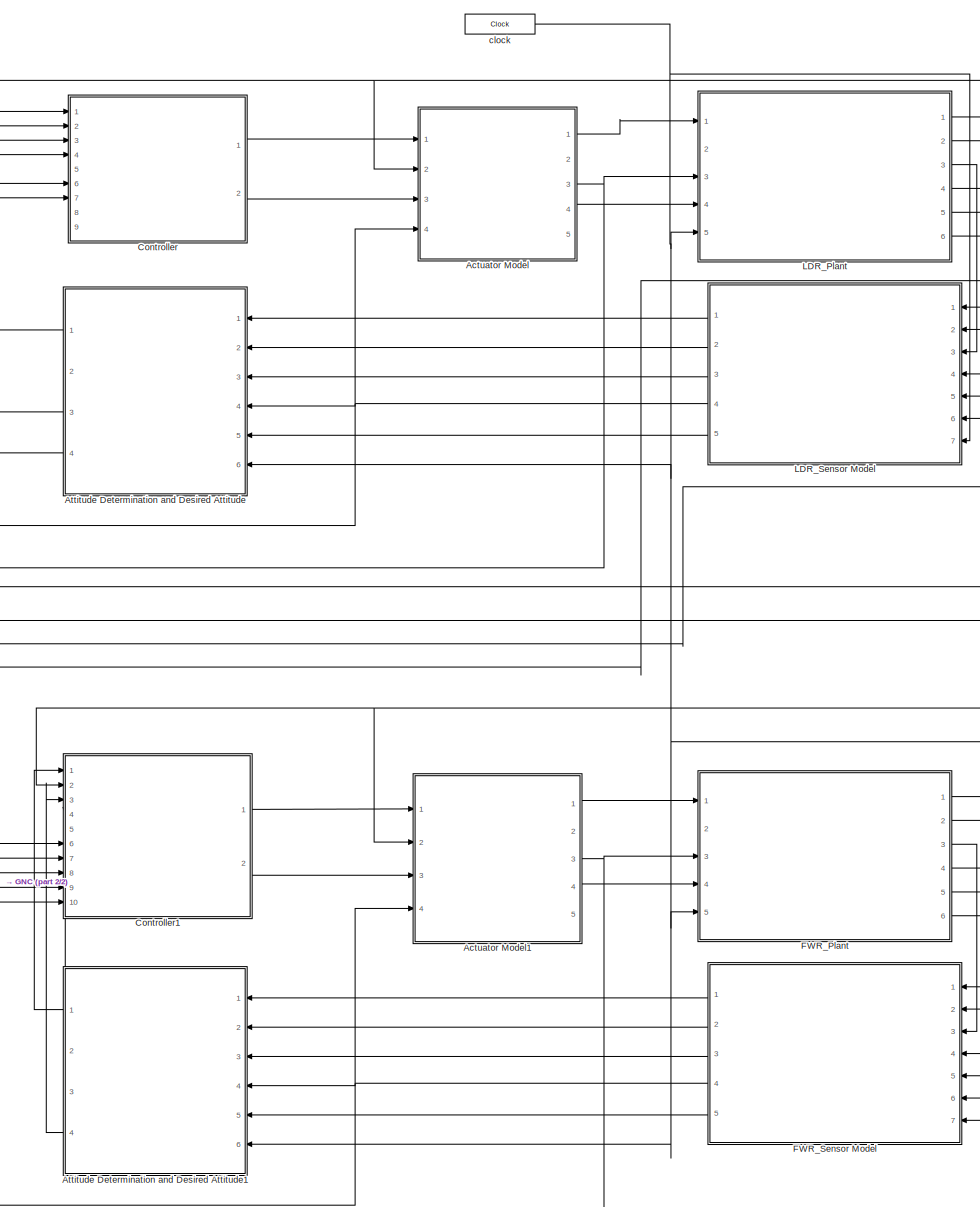
[diagram: root canvas - part 1/2, right side, full height]
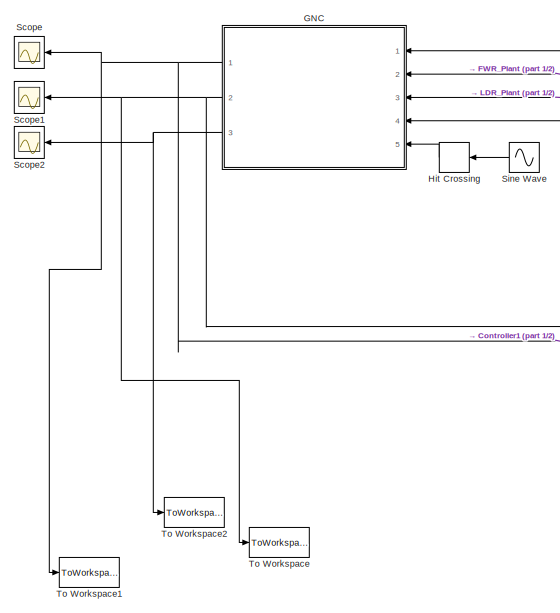
[diagram: root canvas - part 2/2, bottom left region]
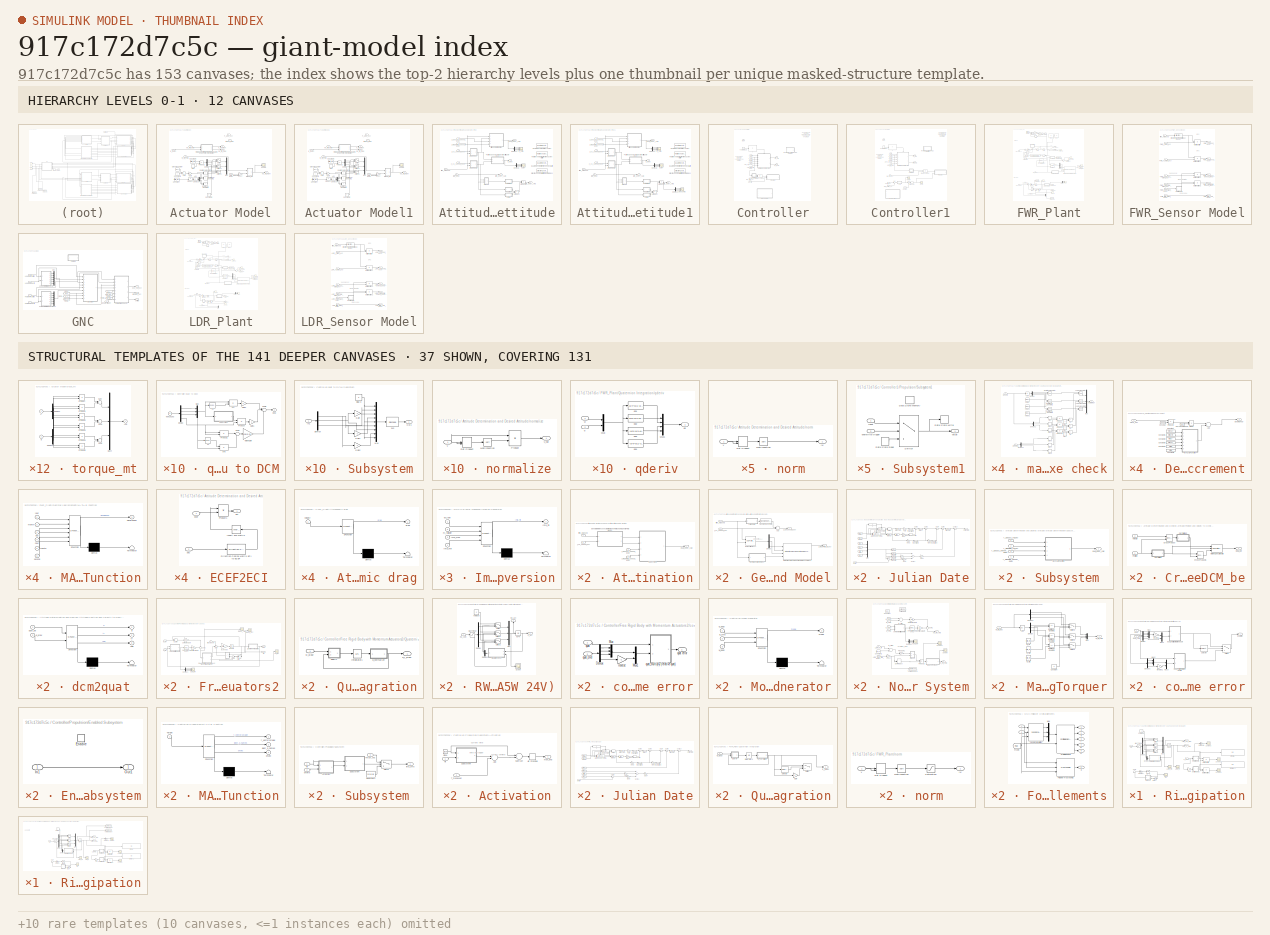
[diagram: thumbnail index - top-2 hierarchy levels (12 canvases) + 37 structural-template representatives of the remaining 141 canvases]
MODEL slx_917c172d7c5c
KIND model
CONFIG AbsTol = auto
CONFIG EnableMultiTasking = on
CONFIG FixedStep = .2
CONFIG MaxStep = auto
CONFIG MinStep = auto
CONFIG RelTol = 1e-3
CONFIG SampleTimeConstraint = Unconstrained
CONFIG Solver = FixedStepAuto
CONFIG SolverName = FixedStepAuto
CONFIG StartTime = 0.0
CONFIG StopTime = 30000
WORKSPACE source: external: MATLAB File  (data not in archive)
BLOCK [SubSystem] Actuator Model
  Commented = on
  Ports = [4, 5]
  RequestExecContextInheritance = off
  Variant = off
BLOCK [Abs] Actuator Model/Abs
BLOCK [Sum] Actuator Model/Add
  InputSameDT = off
  OutDataTypeStr = Inherit: Inherit via internal rule
  Ports = [2, 1]
  SaturateOnIntegerOverflow = off
BLOCK [Constant] Actuator Model/Constant
  Value = init.m_mt
BLOCK [Constant] Actuator Model/Constant1
  Value = init.m_mt
BLOCK [Constant] Actuator Model/Constant2
  Value = 0
BLOCK [Constant] Actuator Model/Constant3
BLOCK [Demux] Actuator Model/Demux
  DisplayOption = bar
  Outputs = 3
  Ports = [1, 3]
BLOCK [Demux] Actuator Model/Demux1
  DisplayOption = bar
  Outputs = 3
  Ports = [1, 3]
BLOCK [Outport] Actuator Model/F_app_eci
  IconDisplay = Port number
BLOCK [Gain] Actuator Model/Gain
  Gain = .5
  OutDataTypeStr = Inherit: Inherit via internal rule
  ParamDataTypeStr = Inherit: Inherit via internal rule
  SaturateOnIntegerOverflow = off
BLOCK [Inport] Actuator Model/LDR_magField_body
  IconDisplay = Port number
  Port = 4
BLOCK [Mux] Actuator Model/Mux
  DisplayOption = bar
  Inputs = 3
  Ports = [3, 1]
BLOCK [Product] Actuator Model/Product
  InputSameDT = off
  Inputs = */
  OutDataTypeStr = Inherit: Inherit via internal rule
  Ports = [2, 1]
  RndMeth = Floor
  SaturateOnIntegerOverflow = off
BLOCK [Product] Actuator Model/Product1
  InputSameDT = off
  OutDataTypeStr = Inherit: Inherit via internal rule
  Ports = [2, 1]
  RndMeth = Floor
  SaturateOnIntegerOverflow = off
BLOCK [RelationalOperator] Actuator Model/Relational Operator
  InputSameDT = off
  Operator = <
  OutDataTypeStr = boolean
  Ports = [2, 1]
  RndMeth = Simplest
BLOCK [RelationalOperator] Actuator Model/Relational Operator1
  InputSameDT = off
  Operator = <
  OutDataTypeStr = boolean
  Ports = [2, 1]
  RndMeth = Simplest
BLOCK [RelationalOperator] Actuator Model/Relational Operator2
  InputSameDT = off
  Operator = <
  OutDataTypeStr = boolean
  Ports = [2, 1]
  RndMeth = Simplest
BLOCK [SubSystem] Actuator Model/Rigid Body with Momentum Actuators and energy dissipation
  Ports = [2, 2]
  RequestExecContextInheritance = off
  Variant = off
BLOCK [SubSystem] Actuator Model/Rigid Body with Momentum Actuators and energy dissipation/Cross1
  Ports = [2, 1]
  RequestExecContextInheritance = off
  Variant = off
BLOCK [Inport] Actuator Model/Rigid Body with Momentum Actuators and energy dissipation/Cross1/A
  IconDisplay = Port number
  PortDimensions = 3
BLOCK [Outport] Actuator Model/Rigid Body with Momentum Actuators and energy dissipation/Cross1/AxB
  IconDisplay = Port number
  InitialOutput = 0
BLOCK [Inport] Actuator Model/Rigid Body with Momentum Actuators and energy dissipation/Cross1/B
  IconDisplay = Port number
  Port = 2
  PortDimensions = 3
BLOCK [Mux] Actuator Model/Rigid Body with Momentum Actuators and energy dissipation/Cross1/Mux4
  Inputs = 3
  Ports = [3, 1]
BLOCK [Product] Actuator Model/Rigid Body with Momentum Actuators and energy dissipation/Cross1/Product
  Ports = [2, 1]
  RndMeth = Floor
BLOCK [Product] Actuator Model/Rigid Body with Momentum Actuators and energy dissipation/Cross1/Product1
  Ports = [2, 1]
  RndMeth = Floor
BLOCK [Product] Actuator Model/Rigid Body with Momentum Actuators and energy dissipation/Cross1/Product2
  Ports = [2, 1]
  RndMeth = Floor
BLOCK [Product] Actuator Model/Rigid Body with Momentum Actuators and energy dissipation/Cross1/Product3
  Ports = [2, 1]
  RndMeth = Floor
BLOCK [Product] Actuator Model/Rigid Body with Momentum Actuators and energy dissipation/Cross1/Product4
  Ports = [2, 1]
  RndMeth = Floor
BLOCK [Product] Actuator Model/Rigid Body with Momentum Actuators and energy dissipation/Cross1/Product5
  Ports = [2, 1]
  RndMeth = Floor
BLOCK [Sum] Actuator Model/Rigid Body with Momentum Actuators and energy dissipation/Cross1/Sum
  Inputs = +-
  Ports = [2, 1]
BLOCK [Sum] Actuator Model/Rigid Body with Momentum Actuators and energy dissipation/Cross1/Sum1
  Inputs = +-
  Ports = [2, 1]
BLOCK [Sum] Actuator Model/Rigid Body with Momentum Actuators and energy dissipation/Cross1/Sum2
  Inputs = +-
  Ports = [2, 1]
BLOCK [Demux] Actuator Model/Rigid Body with Momentum Actuators and energy dissipation/Cross1/demux2
  Outputs = 3
  Ports = [1, 3]
BLOCK [Demux] Actuator Model/Rigid Body with Momentum Actuators and energy dissipation/Cross1/demux3
  Outputs = 3
  Ports = [1, 3]
BLOCK [Demux] Actuator Model/Rigid Body with Momentum Actuators and energy dissipation/Demux
  Outputs = 3
  Ports = [1, 3]
BLOCK [Demux] Actuator Model/Rigid Body with Momentum Actuators and energy dissipation/Demux1
  Outputs = 3
  Ports = [1, 3]
BLOCK [Display] Actuator Model/Rigid Body with Momentum Actuators and energy dissipation/Display
  Decimation = 1
  Ports = [1]
BLOCK [Display] Actuator Model/Rigid Body with Momentum Actuators and energy dissipation/Display1
  Decimation = 1
  Ports = [1]
BLOCK [Gain] Actuator Model/Rigid Body with Momentum Actuators and energy dissipation/Gain
  Gain = -1
  OutDataTypeStr = Inherit: Inherit via internal rule
  ParamDataTypeStr = Inherit: Inherit via internal rule
  SaturateOnIntegerOverflow = off
BLOCK [Scope] Actuator Model/Rigid Body with Momentum Actuators and energy dissipation/LDR_h
  NumInputPorts = 1
  Ports = [1]
  ScopeSpecificationString = Simulink.scopes.TimeScopeBlockCfg('CurrentConfiguration', extmgr.ConfigurationSet(extmgr.Configuration('Core','General UI',true),extmgr.Configuration('Core','Source UI',true),extmgr.Configuration('Sources','WiredSimulink',true,'DataLoggingVariableName','ScopeData3','DataLoggingSaveFormat','StructureWithTime','DataLoggingDecimation','1','DataLoggingDecimateData',true),extmgr.Configuration('Visuals'...<+1791ch>
BLOCK [Outport] Actuator Model/Rigid Body with Momentum Actuators and energy dissipation/LDR_h_RWA
  IconDisplay = Port number
BLOCK [Scope] Actuator Model/Rigid Body with Momentum Actuators and energy dissipation/LDR_hb
  NumInputPorts = 1
  Ports = [1]
  ScopeSpecificationString = Simulink.scopes.TimeScopeBlockCfg('CurrentConfiguration', extmgr.ConfigurationSet(extmgr.Configuration('Core','General UI',true),extmgr.Configuration('Core','Source UI',true),extmgr.Configuration('Sources','WiredSimulink',true,'DataLoggingVariableName','ScopeData2','DataLoggingSaveFormat','StructureWithTime','DataLoggingDecimation','1','DataLoggingDecimateData',true),extmgr.Configuration('Visuals'...<+1807ch>
BLOCK [Outport] Actuator Model/Rigid Body with Momentum Actuators and energy dissipation/LDR_hb_RWA
  IconDisplay = Port number
  Port = 2
BLOCK [Product] Actuator Model/Rigid Body with Momentum Actuators and energy dissipation/Matrix Multiply
  InputSameDT = off
  Multiplication = Matrix(*)
  OutDataTypeStr = Inherit: Inherit via internal rule
  Ports = [2, 1]
  RndMeth = Floor
  SaturateOnIntegerOverflow = off
BLOCK [Product] Actuator Model/Rigid Body with Momentum Actuators and energy dissipation/Matrix Multiply1
  InputSameDT = off
  Multiplication = Matrix(*)
  OutDataTypeStr = Inherit: Inherit via internal rule
  Ports = [2, 1]
  RndMeth = Floor
  SaturateOnIntegerOverflow = off
BLOCK [Saturate] Actuator Model/Rigid Body with Momentum Actuators and energy dissipation/Max Torque
  InputPortMap = u0
  LowerLimit = -init.hdmax
  Ports = [1, 1]
  UpperLimit = init.hdmax
BLOCK [Mux] Actuator Model/Rigid Body with Momentum Actuators and energy dissipation/Mux
  DisplayOption = bar
  Inputs = 3
  Ports = [3, 1]
BLOCK [Gain] Actuator Model/Rigid Body with Momentum Actuators and energy dissipation/RWA I
  Gain = init.RWA_I
  Multiplication = Matrix(K*u)
  OutDataTypeStr = Inherit: Inherit via internal rule
  ParamDataTypeStr = Inherit: Inherit via internal rule
  SaturateOnIntegerOverflow = off
BLOCK [Gain] Actuator Model/Rigid Body with Momentum Actuators and energy dissipation/RWA invI
  Gain = init.RWA.invI
  Multiplication = Matrix(K*u)
  OutDataTypeStr = Inherit: Inherit via internal rule
  ParamDataTypeStr = Inherit: Inherit via internal rule
  SaturateOnIntegerOverflow = off
BLOCK [Gain] Actuator Model/Rigid Body with Momentum Actuators and energy dissipation/RWA invI1
  Gain = init.RWA.invI
  Multiplication = Matrix(K*u)
  OutDataTypeStr = Inherit: Inherit via internal rule
  ParamDataTypeStr = Inherit: Inherit via internal rule
  SaturateOnIntegerOverflow = off
BLOCK [Scope] Actuator Model/Rigid Body with Momentum Actuators and energy dissipation/Scope1
  NumInputPorts = 1
  Ports = [1]
  ScopeSpecificationString = Simulink.scopes.TimeScopeBlockCfg('CurrentConfiguration', extmgr.ConfigurationSet(extmgr.Configuration('Core','General UI',true),extmgr.Configuration('Core','Source UI',true),extmgr.Configuration('Sources','WiredSimulink',true,'DataLoggingVariableName','ScopeData2','DataLoggingSaveFormat','StructureWithTime','DataLoggingDecimation','1','DataLoggingDecimateData',true),extmgr.Configuration('Visuals'...<+1891ch>
BLOCK [Scope] Actuator Model/Rigid Body with Momentum Actuators and energy dissipation/Scope2
  NumInputPorts = 1
  Ports = [1]
  ScopeSpecificationString = Simulink.scopes.TimeScopeBlockCfg('CurrentConfiguration', extmgr.ConfigurationSet(extmgr.Configuration('Core','General UI',true),extmgr.Configuration('Core','Source UI',true),extmgr.Configuration('Sources','WiredSimulink',true,'DataLoggingVariableName','ScopeData1','DataLoggingSaveFormat','StructureWithTime','DataLoggingDecimation','1','DataLoggingDecimateData',true),extmgr.Configuration('Visuals'...<+1888ch>
BLOCK [Scope] Actuator Model/Rigid Body with Momentum Actuators and energy dissipation/Scope3
  NumInputPorts = 1
  Ports = [1]
  ScopeSpecificationString = Simulink.scopes.TimeScopeBlockCfg('CurrentConfiguration', extmgr.ConfigurationSet(extmgr.Configuration('Core','General UI',true),extmgr.Configuration('Core','Source UI',true),extmgr.Configuration('Sources','WiredSimulink',true,'DataLoggingVariableName','ScopeData4','DataLoggingSaveFormat','StructureWithTime','DataLoggingDecimation','1','DataLoggingDecimateData',true),extmgr.Configuration('Visuals'...<+1896ch>
BLOCK [Sum] Actuator Model/Rigid Body with Momentum Actuators and energy dissipation/Sum
  IconShape = round
  InputSameDT = off
  Inputs = +|-
  OutDataTypeStr = Inherit: Inherit via internal rule
  Ports = [2, 1]
  SaturateOnIntegerOverflow = off
BLOCK [Switch] Actuator Model/Rigid Body with Momentum Actuators and energy dissipation/Switch
  Threshold = 0.5
BLOCK [Switch] Actuator Model/Rigid Body with Momentum Actuators and energy dissipation/Switch1
  Threshold = 0.5
BLOCK [Switch] Actuator Model/Rigid Body with Momentum Actuators and energy dissipation/Switch2
  Threshold = 0.5
BLOCK [Inport] Actuator Model/Rigid Body with Momentum Actuators and energy dissipation/hb
  IconDisplay = Port number
BLOCK [Integrator] Actuator Model/Rigid Body with Momentum Actuators and energy dissipation/hb -> h
  InitialCondition = init.LDR.h
  Ports = [1, 1]
BLOCK [SubSystem] Actuator Model/Rigid Body with Momentum Actuators and energy dissipation/max rate check
  Ports = [2, 1]
  RequestExecContextInheritance = off
  Variant = off
BLOCK [Constant] Actuator Model/Rigid Body with Momentum Actuators and energy dissipation/max rate check/0 to 1
  Value = 0
  VectorParams1D = off
BLOCK [Constant] Actuator Model/Rigid Body with Momentum Actuators and energy dissipation/max rate check/0 to 1 
  Value = 0
  VectorParams1D = off
BLOCK [Constant] Actuator Model/Rigid Body with Momentum Actuators and energy dissipation/max rate check/0 to 1  
  Value = 0
  VectorParams1D = off
BLOCK [Abs] Actuator Model/Rigid Body with Momentum Actuators and energy dissipation/max rate check/Abs
BLOCK [Demux] Actuator Model/Rigid Body with Momentum Actuators and energy dissipation/max rate check/Demux
  Outputs = 3
  Ports = [1, 3]
BLOCK [Demux] Actuator Model/Rigid Body with Momentum Actuators and energy dissipation/max rate check/Demux1
  Outputs = 3
  Ports = [1, 3]
BLOCK [Demux] Actuator Model/Rigid Body with Momentum Actuators and energy dissipation/max rate check/Demux2
  Outputs = 3
  Ports = [1, 3]
BLOCK [Logic] Actuator Model/Rigid Body with Momentum Actuators and energy dissipation/max rate check/Logical Operator
  Ports = [2, 1]
BLOCK [Logic] Actuator Model/Rigid Body with Momentum Actuators and energy dissipation/max rate check/Logical Operator1
  Ports = [2, 1]
BLOCK [Logic] Actuator Model/Rigid Body with Momentum Actuators and energy dissipation/max rate check/Logical Operator2
  Ports = [2, 1]
BLOCK [Mux] Actuator Model/Rigid Body with Momentum Actuators and energy dissipation/max rate check/Mux
  DisplayOption = bar
  Inputs = 3
  Ports = [3, 1]
BLOCK [Product] Actuator Model/Rigid Body with Momentum Actuators and energy dissipation/max rate check/Product
  Ports = [2, 1]
  RndMeth = Floor
BLOCK [Product] Actuator Model/Rigid Body with Momentum Actuators and energy dissipation/max rate check/Product1
  Ports = [2, 1]
  RndMeth = Floor
BLOCK [Product] Actuator Model/Rigid Body with Momentum Actuators and energy dissipation/max rate check/Product2
  Ports = [2, 1]
  RndMeth = Floor
BLOCK [RelationalOperator] Actuator Model/Rigid Body with Momentum Actuators and energy dissipation/max rate check/Relational Operator
  Ports = [2, 1]
BLOCK [RelationalOperator] Actuator Model/Rigid Body with Momentum Actuators and energy dissipation/max rate check/Relational Operator1
  Ports = [2, 1]
BLOCK [RelationalOperator] Actuator Model/Rigid Body with Momentum Actuators and energy dissipation/max rate check/Relational Operator2
  Ports = [2, 1]
BLOCK [Signum] Actuator Model/Rigid Body with Momentum Actuators and energy dissipation/max rate check/Sign
BLOCK [Signum] Actuator Model/Rigid Body with Momentum Actuators and energy dissipation/max rate check/Sign1
BLOCK [Signum] Actuator Model/Rigid Body with Momentum Actuators and energy dissipation/max rate check/Sign2
BLOCK [Signum] Actuator Model/Rigid Body with Momentum Actuators and energy dissipation/max rate check/Sign3
BLOCK [Signum] Actuator Model/Rigid Body with Momentum Actuators and energy dissipation/max rate check/Sign4
BLOCK [Signum] Actuator Model/Rigid Body with Momentum Actuators and energy dissipation/max rate check/Sign5
BLOCK [RelationalOperator] Actuator Model/Rigid Body with Momentum Actuators and energy dissipation/max rate check/gt
  Operator = >
  Ports = [2, 1]
BLOCK [RelationalOperator] Actuator Model/Rigid Body with Momentum Actuators and energy dissipation/max rate check/gt 
  Operator = >
  Ports = [2, 1]
BLOCK [RelationalOperator] Actuator Model/Rigid Body with Momentum Actuators and energy dissipation/max rate check/gt  
  Operator = >
  Ports = [2, 1]
BLOCK [Constant] Actuator Model/Rigid Body with Momentum Actuators and energy dissipation/max rate check/hmax
  Value = init.hmax
  VectorParams1D = off
BLOCK [Constant] Actuator Model/Rigid Body with Momentum Actuators and energy dissipation/max rate check/hmax1
  Value = init.hmax
  VectorParams1D = off
BLOCK [Constant] Actuator Model/Rigid Body with Momentum Actuators and energy dissipation/max rate check/hmax2
  Value = init.hmax
  VectorParams1D = off
BLOCK [Outport] Actuator Model/Rigid Body with Momentum Actuators and energy dissipation/max rate check/saturated?
  IconDisplay = Port number
BLOCK [Inport] Actuator Model/Rigid Body with Momentum Actuators and energy dissipation/max rate check/wheel h
  IconDisplay = Port number
BLOCK [Inport] Actuator Model/Rigid Body with Momentum Actuators and energy dissipation/max rate check/wheel hb
  IconDisplay = Port number
  Port = 2
BLOCK [Constant] Actuator Model/Rigid Body with Momentum Actuators and energy dissipation/no torque
  Value = 0
BLOCK [Inport] Actuator Model/Rigid Body with Momentum Actuators and energy dissipation/q_body
  IconDisplay = Port number
  Port = 2
BLOCK [SubSystem] Actuator Model/Rigid Body with Momentum Actuators and energy dissipation/quat to DCM
  Ports = [1, 1]
  RequestExecContextInheritance = off
  ShowPortLabels = none
  Variant = off
BLOCK [Outport] Actuator Model/Rigid Body with Momentum Actuators and energy dissipation/quat to DCM/DCM
  IconDisplay = Port number
  InitialOutput = 0
BLOCK [Demux] Actuator Model/Rigid Body with Momentum Actuators and energy dissipation/quat to DCM/Demux
  Ports = [1, 4]
BLOCK [Gain] Actuator Model/Rigid Body with Momentum Actuators and energy dissipation/quat to DCM/Gain1
  Gain = 2
BLOCK [Gain] Actuator Model/Rigid Body with Momentum Actuators and energy dissipation/quat to DCM/Gain2
  Gain = 2
BLOCK [Gain] Actuator Model/Rigid Body with Momentum Actuators and energy dissipation/quat to DCM/Matrix Gain
  Gain = eye(3,3)
BLOCK [Mux] Actuator Model/Rigid Body with Momentum Actuators and energy dissipation/quat to DCM/Mux
  DisplayOption = bar
  Inputs = 3
  Ports = [3, 1]
BLOCK [Product] Actuator Model/Rigid Body with Momentum Actuators and energy dissipation/quat to DCM/Product
  Ports = [2, 1]
  RndMeth = Floor
BLOCK [Product] Actuator Model/Rigid Body with Momentum Actuators and energy dissipation/quat to DCM/Product1
  Ports = [2, 1]
  RndMeth = Floor
BLOCK [SubSystem] Actuator Model/Rigid Body with Momentum Actuators and energy dissipation/quat to DCM/Subsystem
  Ports = [1, 1]
  RequestExecContextInheritance = off
  Variant = off
BLOCK [Reshape] Actuator Model/Rigid Body with Momentum Actuators and energy dissipation/quat to DCM/Subsystem/3x3
  OutputDimensionality = Customize
  OutputDimensions = [3,3]
  Ports = [1, 1]
BLOCK [Demux] Actuator Model/Rigid Body with Momentum Actuators and energy dissipation/quat to DCM/Subsystem/Demux
  Outputs = 3
  Ports = [1, 3]
BLOCK [Gain] Actuator Model/Rigid Body with Momentum Actuators and energy dissipation/quat to DCM/Subsystem/Gain
  Gain = -1
BLOCK [Gain] Actuator Model/Rigid Body with Momentum Actuators and energy dissipation/quat to DCM/Subsystem/Gain1
  Gain = -1
BLOCK [Gain] Actuator Model/Rigid Body with Momentum Actuators and energy dissipation/quat to DCM/Subsystem/Gain2
  Gain = -1
BLOCK [Inport] Actuator Model/Rigid Body with Momentum Actuators and energy dissipation/quat to DCM/Subsystem/In1
  IconDisplay = Port number
BLOCK [Mux] Actuator Model/Rigid Body with Momentum Actuators and energy dissipation/quat to DCM/Subsystem/Mux
  DisplayOption = bar
  Inputs = 9
  Ports = [9, 1]
BLOCK [Outport] Actuator Model/Rigid Body with Momentum Actuators and energy dissipation/quat to DCM/Subsystem/Out1
  IconDisplay = Port number
BLOCK [Constant] Actuator Model/Rigid Body with Momentum Actuators and energy dissipation/quat to DCM/Subsystem/diag 0 
  Value = 0
BLOCK [Sum] Actuator Model/Rigid Body with Momentum Actuators and energy dissipation/quat to DCM/Sum1
  IconShape = round
  Inputs = |+-
  Ports = [2, 1]
BLOCK [Sum] Actuator Model/Rigid Body with Momentum Actuators and energy dissipation/quat to DCM/Sum8
  IconShape = round
  Inputs = |+-+
  Ports = [3, 1]
BLOCK [Math] Actuator Model/Rigid Body with Momentum Actuators and energy dissipation/quat to DCM/T1
  Operator = transpose
  Ports = [1, 1]
BLOCK [Math] Actuator Model/Rigid Body with Momentum Actuators and energy dissipation/quat to DCM/T2
  Operator = transpose
  Ports = [1, 1]
BLOCK [Inport] Actuator Model/Rigid Body with Momentum Actuators and energy dissipation/quat to DCM/e0 e1 e2 e3
  IconDisplay = Port number
BLOCK [Product] Actuator Model/Rigid Body with Momentum Actuators and energy dissipation/quat to DCM/qTq
  Multiplication = Matrix(*)
  Ports = [2, 1]
  RndMeth = Floor
BLOCK [Product] Actuator Model/Rigid Body with Momentum Actuators and energy dissipation/quat to DCM/qqT
  Multiplication = Matrix(*)
  Ports = [2, 1]
  RndMeth = Floor
BLOCK [SubSystem] Actuator Model/Rigid Body with Momentum Actuators and energy dissipation/quat to DCM1
  Ports = [1, 1]
  RequestExecContextInheritance = off
  ShowPortLabels = none
  Variant = off
BLOCK [Outport] Actuator Model/Rigid Body with Momentum Actuators and energy dissipation/quat to DCM1/DCM
  IconDisplay = Port number
  InitialOutput = 0
BLOCK [Demux] Actuator Model/Rigid Body with Momentum Actuators and energy dissipation/quat to DCM1/Demux
  Ports = [1, 4]
BLOCK [Gain] Actuator Model/Rigid Body with Momentum Actuators and energy dissipation/quat to DCM1/Gain1
  Gain = 2
BLOCK [Gain] Actuator Model/Rigid Body with Momentum Actuators and energy dissipation/quat to DCM1/Gain2
  Gain = 2
BLOCK [Gain] Actuator Model/Rigid Body with Momentum Actuators and energy dissipation/quat to DCM1/Matrix Gain
  Gain = eye(3,3)
BLOCK [Mux] Actuator Model/Rigid Body with Momentum Actuators and energy dissipation/quat to DCM1/Mux
  DisplayOption = bar
  Inputs = 3
  Ports = [3, 1]
BLOCK [Product] Actuator Model/Rigid Body with Momentum Actuators and energy dissipation/quat to DCM1/Product
  Ports = [2, 1]
  RndMeth = Floor
BLOCK [Product] Actuator Model/Rigid Body with Momentum Actuators and energy dissipation/quat to DCM1/Product1
  Ports = [2, 1]
  RndMeth = Floor
BLOCK [SubSystem] Actuator Model/Rigid Body with Momentum Actuators and energy dissipation/quat to DCM1/Subsystem
  Ports = [1, 1]
  RequestExecContextInheritance = off
  Variant = off
BLOCK [Reshape] Actuator Model/Rigid Body with Momentum Actuators and energy dissipation/quat to DCM1/Subsystem/3x3
  OutputDimensionality = Customize
  OutputDimensions = [3,3]
  Ports = [1, 1]
BLOCK [Demux] Actuator Model/Rigid Body with Momentum Actuators and energy dissipation/quat to DCM1/Subsystem/Demux
  Outputs = 3
  Ports = [1, 3]
BLOCK [Gain] Actuator Model/Rigid Body with Momentum Actuators and energy dissipation/quat to DCM1/Subsystem/Gain
  Gain = -1
BLOCK [Gain] Actuator Model/Rigid Body with Momentum Actuators and energy dissipation/quat to DCM1/Subsystem/Gain1
  Gain = -1
BLOCK [Gain] Actuator Model/Rigid Body with Momentum Actuators and energy dissipation/quat to DCM1/Subsystem/Gain2
  Gain = -1
BLOCK [Inport] Actuator Model/Rigid Body with Momentum Actuators and energy dissipation/quat to DCM1/Subsystem/In1
  IconDisplay = Port number
BLOCK [Mux] Actuator Model/Rigid Body with Momentum Actuators and energy dissipation/quat to DCM1/Subsystem/Mux
  DisplayOption = bar
  Inputs = 9
  Ports = [9, 1]
BLOCK [Outport] Actuator Model/Rigid Body with Momentum Actuators and energy dissipation/quat to DCM1/Subsystem/Out1
  IconDisplay = Port number
BLOCK [Constant] Actuator Model/Rigid Body with Momentum Actuators and energy dissipation/quat to DCM1/Subsystem/diag 0 
  Value = 0
BLOCK [Sum] Actuator Model/Rigid Body with Momentum Actuators and energy dissipation/quat to DCM1/Sum1
  IconShape = round
  Inputs = |+-
  Ports = [2, 1]
BLOCK [Sum] Actuator Model/Rigid Body with Momentum Actuators and energy dissipation/quat to DCM1/Sum8
  IconShape = round
  Inputs = |+-+
  Ports = [3, 1]
BLOCK [Math] Actuator Model/Rigid Body with Momentum Actuators and energy dissipation/quat to DCM1/T1
  Operator = transpose
  Ports = [1, 1]
BLOCK [Math] Actuator Model/Rigid Body with Momentum Actuators and energy dissipation/quat to DCM1/T2
  Operator = transpose
  Ports = [1, 1]
BLOCK [Inport] Actuator Model/Rigid Body with Momentum Actuators and energy dissipation/quat to DCM1/e0 e1 e2 e3
  IconDisplay = Port number
BLOCK [Product] Actuator Model/Rigid Body with Momentum Actuators and energy dissipation/quat to DCM1/qTq
  Multiplication = Matrix(*)
  Ports = [2, 1]
  RndMeth = Floor
BLOCK [Product] Actuator Model/Rigid Body with Momentum Actuators and energy dissipation/quat to DCM1/qqT
  Multiplication = Matrix(*)
  Ports = [2, 1]
  RndMeth = Floor
BLOCK [Scope] Actuator Model/Rigid Body with Momentum Actuators and energy dissipation/rwa
  NumInputPorts = 1
  Ports = [1]
  ScopeSpecificationString = Simulink.scopes.TimeScopeBlockCfg('CurrentConfiguration', extmgr.ConfigurationSet(extmgr.Configuration('Core','General UI',true),extmgr.Configuration('Core','Source UI',true),extmgr.Configuration('Sources','WiredSimulink',true,'DataLoggingVariableName','ScopeData3','DataLoggingSaveFormat','StructureWithTime','DataLoggingDecimation','1','DataLoggingDecimateData',true),extmgr.Configuration('Visuals'...<+1896ch>
BLOCK [Integrator] Actuator Model/Rigid Body with Momentum Actuators and energy dissipation/wb -> w
  InitialCondition = [0;0;0]
  Ports = [1, 1]
BLOCK [Scope] Actuator Model/Scope
  NumInputPorts = 1
  Ports = [1]
  ScopeSpecificationString = Simulink.scopes.TimeScopeBlockCfg('CurrentConfiguration', extmgr.ConfigurationSet(extmgr.Configuration('Core','General UI',true),extmgr.Configuration('Core','Source UI',true),extmgr.Configuration('Sources','WiredSimulink',true,'DataLoggingVariableName','ScopeData1'),extmgr.Configuration('Visuals','Time Domain',true,'SerializedDisplays',{struct('MinYLimReal','-1.00000','MaxYLimReal','1.00000','YLab...<+1509ch>
BLOCK [Signum] Actuator Model/Sign
BLOCK [SignalGenerator] Actuator Model/Signal Generator
  Frequency = .5
  Ports = [0, 1]
  WaveForm = sawtooth
BLOCK [Switch] Actuator Model/Switch
  Threshold = 0.5
BLOCK [Switch] Actuator Model/Switch1
  Threshold = 0.5
BLOCK [Switch] Actuator Model/Switch2
  Threshold = 0.5
BLOCK [Outport] Actuator Model/h_rw_plant
  IconDisplay = Port number
  Port = 3
BLOCK [Outport] Actuator Model/hb_mt_plant
  IconDisplay = Port number
  Port = 5
BLOCK [Outport] Actuator Model/hb_rw_app
  IconDisplay = Port number
  Port = 4
BLOCK [Inport] Actuator Model/hb_rw_cmd
  IconDisplay = Port number
BLOCK [Inport] Actuator Model/m_mt_cmd
  IconDisplay = Port number
  Port = 3
BLOCK [Gain] Actuator Model/nT->T
  Gain = 1e-9
  OutDataTypeStr = Inherit: Inherit via internal rule
  ParamDataTypeStr = Inherit: Inherit via internal rule
  SaturateOnIntegerOverflow = off
BLOCK [Inport] Actuator Model/q_body
  IconDisplay = Port number
  Port = 2
BLOCK [SubSystem] Actuator Model/torque_mt
  Ports = [2, 1]
  RequestExecContextInheritance = off
  Variant = off
BLOCK [Inport] Actuator Model/torque_mt/A
  IconDisplay = Port number
BLOCK [Outport] Actuator Model/torque_mt/AxB
  IconDisplay = Port number
  InitialOutput = 0
BLOCK [Inport] Actuator Model/torque_mt/B
  IconDisplay = Port number
  Port = 2
BLOCK [Mux] Actuator Model/torque_mt/Mux4
  Inputs = 3
  Ports = [3, 1]
BLOCK [Product] Actuator Model/torque_mt/Product
  Ports = [2, 1]
  RndMeth = Floor
BLOCK [Product] Actuator Model/torque_mt/Product1
  Ports = [2, 1]
  RndMeth = Floor
BLOCK [Product] Actuator Model/torque_mt/Product2
  Ports = [2, 1]
  RndMeth = Floor
BLOCK [Product] Actuator Model/torque_mt/Product3
  Ports = [2, 1]
  RndMeth = Floor
BLOCK [Product] Actuator Model/torque_mt/Product4
  Ports = [2, 1]
  RndMeth = Floor
BLOCK [Product] Actuator Model/torque_mt/Product5
  Ports = [2, 1]
  RndMeth = Floor
BLOCK [Sum] Actuator Model/torque_mt/Sum
  Inputs = +-
  Ports = [2, 1]
BLOCK [Sum] Actuator Model/torque_mt/Sum1
  Inputs = +-
  Ports = [2, 1]
BLOCK [Sum] Actuator Model/torque_mt/Sum2
  Inputs = +-
  Ports = [2, 1]
BLOCK [Demux] Actuator Model/torque_mt/demux2
  Outputs = 3
  Ports = [1, 3]
BLOCK [Demux] Actuator Model/torque_mt/demux3
  Outputs = 3
  Ports = [1, 3]
BLOCK [Outport] Actuator Model/torque_prop
  IconDisplay = Port number
  Port = 2
BLOCK [SubSystem] Actuator Model1
  Ports = [4, 5]
  RequestExecContextInheritance = off
  Variant = off
BLOCK [Abs] Actuator Model1/Abs
BLOCK [Sum] Actuator Model1/Add
  InputSameDT = off
  OutDataTypeStr = Inherit: Inherit via internal rule
  Ports = [2, 1]
  SaturateOnIntegerOverflow = off
BLOCK [Constant] Actuator Model1/Constant
  Value = init.m_mt
BLOCK [Constant] Actuator Model1/Constant1
  Value = init.m_mt
BLOCK [Constant] Actuator Model1/Constant2
  Value = 0
BLOCK [Constant] Actuator Model1/Constant3
BLOCK [Demux] Actuator Model1/Demux
  DisplayOption = bar
  Outputs = 3
  Ports = [1, 3]
BLOCK [Demux] Actuator Model1/Demux1
  DisplayOption = bar
  Outputs = 3
  Ports = [1, 3]
BLOCK [Outport] Actuator Model1/F_app_eci
  IconDisplay = Port number
BLOCK [Gain] Actuator Model1/Gain
  Gain = .5
  OutDataTypeStr = Inherit: Inherit via internal rule
  ParamDataTypeStr = Inherit: Inherit via internal rule
  SaturateOnIntegerOverflow = off
BLOCK [Inport] Actuator Model1/LDR_magField_body
  IconDisplay = Port number
  Port = 4
BLOCK [Mux] Actuator Model1/Mux
  DisplayOption = bar
  Inputs = 3
  Ports = [3, 1]
BLOCK [Product] Actuator Model1/Product
  InputSameDT = off
  Inputs = */
  OutDataTypeStr = Inherit: Inherit via internal rule
  Ports = [2, 1]
  RndMeth = Floor
  SaturateOnIntegerOverflow = off
BLOCK [Product] Actuator Model1/Product1
  InputSameDT = off
  OutDataTypeStr = Inherit: Inherit via internal rule
  Ports = [2, 1]
  RndMeth = Floor
  SaturateOnIntegerOverflow = off
BLOCK [RelationalOperator] Actuator Model1/Relational Operator
  InputSameDT = off
  Operator = <
  OutDataTypeStr = boolean
  Ports = [2, 1]
  RndMeth = Simplest
BLOCK [RelationalOperator] Actuator Model1/Relational Operator1
  InputSameDT = off
  Operator = <
  OutDataTypeStr = boolean
  Ports = [2, 1]
  RndMeth = Simplest
BLOCK [RelationalOperator] Actuator Model1/Relational Operator2
  InputSameDT = off
  Operator = <
  OutDataTypeStr = boolean
  Ports = [2, 1]
  RndMeth = Simplest
BLOCK [SubSystem] Actuator Model1/Rigid Body with Momentum Actuators and energy dissipation
  Ports = [2, 2]
  RequestExecContextInheritance = off
  Variant = off
BLOCK [SubSystem] Actuator Model1/Rigid Body with Momentum Actuators and energy dissipation/Cross1
  Ports = [2, 1]
  RequestExecContextInheritance = off
  Variant = off
BLOCK [Inport] Actuator Model1/Rigid Body with Momentum Actuators and energy dissipation/Cross1/A
  IconDisplay = Port number
  PortDimensions = 3
BLOCK [Outport] Actuator Model1/Rigid Body with Momentum Actuators and energy dissipation/Cross1/AxB
  IconDisplay = Port number
  InitialOutput = 0
BLOCK [Inport] Actuator Model1/Rigid Body with Momentum Actuators and energy dissipation/Cross1/B
  IconDisplay = Port number
  Port = 2
  PortDimensions = 3
BLOCK [Mux] Actuator Model1/Rigid Body with Momentum Actuators and energy dissipation/Cross1/Mux4
  Inputs = 3
  Ports = [3, 1]
BLOCK [Product] Actuator Model1/Rigid Body with Momentum Actuators and energy dissipation/Cross1/Product
  Ports = [2, 1]
  RndMeth = Floor
BLOCK [Product] Actuator Model1/Rigid Body with Momentum Actuators and energy dissipation/Cross1/Product1
  Ports = [2, 1]
  RndMeth = Floor
BLOCK [Product] Actuator Model1/Rigid Body with Momentum Actuators and energy dissipation/Cross1/Product2
  Ports = [2, 1]
  RndMeth = Floor
BLOCK [Product] Actuator Model1/Rigid Body with Momentum Actuators and energy dissipation/Cross1/Product3
  Ports = [2, 1]
  RndMeth = Floor
BLOCK [Product] Actuator Model1/Rigid Body with Momentum Actuators and energy dissipation/Cross1/Product4
  Ports = [2, 1]
  RndMeth = Floor
BLOCK [Product] Actuator Model1/Rigid Body with Momentum Actuators and energy dissipation/Cross1/Product5
  Ports = [2, 1]
  RndMeth = Floor
BLOCK [Sum] Actuator Model1/Rigid Body with Momentum Actuators and energy dissipation/Cross1/Sum
  Inputs = +-
  Ports = [2, 1]
BLOCK [Sum] Actuator Model1/Rigid Body with Momentum Actuators and energy dissipation/Cross1/Sum1
  Inputs = +-
  Ports = [2, 1]
BLOCK [Sum] Actuator Model1/Rigid Body with Momentum Actuators and energy dissipation/Cross1/Sum2
  Inputs = +-
  Ports = [2, 1]
BLOCK [Demux] Actuator Model1/Rigid Body with Momentum Actuators and energy dissipation/Cross1/demux2
  Outputs = 3
  Ports = [1, 3]
BLOCK [Demux] Actuator Model1/Rigid Body with Momentum Actuators and energy dissipation/Cross1/demux3
  Outputs = 3
  Ports = [1, 3]
BLOCK [Demux] Actuator Model1/Rigid Body with Momentum Actuators and energy dissipation/Demux
  Outputs = 3
  Ports = [1, 3]
BLOCK [Demux] Actuator Model1/Rigid Body with Momentum Actuators and energy dissipation/Demux1
  Outputs = 3
  Ports = [1, 3]
BLOCK [Display] Actuator Model1/Rigid Body with Momentum Actuators and energy dissipation/Display
  Decimation = 1
  Ports = [1]
BLOCK [Display] Actuator Model1/Rigid Body with Momentum Actuators and energy dissipation/Display1
  Decimation = 1
  Ports = [1]
BLOCK [Outport] Actuator Model1/Rigid Body with Momentum Actuators and energy dissipation/FWR_h_RWA
  IconDisplay = Port number
BLOCK [Outport] Actuator Model1/Rigid Body with Momentum Actuators and energy dissipation/FWR_hb_RWA
  IconDisplay = Port number
  Port = 2
BLOCK [Gain] Actuator Model1/Rigid Body with Momentum Actuators and energy dissipation/Gain
  Gain = -1
  OutDataTypeStr = Inherit: Inherit via internal rule
  ParamDataTypeStr = Inherit: Inherit via internal rule
  SaturateOnIntegerOverflow = off
BLOCK [Scope] Actuator Model1/Rigid Body with Momentum Actuators and energy dissipation/LDR_h
  NumInputPorts = 1
  Ports = [1]
  ScopeSpecificationString = Simulink.scopes.TimeScopeBlockCfg('CurrentConfiguration', extmgr.ConfigurationSet(extmgr.Configuration('Core','General UI',true),extmgr.Configuration('Core','Source UI',true),extmgr.Configuration('Sources','WiredSimulink',true,'DataLoggingVariableName','ScopeData3','DataLoggingSaveFormat','StructureWithTime','DataLoggingDecimation','1','DataLoggingDecimateData',true),extmgr.Configuration('Visuals'...<+1817ch>
BLOCK [Scope] Actuator Model1/Rigid Body with Momentum Actuators and energy dissipation/LDR_hb
  NumInputPorts = 1
  Ports = [1]
  ScopeSpecificationString = Simulink.scopes.TimeScopeBlockCfg('CurrentConfiguration', extmgr.ConfigurationSet(extmgr.Configuration('Core','General UI',true),extmgr.Configuration('Core','Source UI',true),extmgr.Configuration('Sources','WiredSimulink',true,'DataLoggingVariableName','ScopeData2','DataLoggingSaveFormat','StructureWithTime','DataLoggingDecimation','1','DataLoggingDecimateData',true),extmgr.Configuration('Visuals'...<+1845ch>
BLOCK [Product] Actuator Model1/Rigid Body with Momentum Actuators and energy dissipation/Matrix Multiply
  InputSameDT = off
  Multiplication = Matrix(*)
  OutDataTypeStr = Inherit: Inherit via internal rule
  Ports = [2, 1]
  RndMeth = Floor
  SaturateOnIntegerOverflow = off
BLOCK [Product] Actuator Model1/Rigid Body with Momentum Actuators and energy dissipation/Matrix Multiply1
  InputSameDT = off
  Multiplication = Matrix(*)
  OutDataTypeStr = Inherit: Inherit via internal rule
  Ports = [2, 1]
  RndMeth = Floor
  SaturateOnIntegerOverflow = off
BLOCK [Saturate] Actuator Model1/Rigid Body with Momentum Actuators and energy dissipation/Max Torque
  InputPortMap = u0
  LowerLimit = -init.hdmax
  Ports = [1, 1]
  UpperLimit = init.hdmax
BLOCK [Mux] Actuator Model1/Rigid Body with Momentum Actuators and energy dissipation/Mux
  DisplayOption = bar
  Inputs = 3
  Ports = [3, 1]
BLOCK [Gain] Actuator Model1/Rigid Body with Momentum Actuators and energy dissipation/RWA I
  Gain = init.RWA_I
  Multiplication = Matrix(K*u)
  OutDataTypeStr = Inherit: Inherit via internal rule
  ParamDataTypeStr = Inherit: Inherit via internal rule
  SaturateOnIntegerOverflow = off
BLOCK [Gain] Actuator Model1/Rigid Body with Momentum Actuators and energy dissipation/RWA invI
  Gain = init.RWA.invI
  Multiplication = Matrix(K*u)
  OutDataTypeStr = Inherit: Inherit via internal rule
  ParamDataTypeStr = Inherit: Inherit via internal rule
  SaturateOnIntegerOverflow = off
BLOCK [Gain] Actuator Model1/Rigid Body with Momentum Actuators and energy dissipation/RWA invI1
  Gain = init.RWA.invI
  Multiplication = Matrix(K*u)
  OutDataTypeStr = Inherit: Inherit via internal rule
  ParamDataTypeStr = Inherit: Inherit via internal rule
  SaturateOnIntegerOverflow = off
BLOCK [Scope] Actuator Model1/Rigid Body with Momentum Actuators and energy dissipation/Scope1
  NumInputPorts = 1
  Ports = [1]
  ScopeSpecificationString = Simulink.scopes.TimeScopeBlockCfg('CurrentConfiguration', extmgr.ConfigurationSet(extmgr.Configuration('Core','General UI',true),extmgr.Configuration('Core','Source UI',true),extmgr.Configuration('Sources','WiredSimulink',true,'DataLoggingVariableName','ScopeData2','DataLoggingSaveFormat','StructureWithTime','DataLoggingDecimation','1','DataLoggingDecimateData',true),extmgr.Configuration('Visuals'...<+1891ch>
BLOCK [Scope] Actuator Model1/Rigid Body with Momentum Actuators and energy dissipation/Scope2
  NumInputPorts = 1
  Ports = [1]
  ScopeSpecificationString = Simulink.scopes.TimeScopeBlockCfg('CurrentConfiguration', extmgr.ConfigurationSet(extmgr.Configuration('Core','General UI',true),extmgr.Configuration('Core','Source UI',true),extmgr.Configuration('Sources','WiredSimulink',true,'DataLoggingVariableName','ScopeData1','DataLoggingSaveFormat','StructureWithTime','DataLoggingDecimation','1','DataLoggingDecimateData',true),extmgr.Configuration('Visuals'...<+1888ch>
BLOCK [Scope] Actuator Model1/Rigid Body with Momentum Actuators and energy dissipation/Scope3
  NumInputPorts = 1
  Ports = [1]
  ScopeSpecificationString = Simulink.scopes.TimeScopeBlockCfg('CurrentConfiguration', extmgr.ConfigurationSet(extmgr.Configuration('Core','General UI',true),extmgr.Configuration('Core','Source UI',true),extmgr.Configuration('Sources','WiredSimulink',true,'DataLoggingVariableName','ScopeData4','DataLoggingSaveFormat','StructureWithTime','DataLoggingDecimation','1','DataLoggingDecimateData',true),extmgr.Configuration('Visuals'...<+1896ch>
BLOCK [Sum] Actuator Model1/Rigid Body with Momentum Actuators and energy dissipation/Sum
  IconShape = round
  InputSameDT = off
  Inputs = +|-
  OutDataTypeStr = Inherit: Inherit via internal rule
  Ports = [2, 1]
  SaturateOnIntegerOverflow = off
BLOCK [Switch] Actuator Model1/Rigid Body with Momentum Actuators and energy dissipation/Switch
  Threshold = 0.5
BLOCK [Switch] Actuator Model1/Rigid Body with Momentum Actuators and energy dissipation/Switch1
  Threshold = 0.5
BLOCK [Switch] Actuator Model1/Rigid Body with Momentum Actuators and energy dissipation/Switch2
  Threshold = 0.5
BLOCK [ToWorkspace] Actuator Model1/Rigid Body with Momentum Actuators and energy dissipation/To Workspace
  FixptAsFi = on
  MaxDataPoints = inf
  Ports = [1]
  SampleTime = -1
  Save2DSignal = 3-D array (concatenate along third dimension)
  SaveFormat = Timeseries
  VariableName = h
BLOCK [ToWorkspace] Actuator Model1/Rigid Body with Momentum Actuators and energy dissipation/To Workspace1
  FixptAsFi = on
  MaxDataPoints = inf
  Ports = [1]
  SampleTime = -1
  Save2DSignal = 3-D array (concatenate along third dimension)
  SaveFormat = Timeseries
  VariableName = hb
BLOCK [Inport] Actuator Model1/Rigid Body with Momentum Actuators and energy dissipation/hb
  IconDisplay = Port number
BLOCK [Integrator] Actuator Model1/Rigid Body with Momentum Actuators and energy dissipation/hb -> h
  InitialCondition = init.FWR.h
  Ports = [1, 1]
BLOCK [SubSystem] Actuator Model1/Rigid Body with Momentum Actuators and energy dissipation/max rate check
  Ports = [2, 1]
  RequestExecContextInheritance = off
  Variant = off
BLOCK [Constant] Actuator Model1/Rigid Body with Momentum Actuators and energy dissipation/max rate check/0 to 1
  Value = 0
  VectorParams1D = off
BLOCK [Constant] Actuator Model1/Rigid Body with Momentum Actuators and energy dissipation/max rate check/0 to 1 
  Value = 0
  VectorParams1D = off
BLOCK [Constant] Actuator Model1/Rigid Body with Momentum Actuators and energy dissipation/max rate check/0 to 1  
  Value = 0
  VectorParams1D = off
BLOCK [Abs] Actuator Model1/Rigid Body with Momentum Actuators and energy dissipation/max rate check/Abs
BLOCK [Demux] Actuator Model1/Rigid Body with Momentum Actuators and energy dissipation/max rate check/Demux
  Outputs = 3
  Ports = [1, 3]
BLOCK [Demux] Actuator Model1/Rigid Body with Momentum Actuators and energy dissipation/max rate check/Demux1
  Outputs = 3
  Ports = [1, 3]
BLOCK [Demux] Actuator Model1/Rigid Body with Momentum Actuators and energy dissipation/max rate check/Demux2
  Outputs = 3
  Ports = [1, 3]
BLOCK [Logic] Actuator Model1/Rigid Body with Momentum Actuators and energy dissipation/max rate check/Logical Operator
  Ports = [2, 1]
BLOCK [Logic] Actuator Model1/Rigid Body with Momentum Actuators and energy dissipation/max rate check/Logical Operator1
  Ports = [2, 1]
BLOCK [Logic] Actuator Model1/Rigid Body with Momentum Actuators and energy dissipation/max rate check/Logical Operator2
  Ports = [2, 1]
BLOCK [Mux] Actuator Model1/Rigid Body with Momentum Actuators and energy dissipation/max rate check/Mux
  DisplayOption = bar
  Inputs = 3
  Ports = [3, 1]
BLOCK [Product] Actuator Model1/Rigid Body with Momentum Actuators and energy dissipation/max rate check/Product
  Ports = [2, 1]
  RndMeth = Floor
BLOCK [Product] Actuator Model1/Rigid Body with Momentum Actuators and energy dissipation/max rate check/Product1
  Ports = [2, 1]
  RndMeth = Floor
BLOCK [Product] Actuator Model1/Rigid Body with Momentum Actuators and energy dissipation/max rate check/Product2
  Ports = [2, 1]
  RndMeth = Floor
BLOCK [RelationalOperator] Actuator Model1/Rigid Body with Momentum Actuators and energy dissipation/max rate check/Relational Operator
  Ports = [2, 1]
BLOCK [RelationalOperator] Actuator Model1/Rigid Body with Momentum Actuators and energy dissipation/max rate check/Relational Operator1
  Ports = [2, 1]
BLOCK [RelationalOperator] Actuator Model1/Rigid Body with Momentum Actuators and energy dissipation/max rate check/Relational Operator2
  Ports = [2, 1]
BLOCK [Signum] Actuator Model1/Rigid Body with Momentum Actuators and energy dissipation/max rate check/Sign
BLOCK [Signum] Actuator Model1/Rigid Body with Momentum Actuators and energy dissipation/max rate check/Sign1
BLOCK [Signum] Actuator Model1/Rigid Body with Momentum Actuators and energy dissipation/max rate check/Sign2
BLOCK [Signum] Actuator Model1/Rigid Body with Momentum Actuators and energy dissipation/max rate check/Sign3
BLOCK [Signum] Actuator Model1/Rigid Body with Momentum Actuators and energy dissipation/max rate check/Sign4
BLOCK [Signum] Actuator Model1/Rigid Body with Momentum Actuators and energy dissipation/max rate check/Sign5
BLOCK [RelationalOperator] Actuator Model1/Rigid Body with Momentum Actuators and energy dissipation/max rate check/gt
  Operator = >
  Ports = [2, 1]
BLOCK [RelationalOperator] Actuator Model1/Rigid Body with Momentum Actuators and energy dissipation/max rate check/gt 
  Operator = >
  Ports = [2, 1]
BLOCK [RelationalOperator] Actuator Model1/Rigid Body with Momentum Actuators and energy dissipation/max rate check/gt  
  Operator = >
  Ports = [2, 1]
BLOCK [Constant] Actuator Model1/Rigid Body with Momentum Actuators and energy dissipation/max rate check/hmax
  Value = init.hmax
  VectorParams1D = off
BLOCK [Constant] Actuator Model1/Rigid Body with Momentum Actuators and energy dissipation/max rate check/hmax1
  Value = init.hmax
  VectorParams1D = off
BLOCK [Constant] Actuator Model1/Rigid Body with Momentum Actuators and energy dissipation/max rate check/hmax2
  Value = init.hmax
  VectorParams1D = off
BLOCK [Outport] Actuator Model1/Rigid Body with Momentum Actuators and energy dissipation/max rate check/saturated?
  IconDisplay = Port number
BLOCK [Inport] Actuator Model1/Rigid Body with Momentum Actuators and energy dissipation/max rate check/wheel h
  IconDisplay = Port number
BLOCK [Inport] Actuator Model1/Rigid Body with Momentum Actuators and energy dissipation/max rate check/wheel hb
  IconDisplay = Port number
  Port = 2
BLOCK [Constant] Actuator Model1/Rigid Body with Momentum Actuators and energy dissipation/no torque
  Value = 0
BLOCK [Inport] Actuator Model1/Rigid Body with Momentum Actuators and energy dissipation/q_body
  IconDisplay = Port number
  Port = 2
BLOCK [SubSystem] Actuator Model1/Rigid Body with Momentum Actuators and energy dissipation/quat to DCM
  Ports = [1, 1]
  RequestExecContextInheritance = off
  ShowPortLabels = none
  Variant = off
BLOCK [Outport] Actuator Model1/Rigid Body with Momentum Actuators and energy dissipation/quat to DCM/DCM
  IconDisplay = Port number
  InitialOutput = 0
BLOCK [Demux] Actuator Model1/Rigid Body with Momentum Actuators and energy dissipation/quat to DCM/Demux
  Ports = [1, 4]
BLOCK [Gain] Actuator Model1/Rigid Body with Momentum Actuators and energy dissipation/quat to DCM/Gain1
  Gain = 2
BLOCK [Gain] Actuator Model1/Rigid Body with Momentum Actuators and energy dissipation/quat to DCM/Gain2
  Gain = 2
BLOCK [Gain] Actuator Model1/Rigid Body with Momentum Actuators and energy dissipation/quat to DCM/Matrix Gain
  Gain = eye(3,3)
BLOCK [Mux] Actuator Model1/Rigid Body with Momentum Actuators and energy dissipation/quat to DCM/Mux
  DisplayOption = bar
  Inputs = 3
  Ports = [3, 1]
BLOCK [Product] Actuator Model1/Rigid Body with Momentum Actuators and energy dissipation/quat to DCM/Product
  Ports = [2, 1]
  RndMeth = Floor
BLOCK [Product] Actuator Model1/Rigid Body with Momentum Actuators and energy dissipation/quat to DCM/Product1
  Ports = [2, 1]
  RndMeth = Floor
BLOCK [SubSystem] Actuator Model1/Rigid Body with Momentum Actuators and energy dissipation/quat to DCM/Subsystem
  Ports = [1, 1]
  RequestExecContextInheritance = off
  Variant = off
BLOCK [Reshape] Actuator Model1/Rigid Body with Momentum Actuators and energy dissipation/quat to DCM/Subsystem/3x3
  OutputDimensionality = Customize
  OutputDimensions = [3,3]
  Ports = [1, 1]
BLOCK [Demux] Actuator Model1/Rigid Body with Momentum Actuators and energy dissipation/quat to DCM/Subsystem/Demux
  Outputs = 3
  Ports = [1, 3]
BLOCK [Gain] Actuator Model1/Rigid Body with Momentum Actuators and energy dissipation/quat to DCM/Subsystem/Gain
  Gain = -1
BLOCK [Gain] Actuator Model1/Rigid Body with Momentum Actuators and energy dissipation/quat to DCM/Subsystem/Gain1
  Gain = -1
BLOCK [Gain] Actuator Model1/Rigid Body with Momentum Actuators and energy dissipation/quat to DCM/Subsystem/Gain2
  Gain = -1
BLOCK [Inport] Actuator Model1/Rigid Body with Momentum Actuators and energy dissipation/quat to DCM/Subsystem/In1
  IconDisplay = Port number
BLOCK [Mux] Actuator Model1/Rigid Body with Momentum Actuators and energy dissipation/quat to DCM/Subsystem/Mux
  DisplayOption = bar
  Inputs = 9
  Ports = [9, 1]
BLOCK [Outport] Actuator Model1/Rigid Body with Momentum Actuators and energy dissipation/quat to DCM/Subsystem/Out1
  IconDisplay = Port number
BLOCK [Constant] Actuator Model1/Rigid Body with Momentum Actuators and energy dissipation/quat to DCM/Subsystem/diag 0 
  Value = 0
BLOCK [Sum] Actuator Model1/Rigid Body with Momentum Actuators and energy dissipation/quat to DCM/Sum1
  IconShape = round
  Inputs = |+-
  Ports = [2, 1]
BLOCK [Sum] Actuator Model1/Rigid Body with Momentum Actuators and energy dissipation/quat to DCM/Sum8
  IconShape = round
  Inputs = |+-+
  Ports = [3, 1]
BLOCK [Math] Actuator Model1/Rigid Body with Momentum Actuators and energy dissipation/quat to DCM/T1
  Operator = transpose
  Ports = [1, 1]
BLOCK [Math] Actuator Model1/Rigid Body with Momentum Actuators and energy dissipation/quat to DCM/T2
  Operator = transpose
  Ports = [1, 1]
BLOCK [Inport] Actuator Model1/Rigid Body with Momentum Actuators and energy dissipation/quat to DCM/e0 e1 e2 e3
  IconDisplay = Port number
BLOCK [Product] Actuator Model1/Rigid Body with Momentum Actuators and energy dissipation/quat to DCM/qTq
  Multiplication = Matrix(*)
  Ports = [2, 1]
  RndMeth = Floor
BLOCK [Product] Actuator Model1/Rigid Body with Momentum Actuators and energy dissipation/quat to DCM/qqT
  Multiplication = Matrix(*)
  Ports = [2, 1]
  RndMeth = Floor
BLOCK [SubSystem] Actuator Model1/Rigid Body with Momentum Actuators and energy dissipation/quat to DCM1
  Ports = [1, 1]
  RequestExecContextInheritance = off
  ShowPortLabels = none
  Variant = off
BLOCK [Outport] Actuator Model1/Rigid Body with Momentum Actuators and energy dissipation/quat to DCM1/DCM
  IconDisplay = Port number
  InitialOutput = 0
BLOCK [Demux] Actuator Model1/Rigid Body with Momentum Actuators and energy dissipation/quat to DCM1/Demux
  Ports = [1, 4]
BLOCK [Gain] Actuator Model1/Rigid Body with Momentum Actuators and energy dissipation/quat to DCM1/Gain1
  Gain = 2
BLOCK [Gain] Actuator Model1/Rigid Body with Momentum Actuators and energy dissipation/quat to DCM1/Gain2
  Gain = 2
BLOCK [Gain] Actuator Model1/Rigid Body with Momentum Actuators and energy dissipation/quat to DCM1/Matrix Gain
  Gain = eye(3,3)
BLOCK [Mux] Actuator Model1/Rigid Body with Momentum Actuators and energy dissipation/quat to DCM1/Mux
  DisplayOption = bar
  Inputs = 3
  Ports = [3, 1]
BLOCK [Product] Actuator Model1/Rigid Body with Momentum Actuators and energy dissipation/quat to DCM1/Product
  Ports = [2, 1]
  RndMeth = Floor
BLOCK [Product] Actuator Model1/Rigid Body with Momentum Actuators and energy dissipation/quat to DCM1/Product1
  Ports = [2, 1]
  RndMeth = Floor
BLOCK [SubSystem] Actuator Model1/Rigid Body with Momentum Actuators and energy dissipation/quat to DCM1/Subsystem
  Ports = [1, 1]
  RequestExecContextInheritance = off
  Variant = off
BLOCK [Reshape] Actuator Model1/Rigid Body with Momentum Actuators and energy dissipation/quat to DCM1/Subsystem/3x3
  OutputDimensionality = Customize
  OutputDimensions = [3,3]
  Ports = [1, 1]
BLOCK [Demux] Actuator Model1/Rigid Body with Momentum Actuators and energy dissipation/quat to DCM1/Subsystem/Demux
  Outputs = 3
  Ports = [1, 3]
BLOCK [Gain] Actuator Model1/Rigid Body with Momentum Actuators and energy dissipation/quat to DCM1/Subsystem/Gain
  Gain = -1
BLOCK [Gain] Actuator Model1/Rigid Body with Momentum Actuators and energy dissipation/quat to DCM1/Subsystem/Gain1
  Gain = -1
BLOCK [Gain] Actuator Model1/Rigid Body with Momentum Actuators and energy dissipation/quat to DCM1/Subsystem/Gain2
  Gain = -1
BLOCK [Inport] Actuator Model1/Rigid Body with Momentum Actuators and energy dissipation/quat to DCM1/Subsystem/In1
  IconDisplay = Port number
BLOCK [Mux] Actuator Model1/Rigid Body with Momentum Actuators and energy dissipation/quat to DCM1/Subsystem/Mux
  DisplayOption = bar
  Inputs = 9
  Ports = [9, 1]
BLOCK [Outport] Actuator Model1/Rigid Body with Momentum Actuators and energy dissipation/quat to DCM1/Subsystem/Out1
  IconDisplay = Port number
BLOCK [Constant] Actuator Model1/Rigid Body with Momentum Actuators and energy dissipation/quat to DCM1/Subsystem/diag 0 
  Value = 0
BLOCK [Sum] Actuator Model1/Rigid Body with Momentum Actuators and energy dissipation/quat to DCM1/Sum1
  IconShape = round
  Inputs = |+-
  Ports = [2, 1]
BLOCK [Sum] Actuator Model1/Rigid Body with Momentum Actuators and energy dissipation/quat to DCM1/Sum8
  IconShape = round
  Inputs = |+-+
  Ports = [3, 1]
BLOCK [Math] Actuator Model1/Rigid Body with Momentum Actuators and energy dissipation/quat to DCM1/T1
  Operator = transpose
  Ports = [1, 1]
BLOCK [Math] Actuator Model1/Rigid Body with Momentum Actuators and energy dissipation/quat to DCM1/T2
  Operator = transpose
  Ports = [1, 1]
BLOCK [Inport] Actuator Model1/Rigid Body with Momentum Actuators and energy dissipation/quat to DCM1/e0 e1 e2 e3
  IconDisplay = Port number
BLOCK [Product] Actuator Model1/Rigid Body with Momentum Actuators and energy dissipation/quat to DCM1/qTq
  Multiplication = Matrix(*)
  Ports = [2, 1]
  RndMeth = Floor
BLOCK [Product] Actuator Model1/Rigid Body with Momentum Actuators and energy dissipation/quat to DCM1/qqT
  Multiplication = Matrix(*)
  Ports = [2, 1]
  RndMeth = Floor
BLOCK [Scope] Actuator Model1/Rigid Body with Momentum Actuators and energy dissipation/rwa
  NumInputPorts = 1
  Ports = [1]
  ScopeSpecificationString = Simulink.scopes.TimeScopeBlockCfg('CurrentConfiguration', extmgr.ConfigurationSet(extmgr.Configuration('Core','General UI',true),extmgr.Configuration('Core','Source UI',true),extmgr.Configuration('Sources','WiredSimulink',true,'DataLoggingVariableName','ScopeData3','DataLoggingSaveFormat','StructureWithTime','DataLoggingDecimation','1','DataLoggingDecimateData',true),extmgr.Configuration('Visuals'...<+1896ch>
BLOCK [Integrator] Actuator Model1/Rigid Body with Momentum Actuators and energy dissipation/wb -> w
  InitialCondition = [0;0;0]
  Ports = [1, 1]
BLOCK [Scope] Actuator Model1/Scope
  NumInputPorts = 1
  Ports = [1]
  ScopeSpecificationString = Simulink.scopes.TimeScopeBlockCfg('CurrentConfiguration', extmgr.ConfigurationSet(extmgr.Configuration('Core','General UI',true),extmgr.Configuration('Core','Source UI',true),extmgr.Configuration('Sources','WiredSimulink',true,'DataLoggingVariableName','ScopeData1'),extmgr.Configuration('Visuals','Time Domain',true,'SerializedDisplays',{struct('MinYLimReal','-1.00000','MaxYLimReal','1.00000','YLab...<+1548ch>
BLOCK [Signum] Actuator Model1/Sign
BLOCK [SignalGenerator] Actuator Model1/Signal Generator
  Frequency = .5
  Ports = [0, 1]
  WaveForm = sawtooth
BLOCK [Switch] Actuator Model1/Switch
  Threshold = 0.5
BLOCK [Switch] Actuator Model1/Switch1
  Threshold = 0.5
BLOCK [Switch] Actuator Model1/Switch2
  Threshold = 0.5
BLOCK [Outport] Actuator Model1/h_rw_plant
  IconDisplay = Port number
  Port = 3
BLOCK [Outport] Actuator Model1/hb_mt_plant
  IconDisplay = Port number
  Port = 5
BLOCK [Outport] Actuator Model1/hb_rw_app
  IconDisplay = Port number
  Port = 4
BLOCK [Inport] Actuator Model1/hb_rw_cmd
  IconDisplay = Port number
BLOCK [Inport] Actuator Model1/m_mt_cmd
  IconDisplay = Port number
  Port = 3
BLOCK [Gain] Actuator Model1/nT->T
  Gain = 1e-9
  OutDataTypeStr = Inherit: Inherit via internal rule
  ParamDataTypeStr = Inherit: Inherit via internal rule
  SaturateOnIntegerOverflow = off
BLOCK [Inport] Actuator Model1/q_body
  IconDisplay = Port number
  Port = 2
BLOCK [SubSystem] Actuator Model1/torque_mt
  Ports = [2, 1]
  RequestExecContextInheritance = off
  Variant = off
BLOCK [Inport] Actuator Model1/torque_mt/A
  IconDisplay = Port number
BLOCK [Outport] Actuator Model1/torque_mt/AxB
  IconDisplay = Port number
  InitialOutput = 0
BLOCK [Inport] Actuator Model1/torque_mt/B
  IconDisplay = Port number
  Port = 2
BLOCK [Mux] Actuator Model1/torque_mt/Mux4
  Inputs = 3
  Ports = [3, 1]
BLOCK [Product] Actuator Model1/torque_mt/Product
  Ports = [2, 1]
  RndMeth = Floor
BLOCK [Product] Actuator Model1/torque_mt/Product1
  Ports = [2, 1]
  RndMeth = Floor
BLOCK [Product] Actuator Model1/torque_mt/Product2
  Ports = [2, 1]
  RndMeth = Floor
BLOCK [Product] Actuator Model1/torque_mt/Product3
  Ports = [2, 1]
  RndMeth = Floor
BLOCK [Product] Actuator Model1/torque_mt/Product4
  Ports = [2, 1]
  RndMeth = Floor
BLOCK [Product] Actuator Model1/torque_mt/Product5
  Ports = [2, 1]
  RndMeth = Floor
BLOCK [Sum] Actuator Model1/torque_mt/Sum
  Inputs = +-
  Ports = [2, 1]
BLOCK [Sum] Actuator Model1/torque_mt/Sum1
  Inputs = +-
  Ports = [2, 1]
BLOCK [Sum] Actuator Model1/torque_mt/Sum2
  Inputs = +-
  Ports = [2, 1]
BLOCK [Demux] Actuator Model1/torque_mt/demux2
  Outputs = 3
  Ports = [1, 3]
BLOCK [Demux] Actuator Model1/torque_mt/demux3
  Outputs = 3
  Ports = [1, 3]
BLOCK [Outport] Actuator Model1/torque_prop
  IconDisplay = Port number
  Port = 2
BLOCK [SubSystem] Attitude Determination and Desired Attitude
  Commented = on
  Ports = [6, 4]
  RequestExecContextInheritance = off
  Variant = off
BLOCK [SubSystem] Attitude Determination and Desired Attitude/Attitude Determination
  Ports = [4, 1]
  RequestExecContextInheritance = off
  Variant = off
BLOCK [SubSystem] Attitude Determination and Desired Attitude/Attitude Determination/Generate reference vectors from Ephemeris and Magnetic Field Model
  Ports = [2, 2]
  RequestExecContextInheritance = off
  Variant = off
BLOCK [Sum] Attitude Determination and Desired Attitude/Attitude Determination/Generate reference vectors from Ephemeris and Magnetic Field Model/Add
  InputSameDT = off
  Inputs = +-
  OutDataTypeStr = Inherit: Inherit via internal rule
  Ports = [2, 1]
  SaturateOnIntegerOverflow = off
BLOCK [SubSystem] Attitude Determination and Desired Attitude/Attitude Determination/Generate reference vectors from Ephemeris and Magnetic Field Model/DecimalYearIncrement
  Ports = [1, 1]
  RequestExecContextInheritance = off
  Variant = off
BLOCK [Sum] Attitude Determination and Desired Attitude/Attitude Determination/Generate reference vectors from Ephemeris and Magnetic Field Model/DecimalYearIncrement/Add
  InputSameDT = off
  OutDataTypeStr = Inherit: Inherit via internal rule
  Ports = [2, 1]
  SaturateOnIntegerOverflow = off
BLOCK [Constant] Attitude Determination and Desired Attitude/Attitude Determination/Generate reference vectors from Ephemeris and Magnetic Field Model/DecimalYearIncrement/Constant
  Value = init.year
BLOCK [Constant] Attitude Determination and Desired Attitude/Attitude Determination/Generate reference vectors from Ephemeris and Magnetic Field Model/DecimalYearIncrement/Constant1
  Value = init.month
BLOCK [Constant] Attitude Determination and Desired Attitude/Attitude Determination/Generate reference vectors from Ephemeris and Magnetic Field Model/DecimalYearIncrement/Constant2
  Value = init.day
BLOCK [Constant] Attitude Determination and Desired Attitude/Attitude Determination/Generate reference vectors from Ephemeris and Magnetic Field Model/DecimalYearIncrement/Constant3
  Value = init.hour
BLOCK [Constant] Attitude Determination and Desired Attitude/Attitude Determination/Generate reference vectors from Ephemeris and Magnetic Field Model/DecimalYearIncrement/Constant4
  Value = init.min
BLOCK [Constant] Attitude Determination and Desired Attitude/Attitude Determination/Generate reference vectors from Ephemeris and Magnetic Field Model/DecimalYearIncrement/Constant5
  Value = init.min
BLOCK [Outport] Attitude Determination and Desired Attitude/Attitude Determination/Generate reference vectors from Ephemeris and Magnetic Field Model/DecimalYearIncrement/DecimalYear
  IconDisplay = Port number
BLOCK [Product] Attitude Determination and Desired Attitude/Attitude Determination/Generate reference vectors from Ephemeris and Magnetic Field Model/DecimalYearIncrement/Divide
  InputSameDT = off
  Inputs = */
  OutDataTypeStr = Inherit: Inherit via internal rule
  Ports = [2, 1]
  RndMeth = Floor
  SaturateOnIntegerOverflow = off
BLOCK [SubSystem] Attitude Determination and Desired Attitude/Attitude Determination/Generate reference vectors from Ephemeris and Magnetic Field Model/DecimalYearIncrement/MATLAB Function
  ErrorFcn = Stateflow.Translate.translate
  PermitHierarchicalResolution = ExplicitOnly
  Ports = [6, 1]
  RequestExecContextInheritance = off
  SFBlockType = MATLAB Function
  TreatAsAtomicUnit = on
  Variant = off
BLOCK [Demux] Attitude Determination and Desired Attitude/Attitude Determination/Generate reference vectors from Ephemeris and Magnetic Field Model/DecimalYearIncrement/MATLAB Function/ Demux 
  Outputs = 1
  Ports = [1, 1]
BLOCK [S-Function] Attitude Determination and Desired Attitude/Attitude Determination/Generate reference vectors from Ephemeris and Magnetic Field Model/DecimalYearIncrement/MATLAB Function/ SFunction 
  EnableBusSupport = on
  FunctionName = sf_sfun
  PortCounts = [6 2]
  Ports = [6, 2]
  SFcnIsStateOwnerBlock = off
  SFunctionDeploymentMode = off
  Tag = Stateflow S-Function top_model_rw_desatTest 3
BLOCK [Terminator] Attitude Determination and Desired Attitude/Attitude Determination/Generate reference vectors from Ephemeris and Magnetic Field Model/DecimalYearIncrement/MATLAB Function/ Terminator 
BLOCK [Outport] Attitude Determination and Desired Attitude/Attitude Determination/Generate reference vectors from Ephemeris and Magnetic Field Model/DecimalYearIncrement/MATLAB Function/DecimalYear
  IconDisplay = Port number
BLOCK [Inport] Attitude Determination and Desired Attitude/Attitude Determination/Generate reference vectors from Ephemeris and Magnetic Field Model/DecimalYearIncrement/MATLAB Function/day
  IconDisplay = Port number
  Port = 3
BLOCK [Inport] Attitude Determination and Desired Attitude/Attitude Determination/Generate reference vectors from Ephemeris and Magnetic Field Model/DecimalYearIncrement/MATLAB Function/hour
  IconDisplay = Port number
  Port = 4
BLOCK [Inport] Attitude Determination and Desired Attitude/Attitude Determination/Generate reference vectors from Ephemeris and Magnetic Field Model/DecimalYearIncrement/MATLAB Function/minute
  IconDisplay = Port number
  Port = 5
BLOCK [Inport] Attitude Determination and Desired Attitude/Attitude Determination/Generate reference vectors from Ephemeris and Magnetic Field Model/DecimalYearIncrement/MATLAB Function/month
  IconDisplay = Port number
  Port = 2
BLOCK [Inport] Attitude Determination and Desired Attitude/Attitude Determination/Generate reference vectors from Ephemeris and Magnetic Field Model/DecimalYearIncrement/MATLAB Function/second
  IconDisplay = Port number
  Port = 6
BLOCK [Inport] Attitude Determination and Desired Attitude/Attitude Determination/Generate reference vectors from Ephemeris and Magnetic Field Model/DecimalYearIncrement/MATLAB Function/year
  IconDisplay = Port number
BLOCK [Product] Attitude Determination and Desired Attitude/Attitude Determination/Generate reference vectors from Ephemeris and Magnetic Field Model/DecimalYearIncrement/Product2
  InputSameDT = off
  Inputs = */
  OutDataTypeStr = Inherit: Inherit via internal rule
  Ports = [2, 1]
  RndMeth = Floor
  SaturateOnIntegerOverflow = off
BLOCK [Inport] Attitude Determination and Desired Attitude/Attitude Determination/Generate reference vectors from Ephemeris and Magnetic Field Model/DecimalYearIncrement/clock_sec
  IconDisplay = Port number
BLOCK [Constant] Attitude Determination and Desired Attitude/Attitude Determination/Generate reference vectors from Ephemeris and Magnetic Field Model/DecimalYearIncrement/day2decimalYear
  Value = 365
BLOCK [Constant] Attitude Determination and Desired Attitude/Attitude Determination/Generate reference vectors from Ephemeris and Magnetic Field Model/DecimalYearIncrement/sec2day
  Value = 86400
BLOCK [Demux] Attitude Determination and Desired Attitude/Attitude Determination/Generate reference vectors from Ephemeris and Magnetic Field Model/Demux
  DisplayOption = bar
  Outputs = 3
  Ports = [1, 3]
BLOCK [Reference] Attitude Determination and Desired Attitude/Attitude Determination/Generate reference vectors from Ephemeris and Magnetic Field Model/ECI Position to LLA  REF=aerolibtransform2/ECI Position to LLA
  AttributesFormatString = %<red>
  Ports = [2, 1]
  SourceBlock = aerolibtransform2/ECI Position to LLA
  SourceProductBaseCode = AE
  SourceProductName = Aerospace Blockset
  SourceType = ECItoLLA
BLOCK [Reference] Attitude Determination and Desired Attitude/Attitude Determination/Generate reference vectors from Ephemeris and Magnetic Field Model/International Geomagnetic Reference Field 12  REF=aerolibgravity2/International Geomagnetic Reference Field 12
  Ports = [4, 5]
  SourceBlock = aerolibgravity2/International Geomagnetic Reference Field 12
  SourceProductBaseCode = AE
  SourceProductName = Aerospace Blockset
  SourceType = InternationalGeomagneticReferenceField12
BLOCK [SubSystem] Attitude Determination and Desired Attitude/Attitude Determination/Generate reference vectors from Ephemeris and Magnetic Field Model/Julian Date
  Ports = [1, 1]
  RequestExecContextInheritance = off
  Variant = off
BLOCK [Bias] Attitude Determination and Desired Attitude/Attitude Determination/Generate reference vectors from Ephemeris and Magnetic Field Model/Julian Date/Bias1
  Bias = 1
  SaturateOnIntegerOverflow = off
BLOCK [Bias] Attitude Determination and Desired Attitude/Attitude Determination/Generate reference vectors from Ephemeris and Magnetic Field Model/Julian Date/Bias2
  Bias = 2
  SaturateOnIntegerOverflow = off
BLOCK [Bias] Attitude Determination and Desired Attitude/Attitude Determination/Generate reference vectors from Ephemeris and Magnetic Field Model/Julian Date/BiasDay
  Bias = -1524.5
  SaturateOnIntegerOverflow = off
BLOCK [Bias] Attitude Determination and Desired Attitude/Attitude Determination/Generate reference vectors from Ephemeris and Magnetic Field Model/Julian Date/BiasYear
  Bias = 4716
  SaturateOnIntegerOverflow = off
BLOCK [Gain] Attitude Determination and Desired Attitude/Attitude Determination/Generate reference vectors from Ephemeris and Magnetic Field Model/Julian Date/Gain
  Gain = 365.25
  OutDataTypeStr = Inherit: Inherit via internal rule
  ParamDataTypeStr = Inherit: Inherit via internal rule
  SaturateOnIntegerOverflow = off
BLOCK [Gain] Attitude Determination and Desired Attitude/Attitude Determination/Generate reference vectors from Ephemeris and Magnetic Field Model/Julian Date/Gain1
  Gain = 30.6001
  OutDataTypeStr = Inherit: Inherit via internal rule
  ParamDataTypeStr = Inherit: Inherit via internal rule
  SaturateOnIntegerOverflow = off
BLOCK [Gain] Attitude Determination and Desired Attitude/Attitude Determination/Generate reference vectors from Ephemeris and Magnetic Field Model/Julian Date/Gain2
  Gain = 1/100
  OutDataTypeStr = Inherit: Inherit via internal rule
  ParamDataTypeStr = Inherit: Inherit via internal rule
  SaturateOnIntegerOverflow = off
BLOCK [Gain] Attitude Determination and Desired Attitude/Attitude Determination/Generate reference vectors from Ephemeris and Magnetic Field Model/Julian Date/Gain3
  Gain = 1/4
  OutDataTypeStr = Inherit: Inherit via internal rule
  ParamDataTypeStr = Inherit: Inherit via internal rule
  SaturateOnIntegerOverflow = off
BLOCK [Gain] Attitude Determination and Desired Attitude/Attitude Determination/Generate reference vectors from Ephemeris and Magnetic Field Model/Julian Date/Gain4
  Gain = 1/24
  OutDataTypeStr = Inherit: Inherit via internal rule
  ParamDataTypeStr = Inherit: Inherit via internal rule
  SaturateOnIntegerOverflow = off
BLOCK [Gain] Attitude Determination and Desired Attitude/Attitude Determination/Generate reference vectors from Ephemeris and Magnetic Field Model/Julian Date/Gain5
  Gain = 1/60
  OutDataTypeStr = Inherit: Inherit via internal rule
  ParamDataTypeStr = Inherit: Inherit via internal rule
  SaturateOnIntegerOverflow = off
BLOCK [Gain] Attitude Determination and Desired Attitude/Attitude Determination/Generate reference vectors from Ephemeris and Magnetic Field Model/Julian Date/Gain6
  Gain = 1/3600
  OutDataTypeStr = Inherit: Inherit via internal rule
  ParamDataTypeStr = Inherit: Inherit via internal rule
  SaturateOnIntegerOverflow = off
BLOCK [If] Attitude Determination and Desired Attitude/Attitude Determination/Generate reference vectors from Ephemeris and Magnetic Field Model/Julian Date/If
  IfExpression = u1 <= 2
  Ports = [1, 2]
BLOCK [Reference] Attitude Determination and Desired Attitude/Attitude Determination/Generate reference vectors from Ephemeris and Magnetic Field Model/Julian Date/If Action Subsystem  REF=aerolibconvert2/Julian Date Conversion/If Action
Subsystem
  Ports = [2, 2, 0, 0, 0, 0, 0, 1]
  SourceBlock = aerolibconvert2/Julian Date Conversion/If Action\nSubsystem
  SourceProductBaseCode = AE
  SourceProductName = Aerospace Blockset
  SourceType = SubSystem
BLOCK [Reference] Attitude Determination and Desired Attitude/Attitude Determination/Generate reference vectors from Ephemeris and Magnetic Field Model/Julian Date/If Action Subsystem1  REF=aerolibconvert2/Julian Date Conversion/If Action
Subsystem1
  Ports = [2, 2, 0, 0, 0, 0, 0, 1]
  SourceBlock = aerolibconvert2/Julian Date Conversion/If Action\nSubsystem1
  SourceProductBaseCode = AE
  SourceProductName = Aerospace Blockset
  SourceType = SubSystem
BLOCK [Outport] Attitude Determination and Desired Attitude/Attitude Determination/Generate reference vectors from Ephemeris and Magnetic Field Model/Julian Date/Julian Date
  IconDisplay = Port number
BLOCK [Merge] Attitude Determination and Desired Attitude/Attitude Determination/Generate reference vectors from Ephemeris and Magnetic Field Model/Julian Date/Merge
  Ports = [2, 1]
BLOCK [Merge] Attitude Determination and Desired Attitude/Attitude Determination/Generate reference vectors from Ephemeris and Magnetic Field Model/Julian Date/Merge1
  Ports = [2, 1]
BLOCK [Mux] Attitude Determination and Desired Attitude/Attitude Determination/Generate reference vectors from Ephemeris and Magnetic Field Model/Julian Date/Mux
  DisplayOption = bar
  Ports = [4, 1]
BLOCK [Rounding] Attitude Determination and Desired Attitude/Attitude Determination/Generate reference vectors from Ephemeris and Magnetic Field Model/Julian Date/Rounding Function
BLOCK [Rounding] Attitude Determination and Desired Attitude/Attitude Determination/Generate reference vectors from Ephemeris and Magnetic Field Model/Julian Date/Rounding Function1
BLOCK [Rounding] Attitude Determination and Desired Attitude/Attitude Determination/Generate reference vectors from Ephemeris and Magnetic Field Model/Julian Date/Rounding Function2
BLOCK [Rounding] Attitude Determination and Desired Attitude/Attitude Determination/Generate reference vectors from Ephemeris and Magnetic Field Model/Julian Date/Rounding Function3
BLOCK [Selector] Attitude Determination and Desired Attitude/Attitude Determination/Generate reference vectors from Ephemeris and Magnetic Field Model/Julian Date/Selector
  IndexOptions = Index vector (dialog)
  Indices = [1]
  InputPortWidth = 4
  OutputSizes = 1
  Ports = [1, 1]
BLOCK [Selector] Attitude Determination and Desired Attitude/Attitude Determination/Generate reference vectors from Ephemeris and Magnetic Field Model/Julian Date/Selector1
  IndexOptions = Index vector (dialog)
  Indices = [2]
  InputPortWidth = 4
  OutputSizes = 1
  Ports = [1, 1]
BLOCK [Selector] Attitude Determination and Desired Attitude/Attitude Determination/Generate reference vectors from Ephemeris and Magnetic Field Model/Julian Date/Selector2
  IndexOptions = Index vector (dialog)
  Indices = [3]
  InputPortWidth = 4
  OutputSizes = 1
  Ports = [1, 1]
BLOCK [Selector] Attitude Determination and Desired Attitude/Attitude Determination/Generate reference vectors from Ephemeris and Magnetic Field Model/Julian Date/Selector3
  IndexOptions = Index vector (dialog)
  Indices = [4]
  InputPortWidth = 4
  OutputSizes = 1
  Ports = [1, 1]
BLOCK [Sum] Attitude Determination and Desired Attitude/Attitude Determination/Generate reference vectors from Ephemeris and Magnetic Field Model/Julian Date/Sum10
  IconShape = round
  InputSameDT = off
  Inputs = |++
  OutDataTypeStr = Inherit: Inherit via internal rule
  Ports = [2, 1]
  SaturateOnIntegerOverflow = off
BLOCK [Sum] Attitude Determination and Desired Attitude/Attitude Determination/Generate reference vectors from Ephemeris and Magnetic Field Model/Julian Date/Sum11
  InputSameDT = off
  Inputs = +++
  OutDataTypeStr = Inherit: Inherit via internal rule
  Ports = [3, 1]
  SaturateOnIntegerOverflow = off
BLOCK [Sum] Attitude Determination and Desired Attitude/Attitude Determination/Generate reference vectors from Ephemeris and Magnetic Field Model/Julian Date/Sum5
  IconShape = round
  InputSameDT = off
  Inputs = |++
  OutDataTypeStr = Inherit: Inherit via internal rule
  Ports = [2, 1]
  SaturateOnIntegerOverflow = off
BLOCK [Sum] Attitude Determination and Desired Attitude/Attitude Determination/Generate reference vectors from Ephemeris and Magnetic Field Model/Julian Date/Sum6
  IconShape = round
  InputSameDT = off
  Inputs = |+-
  OutDataTypeStr = Inherit: Inherit via internal rule
  Ports = [2, 1]
  SaturateOnIntegerOverflow = off
BLOCK [Sum] Attitude Determination and Desired Attitude/Attitude Determination/Generate reference vectors from Ephemeris and Magnetic Field Model/Julian Date/Sum7
  IconShape = round
  InputSameDT = off
  Inputs = |++
  OutDataTypeStr = Inherit: Inherit via internal rule
  Ports = [2, 1]
  SaturateOnIntegerOverflow = off
BLOCK [Sum] Attitude Determination and Desired Attitude/Attitude Determination/Generate reference vectors from Ephemeris and Magnetic Field Model/Julian Date/Sum8
  IconShape = round
  InputSameDT = off
  Inputs = |++
  OutDataTypeStr = Inherit: Inherit via internal rule
  Ports = [2, 1]
  SaturateOnIntegerOverflow = off
BLOCK [Sum] Attitude Determination and Desired Attitude/Attitude Determination/Generate reference vectors from Ephemeris and Magnetic Field Model/Julian Date/Sum9
  IconShape = round
  InputSameDT = off
  Inputs = |++
  OutDataTypeStr = Inherit: Inherit via internal rule
  Ports = [2, 1]
  SaturateOnIntegerOverflow = off
BLOCK [Constant] Attitude Determination and Desired Attitude/Attitude Determination/Generate reference vectors from Ephemeris and Magnetic Field Model/Julian Date/day
  Value = init.day
BLOCK [Inport] Attitude Determination and Desired Attitude/Attitude Determination/Generate reference vectors from Ephemeris and Magnetic Field Model/Julian Date/deltaT
  IconDisplay = Port number
  OutMin = 0
  PortDimensions = 1
  VarSizeSig = No
BLOCK [Constant] Attitude Determination and Desired Attitude/Attitude Determination/Generate reference vectors from Ephemeris and Magnetic Field Model/Julian Date/hour
  Value = init.hour
BLOCK [Constant] Attitude Determination and Desired Attitude/Attitude Determination/Generate reference vectors from Ephemeris and Magnetic Field Model/Julian Date/min
  Value = init.min
BLOCK [Constant] Attitude Determination and Desired Attitude/Attitude Determination/Generate reference vectors from Ephemeris and Magnetic Field Model/Julian Date/month
  Value = init.month
BLOCK [Constant] Attitude Determination and Desired Attitude/Attitude Determination/Generate reference vectors from Ephemeris and Magnetic Field Model/Julian Date/sec
  Value = init.sec
BLOCK [Constant] Attitude Determination and Desired Attitude/Attitude Determination/Generate reference vectors from Ephemeris and Magnetic Field Model/Julian Date/year
  Value = init.year
BLOCK [Reference] Attitude Determination and Desired Attitude/Attitude Determination/Generate reference vectors from Ephemeris and Magnetic Field Model/Planetary Ephemeris  REF=aerolibcelestial/Planetary Ephemeris
  Ports = [1, 1]
  SourceBlock = aerolibcelestial/Planetary Ephemeris
  SourceProductBaseCode = AE
  SourceProductName = Aerospace Blockset
  SourceType = PlanetaryEphemeris
BLOCK [Outport] Attitude Determination and Desired Attitude/Attitude Determination/Generate reference vectors from Ephemeris and Magnetic Field Model/r_MagField_ref_eci
  IconDisplay = Port number
  Port = 2
BLOCK [Outport] Attitude Determination and Desired Attitude/Attitude Determination/Generate reference vectors from Ephemeris and Magnetic Field Model/r_Sun2cs_ref_eci
  IconDisplay = Port number
BLOCK [Inport] Attitude Determination and Desired Attitude/Attitude Determination/Generate reference vectors from Ephemeris and Magnetic Field Model/r_cs_sensor_eci
  IconDisplay = Port number
  Port = 2
BLOCK [Inport] Attitude Determination and Desired Attitude/Attitude Determination/Generate reference vectors from Ephemeris and Magnetic Field Model/time_elapsed
  IconDisplay = Port number
BLOCK [SubSystem] Attitude Determination and Desired Attitude/Attitude Determination/Subsystem
  Ports = [4, 1]
  RequestExecContextInheritance = off
  Variant = off
BLOCK [SubSystem] Attitude Determination and Desired Attitude/Attitude Determination/Subsystem/MATLAB Function
  ErrorFcn = Stateflow.Translate.translate
  PermitHierarchicalResolution = ExplicitOnly
  Ports = [4, 1]
  RequestExecContextInheritance = off
  SFBlockType = MATLAB Function
  TreatAsAtomicUnit = on
  Variant = off
BLOCK [Demux] Attitude Determination and Desired Attitude/Attitude Determination/Subsystem/MATLAB Function/ Demux 
  Outputs = 1
  Ports = [1, 1]
BLOCK [S-Function] Attitude Determination and Desired Attitude/Attitude Determination/Subsystem/MATLAB Function/ SFunction 
  EnableBusSupport = on
  FunctionName = sf_sfun
  PortCounts = [4 2]
  Ports = [4, 2]
  SFcnIsStateOwnerBlock = off
  SFunctionDeploymentMode = off
  Tag = Stateflow S-Function top_model_rw_desatTest 12
BLOCK [Terminator] Attitude Determination and Desired Attitude/Attitude Determination/Subsystem/MATLAB Function/ Terminator 
BLOCK [Inport] Attitude Determination and Desired Attitude/Attitude Determination/Subsystem/MATLAB Function/B_mag
  IconDisplay = Port number
  Port = 4
BLOCK [Inport] Attitude Determination and Desired Attitude/Attitude Determination/Subsystem/MATLAB Function/B_sun
  IconDisplay = Port number
  Port = 3
BLOCK [Inport] Attitude Determination and Desired Attitude/Attitude Determination/Subsystem/MATLAB Function/N_mag
  IconDisplay = Port number
  Port = 2
BLOCK [Inport] Attitude Determination and Desired Attitude/Attitude Determination/Subsystem/MATLAB Function/N_sun
  IconDisplay = Port number
BLOCK [Outport] Attitude Determination and Desired Attitude/Attitude Determination/Subsystem/MATLAB Function/q_triad
  IconDisplay = Port number
BLOCK [Outport] Attitude Determination and Desired Attitude/Attitude Determination/Subsystem/quat_body_calc
  IconDisplay = Port number
BLOCK [Inport] Attitude Determination and Desired Attitude/Attitude Determination/Subsystem/r_MagField_ref_eci
  IconDisplay = Port number
  Port = 2
BLOCK [Inport] Attitude Determination and Desired Attitude/Attitude Determination/Subsystem/r_MagField_sensor_body
  IconDisplay = Port number
  Port = 4
BLOCK [Inport] Attitude Determination and Desired Attitude/Attitude Determination/Subsystem/r_Sun2cs_ref_eci
  IconDisplay = Port number
BLOCK [Inport] Attitude Determination and Desired Attitude/Attitude Determination/Subsystem/r_Sun2cs_sensor_body
  IconDisplay = Port number
  Port = 3
BLOCK [Outport] Attitude Determination and Desired Attitude/Attitude Determination/quat_body_calc
  IconDisplay = Port number
BLOCK [Inport] Attitude Determination and Desired Attitude/Attitude Determination/r_MagField_sensor_body
  IconDisplay = Port number
  Port = 4
BLOCK [Inport] Attitude Determination and Desired Attitude/Attitude Determination/r_Sun2cs_sensor_body
  IconDisplay = Port number
  Port = 3
BLOCK [Inport] Attitude Determination and Desired Attitude/Attitude Determination/r_cs_sensor_eci
  IconDisplay = Port number
  Port = 2
BLOCK [Inport] Attitude Determination and Desired Attitude/Attitude Determination/time_elapsed
  IconDisplay = Port number
BLOCK [SubSystem] Attitude Determination and Desired Attitude/Cross3
  Ports = [2, 1]
  RequestExecContextInheritance = off
  Variant = off
BLOCK [Inport] Attitude Determination and Desired Attitude/Cross3/A
  IconDisplay = Port number
BLOCK [Outport] Attitude Determination and Desired Attitude/Cross3/AxB
  IconDisplay = Port number
  InitialOutput = 0
BLOCK [Inport] Attitude Determination and Desired Attitude/Cross3/B
  IconDisplay = Port number
  Port = 2
BLOCK [Mux] Attitude Determination and Desired Attitude/Cross3/Mux4
  Inputs = 3
  Ports = [3, 1]
BLOCK [Product] Attitude Determination and Desired Attitude/Cross3/Product
  Ports = [2, 1]
  RndMeth = Floor
BLOCK [Product] Attitude Determination and Desired Attitude/Cross3/Product1
  Ports = [2, 1]
  RndMeth = Floor
BLOCK [Product] Attitude Determination and Desired Attitude/Cross3/Product2
  Ports = [2, 1]
  RndMeth = Floor
BLOCK [Product] Attitude Determination and Desired Attitude/Cross3/Product3
  Ports = [2, 1]
  RndMeth = Floor
BLOCK [Product] Attitude Determination and Desired Attitude/Cross3/Product4
  Ports = [2, 1]
  RndMeth = Floor
BLOCK [Product] Attitude Determination and Desired Attitude/Cross3/Product5
  Ports = [2, 1]
  RndMeth = Floor
BLOCK [Sum] Attitude Determination and Desired Attitude/Cross3/Sum
  Inputs = +-
  Ports = [2, 1]
BLOCK [Sum] Attitude Determination and Desired Attitude/Cross3/Sum1
  Inputs = +-
  Ports = [2, 1]
BLOCK [Sum] Attitude Determination and Desired Attitude/Cross3/Sum2
  Inputs = +-
  Ports = [2, 1]
BLOCK [Demux] Attitude Determination and Desired Attitude/Cross3/demux2
  Outputs = 3
  Ports = [1, 3]
BLOCK [Demux] Attitude Determination and Desired Attitude/Cross3/demux3
  Outputs = 3
  Ports = [1, 3]
BLOCK [Demux] Attitude Determination and Desired Attitude/Demux1
  DisplayOption = bar
  Ports = [1, 4]
BLOCK [Demux] Attitude Determination and Desired Attitude/Demux2
  DisplayOption = bar
  Ports = [1, 4]
BLOCK [Reference] Attitude Determination and Desired Attitude/Direction Cosine Matrix to Quaternions  REF=sharedtransform/Direction Cosine Matrix 
to Quaternions
  Commented = on
  Ports = [1, 1]
  SourceBlock = sharedtransform/Direction Cosine Matrix \nto Quaternions
  SourceProductBaseCode = AE
  SourceProductName = Aerospace Blockset
  SourceType = DCM2Quaternion
BLOCK [SubSystem] Attitude Determination and Desired Attitude/ECEF2ECI
  Ports = [2, 1]
  RequestExecContextInheritance = off
  Variant = off
BLOCK [Reference] Attitude Determination and Desired Attitude/ECEF2ECI/Direction Cosine Matrix ECI to ECEF  REF=aerolibtransform2/Direction Cosine Matrix
ECI to ECEF
  AttributesFormatString = %<red>
  Ports = [1, 1]
  SourceBlock = aerolibtransform2/Direction Cosine Matrix\nECI to ECEF
  SourceProductBaseCode = AE
  SourceProductName = Aerospace Blockset
  SourceType = DCMECItoECEF
BLOCK [Reference] Attitude Determination and Desired Attitude/ECEF2ECI/Invert 3x3 Matrix  REF=aerolibutil/Invert 
3x3 Matrix
  Ports = [1, 1]
  SourceBlock = aerolibutil/Invert \n3x3 Matrix
  SourceProductBaseCode = AE
  SourceProductName = Aerospace Blockset
  SourceType = Invert 3x3 Matrix
BLOCK [Product] Attitude Determination and Desired Attitude/ECEF2ECI/Product1
  InputSameDT = off
  Multiplication = Matrix(*)
  OutDataTypeStr = Inherit: Inherit via internal rule
  Ports = [2, 1]
  RndMeth = Floor
  SaturateOnIntegerOverflow = off
BLOCK [Inport] Attitude Determination and Desired Attitude/ECEF2ECI/ecef
  IconDisplay = Port number
BLOCK [Outport] Attitude Determination and Desired Attitude/ECEF2ECI/eci
  IconDisplay = Port number
BLOCK [Inport] Attitude Determination and Desired Attitude/ECEF2ECI/sec
  IconDisplay = Port number
  Port = 2
BLOCK [SubSystem] Attitude Determination and Desired Attitude/ECEF2ECI1
  Ports = [2, 1]
  RequestExecContextInheritance = off
  Variant = off
BLOCK [Reference] Attitude Determination and Desired Attitude/ECEF2ECI1/Direction Cosine Matrix ECI to ECEF  REF=aerolibtransform2/Direction Cosine Matrix
ECI to ECEF
  AttributesFormatString = %<red>
  Ports = [1, 1]
  SourceBlock = aerolibtransform2/Direction Cosine Matrix\nECI to ECEF
  SourceProductBaseCode = AE
  SourceProductName = Aerospace Blockset
  SourceType = DCMECItoECEF
BLOCK [Reference] Attitude Determination and Desired Attitude/ECEF2ECI1/Invert 3x3 Matrix  REF=aerolibutil/Invert 
3x3 Matrix
  Ports = [1, 1]
  SourceBlock = aerolibutil/Invert \n3x3 Matrix
  SourceProductBaseCode = AE
  SourceProductName = Aerospace Blockset
  SourceType = Invert 3x3 Matrix
BLOCK [Product] Attitude Determination and Desired Attitude/ECEF2ECI1/Product1
  InputSameDT = off
  Multiplication = Matrix(*)
  OutDataTypeStr = Inherit: Inherit via internal rule
  Ports = [2, 1]
  RndMeth = Floor
  SaturateOnIntegerOverflow = off
BLOCK [Inport] Attitude Determination and Desired Attitude/ECEF2ECI1/ecef
  IconDisplay = Port number
BLOCK [Outport] Attitude Determination and Desired Attitude/ECEF2ECI1/eci
  IconDisplay = Port number
BLOCK [Inport] Attitude Determination and Desired Attitude/ECEF2ECI1/sec
  IconDisplay = Port number
  Port = 2
BLOCK [SubSystem] Attitude Determination and Desired Attitude/Position and Velocity to Desired Attitude in Quat
  Ports = [2, 1]
  RequestExecContextInheritance = off
  Variant = off
BLOCK [SubSystem] Attitude Determination and Desired Attitude/Position and Velocity to Desired Attitude in Quat/CreateDCM_be
  Ports = [2, 1]
  RequestExecContextInheritance = off
  Variant = off
BLOCK [Reference] Attitude Determination and Desired Attitude/Position and Velocity to Desired Attitude in Quat/CreateDCM_be/Cross Product  REF=vrlib/Utilities/Cross Product
  Ports = [2, 1]
  SourceBlock = vrlib/Utilities/Cross Product
  SourceProductBaseCode = VR
  SourceProductName = Simulink 3D Animation
  SourceType = Cross Product
BLOCK [Reference] Attitude Determination and Desired Attitude/Position and Velocity to Desired Attitude in Quat/CreateDCM_be/Cross Product1  REF=vrlib/Utilities/Cross Product
  Ports = [2, 1]
  SourceBlock = vrlib/Utilities/Cross Product
  SourceProductBaseCode = VR
  SourceProductName = Simulink 3D Animation
  SourceType = Cross Product
BLOCK [Outport] Attitude Determination and Desired Attitude/Position and Velocity to Desired Attitude in Quat/CreateDCM_be/DCM_be
  IconDisplay = Port number
BLOCK [Concatenate] Attitude Determination and Desired Attitude/Position and Velocity to Desired Attitude in Quat/CreateDCM_be/Matrix Concatenate
  ConcatenateDimension = 2
  Mode = Multidimensional array
  NumInputs = 3
  Ports = [3, 1]
BLOCK [Inport] Attitude Determination and Desired Attitude/Position and Velocity to Desired Attitude in Quat/CreateDCM_be/Position
  IconDisplay = Port number
BLOCK [Inport] Attitude Determination and Desired Attitude/Position and Velocity to Desired Attitude in Quat/CreateDCM_be/Velocity
  IconDisplay = Port number
  Port = 2
BLOCK [SubSystem] Attitude Determination and Desired Attitude/Position and Velocity to Desired Attitude in Quat/CreateDCM_be/normalize
  Ports = [1, 1]
  RequestExecContextInheritance = off
  Variant = off
BLOCK [DotProduct] Attitude Determination and Desired Attitude/Position and Velocity to Desired Attitude in Quat/CreateDCM_be/normalize/Dot Product
  OutDataTypeStr = Inherit: Inherit via internal rule
BLOCK [Math] Attitude Determination and Desired Attitude/Position and Velocity to Desired Attitude in Quat/CreateDCM_be/normalize/Math Function
  Operator = sqrt
  Ports = [1, 1]
BLOCK [Product] Attitude Determination and Desired Attitude/Position and Velocity to Desired Attitude in Quat/CreateDCM_be/normalize/Product
  Inputs = */
  Ports = [2, 1]
  RndMeth = Floor
BLOCK [Inport] Attitude Determination and Desired Attitude/Position and Velocity to Desired Attitude in Quat/CreateDCM_be/normalize/r
  IconDisplay = Port number
BLOCK [Outport] Attitude Determination and Desired Attitude/Position and Velocity to Desired Attitude in Quat/CreateDCM_be/normalize/r_hat
  IconDisplay = Port number
BLOCK [SubSystem] Attitude Determination and Desired Attitude/Position and Velocity to Desired Attitude in Quat/CreateDCM_be/normalize2
  Ports = [1, 1]
  RequestExecContextInheritance = off
  Variant = off
BLOCK [DotProduct] Attitude Determination and Desired Attitude/Position and Velocity to Desired Attitude in Quat/CreateDCM_be/normalize2/Dot Product
  OutDataTypeStr = Inherit: Inherit via internal rule
BLOCK [Math] Attitude Determination and Desired Attitude/Position and Velocity to Desired Attitude in Quat/CreateDCM_be/normalize2/Math Function
  Operator = sqrt
  Ports = [1, 1]
BLOCK [Product] Attitude Determination and Desired Attitude/Position and Velocity to Desired Attitude in Quat/CreateDCM_be/normalize2/Product
  Inputs = */
  Ports = [2, 1]
  RndMeth = Floor
BLOCK [Inport] Attitude Determination and Desired Attitude/Position and Velocity to Desired Attitude in Quat/CreateDCM_be/normalize2/v
  IconDisplay = Port number
BLOCK [Outport] Attitude Determination and Desired Attitude/Position and Velocity to Desired Attitude in Quat/CreateDCM_be/normalize2/v_hat
  IconDisplay = Port number
BLOCK [Display] Attitude Determination and Desired Attitude/Position and Velocity to Desired Attitude in Quat/Display
  Decimation = 1
  Ports = [1]
BLOCK [Display] Attitude Determination and Desired Attitude/Position and Velocity to Desired Attitude in Quat/Display1
  Decimation = 1
  Ports = [1]
BLOCK [SubSystem] Attitude Determination and Desired Attitude/Position and Velocity to Desired Attitude in Quat/MATLAB Function
  ErrorFcn = Stateflow.Translate.translate
  PermitHierarchicalResolution = ExplicitOnly
  Ports = [1, 1]
  RequestExecContextInheritance = off
  SFBlockType = MATLAB Function
  TreatAsAtomicUnit = on
  Variant = off
BLOCK [Demux] Attitude Determination and Desired Attitude/Position and Velocity to Desired Attitude in Quat/MATLAB Function/ Demux 
  Outputs = 1
  Ports = [1, 1]
BLOCK [S-Function] Attitude Determination and Desired Attitude/Position and Velocity to Desired Attitude in Quat/MATLAB Function/ SFunction 
  EnableBusSupport = on
  FunctionName = sf_sfun
  PortCounts = [1 2]
  Ports = [1, 2]
  SFcnIsStateOwnerBlock = off
  SFunctionDeploymentMode = off
  Tag = Stateflow S-Function top_model_rw_desatTest 11
BLOCK [Terminator] Attitude Determination and Desired Attitude/Position and Velocity to Desired Attitude in Quat/MATLAB Function/ Terminator 
BLOCK [Inport] Attitude Determination and Desired Attitude/Position and Velocity to Desired Attitude in Quat/MATLAB Function/DCM_be
  IconDisplay = Port number
BLOCK [Outport] Attitude Determination and Desired Attitude/Position and Velocity to Desired Attitude in Quat/MATLAB Function/q
  IconDisplay = Port number
BLOCK [Memory] Attitude Determination and Desired Attitude/Position and Velocity to Desired Attitude in Quat/Memory
BLOCK [Product] Attitude Determination and Desired Attitude/Position and Velocity to Desired Attitude in Quat/Product
  InputSameDT = off
  Multiplication = Matrix(*)
  OutDataTypeStr = Inherit: Inherit via internal rule
  Ports = [2, 1]
  RndMeth = Floor
  SaturateOnIntegerOverflow = off
BLOCK [SubSystem] Attitude Determination and Desired Attitude/Position and Velocity to Desired Attitude in Quat/dcm2quat
  ErrorFcn = Stateflow.Translate.translate
  PermitHierarchicalResolution = ExplicitOnly
  Ports = [2, 3]
  RequestExecContextInheritance = off
  SFBlockType = MATLAB Function
  TreatAsAtomicUnit = on
  Variant = off
BLOCK [Demux] Attitude Determination and Desired Attitude/Position and Velocity to Desired Attitude in Quat/dcm2quat/ Demux 
  Outputs = 1
  Ports = [1, 1]
BLOCK [S-Function] Attitude Determination and Desired Attitude/Position and Velocity to Desired Attitude in Quat/dcm2quat/ SFunction 
  EnableBusSupport = on
  FunctionName = sf_sfun
  PortCounts = [2 4]
  Ports = [2, 4]
  SFcnIsStateOwnerBlock = off
  SFunctionDeploymentMode = off
  Tag = Stateflow S-Function top_model_rw_desatTest 6
BLOCK [Terminator] Attitude Determination and Desired Attitude/Position and Velocity to Desired Attitude in Quat/dcm2quat/ Terminator 
BLOCK [Inport] Attitude Determination and Desired Attitude/Position and Velocity to Desired Attitude in Quat/dcm2quat/DCM_be
  IconDisplay = Port number
BLOCK [Outport] Attitude Determination and Desired Attitude/Position and Velocity to Desired Attitude in Quat/dcm2quat/flag
  IconDisplay = Port number
  Port = 3
BLOCK [Outport] Attitude Determination and Desired Attitude/Position and Velocity to Desired Attitude in Quat/dcm2quat/q
  IconDisplay = Port number
BLOCK [Inport] Attitude Determination and Desired Attitude/Position and Velocity to Desired Attitude in Quat/dcm2quat/q_prev
  IconDisplay = Port number
  Port = 2
BLOCK [Outport] Attitude Determination and Desired Attitude/Position and Velocity to Desired Attitude in Quat/dcm2quat/tr
  IconDisplay = Port number
  Port = 2
BLOCK [Outport] Attitude Determination and Desired Attitude/Position and Velocity to Desired Attitude in Quat/q_des
  IconDisplay = Port number
BLOCK [SubSystem] Attitude Determination and Desired Attitude/Position and Velocity to Desired Attitude in Quat/quat to DCM
  Ports = [1, 1]
  RequestExecContextInheritance = off
  ShowPortLabels = none
  Variant = off
BLOCK [Outport] Attitude Determination and Desired Attitude/Position and Velocity to Desired Attitude in Quat/quat to DCM/DCM
  IconDisplay = Port number
  InitialOutput = 0
BLOCK [Demux] Attitude Determination and Desired Attitude/Position and Velocity to Desired Attitude in Quat/quat to DCM/Demux
  Ports = [1, 4]
BLOCK [Gain] Attitude Determination and Desired Attitude/Position and Velocity to Desired Attitude in Quat/quat to DCM/Gain1
  Gain = 2
BLOCK [Gain] Attitude Determination and Desired Attitude/Position and Velocity to Desired Attitude in Quat/quat to DCM/Gain2
  Gain = 2
BLOCK [Gain] Attitude Determination and Desired Attitude/Position and Velocity to Desired Attitude in Quat/quat to DCM/Matrix Gain
  Gain = eye(3,3)
BLOCK [Mux] Attitude Determination and Desired Attitude/Position and Velocity to Desired Attitude in Quat/quat to DCM/Mux
  DisplayOption = bar
  Inputs = 3
  Ports = [3, 1]
BLOCK [Product] Attitude Determination and Desired Attitude/Position and Velocity to Desired Attitude in Quat/quat to DCM/Product
  Ports = [2, 1]
  RndMeth = Floor
BLOCK [Product] Attitude Determination and Desired Attitude/Position and Velocity to Desired Attitude in Quat/quat to DCM/Product1
  Ports = [2, 1]
  RndMeth = Floor
BLOCK [SubSystem] Attitude Determination and Desired Attitude/Position and Velocity to Desired Attitude in Quat/quat to DCM/Subsystem
  Ports = [1, 1]
  RequestExecContextInheritance = off
  Variant = off
BLOCK [Reshape] Attitude Determination and Desired Attitude/Position and Velocity to Desired Attitude in Quat/quat to DCM/Subsystem/3x3
  OutputDimensionality = Customize
  OutputDimensions = [3,3]
  Ports = [1, 1]
BLOCK [Demux] Attitude Determination and Desired Attitude/Position and Velocity to Desired Attitude in Quat/quat to DCM/Subsystem/Demux
  Outputs = 3
  Ports = [1, 3]
BLOCK [Gain] Attitude Determination and Desired Attitude/Position and Velocity to Desired Attitude in Quat/quat to DCM/Subsystem/Gain
  Gain = -1
BLOCK [Gain] Attitude Determination and Desired Attitude/Position and Velocity to Desired Attitude in Quat/quat to DCM/Subsystem/Gain1
  Gain = -1
BLOCK [Gain] Attitude Determination and Desired Attitude/Position and Velocity to Desired Attitude in Quat/quat to DCM/Subsystem/Gain2
  Gain = -1
BLOCK [Inport] Attitude Determination and Desired Attitude/Position and Velocity to Desired Attitude in Quat/quat to DCM/Subsystem/In1
  IconDisplay = Port number
BLOCK [Mux] Attitude Determination and Desired Attitude/Position and Velocity to Desired Attitude in Quat/quat to DCM/Subsystem/Mux
  DisplayOption = bar
  Inputs = 9
  Ports = [9, 1]
BLOCK [Outport] Attitude Determination and Desired Attitude/Position and Velocity to Desired Attitude in Quat/quat to DCM/Subsystem/Out1
  IconDisplay = Port number
BLOCK [Constant] Attitude Determination and Desired Attitude/Position and Velocity to Desired Attitude in Quat/quat to DCM/Subsystem/diag 0 
  Value = 0
BLOCK [Sum] Attitude Determination and Desired Attitude/Position and Velocity to Desired Attitude in Quat/quat to DCM/Sum1
  IconShape = round
  Inputs = |+-
  Ports = [2, 1]
BLOCK [Sum] Attitude Determination and Desired Attitude/Position and Velocity to Desired Attitude in Quat/quat to DCM/Sum8
  IconShape = round
  Inputs = |+-+
  Ports = [3, 1]
BLOCK [Math] Attitude Determination and Desired Attitude/Position and Velocity to Desired Attitude in Quat/quat to DCM/T1
  Operator = transpose
  Ports = [1, 1]
BLOCK [Math] Attitude Determination and Desired Attitude/Position and Velocity to Desired Attitude in Quat/quat to DCM/T2
  Operator = transpose
  Ports = [1, 1]
BLOCK [Inport] Attitude Determination and Desired Attitude/Position and Velocity to Desired Attitude in Quat/quat to DCM/e0 e1 e2 e3
  IconDisplay = Port number
BLOCK [Product] Attitude Determination and Desired Attitude/Position and Velocity to Desired Attitude in Quat/quat to DCM/qTq
  Multiplication = Matrix(*)
  Ports = [2, 1]
  RndMeth = Floor
BLOCK [Product] Attitude Determination and Desired Attitude/Position and Velocity to Desired Attitude in Quat/quat to DCM/qqT
  Multiplication = Matrix(*)
  Ports = [2, 1]
  RndMeth = Floor
BLOCK [Inport] Attitude Determination and Desired Attitude/Position and Velocity to Desired Attitude in Quat/r_cs_sensor_eci
  IconDisplay = Port number
BLOCK [Inport] Attitude Determination and Desired Attitude/Position and Velocity to Desired Attitude in Quat/v_cs_sensor_eci
  IconDisplay = Port number
  Port = 2
BLOCK [Product] Attitude Determination and Desired Attitude/Product
  InputSameDT = off
  Inputs = /*
  OutDataTypeStr = Inherit: Inherit via internal rule
  Ports = [2, 1]
  RndMeth = Floor
  SaturateOnIntegerOverflow = off
BLOCK [Product] Attitude Determination and Desired Attitude/Product1
  InputSameDT = off
  OutDataTypeStr = Inherit: Inherit via internal rule
  Ports = [2, 1]
  RndMeth = Floor
  SaturateOnIntegerOverflow = off
BLOCK [Reference] Attitude Determination and Desired Attitude/Quaternions to Direction Cosine Matrix  REF=sharedtransform/Quaternions to 
Direction Cosine Matrix
  Commented = on
  Ports = [1, 1]
  SourceBlock = sharedtransform/Quaternions to \nDirection Cosine Matrix
  SourceProductBaseCode = AE
  SourceProductName = Aerospace Blockset
  SourceType = Quaternion2DCM
BLOCK [Reference] Attitude Determination and Desired Attitude/Quaternions to Rotation Angles  REF=sharedtransform/Quaternions to Rotation Angles
  AttributesFormatString = Rotation Order: %<rotationOrder>
  Commented = on
  Ports = [1, 1]
  SourceBlock = sharedtransform/Quaternions to Rotation Angles
  SourceProductBaseCode = AE
  SourceProductName = Aerospace Blockset
  SourceType = Quat2Ang
BLOCK [Reference] Attitude Determination and Desired Attitude/Rotation Angles to Direction Cosine Matrix  REF=sharedtransform/Rotation Angles to
Direction Cosine Matrix
  AttributesFormatString = Rotation Order: %<rotationOrder>
  Commented = on
  Ports = [1, 1]
  SourceBlock = sharedtransform/Rotation Angles to\nDirection Cosine Matrix
  SourceProductBaseCode = AE
  SourceProductName = Aerospace Blockset
  SourceType = Ang2DCM
BLOCK [SubSystem] Attitude Determination and Desired Attitude/norm
  Ports = [1, 1]
  RequestExecContextInheritance = off
  Variant = off
BLOCK [DotProduct] Attitude Determination and Desired Attitude/norm/Dot Product
  OutDataTypeStr = Inherit: Inherit via internal rule
BLOCK [Math] Attitude Determination and Desired Attitude/norm/Math Function
  Operator = sqrt
  Ports = [1, 1]
BLOCK [Inport] Attitude Determination and Desired Attitude/norm/v
  IconDisplay = Port number
BLOCK [Outport] Attitude Determination and Desired Attitude/norm/|v|
  IconDisplay = Port number
BLOCK [SubSystem] Attitude Determination and Desired Attitude/norm1
  Ports = [1, 1]
  RequestExecContextInheritance = off
  Variant = off
BLOCK [DotProduct] Attitude Determination and Desired Attitude/norm1/Dot Product
  OutDataTypeStr = Inherit: Inherit via internal rule
BLOCK [Math] Attitude Determination and Desired Attitude/norm1/Math Function
  Operator = sqrt
  Ports = [1, 1]
BLOCK [Inport] Attitude Determination and Desired Attitude/norm1/v
  IconDisplay = Port number
BLOCK [Outport] Attitude Determination and Desired Attitude/norm1/|v|
  IconDisplay = Port number
BLOCK [SubSystem] Attitude Determination and Desired Attitude/normalize
  Ports = [1, 1]
  RequestExecContextInheritance = off
  Variant = off
BLOCK [DotProduct] Attitude Determination and Desired Attitude/normalize/Dot Product
  OutDataTypeStr = Inherit: Inherit via internal rule
BLOCK [Math] Attitude Determination and Desired Attitude/normalize/Math Function
  Operator = sqrt
  Ports = [1, 1]
BLOCK [Product] Attitude Determination and Desired Attitude/normalize/Product
  Inputs = */
  Ports = [2, 1]
  RndMeth = Floor
BLOCK [Inport] Attitude Determination and Desired Attitude/normalize/v
  IconDisplay = Port number
BLOCK [Outport] Attitude Determination and Desired Attitude/normalize/v_hat
  IconDisplay = Port number
BLOCK [Scope] Attitude Determination and Desired Attitude/q_calc
  NumInputPorts = 4
  Ports = [4]
  ScopeSpecificationString = Simulink.scopes.TimeScopeBlockCfg('CurrentConfiguration', extmgr.ConfigurationSet(extmgr.Configuration('Core','General UI',true),extmgr.Configuration('Core','Source UI',true),extmgr.Configuration('Sources','WiredSimulink',true,'DataLoggingVariableName','ScopeData6'),extmgr.Configuration('Visuals','Time Domain',true,'SerializedDisplays',{struct('MinYLimReal','-0.94118','MaxYLimReal','1.05882','YLab...<+3511ch>
BLOCK [Outport] Attitude Determination and Desired Attitude/q_des
  IconDisplay = Port number
BLOCK [Scope] Attitude Determination and Desired Attitude/q_ref
  NumInputPorts = 4
  Ports = [4]
  ScopeSpecificationString = Simulink.scopes.TimeScopeBlockCfg('CurrentConfiguration', extmgr.ConfigurationSet(extmgr.Configuration('Core','General UI',true),extmgr.Configuration('Core','Source UI',true),extmgr.Configuration('Sources','WiredSimulink',true,'DataLoggingVariableName','ScopeData4'),extmgr.Configuration('Visuals','Time Domain',true,'SerializedDisplays',{struct('MinYLimReal','-1.00000','MaxYLimReal','1.00000','YLab...<+3462ch>
BLOCK [Outport] Attitude Determination and Desired Attitude/quat_body_calc
  IconDisplay = Port number
  Port = 2
BLOCK [Inport] Attitude Determination and Desired Attitude/r_MagField_sensor_body
  IconDisplay = Port number
  Port = 4
BLOCK [Inport] Attitude Determination and Desired Attitude/r_Sun2cs_sensor_body
  IconDisplay = Port number
  Port = 3
BLOCK [Inport] Attitude Determination and Desired Attitude/r_cs_sensor_ecef
  IconDisplay = Port number
BLOCK [Inport] Attitude Determination and Desired Attitude/rate_body
  IconDisplay = Port number
  Port = 5
BLOCK [Outport] Attitude Determination and Desired Attitude/rate_body_calc
  IconDisplay = Port number
  Port = 3
BLOCK [Outport] Attitude Determination and Desired Attitude/rate_body_cmd
  IconDisplay = Port number
  Port = 4
BLOCK [Inport] Attitude Determination and Desired Attitude/time_elapsed
  IconDisplay = Port number
  Port = 6
BLOCK [Inport] Attitude Determination and Desired Attitude/v_cs_sensor_ecef
  IconDisplay = Port number
  Port = 2
BLOCK [SubSystem] Attitude Determination and Desired Attitude1
  Ports = [6, 4]
  RequestExecContextInheritance = off
  Variant = off
BLOCK [SubSystem] Attitude Determination and Desired Attitude1/Attitude Determination
  Ports = [4, 1]
  RequestExecContextInheritance = off
  Variant = off
BLOCK [SubSystem] Attitude Determination and Desired Attitude1/Attitude Determination/Generate reference vectors from Ephemeris and Magnetic Field Model
  Ports = [2, 2]
  RequestExecContextInheritance = off
  Variant = off
BLOCK [Sum] Attitude Determination and Desired Attitude1/Attitude Determination/Generate reference vectors from Ephemeris and Magnetic Field Model/Add
  InputSameDT = off
  Inputs = +-
  OutDataTypeStr = Inherit: Inherit via internal rule
  Ports = [2, 1]
  SaturateOnIntegerOverflow = off
BLOCK [SubSystem] Attitude Determination and Desired Attitude1/Attitude Determination/Generate reference vectors from Ephemeris and Magnetic Field Model/DecimalYearIncrement
  Ports = [1, 1]
  RequestExecContextInheritance = off
  Variant = off
BLOCK [Sum] Attitude Determination and Desired Attitude1/Attitude Determination/Generate reference vectors from Ephemeris and Magnetic Field Model/DecimalYearIncrement/Add
  InputSameDT = off
  OutDataTypeStr = Inherit: Inherit via internal rule
  Ports = [2, 1]
  SaturateOnIntegerOverflow = off
BLOCK [Constant] Attitude Determination and Desired Attitude1/Attitude Determination/Generate reference vectors from Ephemeris and Magnetic Field Model/DecimalYearIncrement/Constant
  Value = init.year
BLOCK [Constant] Attitude Determination and Desired Attitude1/Attitude Determination/Generate reference vectors from Ephemeris and Magnetic Field Model/DecimalYearIncrement/Constant1
  Value = init.month
BLOCK [Constant] Attitude Determination and Desired Attitude1/Attitude Determination/Generate reference vectors from Ephemeris and Magnetic Field Model/DecimalYearIncrement/Constant2
  Value = init.day
BLOCK [Constant] Attitude Determination and Desired Attitude1/Attitude Determination/Generate reference vectors from Ephemeris and Magnetic Field Model/DecimalYearIncrement/Constant3
  Value = init.hour
BLOCK [Constant] Attitude Determination and Desired Attitude1/Attitude Determination/Generate reference vectors from Ephemeris and Magnetic Field Model/DecimalYearIncrement/Constant4
  Value = init.min
BLOCK [Constant] Attitude Determination and Desired Attitude1/Attitude Determination/Generate reference vectors from Ephemeris and Magnetic Field Model/DecimalYearIncrement/Constant5
  Value = init.min
BLOCK [Outport] Attitude Determination and Desired Attitude1/Attitude Determination/Generate reference vectors from Ephemeris and Magnetic Field Model/DecimalYearIncrement/DecimalYear
  IconDisplay = Port number
BLOCK [Product] Attitude Determination and Desired Attitude1/Attitude Determination/Generate reference vectors from Ephemeris and Magnetic Field Model/DecimalYearIncrement/Divide
  InputSameDT = off
  Inputs = */
  OutDataTypeStr = Inherit: Inherit via internal rule
  Ports = [2, 1]
  RndMeth = Floor
  SaturateOnIntegerOverflow = off
BLOCK [SubSystem] Attitude Determination and Desired Attitude1/Attitude Determination/Generate reference vectors from Ephemeris and Magnetic Field Model/DecimalYearIncrement/MATLAB Function
  ErrorFcn = Stateflow.Translate.translate
  PermitHierarchicalResolution = ExplicitOnly
  Ports = [6, 1]
  RequestExecContextInheritance = off
  SFBlockType = MATLAB Function
  TreatAsAtomicUnit = on
  Variant = off
BLOCK [Demux] Attitude Determination and Desired Attitude1/Attitude Determination/Generate reference vectors from Ephemeris and Magnetic Field Model/DecimalYearIncrement/MATLAB Function/ Demux 
  Outputs = 1
  Ports = [1, 1]
BLOCK [S-Function] Attitude Determination and Desired Attitude1/Attitude Determination/Generate reference vectors from Ephemeris and Magnetic Field Model/DecimalYearIncrement/MATLAB Function/ SFunction 
  EnableBusSupport = on
  FunctionName = sf_sfun
  PortCounts = [6 2]
  Ports = [6, 2]
  SFcnIsStateOwnerBlock = off
  SFunctionDeploymentMode = off
  Tag = Stateflow S-Function top_model_rw_desatTest 1
BLOCK [Terminator] Attitude Determination and Desired Attitude1/Attitude Determination/Generate reference vectors from Ephemeris and Magnetic Field Model/DecimalYearIncrement/MATLAB Function/ Terminator 
BLOCK [Outport] Attitude Determination and Desired Attitude1/Attitude Determination/Generate reference vectors from Ephemeris and Magnetic Field Model/DecimalYearIncrement/MATLAB Function/DecimalYear
  IconDisplay = Port number
BLOCK [Inport] Attitude Determination and Desired Attitude1/Attitude Determination/Generate reference vectors from Ephemeris and Magnetic Field Model/DecimalYearIncrement/MATLAB Function/day
  IconDisplay = Port number
  Port = 3
BLOCK [Inport] Attitude Determination and Desired Attitude1/Attitude Determination/Generate reference vectors from Ephemeris and Magnetic Field Model/DecimalYearIncrement/MATLAB Function/hour
  IconDisplay = Port number
  Port = 4
BLOCK [Inport] Attitude Determination and Desired Attitude1/Attitude Determination/Generate reference vectors from Ephemeris and Magnetic Field Model/DecimalYearIncrement/MATLAB Function/minute
  IconDisplay = Port number
  Port = 5
BLOCK [Inport] Attitude Determination and Desired Attitude1/Attitude Determination/Generate reference vectors from Ephemeris and Magnetic Field Model/DecimalYearIncrement/MATLAB Function/month
  IconDisplay = Port number
  Port = 2
BLOCK [Inport] Attitude Determination and Desired Attitude1/Attitude Determination/Generate reference vectors from Ephemeris and Magnetic Field Model/DecimalYearIncrement/MATLAB Function/second
  IconDisplay = Port number
  Port = 6
BLOCK [Inport] Attitude Determination and Desired Attitude1/Attitude Determination/Generate reference vectors from Ephemeris and Magnetic Field Model/DecimalYearIncrement/MATLAB Function/year
  IconDisplay = Port number
BLOCK [Product] Attitude Determination and Desired Attitude1/Attitude Determination/Generate reference vectors from Ephemeris and Magnetic Field Model/DecimalYearIncrement/Product2
  InputSameDT = off
  Inputs = */
  OutDataTypeStr = Inherit: Inherit via internal rule
  Ports = [2, 1]
  RndMeth = Floor
  SaturateOnIntegerOverflow = off
BLOCK [Inport] Attitude Determination and Desired Attitude1/Attitude Determination/Generate reference vectors from Ephemeris and Magnetic Field Model/DecimalYearIncrement/clock_sec
  IconDisplay = Port number
BLOCK [Constant] Attitude Determination and Desired Attitude1/Attitude Determination/Generate reference vectors from Ephemeris and Magnetic Field Model/DecimalYearIncrement/day2decimalYear
  Value = 365
BLOCK [Constant] Attitude Determination and Desired Attitude1/Attitude Determination/Generate reference vectors from Ephemeris and Magnetic Field Model/DecimalYearIncrement/sec2day
  Value = 86400
BLOCK [Demux] Attitude Determination and Desired Attitude1/Attitude Determination/Generate reference vectors from Ephemeris and Magnetic Field Model/Demux
  DisplayOption = bar
  Outputs = 3
  Ports = [1, 3]
BLOCK [Reference] Attitude Determination and Desired Attitude1/Attitude Determination/Generate reference vectors from Ephemeris and Magnetic Field Model/ECI Position to LLA  REF=aerolibtransform2/ECI Position to LLA
  AttributesFormatString = %<red>
  Ports = [2, 1]
  SourceBlock = aerolibtransform2/ECI Position to LLA
  SourceProductBaseCode = AE
  SourceProductName = Aerospace Blockset
  SourceType = ECItoLLA
BLOCK [Reference] Attitude Determination and Desired Attitude1/Attitude Determination/Generate reference vectors from Ephemeris and Magnetic Field Model/International Geomagnetic Reference Field 12  REF=aerolibgravity2/International Geomagnetic Reference Field 12
  Ports = [4, 5]
  SourceBlock = aerolibgravity2/International Geomagnetic Reference Field 12
  SourceProductBaseCode = AE
  SourceProductName = Aerospace Blockset
  SourceType = InternationalGeomagneticReferenceField12
BLOCK [SubSystem] Attitude Determination and Desired Attitude1/Attitude Determination/Generate reference vectors from Ephemeris and Magnetic Field Model/Julian Date
  Ports = [1, 1]
  RequestExecContextInheritance = off
  Variant = off
BLOCK [Bias] Attitude Determination and Desired Attitude1/Attitude Determination/Generate reference vectors from Ephemeris and Magnetic Field Model/Julian Date/Bias1
  Bias = 1
  SaturateOnIntegerOverflow = off
BLOCK [Bias] Attitude Determination and Desired Attitude1/Attitude Determination/Generate reference vectors from Ephemeris and Magnetic Field Model/Julian Date/Bias2
  Bias = 2
  SaturateOnIntegerOverflow = off
BLOCK [Bias] Attitude Determination and Desired Attitude1/Attitude Determination/Generate reference vectors from Ephemeris and Magnetic Field Model/Julian Date/BiasDay
  Bias = -1524.5
  SaturateOnIntegerOverflow = off
BLOCK [Bias] Attitude Determination and Desired Attitude1/Attitude Determination/Generate reference vectors from Ephemeris and Magnetic Field Model/Julian Date/BiasYear
  Bias = 4716
  SaturateOnIntegerOverflow = off
BLOCK [Gain] Attitude Determination and Desired Attitude1/Attitude Determination/Generate reference vectors from Ephemeris and Magnetic Field Model/Julian Date/Gain
  Gain = 365.25
  OutDataTypeStr = Inherit: Inherit via internal rule
  ParamDataTypeStr = Inherit: Inherit via internal rule
  SaturateOnIntegerOverflow = off
BLOCK [Gain] Attitude Determination and Desired Attitude1/Attitude Determination/Generate reference vectors from Ephemeris and Magnetic Field Model/Julian Date/Gain1
  Gain = 30.6001
  OutDataTypeStr = Inherit: Inherit via internal rule
  ParamDataTypeStr = Inherit: Inherit via internal rule
  SaturateOnIntegerOverflow = off
BLOCK [Gain] Attitude Determination and Desired Attitude1/Attitude Determination/Generate reference vectors from Ephemeris and Magnetic Field Model/Julian Date/Gain2
  Gain = 1/100
  OutDataTypeStr = Inherit: Inherit via internal rule
  ParamDataTypeStr = Inherit: Inherit via internal rule
  SaturateOnIntegerOverflow = off
BLOCK [Gain] Attitude Determination and Desired Attitude1/Attitude Determination/Generate reference vectors from Ephemeris and Magnetic Field Model/Julian Date/Gain3
  Gain = 1/4
  OutDataTypeStr = Inherit: Inherit via internal rule
  ParamDataTypeStr = Inherit: Inherit via internal rule
  SaturateOnIntegerOverflow = off
BLOCK [Gain] Attitude Determination and Desired Attitude1/Attitude Determination/Generate reference vectors from Ephemeris and Magnetic Field Model/Julian Date/Gain4
  Gain = 1/24
  OutDataTypeStr = Inherit: Inherit via internal rule
  ParamDataTypeStr = Inherit: Inherit via internal rule
  SaturateOnIntegerOverflow = off
BLOCK [Gain] Attitude Determination and Desired Attitude1/Attitude Determination/Generate reference vectors from Ephemeris and Magnetic Field Model/Julian Date/Gain5
  Gain = 1/60
  OutDataTypeStr = Inherit: Inherit via internal rule
  ParamDataTypeStr = Inherit: Inherit via internal rule
  SaturateOnIntegerOverflow = off
BLOCK [Gain] Attitude Determination and Desired Attitude1/Attitude Determination/Generate reference vectors from Ephemeris and Magnetic Field Model/Julian Date/Gain6
  Gain = 1/3600
  OutDataTypeStr = Inherit: Inherit via internal rule
  ParamDataTypeStr = Inherit: Inherit via internal rule
  SaturateOnIntegerOverflow = off
BLOCK [If] Attitude Determination and Desired Attitude1/Attitude Determination/Generate reference vectors from Ephemeris and Magnetic Field Model/Julian Date/If
  IfExpression = u1 <= 2
  Ports = [1, 2]
BLOCK [Reference] Attitude Determination and Desired Attitude1/Attitude Determination/Generate reference vectors from Ephemeris and Magnetic Field Model/Julian Date/If Action Subsystem  REF=aerolibconvert2/Julian Date Conversion/If Action
Subsystem
  Ports = [2, 2, 0, 0, 0, 0, 0, 1]
  SourceBlock = aerolibconvert2/Julian Date Conversion/If Action\nSubsystem
  SourceProductBaseCode = AE
  SourceProductName = Aerospace Blockset
  SourceType = SubSystem
BLOCK [Reference] Attitude Determination and Desired Attitude1/Attitude Determination/Generate reference vectors from Ephemeris and Magnetic Field Model/Julian Date/If Action Subsystem1  REF=aerolibconvert2/Julian Date Conversion/If Action
Subsystem1
  Ports = [2, 2, 0, 0, 0, 0, 0, 1]
  SourceBlock = aerolibconvert2/Julian Date Conversion/If Action\nSubsystem1
  SourceProductBaseCode = AE
  SourceProductName = Aerospace Blockset
  SourceType = SubSystem
BLOCK [Outport] Attitude Determination and Desired Attitude1/Attitude Determination/Generate reference vectors from Ephemeris and Magnetic Field Model/Julian Date/Julian Date
  IconDisplay = Port number
BLOCK [Merge] Attitude Determination and Desired Attitude1/Attitude Determination/Generate reference vectors from Ephemeris and Magnetic Field Model/Julian Date/Merge
  Ports = [2, 1]
BLOCK [Merge] Attitude Determination and Desired Attitude1/Attitude Determination/Generate reference vectors from Ephemeris and Magnetic Field Model/Julian Date/Merge1
  Ports = [2, 1]
BLOCK [Mux] Attitude Determination and Desired Attitude1/Attitude Determination/Generate reference vectors from Ephemeris and Magnetic Field Model/Julian Date/Mux
  DisplayOption = bar
  Ports = [4, 1]
BLOCK [Rounding] Attitude Determination and Desired Attitude1/Attitude Determination/Generate reference vectors from Ephemeris and Magnetic Field Model/Julian Date/Rounding Function
BLOCK [Rounding] Attitude Determination and Desired Attitude1/Attitude Determination/Generate reference vectors from Ephemeris and Magnetic Field Model/Julian Date/Rounding Function1
BLOCK [Rounding] Attitude Determination and Desired Attitude1/Attitude Determination/Generate reference vectors from Ephemeris and Magnetic Field Model/Julian Date/Rounding Function2
BLOCK [Rounding] Attitude Determination and Desired Attitude1/Attitude Determination/Generate reference vectors from Ephemeris and Magnetic Field Model/Julian Date/Rounding Function3
BLOCK [Selector] Attitude Determination and Desired Attitude1/Attitude Determination/Generate reference vectors from Ephemeris and Magnetic Field Model/Julian Date/Selector
  IndexOptions = Index vector (dialog)
  Indices = [1]
  InputPortWidth = 4
  OutputSizes = 1
  Ports = [1, 1]
BLOCK [Selector] Attitude Determination and Desired Attitude1/Attitude Determination/Generate reference vectors from Ephemeris and Magnetic Field Model/Julian Date/Selector1
  IndexOptions = Index vector (dialog)
  Indices = [2]
  InputPortWidth = 4
  OutputSizes = 1
  Ports = [1, 1]
BLOCK [Selector] Attitude Determination and Desired Attitude1/Attitude Determination/Generate reference vectors from Ephemeris and Magnetic Field Model/Julian Date/Selector2
  IndexOptions = Index vector (dialog)
  Indices = [3]
  InputPortWidth = 4
  OutputSizes = 1
  Ports = [1, 1]
BLOCK [Selector] Attitude Determination and Desired Attitude1/Attitude Determination/Generate reference vectors from Ephemeris and Magnetic Field Model/Julian Date/Selector3
  IndexOptions = Index vector (dialog)
  Indices = [4]
  InputPortWidth = 4
  OutputSizes = 1
  Ports = [1, 1]
BLOCK [Sum] Attitude Determination and Desired Attitude1/Attitude Determination/Generate reference vectors from Ephemeris and Magnetic Field Model/Julian Date/Sum10
  IconShape = round
  InputSameDT = off
  Inputs = |++
  OutDataTypeStr = Inherit: Inherit via internal rule
  Ports = [2, 1]
  SaturateOnIntegerOverflow = off
BLOCK [Sum] Attitude Determination and Desired Attitude1/Attitude Determination/Generate reference vectors from Ephemeris and Magnetic Field Model/Julian Date/Sum11
  InputSameDT = off
  Inputs = +++
  OutDataTypeStr = Inherit: Inherit via internal rule
  Ports = [3, 1]
  SaturateOnIntegerOverflow = off
BLOCK [Sum] Attitude Determination and Desired Attitude1/Attitude Determination/Generate reference vectors from Ephemeris and Magnetic Field Model/Julian Date/Sum5
  IconShape = round
  InputSameDT = off
  Inputs = |++
  OutDataTypeStr = Inherit: Inherit via internal rule
  Ports = [2, 1]
  SaturateOnIntegerOverflow = off
BLOCK [Sum] Attitude Determination and Desired Attitude1/Attitude Determination/Generate reference vectors from Ephemeris and Magnetic Field Model/Julian Date/Sum6
  IconShape = round
  InputSameDT = off
  Inputs = |+-
  OutDataTypeStr = Inherit: Inherit via internal rule
  Ports = [2, 1]
  SaturateOnIntegerOverflow = off
BLOCK [Sum] Attitude Determination and Desired Attitude1/Attitude Determination/Generate reference vectors from Ephemeris and Magnetic Field Model/Julian Date/Sum7
  IconShape = round
  InputSameDT = off
  Inputs = |++
  OutDataTypeStr = Inherit: Inherit via internal rule
  Ports = [2, 1]
  SaturateOnIntegerOverflow = off
BLOCK [Sum] Attitude Determination and Desired Attitude1/Attitude Determination/Generate reference vectors from Ephemeris and Magnetic Field Model/Julian Date/Sum8
  IconShape = round
  InputSameDT = off
  Inputs = |++
  OutDataTypeStr = Inherit: Inherit via internal rule
  Ports = [2, 1]
  SaturateOnIntegerOverflow = off
BLOCK [Sum] Attitude Determination and Desired Attitude1/Attitude Determination/Generate reference vectors from Ephemeris and Magnetic Field Model/Julian Date/Sum9
  IconShape = round
  InputSameDT = off
  Inputs = |++
  OutDataTypeStr = Inherit: Inherit via internal rule
  Ports = [2, 1]
  SaturateOnIntegerOverflow = off
BLOCK [Constant] Attitude Determination and Desired Attitude1/Attitude Determination/Generate reference vectors from Ephemeris and Magnetic Field Model/Julian Date/day
  Value = init.day
BLOCK [Inport] Attitude Determination and Desired Attitude1/Attitude Determination/Generate reference vectors from Ephemeris and Magnetic Field Model/Julian Date/deltaT
  IconDisplay = Port number
  OutMin = 0
  PortDimensions = 1
  VarSizeSig = No
BLOCK [Constant] Attitude Determination and Desired Attitude1/Attitude Determination/Generate reference vectors from Ephemeris and Magnetic Field Model/Julian Date/hour
  Value = init.hour
BLOCK [Constant] Attitude Determination and Desired Attitude1/Attitude Determination/Generate reference vectors from Ephemeris and Magnetic Field Model/Julian Date/min
  Value = init.min
BLOCK [Constant] Attitude Determination and Desired Attitude1/Attitude Determination/Generate reference vectors from Ephemeris and Magnetic Field Model/Julian Date/month
  Value = init.month
BLOCK [Constant] Attitude Determination and Desired Attitude1/Attitude Determination/Generate reference vectors from Ephemeris and Magnetic Field Model/Julian Date/sec
  Value = init.sec
BLOCK [Constant] Attitude Determination and Desired Attitude1/Attitude Determination/Generate reference vectors from Ephemeris and Magnetic Field Model/Julian Date/year
  Value = init.year
BLOCK [Reference] Attitude Determination and Desired Attitude1/Attitude Determination/Generate reference vectors from Ephemeris and Magnetic Field Model/Planetary Ephemeris  REF=aerolibcelestial/Planetary Ephemeris
  Ports = [1, 1]
  SourceBlock = aerolibcelestial/Planetary Ephemeris
  SourceProductBaseCode = AE
  SourceProductName = Aerospace Blockset
  SourceType = PlanetaryEphemeris
BLOCK [Outport] Attitude Determination and Desired Attitude1/Attitude Determination/Generate reference vectors from Ephemeris and Magnetic Field Model/r_MagField_ref_eci
  IconDisplay = Port number
  Port = 2
BLOCK [Outport] Attitude Determination and Desired Attitude1/Attitude Determination/Generate reference vectors from Ephemeris and Magnetic Field Model/r_Sun2cs_ref_eci
  IconDisplay = Port number
BLOCK [Inport] Attitude Determination and Desired Attitude1/Attitude Determination/Generate reference vectors from Ephemeris and Magnetic Field Model/r_cs_sensor_eci
  IconDisplay = Port number
  Port = 2
BLOCK [Inport] Attitude Determination and Desired Attitude1/Attitude Determination/Generate reference vectors from Ephemeris and Magnetic Field Model/time_elapsed
  IconDisplay = Port number
BLOCK [SubSystem] Attitude Determination and Desired Attitude1/Attitude Determination/Subsystem
  Ports = [4, 1]
  RequestExecContextInheritance = off
  Variant = off
BLOCK [SubSystem] Attitude Determination and Desired Attitude1/Attitude Determination/Subsystem/MATLAB Function
  ErrorFcn = Stateflow.Translate.translate
  PermitHierarchicalResolution = ExplicitOnly
  Ports = [4, 1]
  RequestExecContextInheritance = off
  SFBlockType = MATLAB Function
  TreatAsAtomicUnit = on
  Variant = off
BLOCK [Demux] Attitude Determination and Desired Attitude1/Attitude Determination/Subsystem/MATLAB Function/ Demux 
  Outputs = 1
  Ports = [1, 1]
BLOCK [S-Function] Attitude Determination and Desired Attitude1/Attitude Determination/Subsystem/MATLAB Function/ SFunction 
  EnableBusSupport = on
  FunctionName = sf_sfun
  PortCounts = [4 2]
  Ports = [4, 2]
  SFcnIsStateOwnerBlock = off
  SFunctionDeploymentMode = off
  Tag = Stateflow S-Function top_model_rw_desatTest 2
BLOCK [Terminator] Attitude Determination and Desired Attitude1/Attitude Determination/Subsystem/MATLAB Function/ Terminator 
BLOCK [Inport] Attitude Determination and Desired Attitude1/Attitude Determination/Subsystem/MATLAB Function/B_mag
  IconDisplay = Port number
  Port = 4
BLOCK [Inport] Attitude Determination and Desired Attitude1/Attitude Determination/Subsystem/MATLAB Function/B_sun
  IconDisplay = Port number
  Port = 3
BLOCK [Inport] Attitude Determination and Desired Attitude1/Attitude Determination/Subsystem/MATLAB Function/N_mag
  IconDisplay = Port number
  Port = 2
BLOCK [Inport] Attitude Determination and Desired Attitude1/Attitude Determination/Subsystem/MATLAB Function/N_sun
  IconDisplay = Port number
BLOCK [Outport] Attitude Determination and Desired Attitude1/Attitude Determination/Subsystem/MATLAB Function/q_triad
  IconDisplay = Port number
BLOCK [Outport] Attitude Determination and Desired Attitude1/Attitude Determination/Subsystem/quat_body_calc
  IconDisplay = Port number
BLOCK [Inport] Attitude Determination and Desired Attitude1/Attitude Determination/Subsystem/r_MagField_ref_eci
  IconDisplay = Port number
  Port = 2
BLOCK [Inport] Attitude Determination and Desired Attitude1/Attitude Determination/Subsystem/r_MagField_sensor_body
  IconDisplay = Port number
  Port = 4
BLOCK [Inport] Attitude Determination and Desired Attitude1/Attitude Determination/Subsystem/r_Sun2cs_ref_eci
  IconDisplay = Port number
BLOCK [Inport] Attitude Determination and Desired Attitude1/Attitude Determination/Subsystem/r_Sun2cs_sensor_body
  IconDisplay = Port number
  Port = 3
BLOCK [Outport] Attitude Determination and Desired Attitude1/Attitude Determination/quat_body_calc
  IconDisplay = Port number
BLOCK [Inport] Attitude Determination and Desired Attitude1/Attitude Determination/r_MagField_sensor_body
  IconDisplay = Port number
  Port = 4
BLOCK [Inport] Attitude Determination and Desired Attitude1/Attitude Determination/r_Sun2cs_sensor_body
  IconDisplay = Port number
  Port = 3
BLOCK [Inport] Attitude Determination and Desired Attitude1/Attitude Determination/r_cs_sensor_eci
  IconDisplay = Port number
  Port = 2
BLOCK [Inport] Attitude Determination and Desired Attitude1/Attitude Determination/time_elapsed
  IconDisplay = Port number
BLOCK [SubSystem] Attitude Determination and Desired Attitude1/Cross3
  Ports = [2, 1]
  RequestExecContextInheritance = off
  Variant = off
BLOCK [Inport] Attitude Determination and Desired Attitude1/Cross3/A
  IconDisplay = Port number
BLOCK [Outport] Attitude Determination and Desired Attitude1/Cross3/AxB
  IconDisplay = Port number
  InitialOutput = 0
BLOCK [Inport] Attitude Determination and Desired Attitude1/Cross3/B
  IconDisplay = Port number
  Port = 2
BLOCK [Mux] Attitude Determination and Desired Attitude1/Cross3/Mux4
  Inputs = 3
  Ports = [3, 1]
BLOCK [Product] Attitude Determination and Desired Attitude1/Cross3/Product
  Ports = [2, 1]
  RndMeth = Floor
BLOCK [Product] Attitude Determination and Desired Attitude1/Cross3/Product1
  Ports = [2, 1]
  RndMeth = Floor
BLOCK [Product] Attitude Determination and Desired Attitude1/Cross3/Product2
  Ports = [2, 1]
  RndMeth = Floor
BLOCK [Product] Attitude Determination and Desired Attitude1/Cross3/Product3
  Ports = [2, 1]
  RndMeth = Floor
BLOCK [Product] Attitude Determination and Desired Attitude1/Cross3/Product4
  Ports = [2, 1]
  RndMeth = Floor
BLOCK [Product] Attitude Determination and Desired Attitude1/Cross3/Product5
  Ports = [2, 1]
  RndMeth = Floor
BLOCK [Sum] Attitude Determination and Desired Attitude1/Cross3/Sum
  Inputs = +-
  Ports = [2, 1]
BLOCK [Sum] Attitude Determination and Desired Attitude1/Cross3/Sum1
  Inputs = +-
  Ports = [2, 1]
BLOCK [Sum] Attitude Determination and Desired Attitude1/Cross3/Sum2
  Inputs = +-
  Ports = [2, 1]
BLOCK [Demux] Attitude Determination and Desired Attitude1/Cross3/demux2
  Outputs = 3
  Ports = [1, 3]
BLOCK [Demux] Attitude Determination and Desired Attitude1/Cross3/demux3
  Outputs = 3
  Ports = [1, 3]
BLOCK [Demux] Attitude Determination and Desired Attitude1/Demux1
  DisplayOption = bar
  Ports = [1, 4]
BLOCK [Demux] Attitude Determination and Desired Attitude1/Demux2
  DisplayOption = bar
  Ports = [1, 4]
BLOCK [Demux] Attitude Determination and Desired Attitude1/Demux3
  DisplayOption = bar
  Outputs = 3
  Ports = [1, 3]
BLOCK [Reference] Attitude Determination and Desired Attitude1/Direction Cosine Matrix to Quaternions  REF=sharedtransform/Direction Cosine Matrix 
to Quaternions
  Commented = on
  Ports = [1, 1]
  SourceBlock = sharedtransform/Direction Cosine Matrix \nto Quaternions
  SourceProductBaseCode = AE
  SourceProductName = Aerospace Blockset
  SourceType = DCM2Quaternion
BLOCK [SubSystem] Attitude Determination and Desired Attitude1/ECEF2ECI
  Ports = [2, 1]
  RequestExecContextInheritance = off
  Variant = off
BLOCK [Reference] Attitude Determination and Desired Attitude1/ECEF2ECI/Direction Cosine Matrix ECI to ECEF  REF=aerolibtransform2/Direction Cosine Matrix
ECI to ECEF
  AttributesFormatString = %<red>
  Ports = [1, 1]
  SourceBlock = aerolibtransform2/Direction Cosine Matrix\nECI to ECEF
  SourceProductBaseCode = AE
  SourceProductName = Aerospace Blockset
  SourceType = DCMECItoECEF
BLOCK [Reference] Attitude Determination and Desired Attitude1/ECEF2ECI/Invert 3x3 Matrix  REF=aerolibutil/Invert 
3x3 Matrix
  Ports = [1, 1]
  SourceBlock = aerolibutil/Invert \n3x3 Matrix
  SourceProductBaseCode = AE
  SourceProductName = Aerospace Blockset
  SourceType = Invert 3x3 Matrix
BLOCK [Product] Attitude Determination and Desired Attitude1/ECEF2ECI/Product1
  InputSameDT = off
  Multiplication = Matrix(*)
  OutDataTypeStr = Inherit: Inherit via internal rule
  Ports = [2, 1]
  RndMeth = Floor
  SaturateOnIntegerOverflow = off
BLOCK [Inport] Attitude Determination and Desired Attitude1/ECEF2ECI/ecef
  IconDisplay = Port number
BLOCK [Outport] Attitude Determination and Desired Attitude1/ECEF2ECI/eci
  IconDisplay = Port number
BLOCK [Inport] Attitude Determination and Desired Attitude1/ECEF2ECI/sec
  IconDisplay = Port number
  Port = 2
BLOCK [SubSystem] Attitude Determination and Desired Attitude1/ECEF2ECI1
  Ports = [2, 1]
  RequestExecContextInheritance = off
  Variant = off
BLOCK [Reference] Attitude Determination and Desired Attitude1/ECEF2ECI1/Direction Cosine Matrix ECI to ECEF  REF=aerolibtransform2/Direction Cosine Matrix
ECI to ECEF
  AttributesFormatString = %<red>
  Ports = [1, 1]
  SourceBlock = aerolibtransform2/Direction Cosine Matrix\nECI to ECEF
  SourceProductBaseCode = AE
  SourceProductName = Aerospace Blockset
  SourceType = DCMECItoECEF
BLOCK [Reference] Attitude Determination and Desired Attitude1/ECEF2ECI1/Invert 3x3 Matrix  REF=aerolibutil/Invert 
3x3 Matrix
  Ports = [1, 1]
  SourceBlock = aerolibutil/Invert \n3x3 Matrix
  SourceProductBaseCode = AE
  SourceProductName = Aerospace Blockset
  SourceType = Invert 3x3 Matrix
BLOCK [Product] Attitude Determination and Desired Attitude1/ECEF2ECI1/Product1
  InputSameDT = off
  Multiplication = Matrix(*)
  OutDataTypeStr = Inherit: Inherit via internal rule
  Ports = [2, 1]
  RndMeth = Floor
  SaturateOnIntegerOverflow = off
BLOCK [Inport] Attitude Determination and Desired Attitude1/ECEF2ECI1/ecef
  IconDisplay = Port number
BLOCK [Outport] Attitude Determination and Desired Attitude1/ECEF2ECI1/eci
  IconDisplay = Port number
BLOCK [Inport] Attitude Determination and Desired Attitude1/ECEF2ECI1/sec
  IconDisplay = Port number
  Port = 2
BLOCK [SubSystem] Attitude Determination and Desired Attitude1/Position and Velocity to Desired Attitude in Quat
  Ports = [2, 1]
  RequestExecContextInheritance = off
  Variant = off
BLOCK [SubSystem] Attitude Determination and Desired Attitude1/Position and Velocity to Desired Attitude in Quat/CreateDCM_be
  Ports = [2, 1]
  RequestExecContextInheritance = off
  Variant = off
BLOCK [Reference] Attitude Determination and Desired Attitude1/Position and Velocity to Desired Attitude in Quat/CreateDCM_be/Cross Product  REF=vrlib/Utilities/Cross Product
  Ports = [2, 1]
  SourceBlock = vrlib/Utilities/Cross Product
  SourceProductBaseCode = VR
  SourceProductName = Simulink 3D Animation
  SourceType = Cross Product
BLOCK [Reference] Attitude Determination and Desired Attitude1/Position and Velocity to Desired Attitude in Quat/CreateDCM_be/Cross Product1  REF=vrlib/Utilities/Cross Product
  Ports = [2, 1]
  SourceBlock = vrlib/Utilities/Cross Product
  SourceProductBaseCode = VR
  SourceProductName = Simulink 3D Animation
  SourceType = Cross Product
BLOCK [Outport] Attitude Determination and Desired Attitude1/Position and Velocity to Desired Attitude in Quat/CreateDCM_be/DCM_be
  IconDisplay = Port number
BLOCK [Concatenate] Attitude Determination and Desired Attitude1/Position and Velocity to Desired Attitude in Quat/CreateDCM_be/Matrix Concatenate
  ConcatenateDimension = 2
  Mode = Multidimensional array
  NumInputs = 3
  Ports = [3, 1]
BLOCK [Inport] Attitude Determination and Desired Attitude1/Position and Velocity to Desired Attitude in Quat/CreateDCM_be/Position
  IconDisplay = Port number
BLOCK [Inport] Attitude Determination and Desired Attitude1/Position and Velocity to Desired Attitude in Quat/CreateDCM_be/Velocity
  IconDisplay = Port number
  Port = 2
BLOCK [SubSystem] Attitude Determination and Desired Attitude1/Position and Velocity to Desired Attitude in Quat/CreateDCM_be/normalize
  Ports = [1, 1]
  RequestExecContextInheritance = off
  Variant = off
BLOCK [DotProduct] Attitude Determination and Desired Attitude1/Position and Velocity to Desired Attitude in Quat/CreateDCM_be/normalize/Dot Product
  OutDataTypeStr = Inherit: Inherit via internal rule
BLOCK [Math] Attitude Determination and Desired Attitude1/Position and Velocity to Desired Attitude in Quat/CreateDCM_be/normalize/Math Function
  Operator = sqrt
  Ports = [1, 1]
BLOCK [Product] Attitude Determination and Desired Attitude1/Position and Velocity to Desired Attitude in Quat/CreateDCM_be/normalize/Product
  Inputs = */
  Ports = [2, 1]
  RndMeth = Floor
BLOCK [Inport] Attitude Determination and Desired Attitude1/Position and Velocity to Desired Attitude in Quat/CreateDCM_be/normalize/r
  IconDisplay = Port number
BLOCK [Outport] Attitude Determination and Desired Attitude1/Position and Velocity to Desired Attitude in Quat/CreateDCM_be/normalize/r_hat
  IconDisplay = Port number
BLOCK [SubSystem] Attitude Determination and Desired Attitude1/Position and Velocity to Desired Attitude in Quat/CreateDCM_be/normalize2
  Ports = [1, 1]
  RequestExecContextInheritance = off
  Variant = off
BLOCK [DotProduct] Attitude Determination and Desired Attitude1/Position and Velocity to Desired Attitude in Quat/CreateDCM_be/normalize2/Dot Product
  OutDataTypeStr = Inherit: Inherit via internal rule
BLOCK [Math] Attitude Determination and Desired Attitude1/Position and Velocity to Desired Attitude in Quat/CreateDCM_be/normalize2/Math Function
  Operator = sqrt
  Ports = [1, 1]
BLOCK [Product] Attitude Determination and Desired Attitude1/Position and Velocity to Desired Attitude in Quat/CreateDCM_be/normalize2/Product
  Inputs = */
  Ports = [2, 1]
  RndMeth = Floor
BLOCK [Inport] Attitude Determination and Desired Attitude1/Position and Velocity to Desired Attitude in Quat/CreateDCM_be/normalize2/v
  IconDisplay = Port number
BLOCK [Outport] Attitude Determination and Desired Attitude1/Position and Velocity to Desired Attitude in Quat/CreateDCM_be/normalize2/v_hat
  IconDisplay = Port number
BLOCK [Display] Attitude Determination and Desired Attitude1/Position and Velocity to Desired Attitude in Quat/Display
  Decimation = 1
  Ports = [1]
BLOCK [Display] Attitude Determination and Desired Attitude1/Position and Velocity to Desired Attitude in Quat/Display1
  Decimation = 1
  Ports = [1]
BLOCK [SubSystem] Attitude Determination and Desired Attitude1/Position and Velocity to Desired Attitude in Quat/MATLAB Function
  ErrorFcn = Stateflow.Translate.translate
  PermitHierarchicalResolution = ExplicitOnly
  Ports = [1, 1]
  RequestExecContextInheritance = off
  SFBlockType = MATLAB Function
  TreatAsAtomicUnit = on
  Variant = off
BLOCK [Demux] Attitude Determination and Desired Attitude1/Position and Velocity to Desired Attitude in Quat/MATLAB Function/ Demux 
  Outputs = 1
  Ports = [1, 1]
BLOCK [S-Function] Attitude Determination and Desired Attitude1/Position and Velocity to Desired Attitude in Quat/MATLAB Function/ SFunction 
  EnableBusSupport = on
  FunctionName = sf_sfun
  PortCounts = [1 2]
  Ports = [1, 2]
  SFcnIsStateOwnerBlock = off
  SFunctionDeploymentMode = off
  Tag = Stateflow S-Function top_model_rw_desatTest 14
BLOCK [Terminator] Attitude Determination and Desired Attitude1/Position and Velocity to Desired Attitude in Quat/MATLAB Function/ Terminator 
BLOCK [Inport] Attitude Determination and Desired Attitude1/Position and Velocity to Desired Attitude in Quat/MATLAB Function/DCM_be
  IconDisplay = Port number
BLOCK [Outport] Attitude Determination and Desired Attitude1/Position and Velocity to Desired Attitude in Quat/MATLAB Function/q
  IconDisplay = Port number
BLOCK [Memory] Attitude Determination and Desired Attitude1/Position and Velocity to Desired Attitude in Quat/Memory
BLOCK [Product] Attitude Determination and Desired Attitude1/Position and Velocity to Desired Attitude in Quat/Product
  InputSameDT = off
  Multiplication = Matrix(*)
  OutDataTypeStr = Inherit: Inherit via internal rule
  Ports = [2, 1]
  RndMeth = Floor
  SaturateOnIntegerOverflow = off
BLOCK [ToWorkspace] Attitude Determination and Desired Attitude1/Position and Velocity to Desired Attitude in Quat/To Workspace1
  FixptAsFi = on
  MaxDataPoints = inf
  Ports = [1]
  SampleTime = -1
  Save2DSignal = 3-D array (concatenate along third dimension)
  VariableName = tr
BLOCK [ToWorkspace] Attitude Determination and Desired Attitude1/Position and Velocity to Desired Attitude in Quat/To Workspace2
  FixptAsFi = on
  MaxDataPoints = inf
  Ports = [1]
  SampleTime = -1
  Save2DSignal = 3-D array (concatenate along third dimension)
  VariableName = q
BLOCK [ToWorkspace] Attitude Determination and Desired Attitude1/Position and Velocity to Desired Attitude in Quat/To Workspace3
  FixptAsFi = on
  MaxDataPoints = inf
  Ports = [1]
  SampleTime = -1
  Save2DSignal = 3-D array (concatenate along third dimension)
  VariableName = flag
BLOCK [SubSystem] Attitude Determination and Desired Attitude1/Position and Velocity to Desired Attitude in Quat/dcm2quat
  ErrorFcn = Stateflow.Translate.translate
  PermitHierarchicalResolution = ExplicitOnly
  Ports = [2, 3]
  RequestExecContextInheritance = off
  SFBlockType = MATLAB Function
  TreatAsAtomicUnit = on
  Variant = off
BLOCK [Demux] Attitude Determination and Desired Attitude1/Position and Velocity to Desired Attitude in Quat/dcm2quat/ Demux 
  Outputs = 1
  Ports = [1, 1]
BLOCK [S-Function] Attitude Determination and Desired Attitude1/Position and Velocity to Desired Attitude in Quat/dcm2quat/ SFunction 
  EnableBusSupport = on
  FunctionName = sf_sfun
  PortCounts = [2 4]
  Ports = [2, 4]
  SFcnIsStateOwnerBlock = off
  SFunctionDeploymentMode = off
  Tag = Stateflow S-Function top_model_rw_desatTest 15
BLOCK [Terminator] Attitude Determination and Desired Attitude1/Position and Velocity to Desired Attitude in Quat/dcm2quat/ Terminator 
BLOCK [Inport] Attitude Determination and Desired Attitude1/Position and Velocity to Desired Attitude in Quat/dcm2quat/DCM_be
  IconDisplay = Port number
BLOCK [Outport] Attitude Determination and Desired Attitude1/Position and Velocity to Desired Attitude in Quat/dcm2quat/flag
  IconDisplay = Port number
  Port = 3
BLOCK [Outport] Attitude Determination and Desired Attitude1/Position and Velocity to Desired Attitude in Quat/dcm2quat/q
  IconDisplay = Port number
BLOCK [Inport] Attitude Determination and Desired Attitude1/Position and Velocity to Desired Attitude in Quat/dcm2quat/q_prev
  IconDisplay = Port number
  Port = 2
BLOCK [Outport] Attitude Determination and Desired Attitude1/Position and Velocity to Desired Attitude in Quat/dcm2quat/tr
  IconDisplay = Port number
  Port = 2
BLOCK [Outport] Attitude Determination and Desired Attitude1/Position and Velocity to Desired Attitude in Quat/q_des
  IconDisplay = Port number
BLOCK [SubSystem] Attitude Determination and Desired Attitude1/Position and Velocity to Desired Attitude in Quat/quat to DCM
  Ports = [1, 1]
  RequestExecContextInheritance = off
  ShowPortLabels = none
  Variant = off
BLOCK [Outport] Attitude Determination and Desired Attitude1/Position and Velocity to Desired Attitude in Quat/quat to DCM/DCM
  IconDisplay = Port number
  InitialOutput = 0
BLOCK [Demux] Attitude Determination and Desired Attitude1/Position and Velocity to Desired Attitude in Quat/quat to DCM/Demux
  Ports = [1, 4]
BLOCK [Gain] Attitude Determination and Desired Attitude1/Position and Velocity to Desired Attitude in Quat/quat to DCM/Gain1
  Gain = 2
BLOCK [Gain] Attitude Determination and Desired Attitude1/Position and Velocity to Desired Attitude in Quat/quat to DCM/Gain2
  Gain = 2
BLOCK [Gain] Attitude Determination and Desired Attitude1/Position and Velocity to Desired Attitude in Quat/quat to DCM/Matrix Gain
  Gain = eye(3,3)
BLOCK [Mux] Attitude Determination and Desired Attitude1/Position and Velocity to Desired Attitude in Quat/quat to DCM/Mux
  DisplayOption = bar
  Inputs = 3
  Ports = [3, 1]
BLOCK [Product] Attitude Determination and Desired Attitude1/Position and Velocity to Desired Attitude in Quat/quat to DCM/Product
  Ports = [2, 1]
  RndMeth = Floor
BLOCK [Product] Attitude Determination and Desired Attitude1/Position and Velocity to Desired Attitude in Quat/quat to DCM/Product1
  Ports = [2, 1]
  RndMeth = Floor
BLOCK [SubSystem] Attitude Determination and Desired Attitude1/Position and Velocity to Desired Attitude in Quat/quat to DCM/Subsystem
  Ports = [1, 1]
  RequestExecContextInheritance = off
  Variant = off
BLOCK [Reshape] Attitude Determination and Desired Attitude1/Position and Velocity to Desired Attitude in Quat/quat to DCM/Subsystem/3x3
  OutputDimensionality = Customize
  OutputDimensions = [3,3]
  Ports = [1, 1]
BLOCK [Demux] Attitude Determination and Desired Attitude1/Position and Velocity to Desired Attitude in Quat/quat to DCM/Subsystem/Demux
  Outputs = 3
  Ports = [1, 3]
BLOCK [Gain] Attitude Determination and Desired Attitude1/Position and Velocity to Desired Attitude in Quat/quat to DCM/Subsystem/Gain
  Gain = -1
BLOCK [Gain] Attitude Determination and Desired Attitude1/Position and Velocity to Desired Attitude in Quat/quat to DCM/Subsystem/Gain1
  Gain = -1
BLOCK [Gain] Attitude Determination and Desired Attitude1/Position and Velocity to Desired Attitude in Quat/quat to DCM/Subsystem/Gain2
  Gain = -1
BLOCK [Inport] Attitude Determination and Desired Attitude1/Position and Velocity to Desired Attitude in Quat/quat to DCM/Subsystem/In1
  IconDisplay = Port number
BLOCK [Mux] Attitude Determination and Desired Attitude1/Position and Velocity to Desired Attitude in Quat/quat to DCM/Subsystem/Mux
  DisplayOption = bar
  Inputs = 9
  Ports = [9, 1]
BLOCK [Outport] Attitude Determination and Desired Attitude1/Position and Velocity to Desired Attitude in Quat/quat to DCM/Subsystem/Out1
  IconDisplay = Port number
BLOCK [Constant] Attitude Determination and Desired Attitude1/Position and Velocity to Desired Attitude in Quat/quat to DCM/Subsystem/diag 0 
  Value = 0
BLOCK [Sum] Attitude Determination and Desired Attitude1/Position and Velocity to Desired Attitude in Quat/quat to DCM/Sum1
  IconShape = round
  Inputs = |+-
  Ports = [2, 1]
BLOCK [Sum] Attitude Determination and Desired Attitude1/Position and Velocity to Desired Attitude in Quat/quat to DCM/Sum8
  IconShape = round
  Inputs = |+-+
  Ports = [3, 1]
BLOCK [Math] Attitude Determination and Desired Attitude1/Position and Velocity to Desired Attitude in Quat/quat to DCM/T1
  Operator = transpose
  Ports = [1, 1]
BLOCK [Math] Attitude Determination and Desired Attitude1/Position and Velocity to Desired Attitude in Quat/quat to DCM/T2
  Operator = transpose
  Ports = [1, 1]
BLOCK [Inport] Attitude Determination and Desired Attitude1/Position and Velocity to Desired Attitude in Quat/quat to DCM/e0 e1 e2 e3
  IconDisplay = Port number
BLOCK [Product] Attitude Determination and Desired Attitude1/Position and Velocity to Desired Attitude in Quat/quat to DCM/qTq
  Multiplication = Matrix(*)
  Ports = [2, 1]
  RndMeth = Floor
BLOCK [Product] Attitude Determination and Desired Attitude1/Position and Velocity to Desired Attitude in Quat/quat to DCM/qqT
  Multiplication = Matrix(*)
  Ports = [2, 1]
  RndMeth = Floor
BLOCK [Inport] Attitude Determination and Desired Attitude1/Position and Velocity to Desired Attitude in Quat/r_cs_sensor_eci
  IconDisplay = Port number
BLOCK [Inport] Attitude Determination and Desired Attitude1/Position and Velocity to Desired Attitude in Quat/v_cs_sensor_eci
  IconDisplay = Port number
  Port = 2
BLOCK [Product] Attitude Determination and Desired Attitude1/Product
  InputSameDT = off
  Inputs = /*
  OutDataTypeStr = Inherit: Inherit via internal rule
  Ports = [2, 1]
  RndMeth = Floor
  SaturateOnIntegerOverflow = off
BLOCK [Product] Attitude Determination and Desired Attitude1/Product1
  InputSameDT = off
  OutDataTypeStr = Inherit: Inherit via internal rule
  Ports = [2, 1]
  RndMeth = Floor
  SaturateOnIntegerOverflow = off
BLOCK [Reference] Attitude Determination and Desired Attitude1/Quaternions to Direction Cosine Matrix  REF=sharedtransform/Quaternions to 
Direction Cosine Matrix
  Commented = on
  Ports = [1, 1]
  SourceBlock = sharedtransform/Quaternions to \nDirection Cosine Matrix
  SourceProductBaseCode = AE
  SourceProductName = Aerospace Blockset
  SourceType = Quaternion2DCM
BLOCK [Reference] Attitude Determination and Desired Attitude1/Quaternions to Rotation Angles  REF=sharedtransform/Quaternions to Rotation Angles
  AttributesFormatString = Rotation Order: %<rotationOrder>
  Commented = on
  Ports = [1, 1]
  SourceBlock = sharedtransform/Quaternions to Rotation Angles
  SourceProductBaseCode = AE
  SourceProductName = Aerospace Blockset
  SourceType = Quat2Ang
BLOCK [Reference] Attitude Determination and Desired Attitude1/Rotation Angles to Direction Cosine Matrix  REF=sharedtransform/Rotation Angles to
Direction Cosine Matrix
  AttributesFormatString = Rotation Order: %<rotationOrder>
  Commented = on
  Ports = [1, 1]
  SourceBlock = sharedtransform/Rotation Angles to\nDirection Cosine Matrix
  SourceProductBaseCode = AE
  SourceProductName = Aerospace Blockset
  SourceType = Ang2DCM
BLOCK [SubSystem] Attitude Determination and Desired Attitude1/norm
  Ports = [1, 1]
  RequestExecContextInheritance = off
  Variant = off
BLOCK [DotProduct] Attitude Determination and Desired Attitude1/norm/Dot Product
  OutDataTypeStr = Inherit: Inherit via internal rule
BLOCK [Math] Attitude Determination and Desired Attitude1/norm/Math Function
  Operator = sqrt
  Ports = [1, 1]
BLOCK [Inport] Attitude Determination and Desired Attitude1/norm/v
  IconDisplay = Port number
BLOCK [Outport] Attitude Determination and Desired Attitude1/norm/|v|
  IconDisplay = Port number
BLOCK [SubSystem] Attitude Determination and Desired Attitude1/norm1
  Ports = [1, 1]
  RequestExecContextInheritance = off
  Variant = off
BLOCK [DotProduct] Attitude Determination and Desired Attitude1/norm1/Dot Product
  OutDataTypeStr = Inherit: Inherit via internal rule
BLOCK [Math] Attitude Determination and Desired Attitude1/norm1/Math Function
  Operator = sqrt
  Ports = [1, 1]
BLOCK [Inport] Attitude Determination and Desired Attitude1/norm1/v
  IconDisplay = Port number
BLOCK [Outport] Attitude Determination and Desired Attitude1/norm1/|v|
  IconDisplay = Port number
BLOCK [SubSystem] Attitude Determination and Desired Attitude1/normalize
  Ports = [1, 1]
  RequestExecContextInheritance = off
  Variant = off
BLOCK [DotProduct] Attitude Determination and Desired Attitude1/normalize/Dot Product
  OutDataTypeStr = Inherit: Inherit via internal rule
BLOCK [Math] Attitude Determination and Desired Attitude1/normalize/Math Function
  Operator = sqrt
  Ports = [1, 1]
BLOCK [Product] Attitude Determination and Desired Attitude1/normalize/Product
  Inputs = */
  Ports = [2, 1]
  RndMeth = Floor
BLOCK [Inport] Attitude Determination and Desired Attitude1/normalize/v
  IconDisplay = Port number
BLOCK [Outport] Attitude Determination and Desired Attitude1/normalize/v_hat
  IconDisplay = Port number
BLOCK [Scope] Attitude Determination and Desired Attitude1/q_calc
  NumInputPorts = 4
  Ports = [4]
  ScopeSpecificationString = Simulink.scopes.TimeScopeBlockCfg('CurrentConfiguration', extmgr.ConfigurationSet(extmgr.Configuration('Core','General UI',true),extmgr.Configuration('Core','Source UI',true),extmgr.Configuration('Sources','WiredSimulink',true,'DataLoggingVariableName','ScopeData6'),extmgr.Configuration('Visuals','Time Domain',true,'SerializedDisplays',{struct('MinYLimReal','-0.94118','MaxYLimReal','1.05882','YLab...<+3537ch>
BLOCK [Outport] Attitude Determination and Desired Attitude1/q_des
  IconDisplay = Port number
BLOCK [Scope] Attitude Determination and Desired Attitude1/q_ref
  NumInputPorts = 4
  Ports = [4]
  ScopeSpecificationString = Simulink.scopes.TimeScopeBlockCfg('CurrentConfiguration', extmgr.ConfigurationSet(extmgr.Configuration('Core','General UI',true),extmgr.Configuration('Core','Source UI',true),extmgr.Configuration('Sources','WiredSimulink',true,'DataLoggingVariableName','ScopeData4'),extmgr.Configuration('Visuals','Time Domain',true,'SerializedDisplays',{struct('MinYLimReal','0.56148','MaxYLimReal','0.72247','YLabe...<+3521ch>
BLOCK [Outport] Attitude Determination and Desired Attitude1/quat_body_calc
  IconDisplay = Port number
  Port = 2
BLOCK [Inport] Attitude Determination and Desired Attitude1/r_MagField_sensor_body
  IconDisplay = Port number
  Port = 4
BLOCK [Inport] Attitude Determination and Desired Attitude1/r_Sun2cs_sensor_body
  IconDisplay = Port number
  Port = 3
BLOCK [Inport] Attitude Determination and Desired Attitude1/r_cs_sensor_ecef
  IconDisplay = Port number
BLOCK [Inport] Attitude Determination and Desired Attitude1/rate_body
  IconDisplay = Port number
  Port = 5
BLOCK [Outport] Attitude Determination and Desired Attitude1/rate_body_calc
  IconDisplay = Port number
  Port = 3
BLOCK [Outport] Attitude Determination and Desired Attitude1/rate_body_cmd
  IconDisplay = Port number
  Port = 4
BLOCK [Inport] Attitude Determination and Desired Attitude1/time_elapsed
  IconDisplay = Port number
  Port = 6
BLOCK [Inport] Attitude Determination and Desired Attitude1/v_cs_sensor_ecef
  IconDisplay = Port number
  Port = 2
BLOCK [Scope] Attitude Determination and Desired Attitude1/wbn_cmd
  NumInputPorts = 3
  Ports = [3]
  ScopeSpecificationString = Simulink.scopes.TimeScopeBlockCfg('CurrentConfiguration', extmgr.ConfigurationSet(extmgr.Configuration('Core','General UI',true),extmgr.Configuration('Core','Source UI',true),extmgr.Configuration('Sources','WiredSimulink',true,'DataLoggingVariableName','ScopeData1'),extmgr.Configuration('Visuals','Time Domain',true,'SerializedDisplays',{struct('MinYLimReal','-0.0000000006','MaxYLimReal','0.0000000...<+3559ch>
BLOCK [SubSystem] Controller
  Commented = on
  Ports = [9, 2]
  RequestExecContextInheritance = off
  Variant = off
BLOCK [SubSystem] Controller/Free Rigid Body with Momentum Actuators2
  Commented = on
  Ports = [3, 2]
  RequestExecContextInheritance = off
  Variant = off
BLOCK [SubSystem] Controller/Free Rigid Body with Momentum Actuators2/Cross
  Ports = [2, 1]
  RequestExecContextInheritance = off
  Variant = off
BLOCK [Inport] Controller/Free Rigid Body with Momentum Actuators2/Cross/A
  IconDisplay = Port number
BLOCK [Outport] Controller/Free Rigid Body with Momentum Actuators2/Cross/AxB
  IconDisplay = Port number
  InitialOutput = 0
BLOCK [Inport] Controller/Free Rigid Body with Momentum Actuators2/Cross/B
  IconDisplay = Port number
  Port = 2
BLOCK [Mux] Controller/Free Rigid Body with Momentum Actuators2/Cross/Mux4
  Inputs = 3
  Ports = [3, 1]
BLOCK [Product] Controller/Free Rigid Body with Momentum Actuators2/Cross/Product
  Ports = [2, 1]
  RndMeth = Floor
BLOCK [Product] Controller/Free Rigid Body with Momentum Actuators2/Cross/Product1
  Ports = [2, 1]
  RndMeth = Floor
BLOCK [Product] Controller/Free Rigid Body with Momentum Actuators2/Cross/Product2
  Ports = [2, 1]
  RndMeth = Floor
BLOCK [Product] Controller/Free Rigid Body with Momentum Actuators2/Cross/Product3
  Ports = [2, 1]
  RndMeth = Floor
BLOCK [Product] Controller/Free Rigid Body with Momentum Actuators2/Cross/Product4
  Ports = [2, 1]
  RndMeth = Floor
BLOCK [Product] Controller/Free Rigid Body with Momentum Actuators2/Cross/Product5
  Ports = [2, 1]
  RndMeth = Floor
BLOCK [Sum] Controller/Free Rigid Body with Momentum Actuators2/Cross/Sum
  Inputs = +-
  Ports = [2, 1]
BLOCK [Sum] Controller/Free Rigid Body with Momentum Actuators2/Cross/Sum1
  Inputs = +-
  Ports = [2, 1]
BLOCK [Sum] Controller/Free Rigid Body with Momentum Actuators2/Cross/Sum2
  Inputs = +-
  Ports = [2, 1]
BLOCK [Demux] Controller/Free Rigid Body with Momentum Actuators2/Cross/demux2
  Outputs = 3
  Ports = [1, 3]
BLOCK [Demux] Controller/Free Rigid Body with Momentum Actuators2/Cross/demux3
  Outputs = 3
  Ports = [1, 3]
BLOCK [Demux] Controller/Free Rigid Body with Momentum Actuators2/Demux1
  DisplayOption = bar
  Ports = [1, 4]
BLOCK [Gain] Controller/Free Rigid Body with Momentum Actuators2/Derivative Gain
  Gain = Kd
BLOCK [Gain] Controller/Free Rigid Body with Momentum Actuators2/Inertia
  Gain = init.I
  Multiplication = Matrix(K*u)
BLOCK [Gain] Controller/Free Rigid Body with Momentum Actuators2/Isc inverse
  Gain = init.invI
  Multiplication = Matrix(K*u)
BLOCK [Gain] Controller/Free Rigid Body with Momentum Actuators2/Proportional Gain
  Gain = Kp
BLOCK [SubSystem] Controller/Free Rigid Body with Momentum Actuators2/Quaternion Integration
  Ports = [1, 1]
  RequestExecContextInheritance = off
  Variant = off
BLOCK [Integrator] Controller/Free Rigid Body with Momentum Actuators2/Quaternion Integration/Integrator1
  InitialCondition = q_init
  Ports = [1, 1]
BLOCK [Outport] Controller/Free Rigid Body with Momentum Actuators2/Quaternion Integration/q_I_Body
  IconDisplay = Port number
BLOCK [SubSystem] Controller/Free Rigid Body with Momentum Actuators2/Quaternion Integration/q_normalize
  Ports = [1, 1]
  RequestExecContextInheritance = off
  Variant = off
BLOCK [DotProduct] Controller/Free Rigid Body with Momentum Actuators2/Quaternion Integration/q_normalize/Dot Product
  OutDataTypeStr = Inherit: Inherit via internal rule
BLOCK [Math] Controller/Free Rigid Body with Momentum Actuators2/Quaternion Integration/q_normalize/Math Function
  Operator = sqrt
  Ports = [1, 1]
BLOCK [Product] Controller/Free Rigid Body with Momentum Actuators2/Quaternion Integration/q_normalize/Product
  Inputs = */
  Ports = [2, 1]
  RndMeth = Floor
BLOCK [Inport] Controller/Free Rigid Body with Momentum Actuators2/Quaternion Integration/q_normalize/q_in
  IconDisplay = Port number
  PortDimensions = 4
BLOCK [Outport] Controller/Free Rigid Body with Momentum Actuators2/Quaternion Integration/q_normalize/q_out
  IconDisplay = Port number
BLOCK [SubSystem] Controller/Free Rigid Body with Momentum Actuators2/Quaternion Integration/qderiv
  Ports = [2, 1]
  RequestExecContextInheritance = off
  Variant = off
BLOCK [Mux] Controller/Free Rigid Body with Momentum Actuators2/Quaternion Integration/qderiv/Mux
  DisplayOption = bar
  Inputs = 2
  Ports = [2, 1]
BLOCK [Mux] Controller/Free Rigid Body with Momentum Actuators2/Quaternion Integration/qderiv/Mux1
  DisplayOption = bar
  Ports = [4, 1]
BLOCK [Inport] Controller/Free Rigid Body with Momentum Actuators2/Quaternion Integration/qderiv/q
  IconDisplay = Port number
  Port = 2
BLOCK [Outport] Controller/Free Rigid Body with Momentum Actuators2/Quaternion Integration/qderiv/qd
  IconDisplay = Port number
BLOCK [Fcn] Controller/Free Rigid Body with Momentum Actuators2/Quaternion Integration/qderiv/qd1
  Expr = (u(7)*u(1)-u(6)*u(2)+u(5)*u(3))/2
BLOCK [Fcn] Controller/Free Rigid Body with Momentum Actuators2/Quaternion Integration/qderiv/qd2
  Expr = (u(6)*u(1)+u(7)*u(2)-u(4)*u(3))/2
BLOCK [Fcn] Controller/Free Rigid Body with Momentum Actuators2/Quaternion Integration/qderiv/qd3
  Expr = (-u(5)*u(1)+u(4)*u(2)+u(7)*u(3))/2
BLOCK [Fcn] Controller/Free Rigid Body with Momentum Actuators2/Quaternion Integration/qderiv/qd4
  Expr = (-u(4)*u(1)-u(5)*u(2)-u(6)*u(3))/2
BLOCK [Inport] Controller/Free Rigid Body with Momentum Actuators2/Quaternion Integration/qderiv/w
  IconDisplay = Port number
BLOCK [Inport] Controller/Free Rigid Body with Momentum Actuators2/Quaternion Integration/w_Body
  IconDisplay = Port number
BLOCK [SubSystem] Controller/Free Rigid Body with Momentum Actuators2/RWA Saturation Model (Maxon EC 32 Flat 15W 24V)
  Ports = [1, 2]
  RequestExecContextInheritance = off
  Variant = off
BLOCK [Demux] Controller/Free Rigid Body with Momentum Actuators2/RWA Saturation Model (Maxon EC 32 Flat 15W 24V)/Demux
  Outputs = 3
  Ports = [1, 3]
BLOCK [Demux] Controller/Free Rigid Body with Momentum Actuators2/RWA Saturation Model (Maxon EC 32 Flat 15W 24V)/Demux2
  Outputs = 3
  Ports = [1, 3]
BLOCK [Saturate] Controller/Free Rigid Body with Momentum Actuators2/RWA Saturation Model (Maxon EC 32 Flat 15W 24V)/Max Torque
  InputPortMap = u0
  LowerLimit = -hdmax
  Ports = [1, 1]
  UpperLimit = hdmax
BLOCK [Mux] Controller/Free Rigid Body with Momentum Actuators2/RWA Saturation Model (Maxon EC 32 Flat 15W 24V)/Mux
  DisplayOption = bar
  Inputs = 3
  Ports = [3, 1]
BLOCK [Scope] Controller/Free Rigid Body with Momentum Actuators2/RWA Saturation Model (Maxon EC 32 Flat 15W 24V)/Scope
  NumInputPorts = 1
  Ports = [1]
  ScopeSpecificationString = Simulink.scopes.TimeScopeBlockCfg('CurrentConfiguration', extmgr.ConfigurationSet(extmgr.Configuration('Core','General UI',true),extmgr.Configuration('Core','Source UI',true),extmgr.Configuration('Sources','WiredSimulink',true,'DataLoggingVariableName','ScopeData2','DataLoggingSaveFormat','StructureWithTime','DataLoggingDecimation','1','DataLoggingDecimateData',true),extmgr.Configuration('Visuals'...<+1716ch>
BLOCK [Switch] Controller/Free Rigid Body with Momentum Actuators2/RWA Saturation Model (Maxon EC 32 Flat 15W 24V)/Switch
  Threshold = 0.5
BLOCK [Switch] Controller/Free Rigid Body with Momentum Actuators2/RWA Saturation Model (Maxon EC 32 Flat 15W 24V)/Switch1
  Threshold = 0.5
BLOCK [Switch] Controller/Free Rigid Body with Momentum Actuators2/RWA Saturation Model (Maxon EC 32 Flat 15W 24V)/Switch2
  Threshold = 0.5
BLOCK [Outport] Controller/Free Rigid Body with Momentum Actuators2/RWA Saturation Model (Maxon EC 32 Flat 15W 24V)/h_act
  IconDisplay = Port number
  Port = 2
BLOCK [Integrator] Controller/Free Rigid Body with Momentum Actuators2/RWA Saturation Model (Maxon EC 32 Flat 15W 24V)/hb -> h
  InitialCondition = h_init
  Ports = [1, 1]
BLOCK [Outport] Controller/Free Rigid Body with Momentum Actuators2/RWA Saturation Model (Maxon EC 32 Flat 15W 24V)/hb_act
  IconDisplay = Port number
BLOCK [Inport] Controller/Free Rigid Body with Momentum Actuators2/RWA Saturation Model (Maxon EC 32 Flat 15W 24V)/hb_com
  IconDisplay = Port number
BLOCK [SubSystem] Controller/Free Rigid Body with Momentum Actuators2/RWA Saturation Model (Maxon EC 32 Flat 15W 24V)/max rate check
  Ports = [2, 1]
  RequestExecContextInheritance = off
  Variant = off
BLOCK [Constant] Controller/Free Rigid Body with Momentum Actuators2/RWA Saturation Model (Maxon EC 32 Flat 15W 24V)/max rate check/0 to 1
  Value = 0
  VectorParams1D = off
BLOCK [Constant] Controller/Free Rigid Body with Momentum Actuators2/RWA Saturation Model (Maxon EC 32 Flat 15W 24V)/max rate check/0 to 1 
  Value = 0
  VectorParams1D = off
BLOCK [Constant] Controller/Free Rigid Body with Momentum Actuators2/RWA Saturation Model (Maxon EC 32 Flat 15W 24V)/max rate check/0 to 1  
  Value = 0
  VectorParams1D = off
BLOCK [Abs] Controller/Free Rigid Body with Momentum Actuators2/RWA Saturation Model (Maxon EC 32 Flat 15W 24V)/max rate check/Abs
BLOCK [Demux] Controller/Free Rigid Body with Momentum Actuators2/RWA Saturation Model (Maxon EC 32 Flat 15W 24V)/max rate check/Demux
  Outputs = 3
  Ports = [1, 3]
BLOCK [Demux] Controller/Free Rigid Body with Momentum Actuators2/RWA Saturation Model (Maxon EC 32 Flat 15W 24V)/max rate check/Demux1
  Outputs = 3
  Ports = [1, 3]
BLOCK [Demux] Controller/Free Rigid Body with Momentum Actuators2/RWA Saturation Model (Maxon EC 32 Flat 15W 24V)/max rate check/Demux2
  Outputs = 3
  Ports = [1, 3]
BLOCK [Logic] Controller/Free Rigid Body with Momentum Actuators2/RWA Saturation Model (Maxon EC 32 Flat 15W 24V)/max rate check/Logical Operator
  Ports = [2, 1]
BLOCK [Logic] Controller/Free Rigid Body with Momentum Actuators2/RWA Saturation Model (Maxon EC 32 Flat 15W 24V)/max rate check/Logical Operator1
  Ports = [2, 1]
BLOCK [Logic] Controller/Free Rigid Body with Momentum Actuators2/RWA Saturation Model (Maxon EC 32 Flat 15W 24V)/max rate check/Logical Operator2
  Ports = [2, 1]
BLOCK [Mux] Controller/Free Rigid Body with Momentum Actuators2/RWA Saturation Model (Maxon EC 32 Flat 15W 24V)/max rate check/Mux
  DisplayOption = bar
  Inputs = 3
  Ports = [3, 1]
BLOCK [Product] Controller/Free Rigid Body with Momentum Actuators2/RWA Saturation Model (Maxon EC 32 Flat 15W 24V)/max rate check/Product
  Ports = [2, 1]
  RndMeth = Floor
BLOCK [Product] Controller/Free Rigid Body with Momentum Actuators2/RWA Saturation Model (Maxon EC 32 Flat 15W 24V)/max rate check/Product1
  Ports = [2, 1]
  RndMeth = Floor
BLOCK [Product] Controller/Free Rigid Body with Momentum Actuators2/RWA Saturation Model (Maxon EC 32 Flat 15W 24V)/max rate check/Product2
  Ports = [2, 1]
  RndMeth = Floor
BLOCK [RelationalOperator] Controller/Free Rigid Body with Momentum Actuators2/RWA Saturation Model (Maxon EC 32 Flat 15W 24V)/max rate check/Relational Operator
  Ports = [2, 1]
BLOCK [RelationalOperator] Controller/Free Rigid Body with Momentum Actuators2/RWA Saturation Model (Maxon EC 32 Flat 15W 24V)/max rate check/Relational Operator1
  Ports = [2, 1]
BLOCK [RelationalOperator] Controller/Free Rigid Body with Momentum Actuators2/RWA Saturation Model (Maxon EC 32 Flat 15W 24V)/max rate check/Relational Operator2
  Ports = [2, 1]
BLOCK [Signum] Controller/Free Rigid Body with Momentum Actuators2/RWA Saturation Model (Maxon EC 32 Flat 15W 24V)/max rate check/Sign
BLOCK [Signum] Controller/Free Rigid Body with Momentum Actuators2/RWA Saturation Model (Maxon EC 32 Flat 15W 24V)/max rate check/Sign1
BLOCK [Signum] Controller/Free Rigid Body with Momentum Actuators2/RWA Saturation Model (Maxon EC 32 Flat 15W 24V)/max rate check/Sign2
BLOCK [Signum] Controller/Free Rigid Body with Momentum Actuators2/RWA Saturation Model (Maxon EC 32 Flat 15W 24V)/max rate check/Sign3
BLOCK [Signum] Controller/Free Rigid Body with Momentum Actuators2/RWA Saturation Model (Maxon EC 32 Flat 15W 24V)/max rate check/Sign4
BLOCK [Signum] Controller/Free Rigid Body with Momentum Actuators2/RWA Saturation Model (Maxon EC 32 Flat 15W 24V)/max rate check/Sign5
BLOCK [RelationalOperator] Controller/Free Rigid Body with Momentum Actuators2/RWA Saturation Model (Maxon EC 32 Flat 15W 24V)/max rate check/gt
  Operator = >
  Ports = [2, 1]
BLOCK [RelationalOperator] Controller/Free Rigid Body with Momentum Actuators2/RWA Saturation Model (Maxon EC 32 Flat 15W 24V)/max rate check/gt 
  Operator = >
  Ports = [2, 1]
BLOCK [RelationalOperator] Controller/Free Rigid Body with Momentum Actuators2/RWA Saturation Model (Maxon EC 32 Flat 15W 24V)/max rate check/gt  
  Operator = >
  Ports = [2, 1]
BLOCK [Constant] Controller/Free Rigid Body with Momentum Actuators2/RWA Saturation Model (Maxon EC 32 Flat 15W 24V)/max rate check/hmax
  Value = hmax
  VectorParams1D = off
BLOCK [Constant] Controller/Free Rigid Body with Momentum Actuators2/RWA Saturation Model (Maxon EC 32 Flat 15W 24V)/max rate check/hmax1
  Value = hmax
  VectorParams1D = off
BLOCK [Constant] Controller/Free Rigid Body with Momentum Actuators2/RWA Saturation Model (Maxon EC 32 Flat 15W 24V)/max rate check/hmax2
  Value = hmax
  VectorParams1D = off
BLOCK [Outport] Controller/Free Rigid Body with Momentum Actuators2/RWA Saturation Model (Maxon EC 32 Flat 15W 24V)/max rate check/saturated?
  IconDisplay = Port number
BLOCK [Inport] Controller/Free Rigid Body with Momentum Actuators2/RWA Saturation Model (Maxon EC 32 Flat 15W 24V)/max rate check/wheel h
  IconDisplay = Port number
BLOCK [Inport] Controller/Free Rigid Body with Momentum Actuators2/RWA Saturation Model (Maxon EC 32 Flat 15W 24V)/max rate check/wheel hb
  IconDisplay = Port number
  Port = 2
BLOCK [Constant] Controller/Free Rigid Body with Momentum Actuators2/RWA Saturation Model (Maxon EC 32 Flat 15W 24V)/no torque
  Value = 0
BLOCK [Selector] Controller/Free Rigid Body with Momentum Actuators2/Selector q(1:3) only1
  IndexOptions = Index vector (dialog)
  Indices = [1 2 3]
  InputPortWidth = 4
  OutputSizes = 1
  Ports = [1, 1]
BLOCK [Sum] Controller/Free Rigid Body with Momentum Actuators2/Sum
  IconShape = round
  Inputs = +--
  Ports = [3, 1]
BLOCK [Sum] Controller/Free Rigid Body with Momentum Actuators2/Sum1
  IconShape = round
  InputSameDT = off
  Inputs = ++|
  OutDataTypeStr = Inherit: Inherit via internal rule
  Ports = [2, 1]
  SaturateOnIntegerOverflow = off
BLOCK [Sum] Controller/Free Rigid Body with Momentum Actuators2/Sum3
  IconShape = round
  InputSameDT = off
  Inputs = |++
  OutDataTypeStr = Inherit: Inherit via internal rule
  Ports = [2, 1]
  SaturateOnIntegerOverflow = off
BLOCK [SubSystem] Controller/Free Rigid Body with Momentum Actuators2/compute attitude error
  Ports = [2, 1]
  RequestExecContextInheritance = off
  Variant = off
BLOCK [Demux] Controller/Free Rigid Body with Momentum Actuators2/compute attitude error/Demux
  Ports = [1, 4]
BLOCK [Mux] Controller/Free Rigid Body with Momentum Actuators2/compute attitude error/Mux
  DisplayOption = bar
  Inputs = 3
  Ports = [3, 1]
BLOCK [Mux] Controller/Free Rigid Body with Momentum Actuators2/compute attitude error/Mux1
  DisplayOption = bar
  Inputs = 2
  Ports = [2, 1]
BLOCK [Inport] Controller/Free Rigid Body with Momentum Actuators2/compute attitude error/quat
  IconDisplay = Port number
BLOCK [Outport] Controller/Free Rigid Body with Momentum Actuators2/compute attitude error/quat error
  IconDisplay = Port number
BLOCK [Inport] Controller/Free Rigid Body with Momentum Actuators2/compute attitude error/quat_cmd
  IconDisplay = Port number
  Port = 2
BLOCK [SubSystem] Controller/Free Rigid Body with Momentum Actuators2/compute attitude error/quat_multiply (relative quat)
  Ports = [2, 1]
  RequestExecContextInheritance = off
  Variant = off
BLOCK [Mux] Controller/Free Rigid Body with Momentum Actuators2/compute attitude error/quat_multiply (relative quat)/Mux
  DisplayOption = bar
  Inputs = 2
  Ports = [2, 1]
BLOCK [Mux] Controller/Free Rigid Body with Momentum Actuators2/compute attitude error/quat_multiply (relative quat)/Mux1
  DisplayOption = bar
  Ports = [4, 1]
BLOCK [Inport] Controller/Free Rigid Body with Momentum Actuators2/compute attitude error/quat_multiply (relative quat)/q_ab
  IconDisplay = Port number
  Port = 2
BLOCK [Outport] Controller/Free Rigid Body with Momentum Actuators2/compute attitude error/quat_multiply (relative quat)/q_ac
  IconDisplay = Port number
BLOCK [Inport] Controller/Free Rigid Body with Momentum Actuators2/compute attitude error/quat_multiply (relative quat)/q_bc
  IconDisplay = Port number
BLOCK [Fcn] Controller/Free Rigid Body with Momentum Actuators2/compute attitude error/quat_multiply (relative quat)/qerr1
  Expr = u(4)*u(5)+u(3)*u(6)-u(2)*u(7)+u(1)*u(8)
BLOCK [Fcn] Controller/Free Rigid Body with Momentum Actuators2/compute attitude error/quat_multiply (relative quat)/qerr2
  Expr = -u(3)*u(5)+u(4)*u(6)+u(1)*u(7)+u(2)*u(8)
BLOCK [Fcn] Controller/Free Rigid Body with Momentum Actuators2/compute attitude error/quat_multiply (relative quat)/qerr3
  Expr = u(2)*u(5)-u(1)*u(6)+u(4)*u(7)+u(3)*u(8)
BLOCK [Fcn] Controller/Free Rigid Body with Momentum Actuators2/compute attitude error/quat_multiply (relative quat)/qerr4
  Expr = -u(1)*u(5)-u(2)*u(6)-u(3)*u(7)+u(4)*u(8)
BLOCK [Gain] Controller/Free Rigid Body with Momentum Actuators2/compute attitude error/reverse
  Gain = -1
BLOCK [Inport] Controller/Free Rigid Body with Momentum Actuators2/q_ref
  IconDisplay = Port number
BLOCK [Outport] Controller/Free Rigid Body with Momentum Actuators2/quat
  IconDisplay = Port number
BLOCK [Scope] Controller/Free Rigid Body with Momentum Actuators2/quat_err
  NumInputPorts = 4
  Ports = [4]
  ScopeSpecificationString = Simulink.scopes.TimeScopeBlockCfg('CurrentConfiguration', extmgr.ConfigurationSet(extmgr.Configuration('Core','General UI',true),extmgr.Configuration('Core','Source UI',true),extmgr.Configuration('Sources','WiredSimulink',true,'DataLoggingVariableName','ScopeData2','DataLoggingSaveFormat','StructureWithTime','DataLoggingDecimation','1','DataLoggingDecimateData',true),extmgr.Configuration('Visuals'...<+3767ch>
BLOCK [Outport] Controller/Free Rigid Body with Momentum Actuators2/rate
  IconDisplay = Port number
  Port = 2
BLOCK [Scope] Controller/Free Rigid Body with Momentum Actuators2/torque_act
  NumInputPorts = 1
  Ports = [1]
  ScopeSpecificationString = Simulink.scopes.TimeScopeBlockCfg('CurrentConfiguration', extmgr.ConfigurationSet(extmgr.Configuration('Core','General UI',true),extmgr.Configuration('Core','Source UI',true),extmgr.Configuration('Sources','WiredSimulink',true,'DataLoggingVariableName','ScopeData2'),extmgr.Configuration('Visuals','Time Domain',true,'SerializedDisplays',{struct('MinYLimReal','-2.5','MaxYLimReal','2.5','YLabelReal',...<+1621ch>
BLOCK [Scope] Controller/Free Rigid Body with Momentum Actuators2/torque_cmd
  NumInputPorts = 1
  Ports = [1]
  ScopeSpecificationString = Simulink.scopes.TimeScopeBlockCfg('CurrentConfiguration', extmgr.ConfigurationSet(extmgr.Configuration('Core','General UI',true),extmgr.Configuration('Core','Source UI',true),extmgr.Configuration('Sources','WiredSimulink',true,'DataLoggingVariableName','ScopeData1'),extmgr.Configuration('Visuals','Time Domain',true,'SerializedDisplays',{struct('MinYLimReal','-20.6826','MaxYLimReal','19.97264','YLa...<+1512ch>
BLOCK [Inport] Controller/Free Rigid Body with Momentum Actuators2/torque_pert 
  IconDisplay = Port number
  Port = 3
BLOCK [Scope] Controller/Free Rigid Body with Momentum Actuators2/vel_rot 
  NumInputPorts = 1
  Ports = [1]
  ScopeSpecificationString = Simulink.scopes.TimeScopeBlockCfg('CurrentConfiguration', extmgr.ConfigurationSet(extmgr.Configuration('Core','General UI',true),extmgr.Configuration('Core','Source UI',true),extmgr.Configuration('Sources','WiredSimulink',true,'DataLoggingVariableName','ScopeData3'),extmgr.Configuration('Visuals','Time Domain',true,'SerializedDisplays',{struct('MinYLimReal','-29.21814','MaxYLimReal','21.26668','YL...<+1625ch>
BLOCK [Sum] Controller/Free Rigid Body with Momentum Actuators2/w_error
  InputSameDT = off
  Inputs = +-
  OutDataTypeStr = Inherit: Inherit via internal rule
  Ports = [2, 1]
  SaturateOnIntegerOverflow = off
BLOCK [Inport] Controller/Free Rigid Body with Momentum Actuators2/w_ref
  IconDisplay = Port number
  Port = 2
BLOCK [Integrator] Controller/Free Rigid Body with Momentum Actuators2/wdot -> w
  InitialCondition = wbn_init
  Ports = [1, 1]
BLOCK [If] Controller/If
  ElseIfExpressions = u1 == 1, u1 == 2, u1 == 3, u1 == 4, u1==5
  IfExpression = u1 == 0
  Ports = [1, 7]
BLOCK [Inport] Controller/Imp_cmd_eci
  IconDisplay = Port number
  Port = 8
BLOCK [Product] Controller/Impulse_eci2body
  Commented = on
  InputSameDT = off
  Multiplication = Matrix(*)
  OutDataTypeStr = Inherit: Inherit via internal rule
  Ports = [2, 1]
  RndMeth = Floor
  SaturateOnIntegerOverflow = off
BLOCK [Inport] Controller/LDR_h_rw
  IconDisplay = Port number
  Port = 6
BLOCK [Inport] Controller/LDR_mag_field_body
  IconDisplay = Port number
  Port = 7
BLOCK [SubSystem] Controller/Mode Generator
  Commented = on
  ErrorFcn = Stateflow.Translate.translate
  PermitHierarchicalResolution = ExplicitOnly
  Ports = [3, 1]
  RequestExecContextInheritance = off
  SFBlockType = Chart
  TreatAsAtomicUnit = on
  Variant = off
BLOCK [Demux] Controller/Mode Generator/ Demux 
  Outputs = 1
  Ports = [1, 1]
BLOCK [S-Function] Controller/Mode Generator/ SFunction 
  EnableBusSupport = on
  FunctionName = sf_sfun
  Parameters = w_dt
  PortCounts = [3 2]
  Ports = [3, 2]
  SFcnIsStateOwnerBlock = off
  SFunctionDeploymentMode = off
  Tag = Stateflow S-Function top_model_rw_desatTest 13
BLOCK [Terminator] Controller/Mode Generator/ Terminator 
BLOCK [Outport] Controller/Mode Generator/mode
  IconDisplay = Port number
BLOCK [Inport] Controller/Mode Generator/q_body
  IconDisplay = Port number
BLOCK [Inport] Controller/Mode Generator/q_cmd
  IconDisplay = Port number
  Port = 2
BLOCK [Inport] Controller/Mode Generator/w_body
  IconDisplay = Port number
  Port = 3
BLOCK [SubSystem] Controller/Normal Mode Control System
  Ports = [6, 2, 0, 0, 0, 0, 0, 1]
  RequestExecContextInheritance = off
  TreatAsAtomicUnit = on
  Variant = off
BLOCK [ActionPort] Controller/Normal Mode Control System/Action Port
  ActionType = elseif
  PropagateVarSize = During execution
BLOCK [Constant] Controller/Normal Mode Control System/Constant
  Value = [0;0;0]
BLOCK [Constant] Controller/Normal Mode Control System/Constant1
  Value = init.h_des
BLOCK [SubSystem] Controller/Normal Mode Control System/Cross3
  Ports = [2, 1]
  RequestExecContextInheritance = off
  Variant = off
BLOCK [Inport] Controller/Normal Mode Control System/Cross3/A
  IconDisplay = Port number
BLOCK [Outport] Controller/Normal Mode Control System/Cross3/AxB
  IconDisplay = Port number
  InitialOutput = 0
BLOCK [Inport] Controller/Normal Mode Control System/Cross3/B
  IconDisplay = Port number
  Port = 2
BLOCK [Mux] Controller/Normal Mode Control System/Cross3/Mux4
  Inputs = 3
  Ports = [3, 1]
BLOCK [Product] Controller/Normal Mode Control System/Cross3/Product
  Ports = [2, 1]
  RndMeth = Floor
BLOCK [Product] Controller/Normal Mode Control System/Cross3/Product1
  Ports = [2, 1]
  RndMeth = Floor
BLOCK [Product] Controller/Normal Mode Control System/Cross3/Product2
  Ports = [2, 1]
  RndMeth = Floor
BLOCK [Product] Controller/Normal Mode Control System/Cross3/Product3
  Ports = [2, 1]
  RndMeth = Floor
BLOCK [Product] Controller/Normal Mode Control System/Cross3/Product4
  Ports = [2, 1]
  RndMeth = Floor
BLOCK [Product] Controller/Normal Mode Control System/Cross3/Product5
  Ports = [2, 1]
  RndMeth = Floor
BLOCK [Sum] Controller/Normal Mode Control System/Cross3/Sum
  Inputs = +-
  Ports = [2, 1]
BLOCK [Sum] Controller/Normal Mode Control System/Cross3/Sum1
  Inputs = +-
  Ports = [2, 1]
BLOCK [Sum] Controller/Normal Mode Control System/Cross3/Sum2
  Inputs = +-
  Ports = [2, 1]
BLOCK [Demux] Controller/Normal Mode Control System/Cross3/demux2
  Outputs = 3
  Ports = [1, 3]
BLOCK [Demux] Controller/Normal Mode Control System/Cross3/demux3
  Outputs = 3
  Ports = [1, 3]
BLOCK [Demux] Controller/Normal Mode Control System/Demux1
  DisplayOption = bar
  Ports = [1, 4]
BLOCK [Gain] Controller/Normal Mode Control System/Derivative Gain
  Gain = Kd
BLOCK [DotProduct] Controller/Normal Mode Control System/Dot Product
  OutDataTypeStr = Inherit: Inherit via internal rule
BLOCK [Inport] Controller/Normal Mode Control System/LDR_h_rw
  IconDisplay = Port number
  Port = 5
BLOCK [Inport] Controller/Normal Mode Control System/LDR_mag_field_body
  IconDisplay = Port number
  Port = 6
BLOCK [SubSystem] Controller/Normal Mode Control System/Magnet Torquer
  Ports = [1, 1]
  RequestExecContextInheritance = off
  Variant = off
BLOCK [Abs] Controller/Normal Mode Control System/Magnet Torquer/Abs
BLOCK [Constant] Controller/Normal Mode Control System/Magnet Torquer/Constant
  Value = 0
BLOCK [Demux] Controller/Normal Mode Control System/Magnet Torquer/Demux
  DisplayOption = bar
  Outputs = 3
  Ports = [1, 3]
BLOCK [Demux] Controller/Normal Mode Control System/Magnet Torquer/Demux1
  DisplayOption = bar
  Outputs = 3
  Ports = [1, 3]
BLOCK [Mux] Controller/Normal Mode Control System/Magnet Torquer/Mux
  DisplayOption = bar
  Inputs = 3
  Ports = [3, 1]
BLOCK [RelationalOperator] Controller/Normal Mode Control System/Magnet Torquer/Relational Operator1
  Operator = ==
  Ports = [2, 1]
BLOCK [RelationalOperator] Controller/Normal Mode Control System/Magnet Torquer/Relational Operator2
  Operator = ==
  Ports = [2, 1]
BLOCK [RelationalOperator] Controller/Normal Mode Control System/Magnet Torquer/Relational Operator3
  Operator = ==
  Ports = [2, 1]
BLOCK [Switch] Controller/Normal Mode Control System/Magnet Torquer/Switch1
  Threshold = 0.5
BLOCK [Switch] Controller/Normal Mode Control System/Magnet Torquer/Switch2
  Threshold = 0.5
BLOCK [Switch] Controller/Normal Mode Control System/Magnet Torquer/Switch3
  Threshold = 0.5
BLOCK [Constant] Controller/Normal Mode Control System/Magnet Torquer/m_mt
  Value = init.m_mt
  VectorParams1D = off
BLOCK [Constant] Controller/Normal Mode Control System/Magnet Torquer/m_mt1
  Value = init.m_mt
  VectorParams1D = off
BLOCK [Constant] Controller/Normal Mode Control System/Magnet Torquer/m_mt2
  Value = init.m_mt
  VectorParams1D = off
BLOCK [Outport] Controller/Normal Mode Control System/Magnet Torquer/m_mt_cmd
  IconDisplay = Port number
BLOCK [Inport] Controller/Normal Mode Control System/Magnet Torquer/m_mt_des
  IconDisplay = Port number
BLOCK [Product] Controller/Normal Mode Control System/Product2
  InputSameDT = off
  Inputs = */
  OutDataTypeStr = Inherit: Inherit via internal rule
  Ports = [2, 1]
  RndMeth = Floor
  SaturateOnIntegerOverflow = off
BLOCK [Gain] Controller/Normal Mode Control System/Prop Gain1
  Gain = .001
  OutDataTypeStr = Inherit: Inherit via internal rule
  ParamDataTypeStr = Inherit: Inherit via internal rule
  SaturateOnIntegerOverflow = off
BLOCK [Gain] Controller/Normal Mode Control System/Proportional Gain
  Gain = Kp
BLOCK [Scope] Controller/Normal Mode Control System/Scope
  NumInputPorts = 1
  Ports = [1]
  ScopeSpecificationString = Simulink.scopes.TimeScopeBlockCfg('CurrentConfiguration', extmgr.ConfigurationSet(extmgr.Configuration('Core','General UI',true),extmgr.Configuration('Core','Source UI',true),extmgr.Configuration('Sources','WiredSimulink',true,'DataLoggingVariableName','ScopeData1'),extmgr.Configuration('Visuals','Time Domain',true),extmgr.Configuration('Tools','Plot Navigation',true),extmgr.Configuration('Tools',...<+40ch>
BLOCK [Scope] Controller/Normal Mode Control System/Scope1
  NumInputPorts = 1
  Ports = [1]
  ScopeSpecificationString = Simulink.scopes.TimeScopeBlockCfg('CurrentConfiguration', extmgr.ConfigurationSet(extmgr.Configuration('Core','General UI',true),extmgr.Configuration('Core','Source UI',true),extmgr.Configuration('Sources','WiredSimulink',true,'DataLoggingVariableName','ScopeData2'),extmgr.Configuration('Visuals','Time Domain',true),extmgr.Configuration('Tools','Plot Navigation',true),extmgr.Configuration('Tools',...<+40ch>
BLOCK [Selector] Controller/Normal Mode Control System/Selector q(1:3) only1
  IndexOptions = Index vector (dialog)
  Indices = [1 2 3]
  InputPortWidth = 4
  OutputSizes = 1
  Ports = [1, 1]
BLOCK [Sum] Controller/Normal Mode Control System/Sum1
  IconShape = round
  InputSameDT = off
  Inputs = ++|
  OutDataTypeStr = Inherit: Inherit via internal rule
  Ports = [2, 1]
  SaturateOnIntegerOverflow = off
BLOCK [ToWorkspace] Controller/Normal Mode Control System/To Workspace
  FixptAsFi = on
  MaxDataPoints = inf
  Ports = [1]
  SampleTime = -1
  Save2DSignal = 3-D array (concatenate along third dimension)
  SaveFormat = Timeseries
  VariableName = FWR_B
BLOCK [SubSystem] Controller/Normal Mode Control System/compute attitude error
  Ports = [2, 1]
  RequestExecContextInheritance = off
  Variant = off
BLOCK [Demux] Controller/Normal Mode Control System/compute attitude error/Demux
  Ports = [1, 4]
BLOCK [Demux] Controller/Normal Mode Control System/compute attitude error/Demux1
  Ports = [1, 4]
BLOCK [Mux] Controller/Normal Mode Control System/compute attitude error/Mux
  DisplayOption = bar
  Inputs = 3
  Ports = [3, 1]
BLOCK [Mux] Controller/Normal Mode Control System/compute attitude error/Mux1
  DisplayOption = bar
  Inputs = 2
  Ports = [2, 1]
BLOCK [Mux] Controller/Normal Mode Control System/compute attitude error/Mux2
  DisplayOption = bar
  Inputs = 3
  Ports = [3, 1]
BLOCK [Mux] Controller/Normal Mode Control System/compute attitude error/Mux3
  DisplayOption = bar
  Inputs = 2
  Ports = [2, 1]
BLOCK [Selector] Controller/Normal Mode Control System/compute attitude error/Selector
  IndexOptions = Index vector (dialog)
  Indices = 4
  InputPortWidth = 4
  OutputSizes = 1
  Ports = [1, 1]
BLOCK [Switch] Controller/Normal Mode Control System/compute attitude error/Switch
  InputSameDT = off
  SaturateOnIntegerOverflow = off
BLOCK [Inport] Controller/Normal Mode Control System/compute attitude error/quat
  IconDisplay = Port number
BLOCK [Outport] Controller/Normal Mode Control System/compute attitude error/quat error
  IconDisplay = Port number
BLOCK [Inport] Controller/Normal Mode Control System/compute attitude error/quat_cmd
  IconDisplay = Port number
  Port = 2
BLOCK [SubSystem] Controller/Normal Mode Control System/compute attitude error/quat_multiply (relative quat)
  Ports = [2, 1]
  RequestExecContextInheritance = off
  Variant = off
BLOCK [Mux] Controller/Normal Mode Control System/compute attitude error/quat_multiply (relative quat)/Mux
  DisplayOption = bar
  Inputs = 2
  Ports = [2, 1]
BLOCK [Mux] Controller/Normal Mode Control System/compute attitude error/quat_multiply (relative quat)/Mux1
  DisplayOption = bar
  Ports = [4, 1]
BLOCK [Inport] Controller/Normal Mode Control System/compute attitude error/quat_multiply (relative quat)/q_ab
  IconDisplay = Port number
  Port = 2
BLOCK [Outport] Controller/Normal Mode Control System/compute attitude error/quat_multiply (relative quat)/q_ac
  IconDisplay = Port number
BLOCK [Inport] Controller/Normal Mode Control System/compute attitude error/quat_multiply (relative quat)/q_bc
  IconDisplay = Port number
BLOCK [Fcn] Controller/Normal Mode Control System/compute attitude error/quat_multiply (relative quat)/qerr1
  Expr = u(4)*u(5)+u(3)*u(6)-u(2)*u(7)+u(1)*u(8)
BLOCK [Fcn] Controller/Normal Mode Control System/compute attitude error/quat_multiply (relative quat)/qerr2
  Expr = -u(3)*u(5)+u(4)*u(6)+u(1)*u(7)+u(2)*u(8)
BLOCK [Fcn] Controller/Normal Mode Control System/compute attitude error/quat_multiply (relative quat)/qerr3
  Expr = u(2)*u(5)-u(1)*u(6)+u(4)*u(7)+u(3)*u(8)
BLOCK [Fcn] Controller/Normal Mode Control System/compute attitude error/quat_multiply (relative quat)/qerr4
  Expr = -u(1)*u(5)-u(2)*u(6)-u(3)*u(7)+u(4)*u(8)
BLOCK [SubSystem] Controller/Normal Mode Control System/compute attitude error/quat_multiply (relative quat)1
  Ports = [2, 1]
  RequestExecContextInheritance = off
  Variant = off
BLOCK [Mux] Controller/Normal Mode Control System/compute attitude error/quat_multiply (relative quat)1/Mux
  DisplayOption = bar
  Inputs = 2
  Ports = [2, 1]
BLOCK [Mux] Controller/Normal Mode Control System/compute attitude error/quat_multiply (relative quat)1/Mux1
  DisplayOption = bar
  Ports = [4, 1]
BLOCK [Inport] Controller/Normal Mode Control System/compute attitude error/quat_multiply (relative quat)1/q_ab
  IconDisplay = Port number
  Port = 2
BLOCK [Outport] Controller/Normal Mode Control System/compute attitude error/quat_multiply (relative quat)1/q_ac
  IconDisplay = Port number
BLOCK [Inport] Controller/Normal Mode Control System/compute attitude error/quat_multiply (relative quat)1/q_bc
  IconDisplay = Port number
BLOCK [Fcn] Controller/Normal Mode Control System/compute attitude error/quat_multiply (relative quat)1/qerr1
  Expr = u(4)*u(5)+u(3)*u(6)-u(2)*u(7)+u(1)*u(8)
BLOCK [Fcn] Controller/Normal Mode Control System/compute attitude error/quat_multiply (relative quat)1/qerr2
  Expr = -u(3)*u(5)+u(4)*u(6)+u(1)*u(7)+u(2)*u(8)
BLOCK [Fcn] Controller/Normal Mode Control System/compute attitude error/quat_multiply (relative quat)1/qerr3
  Expr = u(2)*u(5)-u(1)*u(6)+u(4)*u(7)+u(3)*u(8)
BLOCK [Fcn] Controller/Normal Mode Control System/compute attitude error/quat_multiply (relative quat)1/qerr4
  Expr = -u(1)*u(5)-u(2)*u(6)-u(3)*u(7)+u(4)*u(8)
BLOCK [Gain] Controller/Normal Mode Control System/compute attitude error/reverse
  Gain = -1
BLOCK [Gain] Controller/Normal Mode Control System/compute attitude error/reverse1
  Gain = -1
BLOCK [Outport] Controller/Normal Mode Control System/hb_rw_cmd
  IconDisplay = Port number
BLOCK [Outport] Controller/Normal Mode Control System/m_mt_cmd
  IconDisplay = Port number
  Port = 2
BLOCK [Gain] Controller/Normal Mode Control System/nT->T
  Gain = 1e-9
  OutDataTypeStr = Inherit: Inherit via internal rule
  ParamDataTypeStr = Inherit: Inherit via internal rule
  SaturateOnIntegerOverflow = off
BLOCK [Inport] Controller/Normal Mode Control System/q_body
  IconDisplay = Port number
  Port = 2
BLOCK [Inport] Controller/Normal Mode Control System/q_cmd
  IconDisplay = Port number
BLOCK [Scope] Controller/Normal Mode Control System/quat_err
  NumInputPorts = 4
  Ports = [4]
  ScopeSpecificationString = Simulink.scopes.TimeScopeBlockCfg('CurrentConfiguration', extmgr.ConfigurationSet(extmgr.Configuration('Core','General UI',true),extmgr.Configuration('Core','Source UI',true),extmgr.Configuration('Sources','WiredSimulink',true,'DataLoggingVariableName','ScopeData2','DataLoggingSaveFormat','StructureWithTime','DataLoggingDecimation','1','DataLoggingDecimateData',true),extmgr.Configuration('Visuals'...<+3645ch>
BLOCK [Inport] Controller/Normal Mode Control System/w_body
  IconDisplay = Port number
  Port = 4
BLOCK [Inport] Controller/Normal Mode Control System/w_cmd
  IconDisplay = Port number
  Port = 3
BLOCK [Sum] Controller/Normal Mode Control System/w_error
  InputSameDT = off
  Inputs = +-
  OutDataTypeStr = Inherit: Inherit via internal rule
  Ports = [2, 1]
  SaturateOnIntegerOverflow = off
BLOCK [Sum] Controller/Normal Mode Control System/w_error1
  InputSameDT = off
  Inputs = -+
  OutDataTypeStr = Inherit: Inherit via internal rule
  Ports = [2, 1]
  SaturateOnIntegerOverflow = off
BLOCK [SubSystem] Controller/Propulsion
  Commented = on
  Ports = [3, 1]
  RequestExecContextInheritance = off
  Variant = off
BLOCK [Clock] Controller/Propulsion/Clock
BLOCK [SubSystem] Controller/Propulsion/Enabled Subsystem
  Ports = [1, 1, 1]
  RequestExecContextInheritance = off
  TreatAsAtomicUnit = on
  Variant = off
BLOCK [EnablePort] Controller/Propulsion/Enabled Subsystem/Enable
  Ports = []
BLOCK [Inport] Controller/Propulsion/Enabled Subsystem/In1
  IconDisplay = Port number
BLOCK [Outport] Controller/Propulsion/Enabled Subsystem/Out1
  IconDisplay = Port number
BLOCK [Outport] Controller/Propulsion/Force_applied
  IconDisplay = Port number
BLOCK [Inport] Controller/Propulsion/Impulse_cmd_body
  IconDisplay = Port number
BLOCK [SubSystem] Controller/Propulsion/MATLAB Function
  ErrorFcn = Stateflow.Translate.translate
  PermitHierarchicalResolution = ExplicitOnly
  Ports = [1, 3]
  RequestExecContextInheritance = off
  SFBlockType = MATLAB Function
  TreatAsAtomicUnit = on
  Variant = off
BLOCK [Demux] Controller/Propulsion/MATLAB Function/ Demux 
  Outputs = 1
  Ports = [1, 1]
BLOCK [S-Function] Controller/Propulsion/MATLAB Function/ SFunction 
  EnableBusSupport = on
  FunctionName = sf_sfun
  PortCounts = [1 4]
  Ports = [1, 4]
  SFcnIsStateOwnerBlock = off
  SFunctionDeploymentMode = off
  Tag = Stateflow S-Function top_model_rw_desatTest 8
BLOCK [Terminator] Controller/Propulsion/MATLAB Function/ Terminator 
BLOCK [Outport] Controller/Propulsion/MATLAB Function/Best_3_names
  IconDisplay = Port number
  Port = 2
BLOCK [Inport] Controller/Propulsion/MATLAB Function/Target
  IconDisplay = Port number
BLOCK [Outport] Controller/Propulsion/MATLAB Function/onVec
  IconDisplay = Port number
  Port = 3
BLOCK [Outport] Controller/Propulsion/MATLAB Function/t_vector1stage
  IconDisplay = Port number
BLOCK [SubSystem] Controller/Propulsion/Subsystem
  Ports = [3, 1]
  RequestExecContextInheritance = off
  Variant = off
BLOCK [SubSystem] Controller/Propulsion/Subsystem/Activation
  Ports = [2, 1]
  RequestExecContextInheritance = off
  Variant = off
BLOCK [Sum] Controller/Propulsion/Subsystem/Activation/Add
  InputSameDT = off
  OutDataTypeStr = Inherit: Inherit via internal rule
  Ports = [2, 1]
  SaturateOnIntegerOverflow = off
BLOCK [Clock] Controller/Propulsion/Subsystem/Activation/Clock
BLOCK [HitCross] Controller/Propulsion/Subsystem/Activation/Hit Crossing
  Ports = [1, 1]
BLOCK [SubSystem] Controller/Propulsion/Subsystem/Activation/Subsystem
  Ports = [2, 1]
  RequestExecContextInheritance = off
  Variant = off
BLOCK [DataStoreMemory] Controller/Propulsion/Subsystem/Activation/Subsystem/Data Store Memory
  DataStoreName = Mem
  ShowAdditionalParam = off
BLOCK [DataStoreRead] Controller/Propulsion/Subsystem/Activation/Subsystem/Data Store Read
  DataStoreElements = Mem
  DataStoreName = Mem
  Ports = [0, 1]
  SampleTime = [0,0]
BLOCK [DataStoreWrite] Controller/Propulsion/Subsystem/Activation/Subsystem/Data Store Write
  DataStoreElements = Mem
  DataStoreName = Mem
  Ports = [1]
  SampleTime = [0,0]
BLOCK [Switch] Controller/Propulsion/Subsystem/Activation/Subsystem/Switch
  Criteria = u2 > Threshold
  InputSameDT = off
  SaturateOnIntegerOverflow = off
BLOCK [Inport] Controller/Propulsion/Subsystem/Activation/Subsystem/input
  IconDisplay = Port number
BLOCK [Inport] Controller/Propulsion/Subsystem/Activation/Subsystem/overwrite trigger
  IconDisplay = Port number
  Port = 2
BLOCK [Outport] Controller/Propulsion/Subsystem/Activation/Subsystem/value
  IconDisplay = Port number
BLOCK [Sum] Controller/Propulsion/Subsystem/Activation/Subtract
  InputSameDT = off
  Inputs = +-
  OutDataTypeStr = Inherit: Inherit via internal rule
  Ports = [2, 1]
  SaturateOnIntegerOverflow = off
BLOCK [Inport] Controller/Propulsion/Subsystem/Activation/T_maneuver
  IconDisplay = Port number
  Port = 2
BLOCK [Inport] Controller/Propulsion/Subsystem/Activation/hit
  IconDisplay = Port number
BLOCK [Outport] Controller/Propulsion/Subsystem/Activation/man_end
  IconDisplay = Port number
BLOCK [Constant] Controller/Propulsion/Subsystem/Constant1
  Value = [0;0;0]
BLOCK [SubSystem] Controller/Propulsion/Subsystem/Subsystem
  Ports = [2, 1]
  RequestExecContextInheritance = off
  Variant = off
BLOCK [DataStoreMemory] Controller/Propulsion/Subsystem/Subsystem/Data Store Memory
  DataStoreName = Mem
  ShowAdditionalParam = off
BLOCK [DataStoreRead] Controller/Propulsion/Subsystem/Subsystem/Data Store Read
  DataStoreElements = Mem
  DataStoreName = Mem
  Ports = [0, 1]
  SampleTime = [0,0]
BLOCK [DataStoreWrite] Controller/Propulsion/Subsystem/Subsystem/Data Store Write
  DataStoreElements = Mem
  DataStoreName = Mem
  Ports = [1]
  SampleTime = [0,0]
BLOCK [Switch] Controller/Propulsion/Subsystem/Subsystem/Switch
  Criteria = u2 > Threshold
  InputSameDT = off
  SaturateOnIntegerOverflow = off
BLOCK [Inport] Controller/Propulsion/Subsystem/Subsystem/input
  IconDisplay = Port number
BLOCK [Inport] Controller/Propulsion/Subsystem/Subsystem/overwrite trigger
  IconDisplay = Port number
  Port = 2
BLOCK [Outport] Controller/Propulsion/Subsystem/Subsystem/value
  IconDisplay = Port number
BLOCK [Switch] Controller/Propulsion/Subsystem/Switch
  Criteria = u2 > Threshold
  InputSameDT = off
  SaturateOnIntegerOverflow = off
BLOCK [Inport] Controller/Propulsion/Subsystem/Thrust_vec 
  IconDisplay = Port number
  Port = 3
BLOCK [Inport] Controller/Propulsion/Subsystem/hit
  IconDisplay = Port number
BLOCK [Outport] Controller/Propulsion/Subsystem/imp_cmd
  IconDisplay = Port number
BLOCK [Inport] Controller/Propulsion/Subsystem/ontime
  IconDisplay = Port number
  Port = 2
BLOCK [ToWorkspace] Controller/Propulsion/To Workspace
  FixptAsFi = on
  MaxDataPoints = inf
  Ports = [1]
  SampleTime = -1
  Save2DSignal = 3-D array (concatenate along third dimension)
  SaveFormat = Timeseries
  VariableName = onVec
BLOCK [ToWorkspace] Controller/Propulsion/To Workspace1
  FixptAsFi = on
  MaxDataPoints = inf
  Ports = [1]
  SampleTime = -1
  Save2DSignal = 3-D array (concatenate along third dimension)
  SaveFormat = Timeseries
  VariableName = Best3
BLOCK [ToWorkspace] Controller/Propulsion/To Workspace2
  FixptAsFi = on
  MaxDataPoints = inf
  Ports = [1]
  SampleTime = -1
  Save2DSignal = 3-D array (concatenate along third dimension)
  SaveFormat = Timeseries
  VariableName = t_vector
BLOCK [Inport] Controller/Propulsion/pos_eci
  IconDisplay = Port number
  Port = 3
BLOCK [Inport] Controller/Propulsion/pos_fire
  IconDisplay = Port number
  Port = 2
BLOCK [Constant] Controller/TestNormalMode
  Value = 4
BLOCK [Outport] Controller/hb_cmd
  IconDisplay = Port number
BLOCK [Outport] Controller/m_mt_cmd
  IconDisplay = Port number
  Port = 2
BLOCK [Inport] Controller/mode
  IconDisplay = Port number
  Port = 5
BLOCK [Inport] Controller/pos_fire
  IconDisplay = Port number
  Port = 9
BLOCK [Inport] Controller/q_body
  IconDisplay = Port number
  Port = 2
BLOCK [Inport] Controller/q_cmd
  IconDisplay = Port number
BLOCK [SubSystem] Controller/quat to DCM
  Commented = on
  Ports = [1, 1]
  RequestExecContextInheritance = off
  ShowPortLabels = none
  Variant = off
BLOCK [Outport] Controller/quat to DCM/DCM
  IconDisplay = Port number
  InitialOutput = 0
BLOCK [Demux] Controller/quat to DCM/Demux
  Ports = [1, 4]
BLOCK [Gain] Controller/quat to DCM/Gain1
  Gain = 2
BLOCK [Gain] Controller/quat to DCM/Gain2
  Gain = 2
BLOCK [Gain] Controller/quat to DCM/Matrix Gain
  Gain = eye(3,3)
BLOCK [Mux] Controller/quat to DCM/Mux
  DisplayOption = bar
  Inputs = 3
  Ports = [3, 1]
BLOCK [Product] Controller/quat to DCM/Product
  Ports = [2, 1]
  RndMeth = Floor
BLOCK [Product] Controller/quat to DCM/Product1
  Ports = [2, 1]
  RndMeth = Floor
BLOCK [SubSystem] Controller/quat to DCM/Subsystem
  Ports = [1, 1]
  RequestExecContextInheritance = off
  Variant = off
BLOCK [Reshape] Controller/quat to DCM/Subsystem/3x3
  OutputDimensionality = Customize
  OutputDimensions = [3,3]
  Ports = [1, 1]
BLOCK [Demux] Controller/quat to DCM/Subsystem/Demux
  Outputs = 3
  Ports = [1, 3]
BLOCK [Gain] Controller/quat to DCM/Subsystem/Gain
  Gain = -1
BLOCK [Gain] Controller/quat to DCM/Subsystem/Gain1
  Gain = -1
BLOCK [Gain] Controller/quat to DCM/Subsystem/Gain2
  Gain = -1
BLOCK [Inport] Controller/quat to DCM/Subsystem/In1
  IconDisplay = Port number
BLOCK [Mux] Controller/quat to DCM/Subsystem/Mux
  DisplayOption = bar
  Inputs = 9
  Ports = [9, 1]
BLOCK [Outport] Controller/quat to DCM/Subsystem/Out1
  IconDisplay = Port number
BLOCK [Constant] Controller/quat to DCM/Subsystem/diag 0 
  Value = 0
BLOCK [Sum] Controller/quat to DCM/Sum1
  IconShape = round
  Inputs = |+-
  Ports = [2, 1]
BLOCK [Sum] Controller/quat to DCM/Sum8
  IconShape = round
  Inputs = |+-+
  Ports = [3, 1]
BLOCK [Math] Controller/quat to DCM/T1
  Operator = transpose
  Ports = [1, 1]
BLOCK [Math] Controller/quat to DCM/T2
  Operator = transpose
  Ports = [1, 1]
BLOCK [Inport] Controller/quat to DCM/e0 e1 e2 e3
  IconDisplay = Port number
BLOCK [Product] Controller/quat to DCM/qTq
  Multiplication = Matrix(*)
  Ports = [2, 1]
  RndMeth = Floor
BLOCK [Product] Controller/quat to DCM/qqT
  Multiplication = Matrix(*)
  Ports = [2, 1]
  RndMeth = Floor
BLOCK [Inport] Controller/w_body
  IconDisplay = Port number
  Port = 4
BLOCK [Inport] Controller/w_cmd
  IconDisplay = Port number
  Port = 3
BLOCK [SubSystem] Controller1
  Ports = [10, 2]
  RequestExecContextInheritance = off
  Variant = off
BLOCK [Constant] Controller1/Constant
  Value = 1000
BLOCK [Inport] Controller1/FWR_position_eci
  IconDisplay = Port number
  Port = 10
BLOCK [SubSystem] Controller1/Free Rigid Body with Momentum Actuators2
  Commented = on
  Ports = [3, 2]
  RequestExecContextInheritance = off
  Variant = off
BLOCK [SubSystem] Controller1/Free Rigid Body with Momentum Actuators2/Cross
  Ports = [2, 1]
  RequestExecContextInheritance = off
  Variant = off
BLOCK [Inport] Controller1/Free Rigid Body with Momentum Actuators2/Cross/A
  IconDisplay = Port number
BLOCK [Outport] Controller1/Free Rigid Body with Momentum Actuators2/Cross/AxB
  IconDisplay = Port number
  InitialOutput = 0
BLOCK [Inport] Controller1/Free Rigid Body with Momentum Actuators2/Cross/B
  IconDisplay = Port number
  Port = 2
BLOCK [Mux] Controller1/Free Rigid Body with Momentum Actuators2/Cross/Mux4
  Inputs = 3
  Ports = [3, 1]
BLOCK [Product] Controller1/Free Rigid Body with Momentum Actuators2/Cross/Product
  Ports = [2, 1]
  RndMeth = Floor
BLOCK [Product] Controller1/Free Rigid Body with Momentum Actuators2/Cross/Product1
  Ports = [2, 1]
  RndMeth = Floor
BLOCK [Product] Controller1/Free Rigid Body with Momentum Actuators2/Cross/Product2
  Ports = [2, 1]
  RndMeth = Floor
BLOCK [Product] Controller1/Free Rigid Body with Momentum Actuators2/Cross/Product3
  Ports = [2, 1]
  RndMeth = Floor
BLOCK [Product] Controller1/Free Rigid Body with Momentum Actuators2/Cross/Product4
  Ports = [2, 1]
  RndMeth = Floor
BLOCK [Product] Controller1/Free Rigid Body with Momentum Actuators2/Cross/Product5
  Ports = [2, 1]
  RndMeth = Floor
BLOCK [Sum] Controller1/Free Rigid Body with Momentum Actuators2/Cross/Sum
  Inputs = +-
  Ports = [2, 1]
BLOCK [Sum] Controller1/Free Rigid Body with Momentum Actuators2/Cross/Sum1
  Inputs = +-
  Ports = [2, 1]
BLOCK [Sum] Controller1/Free Rigid Body with Momentum Actuators2/Cross/Sum2
  Inputs = +-
  Ports = [2, 1]
BLOCK [Demux] Controller1/Free Rigid Body with Momentum Actuators2/Cross/demux2
  Outputs = 3
  Ports = [1, 3]
BLOCK [Demux] Controller1/Free Rigid Body with Momentum Actuators2/Cross/demux3
  Outputs = 3
  Ports = [1, 3]
BLOCK [Demux] Controller1/Free Rigid Body with Momentum Actuators2/Demux1
  DisplayOption = bar
  Ports = [1, 4]
BLOCK [Gain] Controller1/Free Rigid Body with Momentum Actuators2/Derivative Gain
  Gain = Kd
BLOCK [Gain] Controller1/Free Rigid Body with Momentum Actuators2/Inertia
  Gain = init.I
  Multiplication = Matrix(K*u)
BLOCK [Gain] Controller1/Free Rigid Body with Momentum Actuators2/Isc inverse
  Gain = init.invI
  Multiplication = Matrix(K*u)
BLOCK [Gain] Controller1/Free Rigid Body with Momentum Actuators2/Proportional Gain
  Gain = Kp
BLOCK [SubSystem] Controller1/Free Rigid Body with Momentum Actuators2/Quaternion Integration
  Ports = [1, 1]
  RequestExecContextInheritance = off
  Variant = off
BLOCK [Integrator] Controller1/Free Rigid Body with Momentum Actuators2/Quaternion Integration/Integrator1
  InitialCondition = q_init
  Ports = [1, 1]
BLOCK [Outport] Controller1/Free Rigid Body with Momentum Actuators2/Quaternion Integration/q_I_Body
  IconDisplay = Port number
BLOCK [SubSystem] Controller1/Free Rigid Body with Momentum Actuators2/Quaternion Integration/q_normalize
  Ports = [1, 1]
  RequestExecContextInheritance = off
  Variant = off
BLOCK [DotProduct] Controller1/Free Rigid Body with Momentum Actuators2/Quaternion Integration/q_normalize/Dot Product
  OutDataTypeStr = Inherit: Inherit via internal rule
BLOCK [Math] Controller1/Free Rigid Body with Momentum Actuators2/Quaternion Integration/q_normalize/Math Function
  Operator = sqrt
  Ports = [1, 1]
BLOCK [Product] Controller1/Free Rigid Body with Momentum Actuators2/Quaternion Integration/q_normalize/Product
  Inputs = */
  Ports = [2, 1]
  RndMeth = Floor
BLOCK [Inport] Controller1/Free Rigid Body with Momentum Actuators2/Quaternion Integration/q_normalize/q_in
  IconDisplay = Port number
  PortDimensions = 4
BLOCK [Outport] Controller1/Free Rigid Body with Momentum Actuators2/Quaternion Integration/q_normalize/q_out
  IconDisplay = Port number
BLOCK [SubSystem] Controller1/Free Rigid Body with Momentum Actuators2/Quaternion Integration/qderiv
  Ports = [2, 1]
  RequestExecContextInheritance = off
  Variant = off
BLOCK [Mux] Controller1/Free Rigid Body with Momentum Actuators2/Quaternion Integration/qderiv/Mux
  DisplayOption = bar
  Inputs = 2
  Ports = [2, 1]
BLOCK [Mux] Controller1/Free Rigid Body with Momentum Actuators2/Quaternion Integration/qderiv/Mux1
  DisplayOption = bar
  Ports = [4, 1]
BLOCK [Inport] Controller1/Free Rigid Body with Momentum Actuators2/Quaternion Integration/qderiv/q
  IconDisplay = Port number
  Port = 2
BLOCK [Outport] Controller1/Free Rigid Body with Momentum Actuators2/Quaternion Integration/qderiv/qd
  IconDisplay = Port number
BLOCK [Fcn] Controller1/Free Rigid Body with Momentum Actuators2/Quaternion Integration/qderiv/qd1
  Expr = (u(7)*u(1)-u(6)*u(2)+u(5)*u(3))/2
BLOCK [Fcn] Controller1/Free Rigid Body with Momentum Actuators2/Quaternion Integration/qderiv/qd2
  Expr = (u(6)*u(1)+u(7)*u(2)-u(4)*u(3))/2
BLOCK [Fcn] Controller1/Free Rigid Body with Momentum Actuators2/Quaternion Integration/qderiv/qd3
  Expr = (-u(5)*u(1)+u(4)*u(2)+u(7)*u(3))/2
BLOCK [Fcn] Controller1/Free Rigid Body with Momentum Actuators2/Quaternion Integration/qderiv/qd4
  Expr = (-u(4)*u(1)-u(5)*u(2)-u(6)*u(3))/2
BLOCK [Inport] Controller1/Free Rigid Body with Momentum Actuators2/Quaternion Integration/qderiv/w
  IconDisplay = Port number
BLOCK [Inport] Controller1/Free Rigid Body with Momentum Actuators2/Quaternion Integration/w_Body
  IconDisplay = Port number
BLOCK [SubSystem] Controller1/Free Rigid Body with Momentum Actuators2/RWA Saturation Model (Maxon EC 32 Flat 15W 24V)
  Ports = [1, 2]
  RequestExecContextInheritance = off
  Variant = off
BLOCK [Demux] Controller1/Free Rigid Body with Momentum Actuators2/RWA Saturation Model (Maxon EC 32 Flat 15W 24V)/Demux
  Outputs = 3
  Ports = [1, 3]
BLOCK [Demux] Controller1/Free Rigid Body with Momentum Actuators2/RWA Saturation Model (Maxon EC 32 Flat 15W 24V)/Demux2
  Outputs = 3
  Ports = [1, 3]
BLOCK [Saturate] Controller1/Free Rigid Body with Momentum Actuators2/RWA Saturation Model (Maxon EC 32 Flat 15W 24V)/Max Torque
  InputPortMap = u0
  LowerLimit = -hdmax
  Ports = [1, 1]
  UpperLimit = hdmax
BLOCK [Mux] Controller1/Free Rigid Body with Momentum Actuators2/RWA Saturation Model (Maxon EC 32 Flat 15W 24V)/Mux
  DisplayOption = bar
  Inputs = 3
  Ports = [3, 1]
BLOCK [Scope] Controller1/Free Rigid Body with Momentum Actuators2/RWA Saturation Model (Maxon EC 32 Flat 15W 24V)/Scope
  NumInputPorts = 1
  Ports = [1]
  ScopeSpecificationString = Simulink.scopes.TimeScopeBlockCfg('CurrentConfiguration', extmgr.ConfigurationSet(extmgr.Configuration('Core','General UI',true),extmgr.Configuration('Core','Source UI',true),extmgr.Configuration('Sources','WiredSimulink',true,'DataLoggingVariableName','ScopeData2','DataLoggingSaveFormat','StructureWithTime','DataLoggingDecimation','1','DataLoggingDecimateData',true),extmgr.Configuration('Visuals'...<+1716ch>
BLOCK [Switch] Controller1/Free Rigid Body with Momentum Actuators2/RWA Saturation Model (Maxon EC 32 Flat 15W 24V)/Switch
  Threshold = 0.5
BLOCK [Switch] Controller1/Free Rigid Body with Momentum Actuators2/RWA Saturation Model (Maxon EC 32 Flat 15W 24V)/Switch1
  Threshold = 0.5
BLOCK [Switch] Controller1/Free Rigid Body with Momentum Actuators2/RWA Saturation Model (Maxon EC 32 Flat 15W 24V)/Switch2
  Threshold = 0.5
BLOCK [Outport] Controller1/Free Rigid Body with Momentum Actuators2/RWA Saturation Model (Maxon EC 32 Flat 15W 24V)/h_act
  IconDisplay = Port number
  Port = 2
BLOCK [Integrator] Controller1/Free Rigid Body with Momentum Actuators2/RWA Saturation Model (Maxon EC 32 Flat 15W 24V)/hb -> h
  InitialCondition = h_init
  Ports = [1, 1]
BLOCK [Outport] Controller1/Free Rigid Body with Momentum Actuators2/RWA Saturation Model (Maxon EC 32 Flat 15W 24V)/hb_act
  IconDisplay = Port number
BLOCK [Inport] Controller1/Free Rigid Body with Momentum Actuators2/RWA Saturation Model (Maxon EC 32 Flat 15W 24V)/hb_com
  IconDisplay = Port number
BLOCK [SubSystem] Controller1/Free Rigid Body with Momentum Actuators2/RWA Saturation Model (Maxon EC 32 Flat 15W 24V)/max rate check
  Ports = [2, 1]
  RequestExecContextInheritance = off
  Variant = off
BLOCK [Constant] Controller1/Free Rigid Body with Momentum Actuators2/RWA Saturation Model (Maxon EC 32 Flat 15W 24V)/max rate check/0 to 1
  Value = 0
  VectorParams1D = off
BLOCK [Constant] Controller1/Free Rigid Body with Momentum Actuators2/RWA Saturation Model (Maxon EC 32 Flat 15W 24V)/max rate check/0 to 1 
  Value = 0
  VectorParams1D = off
BLOCK [Constant] Controller1/Free Rigid Body with Momentum Actuators2/RWA Saturation Model (Maxon EC 32 Flat 15W 24V)/max rate check/0 to 1  
  Value = 0
  VectorParams1D = off
BLOCK [Abs] Controller1/Free Rigid Body with Momentum Actuators2/RWA Saturation Model (Maxon EC 32 Flat 15W 24V)/max rate check/Abs
BLOCK [Demux] Controller1/Free Rigid Body with Momentum Actuators2/RWA Saturation Model (Maxon EC 32 Flat 15W 24V)/max rate check/Demux
  Outputs = 3
  Ports = [1, 3]
BLOCK [Demux] Controller1/Free Rigid Body with Momentum Actuators2/RWA Saturation Model (Maxon EC 32 Flat 15W 24V)/max rate check/Demux1
  Outputs = 3
  Ports = [1, 3]
BLOCK [Demux] Controller1/Free Rigid Body with Momentum Actuators2/RWA Saturation Model (Maxon EC 32 Flat 15W 24V)/max rate check/Demux2
  Outputs = 3
  Ports = [1, 3]
BLOCK [Logic] Controller1/Free Rigid Body with Momentum Actuators2/RWA Saturation Model (Maxon EC 32 Flat 15W 24V)/max rate check/Logical Operator
  Ports = [2, 1]
BLOCK [Logic] Controller1/Free Rigid Body with Momentum Actuators2/RWA Saturation Model (Maxon EC 32 Flat 15W 24V)/max rate check/Logical Operator1
  Ports = [2, 1]
BLOCK [Logic] Controller1/Free Rigid Body with Momentum Actuators2/RWA Saturation Model (Maxon EC 32 Flat 15W 24V)/max rate check/Logical Operator2
  Ports = [2, 1]
BLOCK [Mux] Controller1/Free Rigid Body with Momentum Actuators2/RWA Saturation Model (Maxon EC 32 Flat 15W 24V)/max rate check/Mux
  DisplayOption = bar
  Inputs = 3
  Ports = [3, 1]
BLOCK [Product] Controller1/Free Rigid Body with Momentum Actuators2/RWA Saturation Model (Maxon EC 32 Flat 15W 24V)/max rate check/Product
  Ports = [2, 1]
  RndMeth = Floor
BLOCK [Product] Controller1/Free Rigid Body with Momentum Actuators2/RWA Saturation Model (Maxon EC 32 Flat 15W 24V)/max rate check/Product1
  Ports = [2, 1]
  RndMeth = Floor
BLOCK [Product] Controller1/Free Rigid Body with Momentum Actuators2/RWA Saturation Model (Maxon EC 32 Flat 15W 24V)/max rate check/Product2
  Ports = [2, 1]
  RndMeth = Floor
BLOCK [RelationalOperator] Controller1/Free Rigid Body with Momentum Actuators2/RWA Saturation Model (Maxon EC 32 Flat 15W 24V)/max rate check/Relational Operator
  Ports = [2, 1]
BLOCK [RelationalOperator] Controller1/Free Rigid Body with Momentum Actuators2/RWA Saturation Model (Maxon EC 32 Flat 15W 24V)/max rate check/Relational Operator1
  Ports = [2, 1]
BLOCK [RelationalOperator] Controller1/Free Rigid Body with Momentum Actuators2/RWA Saturation Model (Maxon EC 32 Flat 15W 24V)/max rate check/Relational Operator2
  Ports = [2, 1]
BLOCK [Signum] Controller1/Free Rigid Body with Momentum Actuators2/RWA Saturation Model (Maxon EC 32 Flat 15W 24V)/max rate check/Sign
BLOCK [Signum] Controller1/Free Rigid Body with Momentum Actuators2/RWA Saturation Model (Maxon EC 32 Flat 15W 24V)/max rate check/Sign1
BLOCK [Signum] Controller1/Free Rigid Body with Momentum Actuators2/RWA Saturation Model (Maxon EC 32 Flat 15W 24V)/max rate check/Sign2
BLOCK [Signum] Controller1/Free Rigid Body with Momentum Actuators2/RWA Saturation Model (Maxon EC 32 Flat 15W 24V)/max rate check/Sign3
BLOCK [Signum] Controller1/Free Rigid Body with Momentum Actuators2/RWA Saturation Model (Maxon EC 32 Flat 15W 24V)/max rate check/Sign4
BLOCK [Signum] Controller1/Free Rigid Body with Momentum Actuators2/RWA Saturation Model (Maxon EC 32 Flat 15W 24V)/max rate check/Sign5
BLOCK [RelationalOperator] Controller1/Free Rigid Body with Momentum Actuators2/RWA Saturation Model (Maxon EC 32 Flat 15W 24V)/max rate check/gt
  Operator = >
  Ports = [2, 1]
BLOCK [RelationalOperator] Controller1/Free Rigid Body with Momentum Actuators2/RWA Saturation Model (Maxon EC 32 Flat 15W 24V)/max rate check/gt 
  Operator = >
  Ports = [2, 1]
BLOCK [RelationalOperator] Controller1/Free Rigid Body with Momentum Actuators2/RWA Saturation Model (Maxon EC 32 Flat 15W 24V)/max rate check/gt  
  Operator = >
  Ports = [2, 1]
BLOCK [Constant] Controller1/Free Rigid Body with Momentum Actuators2/RWA Saturation Model (Maxon EC 32 Flat 15W 24V)/max rate check/hmax
  Value = hmax
  VectorParams1D = off
BLOCK [Constant] Controller1/Free Rigid Body with Momentum Actuators2/RWA Saturation Model (Maxon EC 32 Flat 15W 24V)/max rate check/hmax1
  Value = hmax
  VectorParams1D = off
BLOCK [Constant] Controller1/Free Rigid Body with Momentum Actuators2/RWA Saturation Model (Maxon EC 32 Flat 15W 24V)/max rate check/hmax2
  Value = hmax
  VectorParams1D = off
BLOCK [Outport] Controller1/Free Rigid Body with Momentum Actuators2/RWA Saturation Model (Maxon EC 32 Flat 15W 24V)/max rate check/saturated?
  IconDisplay = Port number
BLOCK [Inport] Controller1/Free Rigid Body with Momentum Actuators2/RWA Saturation Model (Maxon EC 32 Flat 15W 24V)/max rate check/wheel h
  IconDisplay = Port number
BLOCK [Inport] Controller1/Free Rigid Body with Momentum Actuators2/RWA Saturation Model (Maxon EC 32 Flat 15W 24V)/max rate check/wheel hb
  IconDisplay = Port number
  Port = 2
BLOCK [Constant] Controller1/Free Rigid Body with Momentum Actuators2/RWA Saturation Model (Maxon EC 32 Flat 15W 24V)/no torque
  Value = 0
BLOCK [Selector] Controller1/Free Rigid Body with Momentum Actuators2/Selector q(1:3) only1
  IndexOptions = Index vector (dialog)
  Indices = [1 2 3]
  InputPortWidth = 4
  OutputSizes = 1
  Ports = [1, 1]
BLOCK [Sum] Controller1/Free Rigid Body with Momentum Actuators2/Sum
  IconShape = round
  Inputs = +--
  Ports = [3, 1]
BLOCK [Sum] Controller1/Free Rigid Body with Momentum Actuators2/Sum1
  IconShape = round
  InputSameDT = off
  Inputs = ++|
  OutDataTypeStr = Inherit: Inherit via internal rule
  Ports = [2, 1]
  SaturateOnIntegerOverflow = off
BLOCK [Sum] Controller1/Free Rigid Body with Momentum Actuators2/Sum3
  IconShape = round
  InputSameDT = off
  Inputs = |++
  OutDataTypeStr = Inherit: Inherit via internal rule
  Ports = [2, 1]
  SaturateOnIntegerOverflow = off
BLOCK [SubSystem] Controller1/Free Rigid Body with Momentum Actuators2/compute attitude error
  Ports = [2, 1]
  RequestExecContextInheritance = off
  Variant = off
BLOCK [Demux] Controller1/Free Rigid Body with Momentum Actuators2/compute attitude error/Demux
  Ports = [1, 4]
BLOCK [Mux] Controller1/Free Rigid Body with Momentum Actuators2/compute attitude error/Mux
  DisplayOption = bar
  Inputs = 3
  Ports = [3, 1]
BLOCK [Mux] Controller1/Free Rigid Body with Momentum Actuators2/compute attitude error/Mux1
  DisplayOption = bar
  Inputs = 2
  Ports = [2, 1]
BLOCK [Inport] Controller1/Free Rigid Body with Momentum Actuators2/compute attitude error/quat
  IconDisplay = Port number
BLOCK [Outport] Controller1/Free Rigid Body with Momentum Actuators2/compute attitude error/quat error
  IconDisplay = Port number
BLOCK [Inport] Controller1/Free Rigid Body with Momentum Actuators2/compute attitude error/quat_cmd
  IconDisplay = Port number
  Port = 2
BLOCK [SubSystem] Controller1/Free Rigid Body with Momentum Actuators2/compute attitude error/quat_multiply (relative quat)
  Ports = [2, 1]
  RequestExecContextInheritance = off
  Variant = off
BLOCK [Mux] Controller1/Free Rigid Body with Momentum Actuators2/compute attitude error/quat_multiply (relative quat)/Mux
  DisplayOption = bar
  Inputs = 2
  Ports = [2, 1]
BLOCK [Mux] Controller1/Free Rigid Body with Momentum Actuators2/compute attitude error/quat_multiply (relative quat)/Mux1
  DisplayOption = bar
  Ports = [4, 1]
BLOCK [Inport] Controller1/Free Rigid Body with Momentum Actuators2/compute attitude error/quat_multiply (relative quat)/q_ab
  IconDisplay = Port number
  Port = 2
BLOCK [Outport] Controller1/Free Rigid Body with Momentum Actuators2/compute attitude error/quat_multiply (relative quat)/q_ac
  IconDisplay = Port number
BLOCK [Inport] Controller1/Free Rigid Body with Momentum Actuators2/compute attitude error/quat_multiply (relative quat)/q_bc
  IconDisplay = Port number
BLOCK [Fcn] Controller1/Free Rigid Body with Momentum Actuators2/compute attitude error/quat_multiply (relative quat)/qerr1
  Expr = u(4)*u(5)+u(3)*u(6)-u(2)*u(7)+u(1)*u(8)
BLOCK [Fcn] Controller1/Free Rigid Body with Momentum Actuators2/compute attitude error/quat_multiply (relative quat)/qerr2
  Expr = -u(3)*u(5)+u(4)*u(6)+u(1)*u(7)+u(2)*u(8)
BLOCK [Fcn] Controller1/Free Rigid Body with Momentum Actuators2/compute attitude error/quat_multiply (relative quat)/qerr3
  Expr = u(2)*u(5)-u(1)*u(6)+u(4)*u(7)+u(3)*u(8)
BLOCK [Fcn] Controller1/Free Rigid Body with Momentum Actuators2/compute attitude error/quat_multiply (relative quat)/qerr4
  Expr = -u(1)*u(5)-u(2)*u(6)-u(3)*u(7)+u(4)*u(8)
BLOCK [Gain] Controller1/Free Rigid Body with Momentum Actuators2/compute attitude error/reverse
  Gain = -1
BLOCK [Inport] Controller1/Free Rigid Body with Momentum Actuators2/q_ref
  IconDisplay = Port number
BLOCK [Outport] Controller1/Free Rigid Body with Momentum Actuators2/quat
  IconDisplay = Port number
BLOCK [Scope] Controller1/Free Rigid Body with Momentum Actuators2/quat_err
  NumInputPorts = 4
  Ports = [4]
  ScopeSpecificationString = Simulink.scopes.TimeScopeBlockCfg('CurrentConfiguration', extmgr.ConfigurationSet(extmgr.Configuration('Core','General UI',true),extmgr.Configuration('Core','Source UI',true),extmgr.Configuration('Sources','WiredSimulink',true,'DataLoggingVariableName','ScopeData2','DataLoggingSaveFormat','StructureWithTime','DataLoggingDecimation','1','DataLoggingDecimateData',true),extmgr.Configuration('Visuals'...<+3767ch>
BLOCK [Outport] Controller1/Free Rigid Body with Momentum Actuators2/rate
  IconDisplay = Port number
  Port = 2
BLOCK [Scope] Controller1/Free Rigid Body with Momentum Actuators2/torque_act
  NumInputPorts = 1
  Ports = [1]
  ScopeSpecificationString = Simulink.scopes.TimeScopeBlockCfg('CurrentConfiguration', extmgr.ConfigurationSet(extmgr.Configuration('Core','General UI',true),extmgr.Configuration('Core','Source UI',true),extmgr.Configuration('Sources','WiredSimulink',true,'DataLoggingVariableName','ScopeData2'),extmgr.Configuration('Visuals','Time Domain',true,'SerializedDisplays',{struct('MinYLimReal','-2.5','MaxYLimReal','2.5','YLabelReal',...<+1621ch>
BLOCK [Scope] Controller1/Free Rigid Body with Momentum Actuators2/torque_cmd
  NumInputPorts = 1
  Ports = [1]
  ScopeSpecificationString = Simulink.scopes.TimeScopeBlockCfg('CurrentConfiguration', extmgr.ConfigurationSet(extmgr.Configuration('Core','General UI',true),extmgr.Configuration('Core','Source UI',true),extmgr.Configuration('Sources','WiredSimulink',true,'DataLoggingVariableName','ScopeData1'),extmgr.Configuration('Visuals','Time Domain',true,'SerializedDisplays',{struct('MinYLimReal','-20.6826','MaxYLimReal','19.97264','YLa...<+1512ch>
BLOCK [Inport] Controller1/Free Rigid Body with Momentum Actuators2/torque_pert 
  IconDisplay = Port number
  Port = 3
BLOCK [Scope] Controller1/Free Rigid Body with Momentum Actuators2/vel_rot 
  NumInputPorts = 1
  Ports = [1]
  ScopeSpecificationString = Simulink.scopes.TimeScopeBlockCfg('CurrentConfiguration', extmgr.ConfigurationSet(extmgr.Configuration('Core','General UI',true),extmgr.Configuration('Core','Source UI',true),extmgr.Configuration('Sources','WiredSimulink',true,'DataLoggingVariableName','ScopeData3'),extmgr.Configuration('Visuals','Time Domain',true,'SerializedDisplays',{struct('MinYLimReal','-29.21814','MaxYLimReal','21.26668','YL...<+1625ch>
BLOCK [Sum] Controller1/Free Rigid Body with Momentum Actuators2/w_error
  InputSameDT = off
  Inputs = +-
  OutDataTypeStr = Inherit: Inherit via internal rule
  Ports = [2, 1]
  SaturateOnIntegerOverflow = off
BLOCK [Inport] Controller1/Free Rigid Body with Momentum Actuators2/w_ref
  IconDisplay = Port number
  Port = 2
BLOCK [Integrator] Controller1/Free Rigid Body with Momentum Actuators2/wdot -> w
  InitialCondition = wbn_init
  Ports = [1, 1]
BLOCK [HitCross] Controller1/Hit Crossing1
  HitCrossingDirection = falling
  Ports = [1, 1]
BLOCK [If] Controller1/If
  ElseIfExpressions = u1 == 1, u1 == 2, u1 == 3, u1 == 4, u1==5
  IfExpression = u1 == 0
  Ports = [1, 7]
BLOCK [Inport] Controller1/Imp_cmd_eci
  IconDisplay = Port number
  Port = 8
BLOCK [Product] Controller1/Impulse_eci2body
  InputSameDT = off
  Multiplication = Matrix(*)
  OutDataTypeStr = Inherit: Inherit via internal rule
  Ports = [2, 1]
  RndMeth = Floor
  SaturateOnIntegerOverflow = off
BLOCK [Inport] Controller1/LDR_h_rw
  IconDisplay = Port number
  Port = 6
BLOCK [Inport] Controller1/LDR_mag_field_body
  IconDisplay = Port number
  Port = 7
BLOCK [SubSystem] Controller1/Mode Generator
  Commented = on
  ErrorFcn = Stateflow.Translate.translate
  PermitHierarchicalResolution = ExplicitOnly
  Ports = [3, 1]
  RequestExecContextInheritance = off
  SFBlockType = Chart
  TreatAsAtomicUnit = on
  Variant = off
BLOCK [Demux] Controller1/Mode Generator/ Demux 
  Outputs = 1
  Ports = [1, 1]
BLOCK [S-Function] Controller1/Mode Generator/ SFunction 
  EnableBusSupport = on
  FunctionName = sf_sfun
  Parameters = w_dt
  PortCounts = [3 2]
  Ports = [3, 2]
  SFcnIsStateOwnerBlock = off
  SFunctionDeploymentMode = off
  Tag = Stateflow S-Function top_model_rw_desatTest 16
BLOCK [Terminator] Controller1/Mode Generator/ Terminator 
BLOCK [Outport] Controller1/Mode Generator/mode
  IconDisplay = Port number
BLOCK [Inport] Controller1/Mode Generator/q_body
  IconDisplay = Port number
BLOCK [Inport] Controller1/Mode Generator/q_cmd
  IconDisplay = Port number
  Port = 2
BLOCK [Inport] Controller1/Mode Generator/w_body
  IconDisplay = Port number
  Port = 3
BLOCK [SubSystem] Controller1/Normal Mode Control System
  Ports = [6, 2, 0, 0, 0, 0, 0, 1]
  RequestExecContextInheritance = off
  TreatAsAtomicUnit = on
  Variant = off
BLOCK [ActionPort] Controller1/Normal Mode Control System/Action Port
  ActionType = elseif
  PropagateVarSize = During execution
BLOCK [Constant] Controller1/Normal Mode Control System/Constant
  Value = [0;0;0]
BLOCK [Constant] Controller1/Normal Mode Control System/Constant1
  Value = init.h_des
BLOCK [SubSystem] Controller1/Normal Mode Control System/Cross3
  Ports = [2, 1]
  RequestExecContextInheritance = off
  Variant = off
BLOCK [Inport] Controller1/Normal Mode Control System/Cross3/A
  IconDisplay = Port number
BLOCK [Outport] Controller1/Normal Mode Control System/Cross3/AxB
  IconDisplay = Port number
  InitialOutput = 0
BLOCK [Inport] Controller1/Normal Mode Control System/Cross3/B
  IconDisplay = Port number
  Port = 2
BLOCK [Mux] Controller1/Normal Mode Control System/Cross3/Mux4
  Inputs = 3
  Ports = [3, 1]
BLOCK [Product] Controller1/Normal Mode Control System/Cross3/Product
  Ports = [2, 1]
  RndMeth = Floor
BLOCK [Product] Controller1/Normal Mode Control System/Cross3/Product1
  Ports = [2, 1]
  RndMeth = Floor
BLOCK [Product] Controller1/Normal Mode Control System/Cross3/Product2
  Ports = [2, 1]
  RndMeth = Floor
BLOCK [Product] Controller1/Normal Mode Control System/Cross3/Product3
  Ports = [2, 1]
  RndMeth = Floor
BLOCK [Product] Controller1/Normal Mode Control System/Cross3/Product4
  Ports = [2, 1]
  RndMeth = Floor
BLOCK [Product] Controller1/Normal Mode Control System/Cross3/Product5
  Ports = [2, 1]
  RndMeth = Floor
BLOCK [Sum] Controller1/Normal Mode Control System/Cross3/Sum
  Inputs = +-
  Ports = [2, 1]
BLOCK [Sum] Controller1/Normal Mode Control System/Cross3/Sum1
  Inputs = +-
  Ports = [2, 1]
BLOCK [Sum] Controller1/Normal Mode Control System/Cross3/Sum2
  Inputs = +-
  Ports = [2, 1]
BLOCK [Demux] Controller1/Normal Mode Control System/Cross3/demux2
  Outputs = 3
  Ports = [1, 3]
BLOCK [Demux] Controller1/Normal Mode Control System/Cross3/demux3
  Outputs = 3
  Ports = [1, 3]
BLOCK [Demux] Controller1/Normal Mode Control System/Demux1
  DisplayOption = bar
  Ports = [1, 4]
BLOCK [Gain] Controller1/Normal Mode Control System/Derivative Gain
  Gain = Kd
BLOCK [DotProduct] Controller1/Normal Mode Control System/Dot Product
  OutDataTypeStr = Inherit: Inherit via internal rule
BLOCK [Inport] Controller1/Normal Mode Control System/LDR_h_rw
  IconDisplay = Port number
  Port = 5
BLOCK [Inport] Controller1/Normal Mode Control System/LDR_mag_field_body
  IconDisplay = Port number
  Port = 6
BLOCK [SubSystem] Controller1/Normal Mode Control System/Magnet Torquer
  Ports = [1, 1]
  RequestExecContextInheritance = off
  Variant = off
BLOCK [Abs] Controller1/Normal Mode Control System/Magnet Torquer/Abs
BLOCK [Constant] Controller1/Normal Mode Control System/Magnet Torquer/Constant
  Value = 0
BLOCK [Demux] Controller1/Normal Mode Control System/Magnet Torquer/Demux
  DisplayOption = bar
  Outputs = 3
  Ports = [1, 3]
BLOCK [Demux] Controller1/Normal Mode Control System/Magnet Torquer/Demux1
  DisplayOption = bar
  Outputs = 3
  Ports = [1, 3]
BLOCK [Mux] Controller1/Normal Mode Control System/Magnet Torquer/Mux
  DisplayOption = bar
  Inputs = 3
  Ports = [3, 1]
BLOCK [RelationalOperator] Controller1/Normal Mode Control System/Magnet Torquer/Relational Operator1
  Operator = ==
  Ports = [2, 1]
BLOCK [RelationalOperator] Controller1/Normal Mode Control System/Magnet Torquer/Relational Operator2
  Operator = ==
  Ports = [2, 1]
BLOCK [RelationalOperator] Controller1/Normal Mode Control System/Magnet Torquer/Relational Operator3
  Operator = ==
  Ports = [2, 1]
BLOCK [Switch] Controller1/Normal Mode Control System/Magnet Torquer/Switch1
  Threshold = 0.5
BLOCK [Switch] Controller1/Normal Mode Control System/Magnet Torquer/Switch2
  Threshold = 0.5
BLOCK [Switch] Controller1/Normal Mode Control System/Magnet Torquer/Switch3
  Threshold = 0.5
BLOCK [Constant] Controller1/Normal Mode Control System/Magnet Torquer/m_mt
  Value = init.m_mt
  VectorParams1D = off
BLOCK [Constant] Controller1/Normal Mode Control System/Magnet Torquer/m_mt1
  Value = init.m_mt
  VectorParams1D = off
BLOCK [Constant] Controller1/Normal Mode Control System/Magnet Torquer/m_mt2
  Value = init.m_mt
  VectorParams1D = off
BLOCK [Outport] Controller1/Normal Mode Control System/Magnet Torquer/m_mt_cmd
  IconDisplay = Port number
BLOCK [Inport] Controller1/Normal Mode Control System/Magnet Torquer/m_mt_des
  IconDisplay = Port number
BLOCK [Product] Controller1/Normal Mode Control System/Product2
  InputSameDT = off
  Inputs = */
  OutDataTypeStr = Inherit: Inherit via internal rule
  Ports = [2, 1]
  RndMeth = Floor
  SaturateOnIntegerOverflow = off
BLOCK [Gain] Controller1/Normal Mode Control System/Prop Gain1
  Gain = .001
  OutDataTypeStr = Inherit: Inherit via internal rule
  ParamDataTypeStr = Inherit: Inherit via internal rule
  SaturateOnIntegerOverflow = off
BLOCK [Gain] Controller1/Normal Mode Control System/Proportional Gain
  Gain = Kp
BLOCK [Scope] Controller1/Normal Mode Control System/Scope
  NumInputPorts = 1
  Ports = [1]
  ScopeSpecificationString = Simulink.scopes.TimeScopeBlockCfg('CurrentConfiguration', extmgr.ConfigurationSet(extmgr.Configuration('Core','General UI',true),extmgr.Configuration('Core','Source UI',true),extmgr.Configuration('Sources','WiredSimulink',true,'DataLoggingVariableName','ScopeData1'),extmgr.Configuration('Visuals','Time Domain',true),extmgr.Configuration('Tools','Plot Navigation',true),extmgr.Configuration('Tools',...<+40ch>
BLOCK [Scope] Controller1/Normal Mode Control System/Scope1
  NumInputPorts = 1
  Ports = [1]
  ScopeSpecificationString = Simulink.scopes.TimeScopeBlockCfg('CurrentConfiguration', extmgr.ConfigurationSet(extmgr.Configuration('Core','General UI',true),extmgr.Configuration('Core','Source UI',true),extmgr.Configuration('Sources','WiredSimulink',true,'DataLoggingVariableName','ScopeData2'),extmgr.Configuration('Visuals','Time Domain',true),extmgr.Configuration('Tools','Plot Navigation',true),extmgr.Configuration('Tools',...<+40ch>
BLOCK [Selector] Controller1/Normal Mode Control System/Selector q(1:3) only1
  IndexOptions = Index vector (dialog)
  Indices = [1 2 3]
  InputPortWidth = 4
  OutputSizes = 1
  Ports = [1, 1]
BLOCK [Sum] Controller1/Normal Mode Control System/Sum1
  IconShape = round
  InputSameDT = off
  Inputs = ++|
  OutDataTypeStr = Inherit: Inherit via internal rule
  Ports = [2, 1]
  SaturateOnIntegerOverflow = off
BLOCK [ToWorkspace] Controller1/Normal Mode Control System/To Workspace
  FixptAsFi = on
  MaxDataPoints = inf
  Ports = [1]
  SampleTime = -1
  Save2DSignal = 3-D array (concatenate along third dimension)
  SaveFormat = Timeseries
  VariableName = B
BLOCK [SubSystem] Controller1/Normal Mode Control System/compute attitude error
  Ports = [2, 1]
  RequestExecContextInheritance = off
  Variant = off
BLOCK [Demux] Controller1/Normal Mode Control System/compute attitude error/Demux
  Ports = [1, 4]
BLOCK [Demux] Controller1/Normal Mode Control System/compute attitude error/Demux1
  Ports = [1, 4]
BLOCK [Mux] Controller1/Normal Mode Control System/compute attitude error/Mux
  DisplayOption = bar
  Inputs = 3
  Ports = [3, 1]
BLOCK [Mux] Controller1/Normal Mode Control System/compute attitude error/Mux1
  DisplayOption = bar
  Inputs = 2
  Ports = [2, 1]
BLOCK [Mux] Controller1/Normal Mode Control System/compute attitude error/Mux2
  DisplayOption = bar
  Inputs = 3
  Ports = [3, 1]
BLOCK [Mux] Controller1/Normal Mode Control System/compute attitude error/Mux3
  DisplayOption = bar
  Inputs = 2
  Ports = [2, 1]
BLOCK [Selector] Controller1/Normal Mode Control System/compute attitude error/Selector
  IndexOptions = Index vector (dialog)
  Indices = 4
  InputPortWidth = 4
  OutputSizes = 1
  Ports = [1, 1]
BLOCK [Switch] Controller1/Normal Mode Control System/compute attitude error/Switch
  InputSameDT = off
  SaturateOnIntegerOverflow = off
BLOCK [Inport] Controller1/Normal Mode Control System/compute attitude error/quat
  IconDisplay = Port number
BLOCK [Outport] Controller1/Normal Mode Control System/compute attitude error/quat error
  IconDisplay = Port number
BLOCK [Inport] Controller1/Normal Mode Control System/compute attitude error/quat_cmd
  IconDisplay = Port number
  Port = 2
BLOCK [SubSystem] Controller1/Normal Mode Control System/compute attitude error/quat_multiply (relative quat)
  Ports = [2, 1]
  RequestExecContextInheritance = off
  Variant = off
BLOCK [Mux] Controller1/Normal Mode Control System/compute attitude error/quat_multiply (relative quat)/Mux
  DisplayOption = bar
  Inputs = 2
  Ports = [2, 1]
BLOCK [Mux] Controller1/Normal Mode Control System/compute attitude error/quat_multiply (relative quat)/Mux1
  DisplayOption = bar
  Ports = [4, 1]
BLOCK [Inport] Controller1/Normal Mode Control System/compute attitude error/quat_multiply (relative quat)/q_ab
  IconDisplay = Port number
  Port = 2
BLOCK [Outport] Controller1/Normal Mode Control System/compute attitude error/quat_multiply (relative quat)/q_ac
  IconDisplay = Port number
BLOCK [Inport] Controller1/Normal Mode Control System/compute attitude error/quat_multiply (relative quat)/q_bc
  IconDisplay = Port number
BLOCK [Fcn] Controller1/Normal Mode Control System/compute attitude error/quat_multiply (relative quat)/qerr1
  Expr = u(4)*u(5)+u(3)*u(6)-u(2)*u(7)+u(1)*u(8)
BLOCK [Fcn] Controller1/Normal Mode Control System/compute attitude error/quat_multiply (relative quat)/qerr2
  Expr = -u(3)*u(5)+u(4)*u(6)+u(1)*u(7)+u(2)*u(8)
BLOCK [Fcn] Controller1/Normal Mode Control System/compute attitude error/quat_multiply (relative quat)/qerr3
  Expr = u(2)*u(5)-u(1)*u(6)+u(4)*u(7)+u(3)*u(8)
BLOCK [Fcn] Controller1/Normal Mode Control System/compute attitude error/quat_multiply (relative quat)/qerr4
  Expr = -u(1)*u(5)-u(2)*u(6)-u(3)*u(7)+u(4)*u(8)
BLOCK [SubSystem] Controller1/Normal Mode Control System/compute attitude error/quat_multiply (relative quat)1
  Ports = [2, 1]
  RequestExecContextInheritance = off
  Variant = off
BLOCK [Mux] Controller1/Normal Mode Control System/compute attitude error/quat_multiply (relative quat)1/Mux
  DisplayOption = bar
  Inputs = 2
  Ports = [2, 1]
BLOCK [Mux] Controller1/Normal Mode Control System/compute attitude error/quat_multiply (relative quat)1/Mux1
  DisplayOption = bar
  Ports = [4, 1]
BLOCK [Inport] Controller1/Normal Mode Control System/compute attitude error/quat_multiply (relative quat)1/q_ab
  IconDisplay = Port number
  Port = 2
BLOCK [Outport] Controller1/Normal Mode Control System/compute attitude error/quat_multiply (relative quat)1/q_ac
  IconDisplay = Port number
BLOCK [Inport] Controller1/Normal Mode Control System/compute attitude error/quat_multiply (relative quat)1/q_bc
  IconDisplay = Port number
BLOCK [Fcn] Controller1/Normal Mode Control System/compute attitude error/quat_multiply (relative quat)1/qerr1
  Expr = u(4)*u(5)+u(3)*u(6)-u(2)*u(7)+u(1)*u(8)
BLOCK [Fcn] Controller1/Normal Mode Control System/compute attitude error/quat_multiply (relative quat)1/qerr2
  Expr = -u(3)*u(5)+u(4)*u(6)+u(1)*u(7)+u(2)*u(8)
BLOCK [Fcn] Controller1/Normal Mode Control System/compute attitude error/quat_multiply (relative quat)1/qerr3
  Expr = u(2)*u(5)-u(1)*u(6)+u(4)*u(7)+u(3)*u(8)
BLOCK [Fcn] Controller1/Normal Mode Control System/compute attitude error/quat_multiply (relative quat)1/qerr4
  Expr = -u(1)*u(5)-u(2)*u(6)-u(3)*u(7)+u(4)*u(8)
BLOCK [Gain] Controller1/Normal Mode Control System/compute attitude error/reverse
  Gain = -1
BLOCK [Gain] Controller1/Normal Mode Control System/compute attitude error/reverse1
  Gain = -1
BLOCK [Outport] Controller1/Normal Mode Control System/hb_rw_cmd
  IconDisplay = Port number
BLOCK [Outport] Controller1/Normal Mode Control System/m_mt_cmd
  IconDisplay = Port number
  Port = 2
BLOCK [Gain] Controller1/Normal Mode Control System/nT->T
  Gain = 1e-9
  OutDataTypeStr = Inherit: Inherit via internal rule
  ParamDataTypeStr = Inherit: Inherit via internal rule
  SaturateOnIntegerOverflow = off
BLOCK [Inport] Controller1/Normal Mode Control System/q_body
  IconDisplay = Port number
  Port = 2
BLOCK [Inport] Controller1/Normal Mode Control System/q_cmd
  IconDisplay = Port number
BLOCK [Scope] Controller1/Normal Mode Control System/quat_err
  NumInputPorts = 4
  Ports = [4]
  ScopeSpecificationString = Simulink.scopes.TimeScopeBlockCfg('CurrentConfiguration', extmgr.ConfigurationSet(extmgr.Configuration('Core','General UI',true),extmgr.Configuration('Core','Source UI',true),extmgr.Configuration('Sources','WiredSimulink',true,'DataLoggingVariableName','ScopeData2','DataLoggingSaveFormat','StructureWithTime','DataLoggingDecimation','1','DataLoggingDecimateData',true),extmgr.Configuration('Visuals'...<+3662ch>
BLOCK [Inport] Controller1/Normal Mode Control System/w_body
  IconDisplay = Port number
  Port = 4
BLOCK [Inport] Controller1/Normal Mode Control System/w_cmd
  IconDisplay = Port number
  Port = 3
BLOCK [Sum] Controller1/Normal Mode Control System/w_error
  InputSameDT = off
  Inputs = +-
  OutDataTypeStr = Inherit: Inherit via internal rule
  Ports = [2, 1]
  SaturateOnIntegerOverflow = off
BLOCK [Sum] Controller1/Normal Mode Control System/w_error1
  InputSameDT = off
  Inputs = -+
  OutDataTypeStr = Inherit: Inherit via internal rule
  Ports = [2, 1]
  SaturateOnIntegerOverflow = off
BLOCK [SubSystem] Controller1/Propulsion
  Ports = [2, 1]
  RequestExecContextInheritance = off
  Variant = off
BLOCK [Clock] Controller1/Propulsion/Clock
BLOCK [SubSystem] Controller1/Propulsion/Enabled Subsystem
  Ports = [1, 1, 1]
  RequestExecContextInheritance = off
  TreatAsAtomicUnit = on
  Variant = off
BLOCK [EnablePort] Controller1/Propulsion/Enabled Subsystem/Enable
  Ports = []
BLOCK [Inport] Controller1/Propulsion/Enabled Subsystem/In1
  IconDisplay = Port number
BLOCK [Outport] Controller1/Propulsion/Enabled Subsystem/Out1
  IconDisplay = Port number
BLOCK [Outport] Controller1/Propulsion/Force_applied
  IconDisplay = Port number
BLOCK [Inport] Controller1/Propulsion/Impulse_cmd_body
  IconDisplay = Port number
BLOCK [SubSystem] Controller1/Propulsion/MATLAB Function
  ErrorFcn = Stateflow.Translate.translate
  PermitHierarchicalResolution = ExplicitOnly
  Ports = [1, 3]
  RequestExecContextInheritance = off
  SFBlockType = MATLAB Function
  TreatAsAtomicUnit = on
  Variant = off
BLOCK [Demux] Controller1/Propulsion/MATLAB Function/ Demux 
  Outputs = 1
  Ports = [1, 1]
BLOCK [S-Function] Controller1/Propulsion/MATLAB Function/ SFunction 
  EnableBusSupport = on
  FunctionName = sf_sfun
  PortCounts = [1 4]
  Ports = [1, 4]
  SFcnIsStateOwnerBlock = off
  SFunctionDeploymentMode = off
  Tag = Stateflow S-Function top_model_rw_desatTest 17
BLOCK [Terminator] Controller1/Propulsion/MATLAB Function/ Terminator 
BLOCK [Outport] Controller1/Propulsion/MATLAB Function/Best_3_names
  IconDisplay = Port number
  Port = 2
BLOCK [Inport] Controller1/Propulsion/MATLAB Function/Target
  IconDisplay = Port number
BLOCK [Outport] Controller1/Propulsion/MATLAB Function/onVec
  IconDisplay = Port number
  Port = 3
BLOCK [Outport] Controller1/Propulsion/MATLAB Function/t_vector1stage
  IconDisplay = Port number
BLOCK [SubSystem] Controller1/Propulsion/Subsystem
  Ports = [3, 1]
  RequestExecContextInheritance = off
  Variant = off
BLOCK [SubSystem] Controller1/Propulsion/Subsystem/Activation
  Ports = [2, 1]
  RequestExecContextInheritance = off
  Variant = off
BLOCK [Sum] Controller1/Propulsion/Subsystem/Activation/Add
  InputSameDT = off
  OutDataTypeStr = Inherit: Inherit via internal rule
  Ports = [2, 1]
  SaturateOnIntegerOverflow = off
BLOCK [Clock] Controller1/Propulsion/Subsystem/Activation/Clock
BLOCK [HitCross] Controller1/Propulsion/Subsystem/Activation/Hit Crossing
  Ports = [1, 1]
BLOCK [SubSystem] Controller1/Propulsion/Subsystem/Activation/Subsystem
  Ports = [2, 1]
  RequestExecContextInheritance = off
  Variant = off
BLOCK [DataStoreMemory] Controller1/Propulsion/Subsystem/Activation/Subsystem/Data Store Memory
  DataStoreName = Mem
  ShowAdditionalParam = off
BLOCK [DataStoreRead] Controller1/Propulsion/Subsystem/Activation/Subsystem/Data Store Read
  DataStoreElements = Mem
  DataStoreName = Mem
  Ports = [0, 1]
  SampleTime = [0,0]
BLOCK [DataStoreWrite] Controller1/Propulsion/Subsystem/Activation/Subsystem/Data Store Write
  DataStoreElements = Mem
  DataStoreName = Mem
  Ports = [1]
  SampleTime = [0,0]
BLOCK [Switch] Controller1/Propulsion/Subsystem/Activation/Subsystem/Switch
  Criteria = u2 > Threshold
  InputSameDT = off
  SaturateOnIntegerOverflow = off
BLOCK [Inport] Controller1/Propulsion/Subsystem/Activation/Subsystem/input
  IconDisplay = Port number
BLOCK [Inport] Controller1/Propulsion/Subsystem/Activation/Subsystem/overwrite trigger
  IconDisplay = Port number
  Port = 2
BLOCK [Outport] Controller1/Propulsion/Subsystem/Activation/Subsystem/value
  IconDisplay = Port number
BLOCK [Sum] Controller1/Propulsion/Subsystem/Activation/Subtract
  InputSameDT = off
  Inputs = +-
  OutDataTypeStr = Inherit: Inherit via internal rule
  Ports = [2, 1]
  SaturateOnIntegerOverflow = off
BLOCK [Inport] Controller1/Propulsion/Subsystem/Activation/T_maneuver
  IconDisplay = Port number
  Port = 2
BLOCK [Inport] Controller1/Propulsion/Subsystem/Activation/hit
  IconDisplay = Port number
BLOCK [Outport] Controller1/Propulsion/Subsystem/Activation/man_end
  IconDisplay = Port number
BLOCK [Constant] Controller1/Propulsion/Subsystem/Constant1
  Value = [0;0;0]
BLOCK [SubSystem] Controller1/Propulsion/Subsystem/Subsystem
  Ports = [2, 1]
  RequestExecContextInheritance = off
  Variant = off
BLOCK [DataStoreMemory] Controller1/Propulsion/Subsystem/Subsystem/Data Store Memory
  DataStoreName = Mem
  ShowAdditionalParam = off
BLOCK [DataStoreRead] Controller1/Propulsion/Subsystem/Subsystem/Data Store Read
  DataStoreElements = Mem
  DataStoreName = Mem
  Ports = [0, 1]
  SampleTime = [0,0]
BLOCK [DataStoreWrite] Controller1/Propulsion/Subsystem/Subsystem/Data Store Write
  DataStoreElements = Mem
  DataStoreName = Mem
  Ports = [1]
  SampleTime = [0,0]
BLOCK [Switch] Controller1/Propulsion/Subsystem/Subsystem/Switch
  Criteria = u2 > Threshold
  InputSameDT = off
  SaturateOnIntegerOverflow = off
BLOCK [Inport] Controller1/Propulsion/Subsystem/Subsystem/input
  IconDisplay = Port number
BLOCK [Inport] Controller1/Propulsion/Subsystem/Subsystem/overwrite trigger
  IconDisplay = Port number
  Port = 2
BLOCK [Outport] Controller1/Propulsion/Subsystem/Subsystem/value
  IconDisplay = Port number
BLOCK [Switch] Controller1/Propulsion/Subsystem/Switch
  Criteria = u2 > Threshold
  InputSameDT = off
  SaturateOnIntegerOverflow = off
BLOCK [Inport] Controller1/Propulsion/Subsystem/Thrust_vec 
  IconDisplay = Port number
  Port = 3
BLOCK [Inport] Controller1/Propulsion/Subsystem/hit
  IconDisplay = Port number
BLOCK [Outport] Controller1/Propulsion/Subsystem/imp_cmd
  IconDisplay = Port number
BLOCK [Inport] Controller1/Propulsion/Subsystem/ontime
  IconDisplay = Port number
  Port = 2
BLOCK [SubSystem] Controller1/Propulsion/Subsystem1
  Ports = [2, 1]
  RequestExecContextInheritance = off
  Variant = off
BLOCK [DataStoreMemory] Controller1/Propulsion/Subsystem1/Data Store Memory
  DataStoreName = Mem
  ShowAdditionalParam = off
BLOCK [DataStoreRead] Controller1/Propulsion/Subsystem1/Data Store Read
  DataStoreElements = Mem
  DataStoreName = Mem
  Ports = [0, 1]
  SampleTime = [0,0]
BLOCK [DataStoreWrite] Controller1/Propulsion/Subsystem1/Data Store Write
  DataStoreElements = Mem
  DataStoreName = Mem
  Ports = [1]
  SampleTime = [0,0]
BLOCK [Switch] Controller1/Propulsion/Subsystem1/Switch
  Criteria = u2 > Threshold
  InputSameDT = off
  SaturateOnIntegerOverflow = off
BLOCK [Inport] Controller1/Propulsion/Subsystem1/input
  IconDisplay = Port number
BLOCK [Inport] Controller1/Propulsion/Subsystem1/overwrite trigger
  IconDisplay = Port number
  Port = 2
BLOCK [Outport] Controller1/Propulsion/Subsystem1/value
  IconDisplay = Port number
BLOCK [ToWorkspace] Controller1/Propulsion/To Workspace
  FixptAsFi = on
  MaxDataPoints = inf
  Ports = [1]
  SampleTime = -1
  Save2DSignal = 3-D array (concatenate along third dimension)
  SaveFormat = Timeseries
  VariableName = onVec
BLOCK [ToWorkspace] Controller1/Propulsion/To Workspace1
  FixptAsFi = on
  MaxDataPoints = inf
  Ports = [1]
  SampleTime = -1
  Save2DSignal = 3-D array (concatenate along third dimension)
  SaveFormat = Timeseries
  VariableName = Best3
BLOCK [ToWorkspace] Controller1/Propulsion/To Workspace2
  FixptAsFi = on
  MaxDataPoints = inf
  Ports = [1]
  SampleTime = -1
  Save2DSignal = 3-D array (concatenate along third dimension)
  SaveFormat = Timeseries
  VariableName = t_vector
BLOCK [Inport] Controller1/Propulsion/trigger
  IconDisplay = Port number
  Port = 2
BLOCK [Scope] Controller1/Scope
  NumInputPorts = 1
  Ports = [1]
  ScopeSpecificationString = Simulink.scopes.TimeScopeBlockCfg('CurrentConfiguration', extmgr.ConfigurationSet(extmgr.Configuration('Core','General UI',true),extmgr.Configuration('Core','Source UI',true),extmgr.Configuration('Sources','WiredSimulink',true,'DataLoggingVariableName','ScopeData1'),extmgr.Configuration('Visuals','Time Domain',true,'SerializedDisplays',{struct('MinYLimReal','-1.00000','MaxYLimReal','1.00000','YLab...<+1535ch>
BLOCK [Scope] Controller1/Scope1
  NumInputPorts = 1
  Ports = [1]
  ScopeSpecificationString = Simulink.scopes.TimeScopeBlockCfg('CurrentConfiguration', extmgr.ConfigurationSet(extmgr.Configuration('Core','General UI',true),extmgr.Configuration('Core','Source UI',true),extmgr.Configuration('Sources','WiredSimulink',true,'DataLoggingVariableName','ScopeData2'),extmgr.Configuration('Visuals','Time Domain',true,'SerializedDisplays',{struct('MinYLimReal','327.04319','MaxYLimReal','945.17747','Y...<+1497ch>
BLOCK [Sum] Controller1/Sum
  IconShape = round
  InputSameDT = off
  Inputs = |+-
  OutDataTypeStr = Inherit: Inherit via internal rule
  Ports = [2, 1]
  SaturateOnIntegerOverflow = off
BLOCK [Sum] Controller1/Sum2
  IconShape = round
  InputSameDT = off
  Inputs = |+-
  OutDataTypeStr = Inherit: Inherit via internal rule
  Ports = [2, 1]
  SaturateOnIntegerOverflow = off
BLOCK [Constant] Controller1/TestNormalMode
  Value = 4
BLOCK [Outport] Controller1/hb_cmd
  IconDisplay = Port number
BLOCK [Outport] Controller1/m_mt_cmd
  IconDisplay = Port number
  Port = 2
BLOCK [Inport] Controller1/mode
  IconDisplay = Port number
  Port = 5
BLOCK [SubSystem] Controller1/norm
  Ports = [1, 1]
  RequestExecContextInheritance = off
  Variant = off
BLOCK [DotProduct] Controller1/norm/Dot Product
  OutDataTypeStr = Inherit: Inherit via internal rule
BLOCK [Math] Controller1/norm/Math Function
  Operator = sqrt
  Ports = [1, 1]
BLOCK [Inport] Controller1/norm/v
  IconDisplay = Port number
BLOCK [Outport] Controller1/norm/|v|
  IconDisplay = Port number
BLOCK [Inport] Controller1/pos_fire_eci
  IconDisplay = Port number
  Port = 9
BLOCK [Inport] Controller1/q_body
  IconDisplay = Port number
  Port = 2
BLOCK [Inport] Controller1/q_cmd
  IconDisplay = Port number
BLOCK [SubSystem] Controller1/quat to DCM
  Ports = [1, 1]
  RequestExecContextInheritance = off
  ShowPortLabels = none
  Variant = off
BLOCK [Outport] Controller1/quat to DCM/DCM
  IconDisplay = Port number
  InitialOutput = 0
BLOCK [Demux] Controller1/quat to DCM/Demux
  Ports = [1, 4]
BLOCK [Gain] Controller1/quat to DCM/Gain1
  Gain = 2
BLOCK [Gain] Controller1/quat to DCM/Gain2
  Gain = 2
BLOCK [Gain] Controller1/quat to DCM/Matrix Gain
  Gain = eye(3,3)
BLOCK [Mux] Controller1/quat to DCM/Mux
  DisplayOption = bar
  Inputs = 3
  Ports = [3, 1]
BLOCK [Product] Controller1/quat to DCM/Product
  Ports = [2, 1]
  RndMeth = Floor
BLOCK [Product] Controller1/quat to DCM/Product1
  Ports = [2, 1]
  RndMeth = Floor
BLOCK [SubSystem] Controller1/quat to DCM/Subsystem
  Ports = [1, 1]
  RequestExecContextInheritance = off
  Variant = off
BLOCK [Reshape] Controller1/quat to DCM/Subsystem/3x3
  OutputDimensionality = Customize
  OutputDimensions = [3,3]
  Ports = [1, 1]
BLOCK [Demux] Controller1/quat to DCM/Subsystem/Demux
  Outputs = 3
  Ports = [1, 3]
BLOCK [Gain] Controller1/quat to DCM/Subsystem/Gain
  Gain = -1
BLOCK [Gain] Controller1/quat to DCM/Subsystem/Gain1
  Gain = -1
BLOCK [Gain] Controller1/quat to DCM/Subsystem/Gain2
  Gain = -1
BLOCK [Inport] Controller1/quat to DCM/Subsystem/In1
  IconDisplay = Port number
BLOCK [Mux] Controller1/quat to DCM/Subsystem/Mux
  DisplayOption = bar
  Inputs = 9
  Ports = [9, 1]
BLOCK [Outport] Controller1/quat to DCM/Subsystem/Out1
  IconDisplay = Port number
BLOCK [Constant] Controller1/quat to DCM/Subsystem/diag 0 
  Value = 0
BLOCK [Sum] Controller1/quat to DCM/Sum1
  IconShape = round
  Inputs = |+-
  Ports = [2, 1]
BLOCK [Sum] Controller1/quat to DCM/Sum8
  IconShape = round
  Inputs = |+-+
  Ports = [3, 1]
BLOCK [Math] Controller1/quat to DCM/T1
  Operator = transpose
  Ports = [1, 1]
BLOCK [Math] Controller1/quat to DCM/T2
  Operator = transpose
  Ports = [1, 1]
BLOCK [Inport] Controller1/quat to DCM/e0 e1 e2 e3
  IconDisplay = Port number
BLOCK [Product] Controller1/quat to DCM/qTq
  Multiplication = Matrix(*)
  Ports = [2, 1]
  RndMeth = Floor
BLOCK [Product] Controller1/quat to DCM/qqT
  Multiplication = Matrix(*)
  Ports = [2, 1]
  RndMeth = Floor
BLOCK [Inport] Controller1/w_body
  IconDisplay = Port number
  Port = 4
BLOCK [Inport] Controller1/w_cmd
  IconDisplay = Port number
  Port = 3
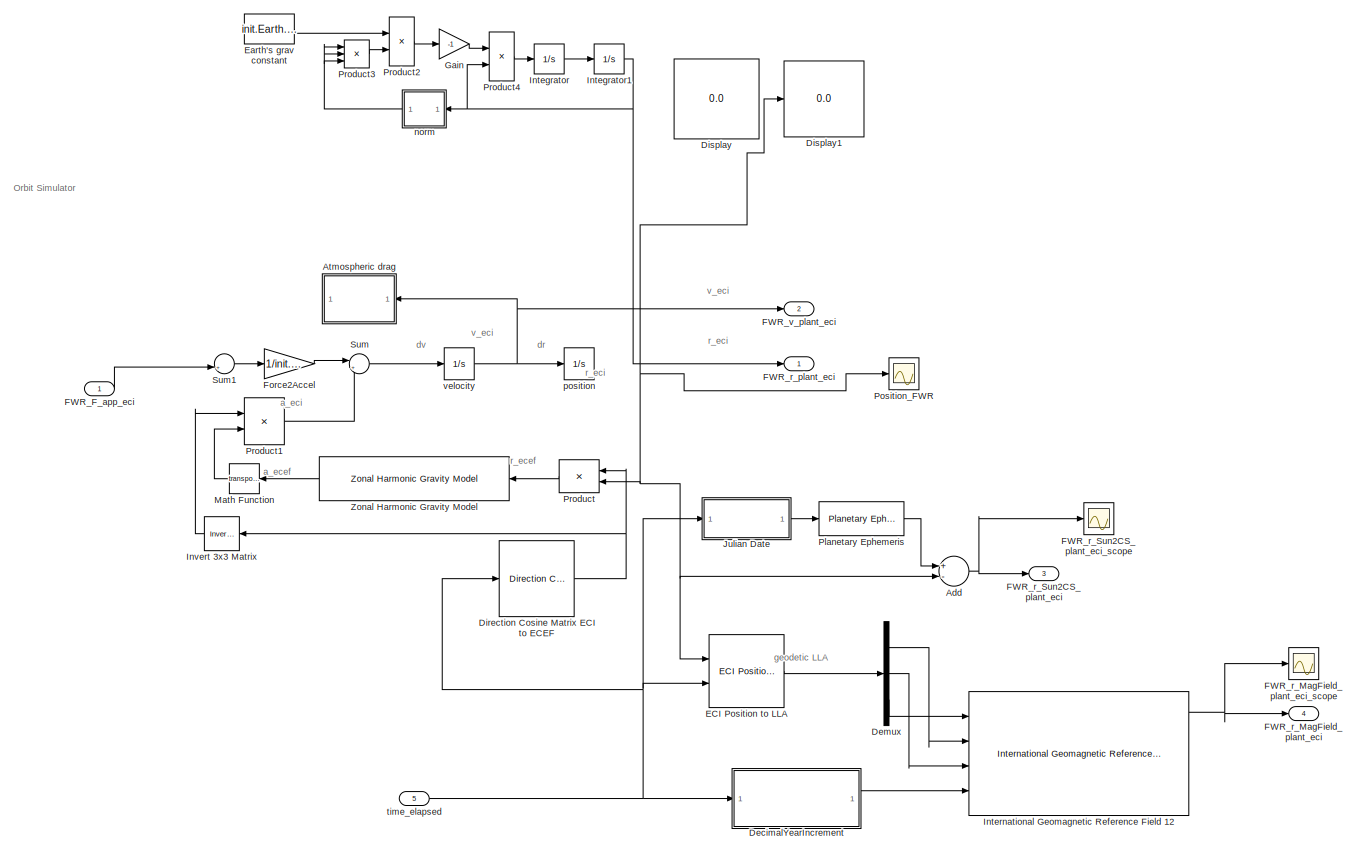
[diagram: FWR_Plant - part 1/2, full width, top band]
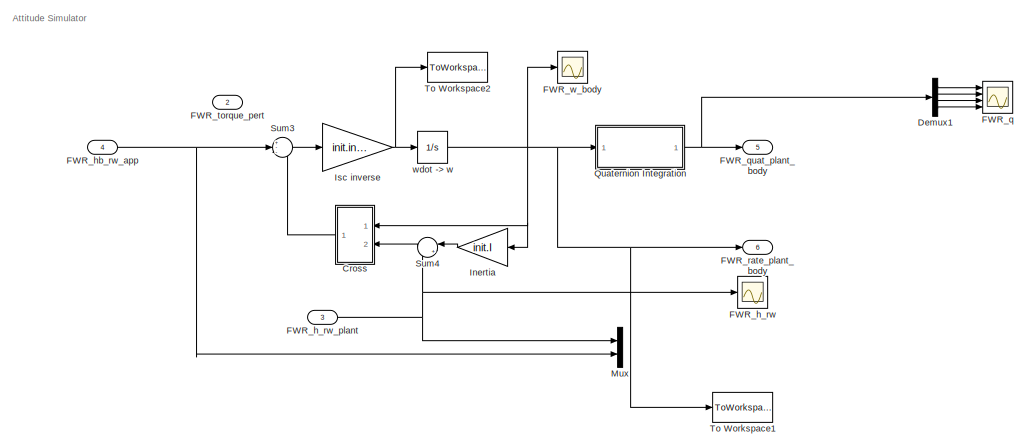
[diagram: FWR_Plant - part 2/2, full width, bottom band]
BLOCK [SubSystem] FWR_Plant
  Ports = [5, 6]
  RequestExecContextInheritance = off
  Variant = off
BLOCK [Sum] FWR_Plant/Add
  InputSameDT = off
  Inputs = +-
  OutDataTypeStr = Inherit: Inherit via internal rule
  Ports = [2, 1]
  SaturateOnIntegerOverflow = off
BLOCK [SubSystem] FWR_Plant/Atmospheric drag
  ErrorFcn = Stateflow.Translate.translate
  PermitHierarchicalResolution = ExplicitOnly
  Ports = [1, 1]
  RequestExecContextInheritance = off
  SFBlockType = MATLAB Function
  TreatAsAtomicUnit = on
  Variant = off
BLOCK [Demux] FWR_Plant/Atmospheric drag/ Demux 
  Outputs = 1
  Ports = [1, 1]
BLOCK [S-Function] FWR_Plant/Atmospheric drag/ SFunction 
  EnableBusSupport = on
  FunctionName = sf_sfun
  PortCounts = [1 2]
  Ports = [1, 2]
  SFcnIsStateOwnerBlock = off
  SFunctionDeploymentMode = off
  Tag = Stateflow S-Function top_model_rw_desatTest 18
BLOCK [Terminator] FWR_Plant/Atmospheric drag/ Terminator 
BLOCK [Outport] FWR_Plant/Atmospheric drag/drag
  IconDisplay = Port number
BLOCK [Inport] FWR_Plant/Atmospheric drag/velocity
  IconDisplay = Port number
BLOCK [SubSystem] FWR_Plant/Cross
  Ports = [2, 1]
  RequestExecContextInheritance = off
  Variant = off
BLOCK [Inport] FWR_Plant/Cross/A
  IconDisplay = Port number
BLOCK [Outport] FWR_Plant/Cross/AxB
  IconDisplay = Port number
  InitialOutput = 0
BLOCK [Inport] FWR_Plant/Cross/B
  IconDisplay = Port number
  Port = 2
BLOCK [Mux] FWR_Plant/Cross/Mux4
  Inputs = 3
  Ports = [3, 1]
BLOCK [Product] FWR_Plant/Cross/Product
  Ports = [2, 1]
  RndMeth = Floor
BLOCK [Product] FWR_Plant/Cross/Product1
  Ports = [2, 1]
  RndMeth = Floor
BLOCK [Product] FWR_Plant/Cross/Product2
  Ports = [2, 1]
  RndMeth = Floor
BLOCK [Product] FWR_Plant/Cross/Product3
  Ports = [2, 1]
  RndMeth = Floor
BLOCK [Product] FWR_Plant/Cross/Product4
  Ports = [2, 1]
  RndMeth = Floor
BLOCK [Product] FWR_Plant/Cross/Product5
  Ports = [2, 1]
  RndMeth = Floor
BLOCK [Sum] FWR_Plant/Cross/Sum
  Inputs = +-
  Ports = [2, 1]
BLOCK [Sum] FWR_Plant/Cross/Sum1
  Inputs = +-
  Ports = [2, 1]
BLOCK [Sum] FWR_Plant/Cross/Sum2
  Inputs = +-
  Ports = [2, 1]
BLOCK [Demux] FWR_Plant/Cross/demux2
  Outputs = 3
  Ports = [1, 3]
BLOCK [Demux] FWR_Plant/Cross/demux3
  Outputs = 3
  Ports = [1, 3]
BLOCK [SubSystem] FWR_Plant/DecimalYearIncrement
  Ports = [1, 1]
  RequestExecContextInheritance = off
  Variant = off
BLOCK [Sum] FWR_Plant/DecimalYearIncrement/Add
  InputSameDT = off
  OutDataTypeStr = Inherit: Inherit via internal rule
  Ports = [2, 1]
  SaturateOnIntegerOverflow = off
BLOCK [Constant] FWR_Plant/DecimalYearIncrement/Constant
  Value = init.year
BLOCK [Constant] FWR_Plant/DecimalYearIncrement/Constant1
  Value = init.month
BLOCK [Constant] FWR_Plant/DecimalYearIncrement/Constant2
  Value = init.day
BLOCK [Constant] FWR_Plant/DecimalYearIncrement/Constant3
  Value = init.hour
BLOCK [Constant] FWR_Plant/DecimalYearIncrement/Constant4
  Value = init.min
BLOCK [Constant] FWR_Plant/DecimalYearIncrement/Constant5
  Value = init.min
BLOCK [Outport] FWR_Plant/DecimalYearIncrement/DecimalYear
  IconDisplay = Port number
BLOCK [Product] FWR_Plant/DecimalYearIncrement/Divide
  InputSameDT = off
  Inputs = */
  OutDataTypeStr = Inherit: Inherit via internal rule
  Ports = [2, 1]
  RndMeth = Floor
  SaturateOnIntegerOverflow = off
BLOCK [SubSystem] FWR_Plant/DecimalYearIncrement/MATLAB Function
  ErrorFcn = Stateflow.Translate.translate
  PermitHierarchicalResolution = ExplicitOnly
  Ports = [6, 1]
  RequestExecContextInheritance = off
  SFBlockType = MATLAB Function
  TreatAsAtomicUnit = on
  Variant = off
BLOCK [Demux] FWR_Plant/DecimalYearIncrement/MATLAB Function/ Demux 
  Outputs = 1
  Ports = [1, 1]
BLOCK [S-Function] FWR_Plant/DecimalYearIncrement/MATLAB Function/ SFunction 
  EnableBusSupport = on
  FunctionName = sf_sfun
  PortCounts = [6 2]
  Ports = [6, 2]
  SFcnIsStateOwnerBlock = off
  SFunctionDeploymentMode = off
  Tag = Stateflow S-Function top_model_rw_desatTest 19
BLOCK [Terminator] FWR_Plant/DecimalYearIncrement/MATLAB Function/ Terminator 
BLOCK [Outport] FWR_Plant/DecimalYearIncrement/MATLAB Function/DecimalYear
  IconDisplay = Port number
BLOCK [Inport] FWR_Plant/DecimalYearIncrement/MATLAB Function/day
  IconDisplay = Port number
  Port = 3
BLOCK [Inport] FWR_Plant/DecimalYearIncrement/MATLAB Function/hour
  IconDisplay = Port number
  Port = 4
BLOCK [Inport] FWR_Plant/DecimalYearIncrement/MATLAB Function/minute
  IconDisplay = Port number
  Port = 5
BLOCK [Inport] FWR_Plant/DecimalYearIncrement/MATLAB Function/month
  IconDisplay = Port number
  Port = 2
BLOCK [Inport] FWR_Plant/DecimalYearIncrement/MATLAB Function/second
  IconDisplay = Port number
  Port = 6
BLOCK [Inport] FWR_Plant/DecimalYearIncrement/MATLAB Function/year
  IconDisplay = Port number
BLOCK [Product] FWR_Plant/DecimalYearIncrement/Product2
  InputSameDT = off
  Inputs = */
  OutDataTypeStr = Inherit: Inherit via internal rule
  Ports = [2, 1]
  RndMeth = Floor
  SaturateOnIntegerOverflow = off
BLOCK [Inport] FWR_Plant/DecimalYearIncrement/clock_sec
  IconDisplay = Port number
BLOCK [Constant] FWR_Plant/DecimalYearIncrement/day2decimalYear
  Value = 365
BLOCK [Constant] FWR_Plant/DecimalYearIncrement/sec2day
  Value = 86400
BLOCK [Demux] FWR_Plant/Demux
  DisplayOption = bar
  Outputs = 3
  Ports = [1, 3]
BLOCK [Demux] FWR_Plant/Demux1
  DisplayOption = bar
  Ports = [1, 4]
BLOCK [Reference] FWR_Plant/Direction Cosine Matrix ECI to ECEF  REF=aerolibtransform2/Direction Cosine Matrix
ECI to ECEF
  AttributesFormatString = %<red>
  Ports = [1, 1]
  SourceBlock = aerolibtransform2/Direction Cosine Matrix\nECI to ECEF
  SourceProductBaseCode = AE
  SourceProductName = Aerospace Blockset
  SourceType = DCMECItoECEF
BLOCK [Display] FWR_Plant/Display
  Decimation = 1
  Ports = [1]
BLOCK [Display] FWR_Plant/Display1
  Decimation = 1
  Ports = [1]
BLOCK [Reference] FWR_Plant/ECI Position to LLA  REF=aerolibtransform2/ECI Position to LLA
  AttributesFormatString = %<red>
  Ports = [2, 1]
  SourceBlock = aerolibtransform2/ECI Position to LLA
  SourceProductBaseCode = AE
  SourceProductName = Aerospace Blockset
  SourceType = ECItoLLA
BLOCK [Constant] FWR_Plant/Earth's grav constant
  Value = init.Earth.mu
BLOCK [Inport] FWR_Plant/FWR_F_app_eci
  IconDisplay = Port number
BLOCK [Scope] FWR_Plant/FWR_h_rw 
  NumInputPorts = 1
  Ports = [1]
  ScopeSpecificationString = Simulink.scopes.TimeScopeBlockCfg('CurrentConfiguration', extmgr.ConfigurationSet(extmgr.Configuration('Core','General UI',true),extmgr.Configuration('Core','Source UI',true),extmgr.Configuration('Sources','WiredSimulink',true,'DataLoggingVariableName','ScopeData2'),extmgr.Configuration('Visuals','Time Domain',true,'SerializedDisplays',{struct('MinYLimReal','-41.63623','MaxYLimReal','308.53736','Y...<+1512ch>
BLOCK [Inport] FWR_Plant/FWR_h_rw_plant
  IconDisplay = Port number
  Port = 3
BLOCK [Inport] FWR_Plant/FWR_hb_rw_app
  IconDisplay = Port number
  Port = 4
BLOCK [Scope] FWR_Plant/FWR_q
  NumInputPorts = 4
  Ports = [4]
  ScopeSpecificationString = Simulink.scopes.TimeScopeBlockCfg('CurrentConfiguration', extmgr.ConfigurationSet(extmgr.Configuration('Core','General UI',true),extmgr.Configuration('Core','Source UI',true),extmgr.Configuration('Sources','WiredSimulink',true,'DataLoggingVariableName','ScopeData5'),extmgr.Configuration('Visuals','Time Domain',true,'SerializedDisplays',{struct('MinYLimReal','-1.00000','MaxYLimReal','1.00000','YLab...<+3500ch>
BLOCK [Outport] FWR_Plant/FWR_quat_plant_body
  IconDisplay = Port number
  Port = 5
BLOCK [Outport] FWR_Plant/FWR_r_MagField_plant_eci
  IconDisplay = Port number
  Port = 4
BLOCK [Scope] FWR_Plant/FWR_r_MagField_plant_eci_scope
  NumInputPorts = 1
  Ports = [1]
  ScopeSpecificationString = Simulink.scopes.TimeScopeBlockCfg('CurrentConfiguration', extmgr.ConfigurationSet(extmgr.Configuration('Core','General UI',true),extmgr.Configuration('Core','Source UI',true),extmgr.Configuration('Sources','WiredSimulink',true,'DataLoggingVariableName','ScopeData1'),extmgr.Configuration('Visuals','Time Domain',true,'SerializedDisplays',{struct('MinYLimReal','-16470.15206','MaxYLimReal','28956.6206...<+1519ch>
BLOCK [Outport] FWR_Plant/FWR_r_Sun2CS_plant_eci
  IconDisplay = Port number
  Port = 3
BLOCK [Scope] FWR_Plant/FWR_r_Sun2CS_plant_eci_scope
  NumInputPorts = 1
  Ports = [1]
  ScopeSpecificationString = Simulink.scopes.TimeScopeBlockCfg('CurrentConfiguration', extmgr.ConfigurationSet(extmgr.Configuration('Core','General UI',true),extmgr.Configuration('Core','Source UI',true),extmgr.Configuration('Sources','WiredSimulink',true),extmgr.Configuration('Visuals','Time Domain',true,'SerializedDisplays',{struct('MinYLimReal','-5924792.25298','MaxYLimReal','154606686.91617','YLabelReal','','MinYLimMag','...<+1520ch>
BLOCK [Outport] FWR_Plant/FWR_r_plant_eci
  IconDisplay = Port number
BLOCK [Outport] FWR_Plant/FWR_rate_plant_body
  IconDisplay = Port number
  Port = 6
BLOCK [Inport] FWR_Plant/FWR_torque_pert 
  IconDisplay = Port number
  Port = 2
BLOCK [Outport] FWR_Plant/FWR_v_plant_eci
  IconDisplay = Port number
  Port = 2
BLOCK [Scope] FWR_Plant/FWR_w_body
  NumInputPorts = 1
  Ports = [1]
  ScopeSpecificationString = Simulink.scopes.TimeScopeBlockCfg('CurrentConfiguration', extmgr.ConfigurationSet(extmgr.Configuration('Core','General UI',true),extmgr.Configuration('Core','Source UI',true),extmgr.Configuration('Sources','WiredSimulink',true,'DataLoggingVariableName','ScopeData3'),extmgr.Configuration('Visuals','Time Domain',true,'SerializedDisplays',{struct('MinYLimReal','-0.00000009','MaxYLimReal','0.00000002'...<+1585ch>
BLOCK [Gain] FWR_Plant/Force2Accel
  Gain = 1/init.CubeSat.M
  OutDataTypeStr = Inherit: Inherit via internal rule
  ParamDataTypeStr = Inherit: Inherit via internal rule
  SaturateOnIntegerOverflow = off
BLOCK [Gain] FWR_Plant/Gain
  Gain = -1
BLOCK [Gain] FWR_Plant/Inertia
  Gain = init.I
  Multiplication = Matrix(K*u)
BLOCK [Integrator] FWR_Plant/Integrator
  InitialCondition = init.FWR.V
  Ports = [1, 1]
BLOCK [Integrator] FWR_Plant/Integrator1
  InitialCondition = init.FWR.P
  Ports = [1, 1]
BLOCK [Reference] FWR_Plant/International Geomagnetic Reference Field 12  REF=aerolibgravity2/International Geomagnetic Reference Field 12
  Ports = [4, 5]
  SourceBlock = aerolibgravity2/International Geomagnetic Reference Field 12
  SourceProductBaseCode = AE
  SourceProductName = Aerospace Blockset
  SourceType = InternationalGeomagneticReferenceField12
BLOCK [Reference] FWR_Plant/Invert 3x3 Matrix  REF=aerolibutil/Invert 
3x3 Matrix
  Ports = [1, 1]
  SourceBlock = aerolibutil/Invert \n3x3 Matrix
  SourceProductBaseCode = AE
  SourceProductName = Aerospace Blockset
  SourceType = Invert 3x3 Matrix
BLOCK [Gain] FWR_Plant/Isc inverse
  Gain = init.invI
  Multiplication = Matrix(K*u)
BLOCK [SubSystem] FWR_Plant/Julian Date
  Ports = [1, 1]
  RequestExecContextInheritance = off
  Variant = off
BLOCK [Bias] FWR_Plant/Julian Date/Bias1
  Bias = 1
  SaturateOnIntegerOverflow = off
BLOCK [Bias] FWR_Plant/Julian Date/Bias2
  Bias = 2
  SaturateOnIntegerOverflow = off
BLOCK [Bias] FWR_Plant/Julian Date/BiasDay
  Bias = -1524.5
  SaturateOnIntegerOverflow = off
BLOCK [Bias] FWR_Plant/Julian Date/BiasYear
  Bias = 4716
  SaturateOnIntegerOverflow = off
BLOCK [Gain] FWR_Plant/Julian Date/Gain
  Gain = 365.25
  OutDataTypeStr = Inherit: Inherit via internal rule
  ParamDataTypeStr = Inherit: Inherit via internal rule
  SaturateOnIntegerOverflow = off
BLOCK [Gain] FWR_Plant/Julian Date/Gain1
  Gain = 30.6001
  OutDataTypeStr = Inherit: Inherit via internal rule
  ParamDataTypeStr = Inherit: Inherit via internal rule
  SaturateOnIntegerOverflow = off
BLOCK [Gain] FWR_Plant/Julian Date/Gain2
  Gain = 1/100
  OutDataTypeStr = Inherit: Inherit via internal rule
  ParamDataTypeStr = Inherit: Inherit via internal rule
  SaturateOnIntegerOverflow = off
BLOCK [Gain] FWR_Plant/Julian Date/Gain3
  Gain = 1/4
  OutDataTypeStr = Inherit: Inherit via internal rule
  ParamDataTypeStr = Inherit: Inherit via internal rule
  SaturateOnIntegerOverflow = off
BLOCK [Gain] FWR_Plant/Julian Date/Gain4
  Gain = 1/24
  OutDataTypeStr = Inherit: Inherit via internal rule
  ParamDataTypeStr = Inherit: Inherit via internal rule
  SaturateOnIntegerOverflow = off
BLOCK [Gain] FWR_Plant/Julian Date/Gain5
  Gain = 1/60
  OutDataTypeStr = Inherit: Inherit via internal rule
  ParamDataTypeStr = Inherit: Inherit via internal rule
  SaturateOnIntegerOverflow = off
BLOCK [Gain] FWR_Plant/Julian Date/Gain6
  Gain = 1/3600
  OutDataTypeStr = Inherit: Inherit via internal rule
  ParamDataTypeStr = Inherit: Inherit via internal rule
  SaturateOnIntegerOverflow = off
BLOCK [If] FWR_Plant/Julian Date/If
  IfExpression = u1 <= 2
  Ports = [1, 2]
BLOCK [Reference] FWR_Plant/Julian Date/If Action Subsystem  REF=aerolibconvert2/Julian Date Conversion/If Action
Subsystem
  Ports = [2, 2, 0, 0, 0, 0, 0, 1]
  SourceBlock = aerolibconvert2/Julian Date Conversion/If Action\nSubsystem
  SourceProductBaseCode = AE
  SourceProductName = Aerospace Blockset
  SourceType = SubSystem
BLOCK [Reference] FWR_Plant/Julian Date/If Action Subsystem1  REF=aerolibconvert2/Julian Date Conversion/If Action
Subsystem1
  Ports = [2, 2, 0, 0, 0, 0, 0, 1]
  SourceBlock = aerolibconvert2/Julian Date Conversion/If Action\nSubsystem1
  SourceProductBaseCode = AE
  SourceProductName = Aerospace Blockset
  SourceType = SubSystem
BLOCK [Outport] FWR_Plant/Julian Date/Julian Date
  IconDisplay = Port number
BLOCK [Merge] FWR_Plant/Julian Date/Merge
  Ports = [2, 1]
BLOCK [Merge] FWR_Plant/Julian Date/Merge1
  Ports = [2, 1]
BLOCK [Rounding] FWR_Plant/Julian Date/Rounding Function
BLOCK [Rounding] FWR_Plant/Julian Date/Rounding Function1
BLOCK [Rounding] FWR_Plant/Julian Date/Rounding Function2
BLOCK [Rounding] FWR_Plant/Julian Date/Rounding Function3
BLOCK [Sum] FWR_Plant/Julian Date/Sum10
  IconShape = round
  InputSameDT = off
  Inputs = |++
  OutDataTypeStr = Inherit: Inherit via internal rule
  Ports = [2, 1]
  SaturateOnIntegerOverflow = off
BLOCK [Sum] FWR_Plant/Julian Date/Sum11
  InputSameDT = off
  Inputs = +++
  OutDataTypeStr = Inherit: Inherit via internal rule
  Ports = [3, 1]
  SaturateOnIntegerOverflow = off
BLOCK [Sum] FWR_Plant/Julian Date/Sum5
  IconShape = round
  InputSameDT = off
  Inputs = |++
  OutDataTypeStr = Inherit: Inherit via internal rule
  Ports = [2, 1]
  SaturateOnIntegerOverflow = off
BLOCK [Sum] FWR_Plant/Julian Date/Sum6
  IconShape = round
  InputSameDT = off
  Inputs = |+-
  OutDataTypeStr = Inherit: Inherit via internal rule
  Ports = [2, 1]
  SaturateOnIntegerOverflow = off
BLOCK [Sum] FWR_Plant/Julian Date/Sum7
  IconShape = round
  InputSameDT = off
  Inputs = |++
  OutDataTypeStr = Inherit: Inherit via internal rule
  Ports = [2, 1]
  SaturateOnIntegerOverflow = off
BLOCK [Sum] FWR_Plant/Julian Date/Sum8
  IconShape = round
  InputSameDT = off
  Inputs = |++
  OutDataTypeStr = Inherit: Inherit via internal rule
  Ports = [2, 1]
  SaturateOnIntegerOverflow = off
BLOCK [Sum] FWR_Plant/Julian Date/Sum9
  IconShape = round
  InputSameDT = off
  Inputs = |++
  OutDataTypeStr = Inherit: Inherit via internal rule
  Ports = [2, 1]
  SaturateOnIntegerOverflow = off
BLOCK [Constant] FWR_Plant/Julian Date/day
  Value = init.day
BLOCK [Inport] FWR_Plant/Julian Date/deltaT
  IconDisplay = Port number
  OutMin = 0
  PortDimensions = 1
  VarSizeSig = No
BLOCK [Constant] FWR_Plant/Julian Date/hour
  Value = init.hour
BLOCK [Constant] FWR_Plant/Julian Date/min
  Value = init.min
BLOCK [Constant] FWR_Plant/Julian Date/month
  Value = init.month
BLOCK [Constant] FWR_Plant/Julian Date/sec
  Value = init.sec
BLOCK [Constant] FWR_Plant/Julian Date/year
  Value = init.year
BLOCK [Math] FWR_Plant/Math Function
  Operator = transpose
  Ports = [1, 1]
BLOCK [Mux] FWR_Plant/Mux
  DisplayOption = bar
  Inputs = 2
  Ports = [2, 1]
BLOCK [Reference] FWR_Plant/Planetary Ephemeris  REF=aerolibcelestial/Planetary Ephemeris
  Ports = [1, 1]
  SourceBlock = aerolibcelestial/Planetary Ephemeris
  SourceProductBaseCode = AE
  SourceProductName = Aerospace Blockset
  SourceType = PlanetaryEphemeris
BLOCK [Scope] FWR_Plant/Position_FWR
  NumInputPorts = 1
  Ports = [1]
  ScopeSpecificationString = Simulink.scopes.TimeScopeBlockCfg('CurrentConfiguration', extmgr.ConfigurationSet(extmgr.Configuration('Core','General UI',true),extmgr.Configuration('Core','Source UI',true),extmgr.Configuration('Sources','WiredSimulink',true,'DataLoggingVariableName','ScopeData1'),extmgr.Configuration('Visuals','Time Domain',true,'SerializedDisplays',{struct('MinYLimReal','-8450795.73277','MaxYLimReal','8450795....<+1600ch>
BLOCK [Product] FWR_Plant/Product
  InputSameDT = off
  Multiplication = Matrix(*)
  OutDataTypeStr = Inherit: Inherit via internal rule
  Ports = [2, 1]
  RndMeth = Floor
  SaturateOnIntegerOverflow = off
BLOCK [Product] FWR_Plant/Product1
  InputSameDT = off
  Multiplication = Matrix(*)
  OutDataTypeStr = Inherit: Inherit via internal rule
  Ports = [2, 1]
  RndMeth = Floor
  SaturateOnIntegerOverflow = off
BLOCK [Product] FWR_Plant/Product2
  InputSameDT = off
  Inputs = */
  Ports = [2, 1]
  RndMeth = Floor
BLOCK [Product] FWR_Plant/Product3
  InputSameDT = off
  Inputs = ***
  Ports = [3, 1]
  RndMeth = Floor
BLOCK [Product] FWR_Plant/Product4
  InputSameDT = off
  Inputs = **
  Ports = [2, 1]
  RndMeth = Floor
BLOCK [SubSystem] FWR_Plant/Quaternion Integration
  Ports = [1, 1]
  RequestExecContextInheritance = off
  Variant = off
BLOCK [Gain] FWR_Plant/Quaternion Integration/Gain
  Gain = -1
  OutDataTypeStr = Inherit: Inherit via internal rule
  ParamDataTypeStr = Inherit: Inherit via internal rule
  SaturateOnIntegerOverflow = off
BLOCK [Integrator] FWR_Plant/Quaternion Integration/Integrator1
  ContinuousStateAttributes = 'quaternion_plant'
  InitialCondition = init.FWR.q_init
  Ports = [1, 1]
BLOCK [Selector] FWR_Plant/Quaternion Integration/Selector
  IndexOptions = Index vector (dialog)
  Indices = 4
  InputPortWidth = 4
  OutputSizes = 1
  Ports = [1, 1]
BLOCK [Switch] FWR_Plant/Quaternion Integration/Switch
  Criteria = u2 > Threshold
  InputSameDT = off
  SaturateOnIntegerOverflow = off
BLOCK [Outport] FWR_Plant/Quaternion Integration/q_I_Body
  IconDisplay = Port number
BLOCK [SubSystem] FWR_Plant/Quaternion Integration/q_normalize
  Ports = [1, 1]
  RequestExecContextInheritance = off
  Variant = off
BLOCK [DotProduct] FWR_Plant/Quaternion Integration/q_normalize/Dot Product
  OutDataTypeStr = Inherit: Inherit via internal rule
BLOCK [Math] FWR_Plant/Quaternion Integration/q_normalize/Math Function
  Operator = sqrt
  Ports = [1, 1]
BLOCK [Product] FWR_Plant/Quaternion Integration/q_normalize/Product
  Inputs = */
  Ports = [2, 1]
  RndMeth = Floor
BLOCK [Inport] FWR_Plant/Quaternion Integration/q_normalize/q_in
  IconDisplay = Port number
  PortDimensions = 4
BLOCK [Outport] FWR_Plant/Quaternion Integration/q_normalize/q_out
  IconDisplay = Port number
BLOCK [SubSystem] FWR_Plant/Quaternion Integration/qderiv
  Ports = [2, 1]
  RequestExecContextInheritance = off
  Variant = off
BLOCK [Mux] FWR_Plant/Quaternion Integration/qderiv/Mux
  DisplayOption = bar
  Inputs = 2
  Ports = [2, 1]
BLOCK [Mux] FWR_Plant/Quaternion Integration/qderiv/Mux1
  DisplayOption = bar
  Ports = [4, 1]
BLOCK [Inport] FWR_Plant/Quaternion Integration/qderiv/q
  IconDisplay = Port number
  Port = 2
BLOCK [Outport] FWR_Plant/Quaternion Integration/qderiv/qd
  IconDisplay = Port number
BLOCK [Fcn] FWR_Plant/Quaternion Integration/qderiv/qd1
  Expr = (u(7)*u(1)-u(6)*u(2)+u(5)*u(3))/2
BLOCK [Fcn] FWR_Plant/Quaternion Integration/qderiv/qd2
  Expr = (u(6)*u(1)+u(7)*u(2)-u(4)*u(3))/2
BLOCK [Fcn] FWR_Plant/Quaternion Integration/qderiv/qd3
  Expr = (-u(5)*u(1)+u(4)*u(2)+u(7)*u(3))/2
BLOCK [Fcn] FWR_Plant/Quaternion Integration/qderiv/qd4
  Expr = (-u(4)*u(1)-u(5)*u(2)-u(6)*u(3))/2
BLOCK [Inport] FWR_Plant/Quaternion Integration/qderiv/w
  IconDisplay = Port number
BLOCK [Inport] FWR_Plant/Quaternion Integration/w_Body
  IconDisplay = Port number
BLOCK [Sum] FWR_Plant/Sum
  IconShape = round
  InputSameDT = off
  Inputs = |++
  OutDataTypeStr = Inherit: Inherit via internal rule
  Ports = [2, 1]
  SaturateOnIntegerOverflow = off
BLOCK [Sum] FWR_Plant/Sum1
  IconShape = round
  InputSameDT = off
  Inputs = |++
  OutDataTypeStr = Inherit: Inherit via internal rule
  Ports = [2, 1]
  SaturateOnIntegerOverflow = off
BLOCK [Sum] FWR_Plant/Sum3
  IconShape = round
  Inputs = +--
  Ports = [3, 1]
BLOCK [Sum] FWR_Plant/Sum4
  IconShape = round
  InputSameDT = off
  Inputs = |++
  OutDataTypeStr = Inherit: Inherit via internal rule
  Ports = [2, 1]
  SaturateOnIntegerOverflow = off
BLOCK [ToWorkspace] FWR_Plant/To Workspace1
  FixptAsFi = on
  MaxDataPoints = inf
  Ports = [1]
  SampleTime = -1
  Save2DSignal = 3-D array (concatenate along third dimension)
  SaveFormat = Timeseries
  VariableName = w
BLOCK [ToWorkspace] FWR_Plant/To Workspace2
  FixptAsFi = on
  MaxDataPoints = inf
  Ports = [1]
  SampleTime = -1
  Save2DSignal = 3-D array (concatenate along third dimension)
  SaveFormat = Timeseries
  VariableName = wdot
BLOCK [Reference] FWR_Plant/Zonal Harmonic Gravity Model  REF=aerolibgravity2/Zonal Harmonic Gravity Model
  Ports = [1, 1]
  SourceBlock = aerolibgravity2/Zonal Harmonic Gravity Model
  SourceProductBaseCode = AE
  SourceProductName = Aerospace Blockset
  SourceType = Zonal Harmonic Gravity Model
BLOCK [SubSystem] FWR_Plant/norm
  Ports = [1, 1]
  RequestExecContextInheritance = off
  Variant = off
BLOCK [DotProduct] FWR_Plant/norm/Dot Product
  OutDataTypeStr = Inherit: Inherit via internal rule
BLOCK [Math] FWR_Plant/norm/Math Function
  Operator = sqrt
  Ports = [1, 1]
BLOCK [Saturate] FWR_Plant/norm/Saturation
  InputPortMap = u0
  LowerLimit = 1e-10
  Ports = [1, 1]
  UpperLimit = 1e20
BLOCK [Inport] FWR_Plant/norm/v
  IconDisplay = Port number
BLOCK [Outport] FWR_Plant/norm/|v|
  IconDisplay = Port number
BLOCK [Integrator] FWR_Plant/position
  ContinuousStateAttributes = 'position'
  InitialCondition = init.FWR.P
  Ports = [1, 1]
BLOCK [Inport] FWR_Plant/time_elapsed
  IconDisplay = Port number
  Port = 5
BLOCK [Integrator] FWR_Plant/velocity
  ContinuousStateAttributes = 'velocity'
  InitialCondition = init.FWR.V
  Ports = [1, 1]
BLOCK [Integrator] FWR_Plant/wdot -> w
  InitialCondition = init.FWR.wbn
  Ports = [1, 1]
BLOCK [SubSystem] FWR_Sensor Model
  Ports = [7, 5]
  RequestExecContextInheritance = off
  Variant = off
BLOCK [Reference] FWR_Sensor Model/Direction Cosine Matrix ECI to ECEF  REF=aerolibtransform2/Direction Cosine Matrix
ECI to ECEF
  AttributesFormatString = %<red>
  Ports = [1, 1]
  SourceBlock = aerolibtransform2/Direction Cosine Matrix\nECI to ECEF
  SourceProductBaseCode = AE
  SourceProductName = Aerospace Blockset
  SourceType = DCMECItoECEF
BLOCK [Inport] FWR_Sensor Model/FWR_quat_plant_body
  IconDisplay = Port number
  Port = 5
BLOCK [Inport] FWR_Sensor Model/FWR_r_MagField_plant_eci
  IconDisplay = Port number
  Port = 4
BLOCK [Outport] FWR_Sensor Model/FWR_r_MagField_sensor_body
  IconDisplay = Port number
  Port = 4
BLOCK [Inport] FWR_Sensor Model/FWR_r_Sun2CS_plant_eci
  IconDisplay = Port number
  Port = 3
BLOCK [Outport] FWR_Sensor Model/FWR_r_Sun2CS_sensor_body
  IconDisplay = Port number
  Port = 3
BLOCK [Inport] FWR_Sensor Model/FWR_r_plant_eci
  IconDisplay = Port number
BLOCK [Outport] FWR_Sensor Model/FWR_r_sensor_ecef
  IconDisplay = Port number
BLOCK [Outport] FWR_Sensor Model/FWR_rate_calc_body
  IconDisplay = Port number
  Port = 5
BLOCK [Inport] FWR_Sensor Model/FWR_rate_plant_body
  IconDisplay = Port number
  Port = 6
BLOCK [Inport] FWR_Sensor Model/FWR_v_plant_eci
  IconDisplay = Port number
  Port = 2
BLOCK [Outport] FWR_Sensor Model/FWR_v_sensor_ecef
  IconDisplay = Port number
  Port = 2
BLOCK [Product] FWR_Sensor Model/Matrix Multiply
  InputSameDT = off
  Multiplication = Matrix(*)
  OutDataTypeStr = Inherit: Inherit via internal rule
  Ports = [2, 1]
  RndMeth = Floor
  SaturateOnIntegerOverflow = off
BLOCK [Product] FWR_Sensor Model/Matrix Multiply1
  InputSameDT = off
  Multiplication = Matrix(*)
  OutDataTypeStr = Inherit: Inherit via internal rule
  Ports = [2, 1]
  RndMeth = Floor
  SaturateOnIntegerOverflow = off
BLOCK [Product] FWR_Sensor Model/Matrix Multiply2
  InputSameDT = off
  Multiplication = Matrix(*)
  OutDataTypeStr = Inherit: Inherit via internal rule
  Ports = [2, 1]
  RndMeth = Floor
  SaturateOnIntegerOverflow = off
BLOCK [Product] FWR_Sensor Model/Matrix Multiply3
  InputSameDT = off
  Multiplication = Matrix(*)
  OutDataTypeStr = Inherit: Inherit via internal rule
  Ports = [2, 1]
  RndMeth = Floor
  SaturateOnIntegerOverflow = off
BLOCK [SubSystem] FWR_Sensor Model/quat to DCM
  Ports = [1, 1]
  RequestExecContextInheritance = off
  ShowPortLabels = none
  Variant = off
BLOCK [Outport] FWR_Sensor Model/quat to DCM/DCM
  IconDisplay = Port number
  InitialOutput = 0
BLOCK [Demux] FWR_Sensor Model/quat to DCM/Demux
  Ports = [1, 4]
BLOCK [Gain] FWR_Sensor Model/quat to DCM/Gain1
  Gain = 2
BLOCK [Gain] FWR_Sensor Model/quat to DCM/Gain2
  Gain = 2
BLOCK [Gain] FWR_Sensor Model/quat to DCM/Matrix Gain
  Gain = eye(3,3)
BLOCK [Mux] FWR_Sensor Model/quat to DCM/Mux
  DisplayOption = bar
  Inputs = 3
  Ports = [3, 1]
BLOCK [Product] FWR_Sensor Model/quat to DCM/Product
  Ports = [2, 1]
  RndMeth = Floor
BLOCK [Product] FWR_Sensor Model/quat to DCM/Product1
  Ports = [2, 1]
  RndMeth = Floor
BLOCK [SubSystem] FWR_Sensor Model/quat to DCM/Subsystem
  Ports = [1, 1]
  RequestExecContextInheritance = off
  Variant = off
BLOCK [Reshape] FWR_Sensor Model/quat to DCM/Subsystem/3x3
  OutputDimensionality = Customize
  OutputDimensions = [3,3]
  Ports = [1, 1]
BLOCK [Demux] FWR_Sensor Model/quat to DCM/Subsystem/Demux
  Outputs = 3
  Ports = [1, 3]
BLOCK [Gain] FWR_Sensor Model/quat to DCM/Subsystem/Gain
  Gain = -1
BLOCK [Gain] FWR_Sensor Model/quat to DCM/Subsystem/Gain1
  Gain = -1
BLOCK [Gain] FWR_Sensor Model/quat to DCM/Subsystem/Gain2
  Gain = -1
BLOCK [Inport] FWR_Sensor Model/quat to DCM/Subsystem/In1
  IconDisplay = Port number
BLOCK [Mux] FWR_Sensor Model/quat to DCM/Subsystem/Mux
  DisplayOption = bar
  Inputs = 9
  Ports = [9, 1]
BLOCK [Outport] FWR_Sensor Model/quat to DCM/Subsystem/Out1
  IconDisplay = Port number
BLOCK [Constant] FWR_Sensor Model/quat to DCM/Subsystem/diag 0 
  Value = 0
BLOCK [Sum] FWR_Sensor Model/quat to DCM/Sum1
  IconShape = round
  Inputs = |+-
  Ports = [2, 1]
BLOCK [Sum] FWR_Sensor Model/quat to DCM/Sum8
  IconShape = round
  Inputs = |+-+
  Ports = [3, 1]
BLOCK [Math] FWR_Sensor Model/quat to DCM/T1
  Operator = transpose
  Ports = [1, 1]
BLOCK [Math] FWR_Sensor Model/quat to DCM/T2
  Operator = transpose
  Ports = [1, 1]
BLOCK [Inport] FWR_Sensor Model/quat to DCM/e0 e1 e2 e3
  IconDisplay = Port number
BLOCK [Product] FWR_Sensor Model/quat to DCM/qTq
  Multiplication = Matrix(*)
  Ports = [2, 1]
  RndMeth = Floor
BLOCK [Product] FWR_Sensor Model/quat to DCM/qqT
  Multiplication = Matrix(*)
  Ports = [2, 1]
  RndMeth = Floor
BLOCK [Inport] FWR_Sensor Model/time_elapsed
  IconDisplay = Port number
  Port = 7
BLOCK [SubSystem] GNC
  Ports = [5, 3]
  RequestExecContextInheritance = off
  Variant = off
BLOCK [SubSystem] GNC/Follower Maneuver
  Ports = [8, 4]
  RequestExecContextInheritance = off
  Variant = off
BLOCK [DataStoreMemory] GNC/Follower Maneuver/Data Store Memory
  DataStoreName = man_flag
  ShowAdditionalParam = off
  WriteAfterReadMsg = warning
  WriteAfterWriteMsg = warning
BLOCK [Product] GNC/Follower Maneuver/Divide
  InputSameDT = off
  Inputs = */
  OutDataTypeStr = Inherit: Inherit via internal rule
  Ports = [2, 1]
  RndMeth = Floor
  SaturateOnIntegerOverflow = off
BLOCK [Product] GNC/Follower Maneuver/Divide1
  InputSameDT = off
  Inputs = **/
  OutDataTypeStr = Inherit: Inherit via internal rule
  Ports = [3, 1]
  RndMeth = Floor
  SaturateOnIntegerOverflow = off
BLOCK [Reference] GNC/Follower Maneuver/Euclidean norm  REF=hEemethod/Math Operations/Euclidean norm
  Ports = [1, 1]
  SourceBlock = hEemethod/Math Operations/Euclidean norm
  SourceProductName = HEe Method Library
  SourceType = Euclidean Norm
BLOCK [From] GNC/Follower Maneuver/From4
  GotoTag = Thrust_max
  TagVisibility = global
BLOCK [Inport] GNC/Follower Maneuver/Imp_max
  IconDisplay = Port number
  Port = 6
BLOCK [Inport] GNC/Follower Maneuver/Imp_min
  IconDisplay = Port number
  Port = 7
BLOCK [SubSystem] GNC/Follower Maneuver/Impulse Conversion
  ErrorFcn = Stateflow.Translate.translate
  PermitHierarchicalResolution = ExplicitOnly
  Ports = [4, 1]
  RequestExecContextInheritance = off
  SFBlockType = MATLAB Function
  TreatAsAtomicUnit = on
  Variant = off
BLOCK [Demux] GNC/Follower Maneuver/Impulse Conversion/ Demux 
  Outputs = 1
  Ports = [1, 1]
BLOCK [S-Function] GNC/Follower Maneuver/Impulse Conversion/ SFunction 
  EnableBusSupport = on
  FunctionName = sf_sfun
  PortCounts = [4 2]
  Ports = [4, 2]
  SFcnIsStateOwnerBlock = off
  SFunctionDeploymentMode = off
  Tag = Stateflow S-Function top_model_rw_desatTest 4
BLOCK [Terminator] GNC/Follower Maneuver/Impulse Conversion/ Terminator 
BLOCK [Outport] GNC/Follower Maneuver/Impulse Conversion/Imp_filt
  IconDisplay = Port number
BLOCK [Inport] GNC/Follower Maneuver/Impulse Conversion/Imp_max
  IconDisplay = Port number
  Port = 3
BLOCK [Inport] GNC/Follower Maneuver/Impulse Conversion/Imp_min
  IconDisplay = Port number
  Port = 4
BLOCK [Inport] GNC/Follower Maneuver/Impulse Conversion/dV_raw
  IconDisplay = Port number
BLOCK [Inport] GNC/Follower Maneuver/Impulse Conversion/m_follower
  IconDisplay = Port number
  Port = 2
BLOCK [Outport] GNC/Follower Maneuver/Impulse_eci
  IconDisplay = Port number
  Port = 3
BLOCK [Mux] GNC/Follower Maneuver/Mux1
  DisplayOption = bar
  Inputs = 3
  Ports = [3, 1]
BLOCK [SubSystem] GNC/Follower Maneuver/Optimal Latitude Calc
  Ports = [6, 3]
  RequestExecContextInheritance = off
  Variant = off
BLOCK [Constant] GNC/Follower Maneuver/Optimal Latitude Calc/Constant
  Value = K_F
BLOCK [Constant] GNC/Follower Maneuver/Optimal Latitude Calc/Constant1
  Value = L_F
BLOCK [SubSystem] GNC/Follower Maneuver/Optimal Latitude Calc/Enabled Subsystem
  Ports = [7, 3, 1]
  RequestExecContextInheritance = off
  TreatAsAtomicUnit = on
  Variant = off
BLOCK [EnablePort] GNC/Follower Maneuver/Optimal Latitude Calc/Enabled Subsystem/Enable
  Ports = []
BLOCK [Inport] GNC/Follower Maneuver/Optimal Latitude Calc/Enabled Subsystem/K
  IconDisplay = Port number
  Port = 5
BLOCK [Inport] GNC/Follower Maneuver/Optimal Latitude Calc/Enabled Subsystem/L
  IconDisplay = Port number
  Port = 6
BLOCK [SubSystem] GNC/Follower Maneuver/Optimal Latitude Calc/Enabled Subsystem/MATLAB Function
  ErrorFcn = Stateflow.Translate.translate
  PermitHierarchicalResolution = ExplicitOnly
  Ports = [7, 3]
  RequestExecContextInheritance = off
  SFBlockType = MATLAB Function
  TreatAsAtomicUnit = on
  Variant = off
BLOCK [Demux] GNC/Follower Maneuver/Optimal Latitude Calc/Enabled Subsystem/MATLAB Function/ Demux 
  Outputs = 1
  Ports = [1, 1]
BLOCK [S-Function] GNC/Follower Maneuver/Optimal Latitude Calc/Enabled Subsystem/MATLAB Function/ SFunction 
  EnableBusSupport = on
  FunctionName = sf_sfun
  PortCounts = [7 4]
  Ports = [7, 4]
  SFcnIsStateOwnerBlock = off
  SFunctionDeploymentMode = off
  Tag = Stateflow S-Function top_model_rw_desatTest 5
BLOCK [Terminator] GNC/Follower Maneuver/Optimal Latitude Calc/Enabled Subsystem/MATLAB Function/ Terminator 
BLOCK [Inport] GNC/Follower Maneuver/Optimal Latitude Calc/Enabled Subsystem/MATLAB Function/K
  IconDisplay = Port number
  Port = 5
BLOCK [Inport] GNC/Follower Maneuver/Optimal Latitude Calc/Enabled Subsystem/MATLAB Function/L
  IconDisplay = Port number
  Port = 6
BLOCK [Outport] GNC/Follower Maneuver/Optimal Latitude Calc/Enabled Subsystem/MATLAB Function/dV_opt
  IconDisplay = Port number
BLOCK [Outport] GNC/Follower Maneuver/Optimal Latitude Calc/Enabled Subsystem/MATLAB Function/long_opt
  IconDisplay = Port number
  Port = 3
BLOCK [Inport] GNC/Follower Maneuver/Optimal Latitude Calc/Enabled Subsystem/MATLAB Function/muE
  IconDisplay = Port number
  Port = 7
BLOCK [Outport] GNC/Follower Maneuver/Optimal Latitude Calc/Enabled Subsystem/MATLAB Function/pos_opt
  IconDisplay = Port number
  Port = 2
BLOCK [Inport] GNC/Follower Maneuver/Optimal Latitude Calc/Enabled Subsystem/MATLAB Function/r
  IconDisplay = Port number
BLOCK [Inport] GNC/Follower Maneuver/Optimal Latitude Calc/Enabled Subsystem/MATLAB Function/v
  IconDisplay = Port number
  Port = 2
BLOCK [Inport] GNC/Follower Maneuver/Optimal Latitude Calc/Enabled Subsystem/MATLAB Function/x
  IconDisplay = Port number
  Port = 4
BLOCK [Inport] GNC/Follower Maneuver/Optimal Latitude Calc/Enabled Subsystem/MATLAB Function/x_t
  IconDisplay = Port number
  Port = 3
BLOCK [Outport] GNC/Follower Maneuver/Optimal Latitude Calc/Enabled Subsystem/dV_opt
  IconDisplay = Port number
BLOCK [Outport] GNC/Follower Maneuver/Optimal Latitude Calc/Enabled Subsystem/long_opt
  IconDisplay = Port number
  Port = 2
BLOCK [Inport] GNC/Follower Maneuver/Optimal Latitude Calc/Enabled Subsystem/muE 
  IconDisplay = Port number
  Port = 7
BLOCK [Outport] GNC/Follower Maneuver/Optimal Latitude Calc/Enabled Subsystem/pos_opt
  IconDisplay = Port number
  Port = 3
BLOCK [Inport] GNC/Follower Maneuver/Optimal Latitude Calc/Enabled Subsystem/r
  IconDisplay = Port number
BLOCK [Inport] GNC/Follower Maneuver/Optimal Latitude Calc/Enabled Subsystem/v
  IconDisplay = Port number
  Port = 2
BLOCK [Inport] GNC/Follower Maneuver/Optimal Latitude Calc/Enabled Subsystem/x_f
  IconDisplay = Port number
  Port = 4
BLOCK [Inport] GNC/Follower Maneuver/Optimal Latitude Calc/Enabled Subsystem/x_tgt
  IconDisplay = Port number
  Port = 3
BLOCK [Inport] GNC/Follower Maneuver/Optimal Latitude Calc/Update Trigger
  IconDisplay = Port number
  Port = 6
BLOCK [Outport] GNC/Follower Maneuver/Optimal Latitude Calc/dV_opt
  IconDisplay = Port number
BLOCK [Outport] GNC/Follower Maneuver/Optimal Latitude Calc/long_opt
  IconDisplay = Port number
  Port = 2
BLOCK [Inport] GNC/Follower Maneuver/Optimal Latitude Calc/muE
  IconDisplay = Port number
  Port = 3
BLOCK [Outport] GNC/Follower Maneuver/Optimal Latitude Calc/pos_opt
  IconDisplay = Port number
  Port = 3
BLOCK [Inport] GNC/Follower Maneuver/Optimal Latitude Calc/r 
  IconDisplay = Port number
BLOCK [Inport] GNC/Follower Maneuver/Optimal Latitude Calc/v 
  IconDisplay = Port number
  Port = 2
BLOCK [Inport] GNC/Follower Maneuver/Optimal Latitude Calc/x_f
  IconDisplay = Port number
  Port = 5
BLOCK [Inport] GNC/Follower Maneuver/Optimal Latitude Calc/x_tgt
  IconDisplay = Port number
  Port = 4
BLOCK [ToWorkspace] GNC/Follower Maneuver/To Workspace2
  FixptAsFi = on
  MaxDataPoints = inf
  Ports = [1]
  SampleTime = -1
  Save2DSignal = 3-D array (concatenate along third dimension)
  SaveFormat = Timeseries
  VariableName = Thrust_vec
BLOCK [Inport] GNC/Follower Maneuver/Update Trigger
  IconDisplay = Port number
  Port = 8
BLOCK [Reference] GNC/Follower Maneuver/h and E calculation  REF=hEemethod/Math Operations/h and E calculation
  Ports = [3, 3]
  SourceBlock = hEemethod/Math Operations/h and E calculation
  SourceProductName = HEe Method Library
  SourceType = hEe Calculation
BLOCK [Outport] GNC/Follower Maneuver/long_opt
  IconDisplay = Port number
BLOCK [Inport] GNC/Follower Maneuver/m_follower
  IconDisplay = Port number
  Port = 5
BLOCK [Inport] GNC/Follower Maneuver/mu
  IconDisplay = Port number
  Port = 3
BLOCK [Outport] GNC/Follower Maneuver/ontime
  IconDisplay = Port number
  Port = 4
BLOCK [Outport] GNC/Follower Maneuver/pos_opt
  IconDisplay = Port number
  Port = 2
BLOCK [Inport] GNC/Follower Maneuver/r_follower
  IconDisplay = Port number
BLOCK [Inport] GNC/Follower Maneuver/v_follower
  IconDisplay = Port number
  Port = 2
BLOCK [Inport] GNC/Follower Maneuver/x_tgt
  IconDisplay = Port number
  Port = 4
BLOCK [SubSystem] GNC/Follower Orbital Elements
  Ports = [2, 6]
  RequestExecContextInheritance = off
  Variant = off
BLOCK [Reference] GNC/Follower Orbital Elements/Follower True Anomaly  REF=hEemethod/Math Operations/True Anomaly
  Ports = [3, 1]
  SourceBlock = hEemethod/Math Operations/True Anomaly
  SourceProductName = HEe Method Library
  SourceType = True Anomaly
BLOCK [From] GNC/Follower Orbital Elements/From4
  GotoTag = muE
  TagVisibility = global
BLOCK [Mux] GNC/Follower Orbital Elements/Mux
  DisplayOption = bar
  Inputs = 3
  Ports = [3, 1]
BLOCK [Reference] GNC/Follower Orbital Elements/Orbital Elements  REF=hEemethod/Math Operations/Orbital Elements
  Ports = [2, 5]
  SourceBlock = hEemethod/Math Operations/Orbital Elements
  SourceProductName = HEe Method Library
  SourceType = Orbital Elements
BLOCK [Outport] GNC/Follower Orbital Elements/a
  IconDisplay = Port number
BLOCK [Outport] GNC/Follower Orbital Elements/e
  IconDisplay = Port number
  Port = 2
BLOCK [Reference] GNC/Follower Orbital Elements/h and E calculation  REF=hEemethod/Math Operations/h and E calculation
  Ports = [3, 3]
  SourceBlock = hEemethod/Math Operations/h and E calculation
  SourceProductName = HEe Method Library
  SourceType = hEe Calculation
BLOCK [Outport] GNC/Follower Orbital Elements/i
  IconDisplay = Port number
  Port = 3
BLOCK [Inport] GNC/Follower Orbital Elements/r
  IconDisplay = Port number
BLOCK [Inport] GNC/Follower Orbital Elements/v
  IconDisplay = Port number
  Port = 2
BLOCK [Outport] GNC/Follower Orbital Elements/Ω
  IconDisplay = Port number
  Port = 4
BLOCK [Outport] GNC/Follower Orbital Elements/θ
  IconDisplay = Port number
  Port = 6
BLOCK [Outport] GNC/Follower Orbital Elements/ω
  IconDisplay = Port number
  Port = 5
BLOCK [Inport] GNC/Follower Position
  IconDisplay = Port number
BLOCK [Inport] GNC/Follower Velocity
  IconDisplay = Port number
  Port = 2
BLOCK [From] GNC/From1
  GotoTag = m_f
  TagVisibility = global
BLOCK [From] GNC/From2
  GotoTag = Imp_max
  TagVisibility = global
BLOCK [From] GNC/From3
  GotoTag = muE
  TagVisibility = global
BLOCK [From] GNC/From4
  GotoTag = K_F
  TagVisibility = global
BLOCK [From] GNC/From5
  GotoTag = match_tol
  TagVisibility = global
BLOCK [From] GNC/From6
  GotoTag = Imp_min
  TagVisibility = global
BLOCK [Outport] GNC/Impulse_eci
  IconDisplay = Port number
  Port = 2
BLOCK [SubSystem] GNC/Leader Orbital Elements
  Ports = [2, 6]
  RequestExecContextInheritance = off
  Variant = off
BLOCK [Reference] GNC/Leader Orbital Elements/Follower True Anomaly  REF=hEemethod/Math Operations/True Anomaly
  Ports = [3, 1]
  SourceBlock = hEemethod/Math Operations/True Anomaly
  SourceProductName = HEe Method Library
  SourceType = True Anomaly
BLOCK [From] GNC/Leader Orbital Elements/From4
  GotoTag = muE
  TagVisibility = global
BLOCK [Mux] GNC/Leader Orbital Elements/Mux
  DisplayOption = bar
  Inputs = 3
  Ports = [3, 1]
BLOCK [Reference] GNC/Leader Orbital Elements/Orbital Elements  REF=hEemethod/Math Operations/Orbital Elements
  Ports = [2, 5]
  SourceBlock = hEemethod/Math Operations/Orbital Elements
  SourceProductName = HEe Method Library
  SourceType = Orbital Elements
BLOCK [Outport] GNC/Leader Orbital Elements/a
  IconDisplay = Port number
BLOCK [Outport] GNC/Leader Orbital Elements/e
  IconDisplay = Port number
  Port = 2
BLOCK [Reference] GNC/Leader Orbital Elements/h and E calculation  REF=hEemethod/Math Operations/h and E calculation
  Ports = [3, 3]
  SourceBlock = hEemethod/Math Operations/h and E calculation
  SourceProductName = HEe Method Library
  SourceType = hEe Calculation
BLOCK [Outport] GNC/Leader Orbital Elements/i
  IconDisplay = Port number
  Port = 3
BLOCK [Inport] GNC/Leader Orbital Elements/r
  IconDisplay = Port number
BLOCK [Inport] GNC/Leader Orbital Elements/v
  IconDisplay = Port number
  Port = 2
BLOCK [Outport] GNC/Leader Orbital Elements/Ω
  IconDisplay = Port number
  Port = 4
BLOCK [Outport] GNC/Leader Orbital Elements/θ
  IconDisplay = Port number
  Port = 6
BLOCK [Outport] GNC/Leader Orbital Elements/ω
  IconDisplay = Port number
  Port = 5
BLOCK [Inport] GNC/Leader Position
  IconDisplay = Port number
  Port = 3
BLOCK [Inport] GNC/Leader Velocity
  IconDisplay = Port number
  Port = 4
BLOCK [Mux] GNC/Mux
  DisplayOption = bar
  Inputs = 6
  Ports = [6, 1]
BLOCK [Mux] GNC/Mux1
  DisplayOption = bar
  Inputs = 6
  Ports = [6, 1]
BLOCK [SubSystem] GNC/Params
  Ports = []
  RequestExecContextInheritance = off
  Variant = off
BLOCK [Constant] GNC/Params/Earth's Graviational Parameter
  Value = muE
BLOCK [Constant] GNC/Params/Follower Mass
  Value = m_follower
BLOCK [From] GNC/Params/From
  GotoTag = Thrust_min
  TagVisibility = global
BLOCK [From] GNC/Params/From1
  GotoTag = ontime_max
  TagVisibility = global
BLOCK [From] GNC/Params/From2
  GotoTag = ontime_min
  TagVisibility = global
BLOCK [Goto] GNC/Params/Goto
  GotoTag = muE
  TagVisibility = global
BLOCK [Goto] GNC/Params/Goto1
  GotoTag = m_f
  TagVisibility = global
BLOCK [Goto] GNC/Params/Goto2
  GotoTag = Thrust_max
  TagVisibility = global
BLOCK [Goto] GNC/Params/Goto3
  GotoTag = Thrust_min
  TagVisibility = global
BLOCK [Goto] GNC/Params/Goto4
  GotoTag = ontime_max
  TagVisibility = global
BLOCK [Goto] GNC/Params/Goto5
  GotoTag = ontime_min
  TagVisibility = global
BLOCK [Goto] GNC/Params/Goto6
  GotoTag = K_F
  TagVisibility = global
BLOCK [Goto] GNC/Params/Goto7
  GotoTag = match_tol
  TagVisibility = global
BLOCK [Goto] GNC/Params/Goto8
  GotoTag = Imp_min
  TagVisibility = global
BLOCK [Goto] GNC/Params/Goto9
  GotoTag = Imp_max
  TagVisibility = global
BLOCK [Constant] GNC/Params/Maximum Thrust
  Value = Thrust_min
BLOCK [Constant] GNC/Params/Minimum Impulse Bit
  Value = ontime_max
BLOCK [Constant] GNC/Params/Minimum Impulse Bit1
  Value = ontime_min
BLOCK [Constant] GNC/Params/Minimum Impulse Bit2
  Value = Imp_min
BLOCK [Constant] GNC/Params/Minimum Impulse Bit3
  Value = Imp_max
BLOCK [Constant] GNC/Params/Minimum Impulse Bit4
  Value = K_F
BLOCK [Constant] GNC/Params/Minimum Impulse Bit5
  Value = match_tol
BLOCK [Terminator] GNC/Params/Terminator
BLOCK [Terminator] GNC/Params/Terminator1
BLOCK [Terminator] GNC/Params/Terminator2
BLOCK [Constant] GNC/Params/Time for Manuever
  Value = Thrust_max
BLOCK [SubSystem] GNC/Target Orbit
  ErrorFcn = Stateflow.Translate.translate
  PermitHierarchicalResolution = ExplicitOnly
  Ports = [9, 1]
  RequestExecContextInheritance = off
  SFBlockType = MATLAB Function
  TreatAsAtomicUnit = on
  Variant = off
BLOCK [Demux] GNC/Target Orbit/ Demux 
  Outputs = 1
  Ports = [1, 1]
BLOCK [S-Function] GNC/Target Orbit/ SFunction 
  EnableBusSupport = on
  FunctionName = sf_sfun
  PortCounts = [9 2]
  Ports = [9, 2]
  SFcnIsStateOwnerBlock = off
  SFunctionDeploymentMode = off
  Tag = Stateflow S-Function top_model_rw_desatTest 10
BLOCK [Terminator] GNC/Target Orbit/ Terminator 
BLOCK [Inport] GNC/Target Orbit/K_F
  IconDisplay = Port number
  Port = 8
BLOCK [Inport] GNC/Target Orbit/els_f
  IconDisplay = Port number
  Port = 6
BLOCK [Inport] GNC/Target Orbit/els_t
  IconDisplay = Port number
  Port = 5
BLOCK [Inport] GNC/Target Orbit/match_tol
  IconDisplay = Port number
  Port = 9
BLOCK [Inport] GNC/Target Orbit/muE
  IconDisplay = Port number
  Port = 7
BLOCK [Inport] GNC/Target Orbit/r_f
  IconDisplay = Port number
  Port = 3
BLOCK [Inport] GNC/Target Orbit/r_t
  IconDisplay = Port number
BLOCK [Inport] GNC/Target Orbit/v_f
  IconDisplay = Port number
  Port = 4
BLOCK [Inport] GNC/Target Orbit/v_t
  IconDisplay = Port number
  Port = 2
BLOCK [Outport] GNC/Target Orbit/x_tgt
  IconDisplay = Port number
BLOCK [Inport] GNC/Update Trigger
  IconDisplay = Port number
  Port = 5
BLOCK [Outport] GNC/ontime
  IconDisplay = Port number
  Port = 3
BLOCK [Outport] GNC/pos_opt_eci
  IconDisplay = Port number
BLOCK [HitCross] Hit Crossing
  HitCrossingDirection = rising
  HitCrossingOffset = 0.5
  Ports = [1, 1]
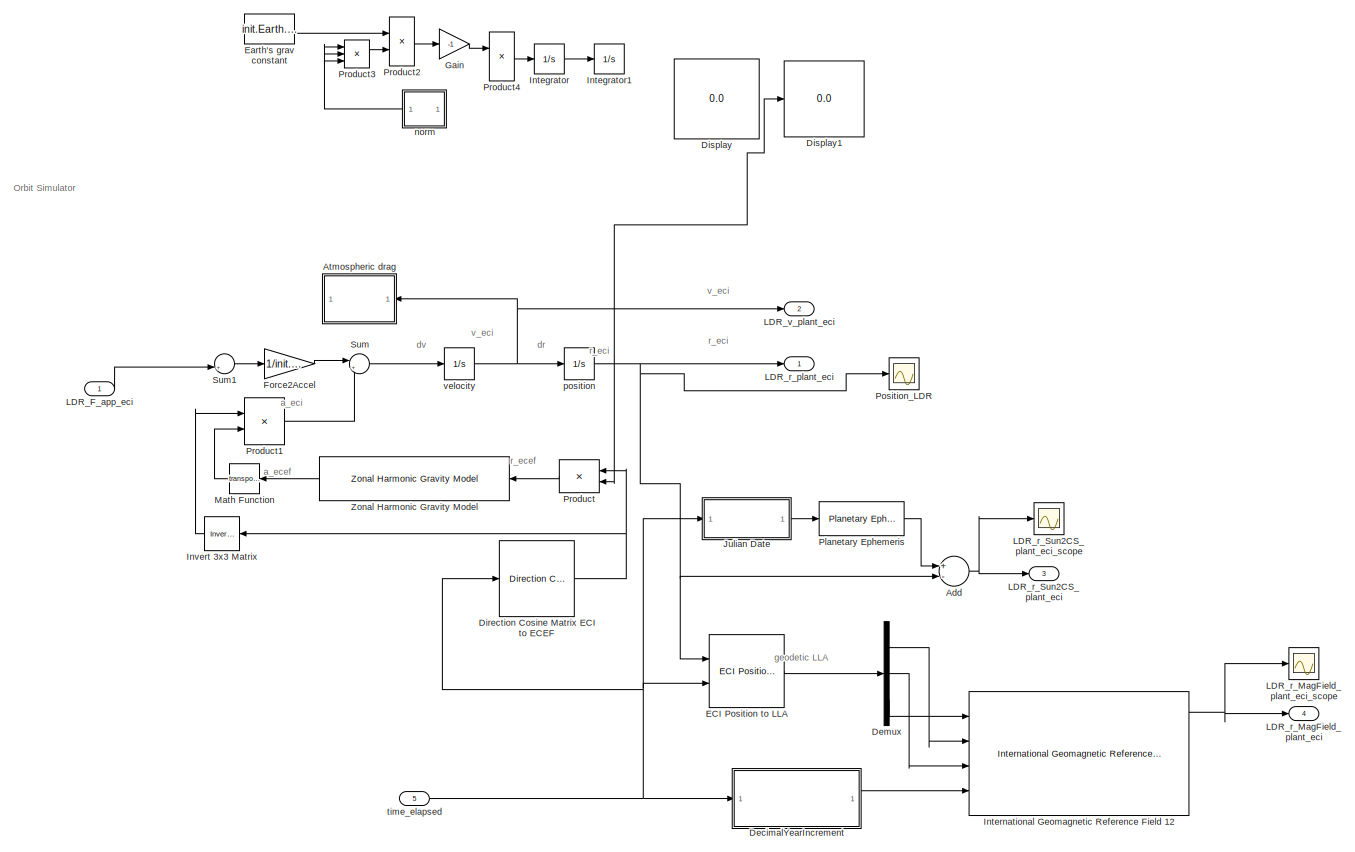
[diagram: LDR_Plant - part 1/2, full width, middle band]
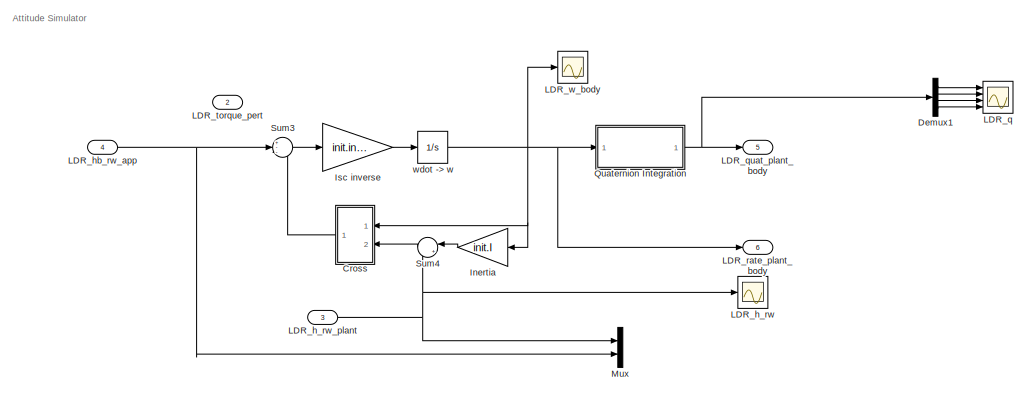
[diagram: LDR_Plant - part 2/2, full width, bottom band]
BLOCK [SubSystem] LDR_Plant
  Ports = [5, 6]
  RequestExecContextInheritance = off
  Variant = off
BLOCK [Sum] LDR_Plant/Add
  InputSameDT = off
  Inputs = +-
  OutDataTypeStr = Inherit: Inherit via internal rule
  Ports = [2, 1]
  SaturateOnIntegerOverflow = off
BLOCK [SubSystem] LDR_Plant/Atmospheric drag
  ErrorFcn = Stateflow.Translate.translate
  PermitHierarchicalResolution = ExplicitOnly
  Ports = [1, 1]
  RequestExecContextInheritance = off
  SFBlockType = MATLAB Function
  TreatAsAtomicUnit = on
  Variant = off
BLOCK [Demux] LDR_Plant/Atmospheric drag/ Demux 
  Outputs = 1
  Ports = [1, 1]
BLOCK [S-Function] LDR_Plant/Atmospheric drag/ SFunction 
  EnableBusSupport = on
  FunctionName = sf_sfun
  PortCounts = [1 2]
  Ports = [1, 2]
  SFcnIsStateOwnerBlock = off
  SFunctionDeploymentMode = off
  Tag = Stateflow S-Function top_model_rw_desatTest 7
BLOCK [Terminator] LDR_Plant/Atmospheric drag/ Terminator 
BLOCK [Outport] LDR_Plant/Atmospheric drag/drag
  IconDisplay = Port number
BLOCK [Inport] LDR_Plant/Atmospheric drag/velocity
  IconDisplay = Port number
BLOCK [SubSystem] LDR_Plant/Cross
  Ports = [2, 1]
  RequestExecContextInheritance = off
  Variant = off
BLOCK [Inport] LDR_Plant/Cross/A
  IconDisplay = Port number
BLOCK [Outport] LDR_Plant/Cross/AxB
  IconDisplay = Port number
  InitialOutput = 0
BLOCK [Inport] LDR_Plant/Cross/B
  IconDisplay = Port number
  Port = 2
BLOCK [Mux] LDR_Plant/Cross/Mux4
  Inputs = 3
  Ports = [3, 1]
BLOCK [Product] LDR_Plant/Cross/Product
  Ports = [2, 1]
  RndMeth = Floor
BLOCK [Product] LDR_Plant/Cross/Product1
  Ports = [2, 1]
  RndMeth = Floor
BLOCK [Product] LDR_Plant/Cross/Product2
  Ports = [2, 1]
  RndMeth = Floor
BLOCK [Product] LDR_Plant/Cross/Product3
  Ports = [2, 1]
  RndMeth = Floor
BLOCK [Product] LDR_Plant/Cross/Product4
  Ports = [2, 1]
  RndMeth = Floor
BLOCK [Product] LDR_Plant/Cross/Product5
  Ports = [2, 1]
  RndMeth = Floor
BLOCK [Sum] LDR_Plant/Cross/Sum
  Inputs = +-
  Ports = [2, 1]
BLOCK [Sum] LDR_Plant/Cross/Sum1
  Inputs = +-
  Ports = [2, 1]
BLOCK [Sum] LDR_Plant/Cross/Sum2
  Inputs = +-
  Ports = [2, 1]
BLOCK [Demux] LDR_Plant/Cross/demux2
  Outputs = 3
  Ports = [1, 3]
BLOCK [Demux] LDR_Plant/Cross/demux3
  Outputs = 3
  Ports = [1, 3]
BLOCK [SubSystem] LDR_Plant/DecimalYearIncrement
  Ports = [1, 1]
  RequestExecContextInheritance = off
  Variant = off
BLOCK [Sum] LDR_Plant/DecimalYearIncrement/Add
  InputSameDT = off
  OutDataTypeStr = Inherit: Inherit via internal rule
  Ports = [2, 1]
  SaturateOnIntegerOverflow = off
BLOCK [Constant] LDR_Plant/DecimalYearIncrement/Constant
  Value = init.year
BLOCK [Constant] LDR_Plant/DecimalYearIncrement/Constant1
  Value = init.month
BLOCK [Constant] LDR_Plant/DecimalYearIncrement/Constant2
  Value = init.day
BLOCK [Constant] LDR_Plant/DecimalYearIncrement/Constant3
  Value = init.hour
BLOCK [Constant] LDR_Plant/DecimalYearIncrement/Constant4
  Value = init.min
BLOCK [Constant] LDR_Plant/DecimalYearIncrement/Constant5
  Value = init.min
BLOCK [Outport] LDR_Plant/DecimalYearIncrement/DecimalYear
  IconDisplay = Port number
BLOCK [Product] LDR_Plant/DecimalYearIncrement/Divide
  InputSameDT = off
  Inputs = */
  OutDataTypeStr = Inherit: Inherit via internal rule
  Ports = [2, 1]
  RndMeth = Floor
  SaturateOnIntegerOverflow = off
BLOCK [SubSystem] LDR_Plant/DecimalYearIncrement/MATLAB Function
  ErrorFcn = Stateflow.Translate.translate
  PermitHierarchicalResolution = ExplicitOnly
  Ports = [6, 1]
  RequestExecContextInheritance = off
  SFBlockType = MATLAB Function
  TreatAsAtomicUnit = on
  Variant = off
BLOCK [Demux] LDR_Plant/DecimalYearIncrement/MATLAB Function/ Demux 
  Outputs = 1
  Ports = [1, 1]
BLOCK [S-Function] LDR_Plant/DecimalYearIncrement/MATLAB Function/ SFunction 
  EnableBusSupport = on
  FunctionName = sf_sfun
  PortCounts = [6 2]
  Ports = [6, 2]
  SFcnIsStateOwnerBlock = off
  SFunctionDeploymentMode = off
  Tag = Stateflow S-Function top_model_rw_desatTest 9
BLOCK [Terminator] LDR_Plant/DecimalYearIncrement/MATLAB Function/ Terminator 
BLOCK [Outport] LDR_Plant/DecimalYearIncrement/MATLAB Function/DecimalYear
  IconDisplay = Port number
BLOCK [Inport] LDR_Plant/DecimalYearIncrement/MATLAB Function/day
  IconDisplay = Port number
  Port = 3
BLOCK [Inport] LDR_Plant/DecimalYearIncrement/MATLAB Function/hour
  IconDisplay = Port number
  Port = 4
BLOCK [Inport] LDR_Plant/DecimalYearIncrement/MATLAB Function/minute
  IconDisplay = Port number
  Port = 5
BLOCK [Inport] LDR_Plant/DecimalYearIncrement/MATLAB Function/month
  IconDisplay = Port number
  Port = 2
BLOCK [Inport] LDR_Plant/DecimalYearIncrement/MATLAB Function/second
  IconDisplay = Port number
  Port = 6
BLOCK [Inport] LDR_Plant/DecimalYearIncrement/MATLAB Function/year
  IconDisplay = Port number
BLOCK [Product] LDR_Plant/DecimalYearIncrement/Product2
  InputSameDT = off
  Inputs = */
  OutDataTypeStr = Inherit: Inherit via internal rule
  Ports = [2, 1]
  RndMeth = Floor
  SaturateOnIntegerOverflow = off
BLOCK [Inport] LDR_Plant/DecimalYearIncrement/clock_sec
  IconDisplay = Port number
BLOCK [Constant] LDR_Plant/DecimalYearIncrement/day2decimalYear
  Value = 365
BLOCK [Constant] LDR_Plant/DecimalYearIncrement/sec2day
  Value = 86400
BLOCK [Demux] LDR_Plant/Demux
  DisplayOption = bar
  Outputs = 3
  Ports = [1, 3]
BLOCK [Demux] LDR_Plant/Demux1
  DisplayOption = bar
  Ports = [1, 4]
BLOCK [Reference] LDR_Plant/Direction Cosine Matrix ECI to ECEF  REF=aerolibtransform2/Direction Cosine Matrix
ECI to ECEF
  AttributesFormatString = %<red>
  Ports = [1, 1]
  SourceBlock = aerolibtransform2/Direction Cosine Matrix\nECI to ECEF
  SourceProductBaseCode = AE
  SourceProductName = Aerospace Blockset
  SourceType = DCMECItoECEF
BLOCK [Display] LDR_Plant/Display
  Decimation = 1
  Ports = [1]
BLOCK [Display] LDR_Plant/Display1
  Decimation = 1
  Ports = [1]
BLOCK [Reference] LDR_Plant/ECI Position to LLA  REF=aerolibtransform2/ECI Position to LLA
  AttributesFormatString = %<red>
  Ports = [2, 1]
  SourceBlock = aerolibtransform2/ECI Position to LLA
  SourceProductBaseCode = AE
  SourceProductName = Aerospace Blockset
  SourceType = ECItoLLA
BLOCK [Constant] LDR_Plant/Earth's grav constant
  Value = init.Earth.mu
BLOCK [Gain] LDR_Plant/Force2Accel
  Gain = 1/init.CubeSat.M
  OutDataTypeStr = Inherit: Inherit via internal rule
  ParamDataTypeStr = Inherit: Inherit via internal rule
  SaturateOnIntegerOverflow = off
BLOCK [Gain] LDR_Plant/Gain
  Gain = -1
BLOCK [Gain] LDR_Plant/Inertia
  Gain = init.I
  Multiplication = Matrix(K*u)
BLOCK [Integrator] LDR_Plant/Integrator
  InitialCondition = init.LDR.V
  Ports = [1, 1]
BLOCK [Integrator] LDR_Plant/Integrator1
  InitialCondition = init.LDR.P
  Ports = [1, 1]
BLOCK [Reference] LDR_Plant/International Geomagnetic Reference Field 12  REF=aerolibgravity2/International Geomagnetic Reference Field 12
  Ports = [4, 5]
  SourceBlock = aerolibgravity2/International Geomagnetic Reference Field 12
  SourceProductBaseCode = AE
  SourceProductName = Aerospace Blockset
  SourceType = InternationalGeomagneticReferenceField12
BLOCK [Reference] LDR_Plant/Invert 3x3 Matrix  REF=aerolibutil/Invert 
3x3 Matrix
  Ports = [1, 1]
  SourceBlock = aerolibutil/Invert \n3x3 Matrix
  SourceProductBaseCode = AE
  SourceProductName = Aerospace Blockset
  SourceType = Invert 3x3 Matrix
BLOCK [Gain] LDR_Plant/Isc inverse
  Gain = init.invI
  Multiplication = Matrix(K*u)
BLOCK [SubSystem] LDR_Plant/Julian Date
  Ports = [1, 1]
  RequestExecContextInheritance = off
  Variant = off
BLOCK [Bias] LDR_Plant/Julian Date/Bias1
  Bias = 1
  SaturateOnIntegerOverflow = off
BLOCK [Bias] LDR_Plant/Julian Date/Bias2
  Bias = 2
  SaturateOnIntegerOverflow = off
BLOCK [Bias] LDR_Plant/Julian Date/BiasDay
  Bias = -1524.5
  SaturateOnIntegerOverflow = off
BLOCK [Bias] LDR_Plant/Julian Date/BiasYear
  Bias = 4716
  SaturateOnIntegerOverflow = off
BLOCK [Gain] LDR_Plant/Julian Date/Gain
  Gain = 365.25
  OutDataTypeStr = Inherit: Inherit via internal rule
  ParamDataTypeStr = Inherit: Inherit via internal rule
  SaturateOnIntegerOverflow = off
BLOCK [Gain] LDR_Plant/Julian Date/Gain1
  Gain = 30.6001
  OutDataTypeStr = Inherit: Inherit via internal rule
  ParamDataTypeStr = Inherit: Inherit via internal rule
  SaturateOnIntegerOverflow = off
BLOCK [Gain] LDR_Plant/Julian Date/Gain2
  Gain = 1/100
  OutDataTypeStr = Inherit: Inherit via internal rule
  ParamDataTypeStr = Inherit: Inherit via internal rule
  SaturateOnIntegerOverflow = off
BLOCK [Gain] LDR_Plant/Julian Date/Gain3
  Gain = 1/4
  OutDataTypeStr = Inherit: Inherit via internal rule
  ParamDataTypeStr = Inherit: Inherit via internal rule
  SaturateOnIntegerOverflow = off
BLOCK [Gain] LDR_Plant/Julian Date/Gain4
  Gain = 1/24
  OutDataTypeStr = Inherit: Inherit via internal rule
  ParamDataTypeStr = Inherit: Inherit via internal rule
  SaturateOnIntegerOverflow = off
BLOCK [Gain] LDR_Plant/Julian Date/Gain5
  Gain = 1/60
  OutDataTypeStr = Inherit: Inherit via internal rule
  ParamDataTypeStr = Inherit: Inherit via internal rule
  SaturateOnIntegerOverflow = off
BLOCK [Gain] LDR_Plant/Julian Date/Gain6
  Gain = 1/3600
  OutDataTypeStr = Inherit: Inherit via internal rule
  ParamDataTypeStr = Inherit: Inherit via internal rule
  SaturateOnIntegerOverflow = off
BLOCK [If] LDR_Plant/Julian Date/If
  IfExpression = u1 <= 2
  Ports = [1, 2]
BLOCK [Reference] LDR_Plant/Julian Date/If Action Subsystem  REF=aerolibconvert2/Julian Date Conversion/If Action
Subsystem
  Ports = [2, 2, 0, 0, 0, 0, 0, 1]
  SourceBlock = aerolibconvert2/Julian Date Conversion/If Action\nSubsystem
  SourceProductBaseCode = AE
  SourceProductName = Aerospace Blockset
  SourceType = SubSystem
BLOCK [Reference] LDR_Plant/Julian Date/If Action Subsystem1  REF=aerolibconvert2/Julian Date Conversion/If Action
Subsystem1
  Ports = [2, 2, 0, 0, 0, 0, 0, 1]
  SourceBlock = aerolibconvert2/Julian Date Conversion/If Action\nSubsystem1
  SourceProductBaseCode = AE
  SourceProductName = Aerospace Blockset
  SourceType = SubSystem
BLOCK [Outport] LDR_Plant/Julian Date/Julian Date
  IconDisplay = Port number
BLOCK [Merge] LDR_Plant/Julian Date/Merge
  Ports = [2, 1]
BLOCK [Merge] LDR_Plant/Julian Date/Merge1
  Ports = [2, 1]
BLOCK [Rounding] LDR_Plant/Julian Date/Rounding Function
BLOCK [Rounding] LDR_Plant/Julian Date/Rounding Function1
BLOCK [Rounding] LDR_Plant/Julian Date/Rounding Function2
BLOCK [Rounding] LDR_Plant/Julian Date/Rounding Function3
BLOCK [Sum] LDR_Plant/Julian Date/Sum10
  IconShape = round
  InputSameDT = off
  Inputs = |++
  OutDataTypeStr = Inherit: Inherit via internal rule
  Ports = [2, 1]
  SaturateOnIntegerOverflow = off
BLOCK [Sum] LDR_Plant/Julian Date/Sum11
  InputSameDT = off
  Inputs = +++
  OutDataTypeStr = Inherit: Inherit via internal rule
  Ports = [3, 1]
  SaturateOnIntegerOverflow = off
BLOCK [Sum] LDR_Plant/Julian Date/Sum5
  IconShape = round
  InputSameDT = off
  Inputs = |++
  OutDataTypeStr = Inherit: Inherit via internal rule
  Ports = [2, 1]
  SaturateOnIntegerOverflow = off
BLOCK [Sum] LDR_Plant/Julian Date/Sum6
  IconShape = round
  InputSameDT = off
  Inputs = |+-
  OutDataTypeStr = Inherit: Inherit via internal rule
  Ports = [2, 1]
  SaturateOnIntegerOverflow = off
BLOCK [Sum] LDR_Plant/Julian Date/Sum7
  IconShape = round
  InputSameDT = off
  Inputs = |++
  OutDataTypeStr = Inherit: Inherit via internal rule
  Ports = [2, 1]
  SaturateOnIntegerOverflow = off
BLOCK [Sum] LDR_Plant/Julian Date/Sum8
  IconShape = round
  InputSameDT = off
  Inputs = |++
  OutDataTypeStr = Inherit: Inherit via internal rule
  Ports = [2, 1]
  SaturateOnIntegerOverflow = off
BLOCK [Sum] LDR_Plant/Julian Date/Sum9
  IconShape = round
  InputSameDT = off
  Inputs = |++
  OutDataTypeStr = Inherit: Inherit via internal rule
  Ports = [2, 1]
  SaturateOnIntegerOverflow = off
BLOCK [Constant] LDR_Plant/Julian Date/day
  Value = init.day
BLOCK [Inport] LDR_Plant/Julian Date/deltaT
  IconDisplay = Port number
  OutMin = 0
  PortDimensions = 1
  VarSizeSig = No
BLOCK [Constant] LDR_Plant/Julian Date/hour
  Value = init.hour
BLOCK [Constant] LDR_Plant/Julian Date/min
  Value = init.min
BLOCK [Constant] LDR_Plant/Julian Date/month
  Value = init.month
BLOCK [Constant] LDR_Plant/Julian Date/sec
  Value = init.sec
BLOCK [Constant] LDR_Plant/Julian Date/year
  Value = init.year
BLOCK [Inport] LDR_Plant/LDR_F_app_eci
  IconDisplay = Port number
BLOCK [Scope] LDR_Plant/LDR_h_rw 
  NumInputPorts = 1
  Ports = [1]
  ScopeSpecificationString = Simulink.scopes.TimeScopeBlockCfg('CurrentConfiguration', extmgr.ConfigurationSet(extmgr.Configuration('Core','General UI',true),extmgr.Configuration('Core','Source UI',true),extmgr.Configuration('Sources','WiredSimulink',true,'DataLoggingVariableName','ScopeData2'),extmgr.Configuration('Visuals','Time Domain',true,'SerializedDisplays',{struct('MinYLimReal','-41.63623','MaxYLimReal','308.53736','Y...<+1512ch>
BLOCK [Inport] LDR_Plant/LDR_h_rw_plant
  IconDisplay = Port number
  Port = 3
BLOCK [Inport] LDR_Plant/LDR_hb_rw_app
  IconDisplay = Port number
  Port = 4
BLOCK [Scope] LDR_Plant/LDR_q
  NumInputPorts = 4
  Ports = [4]
  ScopeSpecificationString = Simulink.scopes.TimeScopeBlockCfg('CurrentConfiguration', extmgr.ConfigurationSet(extmgr.Configuration('Core','General UI',true),extmgr.Configuration('Core','Source UI',true),extmgr.Configuration('Sources','WiredSimulink',true,'DataLoggingVariableName','ScopeData5'),extmgr.Configuration('Visuals','Time Domain',true,'SerializedDisplays',{struct('MinYLimReal','-1.00000','MaxYLimReal','1.00000','YLab...<+3506ch>
BLOCK [Outport] LDR_Plant/LDR_quat_plant_body
  IconDisplay = Port number
  Port = 5
BLOCK [Outport] LDR_Plant/LDR_r_MagField_plant_eci
  IconDisplay = Port number
  Port = 4
BLOCK [Scope] LDR_Plant/LDR_r_MagField_plant_eci_scope
  NumInputPorts = 1
  Ports = [1]
  ScopeSpecificationString = Simulink.scopes.TimeScopeBlockCfg('CurrentConfiguration', extmgr.ConfigurationSet(extmgr.Configuration('Core','General UI',true),extmgr.Configuration('Core','Source UI',true),extmgr.Configuration('Sources','WiredSimulink',true,'DataLoggingVariableName','ScopeData1'),extmgr.Configuration('Visuals','Time Domain',true,'SerializedDisplays',{struct('MinYLimReal','-16451.84709','MaxYLimReal','28562.5272...<+1643ch>
BLOCK [Outport] LDR_Plant/LDR_r_Sun2CS_plant_eci
  IconDisplay = Port number
  Port = 3
BLOCK [Scope] LDR_Plant/LDR_r_Sun2CS_plant_eci_scope
  NumInputPorts = 1
  Ports = [1]
  ScopeSpecificationString = Simulink.scopes.TimeScopeBlockCfg('CurrentConfiguration', extmgr.ConfigurationSet(extmgr.Configuration('Core','General UI',true),extmgr.Configuration('Core','Source UI',true),extmgr.Configuration('Sources','WiredSimulink',true),extmgr.Configuration('Visuals','Time Domain',true,'SerializedDisplays',{struct('MinYLimReal','-5924792.25298','MaxYLimReal','154606686.91617','YLabelReal','','MinYLimMag','...<+1520ch>
BLOCK [Outport] LDR_Plant/LDR_r_plant_eci
  IconDisplay = Port number
BLOCK [Outport] LDR_Plant/LDR_rate_plant_body
  IconDisplay = Port number
  Port = 6
BLOCK [Inport] LDR_Plant/LDR_torque_pert 
  IconDisplay = Port number
  Port = 2
BLOCK [Outport] LDR_Plant/LDR_v_plant_eci
  IconDisplay = Port number
  Port = 2
BLOCK [Scope] LDR_Plant/LDR_w_body
  NumInputPorts = 1
  Ports = [1]
  ScopeSpecificationString = Simulink.scopes.TimeScopeBlockCfg('CurrentConfiguration', extmgr.ConfigurationSet(extmgr.Configuration('Core','General UI',true),extmgr.Configuration('Core','Source UI',true),extmgr.Configuration('Sources','WiredSimulink',true,'DataLoggingVariableName','ScopeData3'),extmgr.Configuration('Visuals','Time Domain',true,'SerializedDisplays',{struct('MinYLimReal','-0.00000009','MaxYLimReal','0.00000002'...<+1598ch>
BLOCK [Math] LDR_Plant/Math Function
  Operator = transpose
  Ports = [1, 1]
BLOCK [Mux] LDR_Plant/Mux
  DisplayOption = bar
  Inputs = 2
  Ports = [2, 1]
BLOCK [Reference] LDR_Plant/Planetary Ephemeris  REF=aerolibcelestial/Planetary Ephemeris
  Ports = [1, 1]
  SourceBlock = aerolibcelestial/Planetary Ephemeris
  SourceProductBaseCode = AE
  SourceProductName = Aerospace Blockset
  SourceType = PlanetaryEphemeris
BLOCK [Scope] LDR_Plant/Position_LDR
  NumInputPorts = 1
  Ports = [1]
  ScopeSpecificationString = Simulink.scopes.TimeScopeBlockCfg('CurrentConfiguration', extmgr.ConfigurationSet(extmgr.Configuration('Core','General UI',true),extmgr.Configuration('Core','Source UI',true),extmgr.Configuration('Sources','WiredSimulink',true,'DataLoggingVariableName','ScopeData1'),extmgr.Configuration('Visuals','Time Domain',true,'SerializedDisplays',{struct('MinYLimReal','-8439700.75322','MaxYLimReal','8449562....<+1610ch>
BLOCK [Product] LDR_Plant/Product
  InputSameDT = off
  Multiplication = Matrix(*)
  OutDataTypeStr = Inherit: Inherit via internal rule
  Ports = [2, 1]
  RndMeth = Floor
  SaturateOnIntegerOverflow = off
BLOCK [Product] LDR_Plant/Product1
  InputSameDT = off
  Multiplication = Matrix(*)
  OutDataTypeStr = Inherit: Inherit via internal rule
  Ports = [2, 1]
  RndMeth = Floor
  SaturateOnIntegerOverflow = off
BLOCK [Product] LDR_Plant/Product2
  InputSameDT = off
  Inputs = */
  Ports = [2, 1]
  RndMeth = Floor
BLOCK [Product] LDR_Plant/Product3
  InputSameDT = off
  Inputs = ***
  Ports = [3, 1]
  RndMeth = Floor
BLOCK [Product] LDR_Plant/Product4
  InputSameDT = off
  Inputs = **
  Ports = [2, 1]
  RndMeth = Floor
BLOCK [SubSystem] LDR_Plant/Quaternion Integration
  Ports = [1, 1]
  RequestExecContextInheritance = off
  Variant = off
BLOCK [Gain] LDR_Plant/Quaternion Integration/Gain
  Gain = -1
  OutDataTypeStr = Inherit: Inherit via internal rule
  ParamDataTypeStr = Inherit: Inherit via internal rule
  SaturateOnIntegerOverflow = off
BLOCK [Integrator] LDR_Plant/Quaternion Integration/Integrator1
  ContinuousStateAttributes = 'quaternion_plant'
  InitialCondition = init.LDR.q_init
  Ports = [1, 1]
BLOCK [Selector] LDR_Plant/Quaternion Integration/Selector
  IndexOptions = Index vector (dialog)
  Indices = 4
  InputPortWidth = 4
  OutputSizes = 1
  Ports = [1, 1]
BLOCK [Switch] LDR_Plant/Quaternion Integration/Switch
  Criteria = u2 > Threshold
  InputSameDT = off
  SaturateOnIntegerOverflow = off
BLOCK [Outport] LDR_Plant/Quaternion Integration/q_I_Body
  IconDisplay = Port number
BLOCK [SubSystem] LDR_Plant/Quaternion Integration/q_normalize
  Ports = [1, 1]
  RequestExecContextInheritance = off
  Variant = off
BLOCK [DotProduct] LDR_Plant/Quaternion Integration/q_normalize/Dot Product
  OutDataTypeStr = Inherit: Inherit via internal rule
BLOCK [Math] LDR_Plant/Quaternion Integration/q_normalize/Math Function
  Operator = sqrt
  Ports = [1, 1]
BLOCK [Product] LDR_Plant/Quaternion Integration/q_normalize/Product
  Inputs = */
  Ports = [2, 1]
  RndMeth = Floor
BLOCK [Inport] LDR_Plant/Quaternion Integration/q_normalize/q_in
  IconDisplay = Port number
  PortDimensions = 4
BLOCK [Outport] LDR_Plant/Quaternion Integration/q_normalize/q_out
  IconDisplay = Port number
BLOCK [SubSystem] LDR_Plant/Quaternion Integration/qderiv
  Ports = [2, 1]
  RequestExecContextInheritance = off
  Variant = off
BLOCK [Mux] LDR_Plant/Quaternion Integration/qderiv/Mux
  DisplayOption = bar
  Inputs = 2
  Ports = [2, 1]
BLOCK [Mux] LDR_Plant/Quaternion Integration/qderiv/Mux1
  DisplayOption = bar
  Ports = [4, 1]
BLOCK [Inport] LDR_Plant/Quaternion Integration/qderiv/q
  IconDisplay = Port number
  Port = 2
BLOCK [Outport] LDR_Plant/Quaternion Integration/qderiv/qd
  IconDisplay = Port number
BLOCK [Fcn] LDR_Plant/Quaternion Integration/qderiv/qd1
  Expr = (u(7)*u(1)-u(6)*u(2)+u(5)*u(3))/2
BLOCK [Fcn] LDR_Plant/Quaternion Integration/qderiv/qd2
  Expr = (u(6)*u(1)+u(7)*u(2)-u(4)*u(3))/2
BLOCK [Fcn] LDR_Plant/Quaternion Integration/qderiv/qd3
  Expr = (-u(5)*u(1)+u(4)*u(2)+u(7)*u(3))/2
BLOCK [Fcn] LDR_Plant/Quaternion Integration/qderiv/qd4
  Expr = (-u(4)*u(1)-u(5)*u(2)-u(6)*u(3))/2
BLOCK [Inport] LDR_Plant/Quaternion Integration/qderiv/w
  IconDisplay = Port number
BLOCK [Inport] LDR_Plant/Quaternion Integration/w_Body
  IconDisplay = Port number
BLOCK [Sum] LDR_Plant/Sum
  IconShape = round
  InputSameDT = off
  Inputs = |++
  OutDataTypeStr = Inherit: Inherit via internal rule
  Ports = [2, 1]
  SaturateOnIntegerOverflow = off
BLOCK [Sum] LDR_Plant/Sum1
  IconShape = round
  InputSameDT = off
  Inputs = |++
  OutDataTypeStr = Inherit: Inherit via internal rule
  Ports = [2, 1]
  SaturateOnIntegerOverflow = off
BLOCK [Sum] LDR_Plant/Sum3
  IconShape = round
  Inputs = +--
  Ports = [3, 1]
BLOCK [Sum] LDR_Plant/Sum4
  IconShape = round
  InputSameDT = off
  Inputs = |++
  OutDataTypeStr = Inherit: Inherit via internal rule
  Ports = [2, 1]
  SaturateOnIntegerOverflow = off
BLOCK [Reference] LDR_Plant/Zonal Harmonic Gravity Model  REF=aerolibgravity2/Zonal Harmonic Gravity Model
  Ports = [1, 1]
  SourceBlock = aerolibgravity2/Zonal Harmonic Gravity Model
  SourceProductBaseCode = AE
  SourceProductName = Aerospace Blockset
  SourceType = Zonal Harmonic Gravity Model
BLOCK [SubSystem] LDR_Plant/norm
  Ports = [1, 1]
  RequestExecContextInheritance = off
  Variant = off
BLOCK [DotProduct] LDR_Plant/norm/Dot Product
  OutDataTypeStr = Inherit: Inherit via internal rule
BLOCK [Math] LDR_Plant/norm/Math Function
  Operator = sqrt
  Ports = [1, 1]
BLOCK [Saturate] LDR_Plant/norm/Saturation
  InputPortMap = u0
  LowerLimit = 1e-10
  Ports = [1, 1]
  UpperLimit = 1e20
BLOCK [Inport] LDR_Plant/norm/v
  IconDisplay = Port number
BLOCK [Outport] LDR_Plant/norm/|v|
  IconDisplay = Port number
BLOCK [Integrator] LDR_Plant/position
  ContinuousStateAttributes = 'position'
  InitialCondition = init.LDR.P
  Ports = [1, 1]
BLOCK [Inport] LDR_Plant/time_elapsed
  IconDisplay = Port number
  Port = 5
BLOCK [Integrator] LDR_Plant/velocity
  ContinuousStateAttributes = 'velocity'
  InitialCondition = init.LDR.V
  Ports = [1, 1]
BLOCK [Integrator] LDR_Plant/wdot -> w
  InitialCondition = init.LDR.wbn
  Ports = [1, 1]
BLOCK [SubSystem] LDR_Sensor Model
  Ports = [7, 5]
  RequestExecContextInheritance = off
  Variant = off
BLOCK [Reference] LDR_Sensor Model/Direction Cosine Matrix ECI to ECEF  REF=aerolibtransform2/Direction Cosine Matrix
ECI to ECEF
  AttributesFormatString = %<red>
  Ports = [1, 1]
  SourceBlock = aerolibtransform2/Direction Cosine Matrix\nECI to ECEF
  SourceProductBaseCode = AE
  SourceProductName = Aerospace Blockset
  SourceType = DCMECItoECEF
BLOCK [Inport] LDR_Sensor Model/LDR_quat_plant_body
  IconDisplay = Port number
  Port = 5
BLOCK [Inport] LDR_Sensor Model/LDR_r_MagField_plant_eci
  IconDisplay = Port number
  Port = 4
BLOCK [Outport] LDR_Sensor Model/LDR_r_MagField_sensor_body
  IconDisplay = Port number
  Port = 4
BLOCK [Inport] LDR_Sensor Model/LDR_r_Sun2CS_plant_eci
  IconDisplay = Port number
  Port = 3
BLOCK [Outport] LDR_Sensor Model/LDR_r_Sun2CS_sensor_body
  IconDisplay = Port number
  Port = 3
BLOCK [Inport] LDR_Sensor Model/LDR_r_plant_eci
  IconDisplay = Port number
BLOCK [Outport] LDR_Sensor Model/LDR_r_sensor_ecef
  IconDisplay = Port number
BLOCK [Outport] LDR_Sensor Model/LDR_rate_calc_body
  IconDisplay = Port number
  Port = 5
BLOCK [Inport] LDR_Sensor Model/LDR_rate_plant_body
  IconDisplay = Port number
  Port = 6
BLOCK [Inport] LDR_Sensor Model/LDR_v_plant_eci
  IconDisplay = Port number
  Port = 2
BLOCK [Outport] LDR_Sensor Model/LDR_v_sensor_ecef
  IconDisplay = Port number
  Port = 2
BLOCK [Product] LDR_Sensor Model/Matrix Multiply
  InputSameDT = off
  Multiplication = Matrix(*)
  OutDataTypeStr = Inherit: Inherit via internal rule
  Ports = [2, 1]
  RndMeth = Floor
  SaturateOnIntegerOverflow = off
BLOCK [Product] LDR_Sensor Model/Matrix Multiply1
  InputSameDT = off
  Multiplication = Matrix(*)
  OutDataTypeStr = Inherit: Inherit via internal rule
  Ports = [2, 1]
  RndMeth = Floor
  SaturateOnIntegerOverflow = off
BLOCK [Product] LDR_Sensor Model/Matrix Multiply2
  InputSameDT = off
  Multiplication = Matrix(*)
  OutDataTypeStr = Inherit: Inherit via internal rule
  Ports = [2, 1]
  RndMeth = Floor
  SaturateOnIntegerOverflow = off
BLOCK [Product] LDR_Sensor Model/Matrix Multiply3
  InputSameDT = off
  Multiplication = Matrix(*)
  OutDataTypeStr = Inherit: Inherit via internal rule
  Ports = [2, 1]
  RndMeth = Floor
  SaturateOnIntegerOverflow = off
BLOCK [SubSystem] LDR_Sensor Model/quat to DCM
  Ports = [1, 1]
  RequestExecContextInheritance = off
  ShowPortLabels = none
  Variant = off
BLOCK [Outport] LDR_Sensor Model/quat to DCM/DCM
  IconDisplay = Port number
  InitialOutput = 0
BLOCK [Demux] LDR_Sensor Model/quat to DCM/Demux
  Ports = [1, 4]
BLOCK [Gain] LDR_Sensor Model/quat to DCM/Gain1
  Gain = 2
BLOCK [Gain] LDR_Sensor Model/quat to DCM/Gain2
  Gain = 2
BLOCK [Gain] LDR_Sensor Model/quat to DCM/Matrix Gain
  Gain = eye(3,3)
BLOCK [Mux] LDR_Sensor Model/quat to DCM/Mux
  DisplayOption = bar
  Inputs = 3
  Ports = [3, 1]
BLOCK [Product] LDR_Sensor Model/quat to DCM/Product
  Ports = [2, 1]
  RndMeth = Floor
BLOCK [Product] LDR_Sensor Model/quat to DCM/Product1
  Ports = [2, 1]
  RndMeth = Floor
BLOCK [SubSystem] LDR_Sensor Model/quat to DCM/Subsystem
  Ports = [1, 1]
  RequestExecContextInheritance = off
  Variant = off
BLOCK [Reshape] LDR_Sensor Model/quat to DCM/Subsystem/3x3
  OutputDimensionality = Customize
  OutputDimensions = [3,3]
  Ports = [1, 1]
BLOCK [Demux] LDR_Sensor Model/quat to DCM/Subsystem/Demux
  Outputs = 3
  Ports = [1, 3]
BLOCK [Gain] LDR_Sensor Model/quat to DCM/Subsystem/Gain
  Gain = -1
BLOCK [Gain] LDR_Sensor Model/quat to DCM/Subsystem/Gain1
  Gain = -1
BLOCK [Gain] LDR_Sensor Model/quat to DCM/Subsystem/Gain2
  Gain = -1
BLOCK [Inport] LDR_Sensor Model/quat to DCM/Subsystem/In1
  IconDisplay = Port number
BLOCK [Mux] LDR_Sensor Model/quat to DCM/Subsystem/Mux
  DisplayOption = bar
  Inputs = 9
  Ports = [9, 1]
BLOCK [Outport] LDR_Sensor Model/quat to DCM/Subsystem/Out1
  IconDisplay = Port number
BLOCK [Constant] LDR_Sensor Model/quat to DCM/Subsystem/diag 0 
  Value = 0
BLOCK [Sum] LDR_Sensor Model/quat to DCM/Sum1
  IconShape = round
  Inputs = |+-
  Ports = [2, 1]
BLOCK [Sum] LDR_Sensor Model/quat to DCM/Sum8
  IconShape = round
  Inputs = |+-+
  Ports = [3, 1]
BLOCK [Math] LDR_Sensor Model/quat to DCM/T1
  Operator = transpose
  Ports = [1, 1]
BLOCK [Math] LDR_Sensor Model/quat to DCM/T2
  Operator = transpose
  Ports = [1, 1]
BLOCK [Inport] LDR_Sensor Model/quat to DCM/e0 e1 e2 e3
  IconDisplay = Port number
BLOCK [Product] LDR_Sensor Model/quat to DCM/qTq
  Multiplication = Matrix(*)
  Ports = [2, 1]
  RndMeth = Floor
BLOCK [Product] LDR_Sensor Model/quat to DCM/qqT
  Multiplication = Matrix(*)
  Ports = [2, 1]
  RndMeth = Floor
BLOCK [Inport] LDR_Sensor Model/time_elapsed
  IconDisplay = Port number
  Port = 7
BLOCK [Scope] Scope
  NumInputPorts = 1
  Ports = [1]
  ScopeSpecificationString = Simulink.scopes.TimeScopeBlockCfg('CurrentConfiguration', extmgr.ConfigurationSet(extmgr.Configuration('Core','General UI',true),extmgr.Configuration('Core','Source UI',true),extmgr.Configuration('Sources','WiredSimulink',true,'DataLoggingVariableName','ScopeData1'),extmgr.Configuration('Visuals','Time Domain',true,'SerializedDisplays',{struct('MinYLimReal','-844599.53563','MaxYLimReal','7601395.8...<+1502ch>
BLOCK [Scope] Scope1
  NumInputPorts = 1
  Ports = [1]
  ScopeSpecificationString = Simulink.scopes.TimeScopeBlockCfg('CurrentConfiguration', extmgr.ConfigurationSet(extmgr.Configuration('Core','General UI',true),extmgr.Configuration('Core','Source UI',true),extmgr.Configuration('Sources','WiredSimulink',true,'DataLoggingVariableName','ScopeData2'),extmgr.Configuration('Visuals','Time Domain',true,'SerializedDisplays',{struct('MinYLimReal','-1.24556','MaxYLimReal','1.24606','YLab...<+1488ch>
BLOCK [Scope] Scope2
  NumInputPorts = 1
  Ports = [1]
  ScopeSpecificationString = Simulink.scopes.TimeScopeBlockCfg('CurrentConfiguration', extmgr.ConfigurationSet(extmgr.Configuration('Core','General UI',true),extmgr.Configuration('Core','Source UI',true),extmgr.Configuration('Sources','WiredSimulink',true,'DataLoggingVariableName','ScopeData3'),extmgr.Configuration('Visuals','Time Domain',true,'SerializedDisplays',{struct('MinYLimReal','-1.00000','MaxYLimReal','1.00000','YLab...<+1445ch>
BLOCK [Sin] Sine Wave
  Frequency = 2*pi/550
  Ports = [0, 1]
  SampleTime = 0
BLOCK [ToWorkspace] To Workspace
  FixptAsFi = on
  MaxDataPoints = inf
  Ports = [1]
  SampleTime = -1
  Save2DSignal = 3-D array (concatenate along third dimension)
  SaveFormat = Timeseries
  VariableName = vec_impulse
BLOCK [ToWorkspace] To Workspace1
  FixptAsFi = on
  MaxDataPoints = inf
  Ports = [1]
  SampleTime = -1
  Save2DSignal = 3-D array (concatenate along third dimension)
  SaveFormat = Timeseries
  VariableName = pos_thrust
BLOCK [ToWorkspace] To Workspace2
  FixptAsFi = on
  MaxDataPoints = inf
  Ports = [1]
  SampleTime = -1
  Save2DSignal = 3-D array (concatenate along third dimension)
  SaveFormat = Timeseries
  VariableName = ontime
BLOCK [Clock] clock
  Decimation = 100
  DisplayTime = on
ANNOTATION Actuator Model1/Rigid Body with Momentum Actuators and energy dissipation: Use DCM to
ANNOTATION Attitude Determination and Desired Attitude/Attitude Determination/Generate reference vectors from Ephemeris and Magnetic Field Model: geodetic LLA
ANNOTATION Attitude Determination and Desired Attitude/Attitude Determination/Generate reference vectors from Ephemeris and Magnetic Field Model/DecimalYearIncrement: day
ANNOTATION Attitude Determination and Desired Attitude1/Attitude Determination/Generate reference vectors from Ephemeris and Magnetic Field Model: geodetic LLA
ANNOTATION Attitude Determination and Desired Attitude1/Attitude Determination/Generate reference vectors from Ephemeris and Magnetic Field Model/DecimalYearIncrement: day
ANNOTATION Controller: 0- Power ON/restart 1- Safe hold 2- Detumble 3- Large angle slew 4- Normal 5- Eclipse 6- Docking
ANNOTATION Controller: 0- Power ON / Restart 1- Detumble 2- Regulation Control 3- Tracking Control 4- Thermal Safe 5- Power Max 6- Large Angle Slew
ANNOTATION Controller/Normal Mode Control System: m = k/|B| * (h-h_ref) X b
ANNOTATION Controller/Propulsion/Subsystem/Activation: current time
ANNOTATION Controller/Propulsion/Subsystem/Activation: t_trig + onTime
ANNOTATION Controller/Propulsion/Subsystem/Activation: time of trigger
ANNOTATION Controller1: 0- Power ON/restart 1- Safe hold 2- Detumble 3- Large angle slew 4- Normal 5- Eclipse 6- Docking
ANNOTATION Controller1: 0- Power ON / Restart 1- Detumble 2- Regulation Control 3- Tracking Control 4- Thermal Safe 5- Power Max 6- Large Angle Slew
ANNOTATION Controller1/Normal Mode Control System: m = k/|B| * (h-h_ref) X b
ANNOTATION Controller1/Propulsion/Subsystem/Activation: current time
ANNOTATION Controller1/Propulsion/Subsystem/Activation: t_trig + onTime
ANNOTATION Controller1/Propulsion/Subsystem/Activation: time of trigger
ANNOTATION FWR_Plant: Attitude Simulator
ANNOTATION FWR_Plant: Orbit Simulator
ANNOTATION FWR_Plant: a_ecef
ANNOTATION FWR_Plant: a_eci
ANNOTATION FWR_Plant: dr
ANNOTATION FWR_Plant: dv
ANNOTATION FWR_Plant: geodetic LLA
ANNOTATION FWR_Plant: r_ecef
ANNOTATION FWR_Plant: r_eci
ANNOTATION FWR_Plant: v_eci
ANNOTATION FWR_Plant/DecimalYearIncrement: day
ANNOTATION FWR_Sensor Model: GPS
ANNOTATION FWR_Sensor Model: Gyroscope
ANNOTATION FWR_Sensor Model: Magnetometer
ANNOTATION FWR_Sensor Model: Sun Sensor
ANNOTATION LDR_Plant: Attitude Simulator
ANNOTATION LDR_Plant: Orbit Simulator
ANNOTATION LDR_Plant: a_ecef
ANNOTATION LDR_Plant: a_eci
ANNOTATION LDR_Plant: dr
ANNOTATION LDR_Plant: dv
ANNOTATION LDR_Plant: geodetic LLA
ANNOTATION LDR_Plant: r_ecef
ANNOTATION LDR_Plant: r_eci
ANNOTATION LDR_Plant: v_eci
ANNOTATION LDR_Plant/DecimalYearIncrement: day
ANNOTATION LDR_Sensor Model: GPS
ANNOTATION LDR_Sensor Model: Gyroscope
ANNOTATION LDR_Sensor Model: Magnetometer
ANNOTATION LDR_Sensor Model: Sun Sensor
LINE Actuator Model/Abs:1 -> Actuator Model/Demux1:1
LINE Actuator Model/Add:1 -> Actuator Model/Gain:1
LINE Actuator Model/Constant1:1 -> Actuator Model/Product1:1
NET Actuator Model/Constant2:1 -> Actuator Model/Switch1:3, Actuator Model/Switch2:3, Actuator Model/Switch:3
LINE Actuator Model/Constant3:1 -> Actuator Model/Add:2
LINE Actuator Model/Constant:1 -> Actuator Model/Product:2
LINE Actuator Model/Demux1:1 -> Actuator Model/Relational Operator:2
LINE Actuator Model/Demux1:2 -> Actuator Model/Relational Operator1:2
LINE Actuator Model/Demux1:3 -> Actuator Model/Relational Operator2:2
LINE Actuator Model/Demux:1 -> Actuator Model/Switch:1
LINE Actuator Model/Demux:2 -> Actuator Model/Switch1:1
LINE Actuator Model/Demux:3 -> Actuator Model/Switch2:1
NET Actuator Model/Gain:1 -> Actuator Model/Relational Operator1:1, Actuator Model/Relational Operator2:1, Actuator Model/Relational Operator:1
LINE Actuator Model/LDR_magField_body:1 -> Actuator Model/nT->T:1
LINE Actuator Model/Product1:1 -> Actuator Model/Demux:1
LINE Actuator Model/Product:1 -> Actuator Model/Abs:1
LINE Actuator Model/Relational Operator1:1 -> Actuator Model/Switch1:2
LINE Actuator Model/Relational Operator2:1 -> Actuator Model/Switch2:2
LINE Actuator Model/Relational Operator:1 -> Actuator Model/Switch:2
LINE Actuator Model/Rigid Body with Momentum Actuators and energy dissipation/Cross1/A:1 -> Actuator Model/Rigid Body with Momentum Actuators and energy dissipation/Cross1/demux2:1
LINE Actuator Model/Rigid Body with Momentum Actuators and energy dissipation/Cross1/B:1 -> Actuator Model/Rigid Body with Momentum Actuators and energy dissipation/Cross1/demux3:1
LINE Actuator Model/Rigid Body with Momentum Actuators and energy dissipation/Cross1/Mux4:1 -> Actuator Model/Rigid Body with Momentum Actuators and energy dissipation/Cross1/AxB:1
LINE Actuator Model/Rigid Body with Momentum Actuators and energy dissipation/Cross1/Product1:1 -> Actuator Model/Rigid Body with Momentum Actuators and energy dissipation/Cross1/Sum:2
LINE Actuator Model/Rigid Body with Momentum Actuators and energy dissipation/Cross1/Product2:1 -> Actuator Model/Rigid Body with Momentum Actuators and energy dissipation/Cross1/Sum1:1
LINE Actuator Model/Rigid Body with Momentum Actuators and energy dissipation/Cross1/Product3:1 -> Actuator Model/Rigid Body with Momentum Actuators and energy dissipation/Cross1/Sum1:2
LINE Actuator Model/Rigid Body with Momentum Actuators and energy dissipation/Cross1/Product4:1 -> Actuator Model/Rigid Body with Momentum Actuators and energy dissipation/Cross1/Sum2:1
LINE Actuator Model/Rigid Body with Momentum Actuators and energy dissipation/Cross1/Product5:1 -> Actuator Model/Rigid Body with Momentum Actuators and energy dissipation/Cross1/Sum2:2
LINE Actuator Model/Rigid Body with Momentum Actuators and energy dissipation/Cross1/Product:1 -> Actuator Model/Rigid Body with Momentum Actuators and energy dissipation/Cross1/Sum:1
LINE Actuator Model/Rigid Body with Momentum Actuators and energy dissipation/Cross1/Sum1:1 -> Actuator Model/Rigid Body with Momentum Actuators and energy dissipation/Cross1/Mux4:2
LINE Actuator Model/Rigid Body with Momentum Actuators and energy dissipation/Cross1/Sum2:1 -> Actuator Model/Rigid Body with Momentum Actuators and energy dissipation/Cross1/Mux4:3
LINE Actuator Model/Rigid Body with Momentum Actuators and energy dissipation/Cross1/Sum:1 -> Actuator Model/Rigid Body with Momentum Actuators and energy dissipation/Cross1/Mux4:1
NET Actuator Model/Rigid Body with Momentum Actuators and energy dissipation/Cross1/demux2:1 -> Actuator Model/Rigid Body with Momentum Actuators and energy dissipation/Cross1/Product3:1, Actuator Model/Rigid Body with Momentum Actuators and energy dissipation/Cross1/Product4:1
NET Actuator Model/Rigid Body with Momentum Actuators and energy dissipation/Cross1/demux2:2 -> Actuator Model/Rigid Body with Momentum Actuators and energy dissipation/Cross1/Product5:1, Actuator Model/Rigid Body with Momentum Actuators and energy dissipation/Cross1/Product:1
NET Actuator Model/Rigid Body with Momentum Actuators and energy dissipation/Cross1/demux2:3 -> Actuator Model/Rigid Body with Momentum Actuators and energy dissipation/Cross1/Product1:1, Actuator Model/Rigid Body with Momentum Actuators and energy dissipation/Cross1/Product2:1
NET Actuator Model/Rigid Body with Momentum Actuators and energy dissipation/Cross1/demux3:1 -> Actuator Model/Rigid Body with Momentum Actuators and energy dissipation/Cross1/Product2:2, Actuator Model/Rigid Body with Momentum Actuators and energy dissipation/Cross1/Product5:2
NET Actuator Model/Rigid Body with Momentum Actuators and energy dissipation/Cross1/demux3:2 -> Actuator Model/Rigid Body with Momentum Actuators and energy dissipation/Cross1/Product1:2, Actuator Model/Rigid Body with Momentum Actuators and energy dissipation/Cross1/Product4:2
NET Actuator Model/Rigid Body with Momentum Actuators and energy dissipation/Cross1/demux3:3 -> Actuator Model/Rigid Body with Momentum Actuators and energy dissipation/Cross1/Product3:2, Actuator Model/Rigid Body with Momentum Actuators and energy dissipation/Cross1/Product:2
LINE Actuator Model/Rigid Body with Momentum Actuators and energy dissipation/Cross1:1 -> Actuator Model/Rigid Body with Momentum Actuators and energy dissipation/Sum:2
LINE Actuator Model/Rigid Body with Momentum Actuators and energy dissipation/Demux1:1 -> Actuator Model/Rigid Body with Momentum Actuators and energy dissipation/Switch:2
LINE Actuator Model/Rigid Body with Momentum Actuators and energy dissipation/Demux1:2 -> Actuator Model/Rigid Body with Momentum Actuators and energy dissipation/Switch1:2
LINE Actuator Model/Rigid Body with Momentum Actuators and energy dissipation/Demux1:3 -> Actuator Model/Rigid Body with Momentum Actuators and energy dissipation/Switch2:2
LINE Actuator Model/Rigid Body with Momentum Actuators and energy dissipation/Demux:1 -> Actuator Model/Rigid Body with Momentum Actuators and energy dissipation/Switch:3
LINE Actuator Model/Rigid Body with Momentum Actuators and energy dissipation/Demux:2 -> Actuator Model/Rigid Body with Momentum Actuators and energy dissipation/Switch1:3
LINE Actuator Model/Rigid Body with Momentum Actuators and energy dissipation/Demux:3 -> Actuator Model/Rigid Body with Momentum Actuators and energy dissipation/Switch2:3
LINE Actuator Model/Rigid Body with Momentum Actuators and energy dissipation/Gain:1 -> Actuator Model/Rigid Body with Momentum Actuators and energy dissipation/quat to DCM1:1
LINE Actuator Model/Rigid Body with Momentum Actuators and energy dissipation/Matrix Multiply1:1 -> Actuator Model/Rigid Body with Momentum Actuators and energy dissipation/Scope1:1
LINE Actuator Model/Rigid Body with Momentum Actuators and energy dissipation/Matrix Multiply:1 -> Actuator Model/Rigid Body with Momentum Actuators and energy dissipation/Scope2:1
NET Actuator Model/Rigid Body with Momentum Actuators and energy dissipation/Max Torque:1 -> Actuator Model/Rigid Body with Momentum Actuators and energy dissipation/Demux:1, Actuator Model/Rigid Body with Momentum Actuators and energy dissipation/max rate check:2
NET Actuator Model/Rigid Body with Momentum Actuators and energy dissipation/Mux:1 -> Actuator Model/Rigid Body with Momentum Actuators and energy dissipation/LDR_hb:1, Actuator Model/Rigid Body with Momentum Actuators and energy dissipation/LDR_hb_RWA:1, Actuator Model/Rigid Body with Momentum Actuators and energy dissipation/hb -> h:1
LINE Actuator Model/Rigid Body with Momentum Actuators and energy dissipation/RWA I:1 -> Actuator Model/Rigid Body with Momentum Actuators and energy dissipation/Cross1:2
LINE Actuator Model/Rigid Body with Momentum Actuators and energy dissipation/RWA invI1:1 -> Actuator Model/Rigid Body with Momentum Actuators and energy dissipation/Scope3:1
LINE Actuator Model/Rigid Body with Momentum Actuators and energy dissipation/RWA invI:1 -> Actuator Model/Rigid Body with Momentum Actuators and energy dissipation/wb -> w:1
LINE Actuator Model/Rigid Body with Momentum Actuators and energy dissipation/Sum:1 -> Actuator Model/Rigid Body with Momentum Actuators and energy dissipation/RWA invI:1
LINE Actuator Model/Rigid Body with Momentum Actuators and energy dissipation/Switch1:1 -> Actuator Model/Rigid Body with Momentum Actuators and energy dissipation/Mux:2
LINE Actuator Model/Rigid Body with Momentum Actuators and energy dissipation/Switch2:1 -> Actuator Model/Rigid Body with Momentum Actuators and energy dissipation/Mux:3
LINE Actuator Model/Rigid Body with Momentum Actuators and energy dissipation/Switch:1 -> Actuator Model/Rigid Body with Momentum Actuators and energy dissipation/Mux:1
NET Actuator Model/Rigid Body with Momentum Actuators and energy dissipation/hb -> h:1 -> Actuator Model/Rigid Body with Momentum Actuators and energy dissipation/LDR_h:1, Actuator Model/Rigid Body with Momentum Actuators and energy dissipation/LDR_h_RWA:1, Actuator Model/Rigid Body with Momentum Actuators and energy dissipation/Matrix Multiply1:2, Actuator Model/Rigid Body with Momentum Actuators and energy dissipation/Matrix Multiply:2, Actuator Model/Rigid Body with Momentum Actuators and energy dissipation/RWA invI1:1, Actuator Model/Rigid Body with Momentum Actuators and energy dissipation/max rate check:1
LINE Actuator Model/Rigid Body with Momentum Actuators and energy dissipation/hb:1 -> Actuator Model/Rigid Body with Momentum Actuators and energy dissipation/Max Torque:1
LINE Actuator Model/Rigid Body with Momentum Actuators and energy dissipation/max rate check/0 to 1  :1 -> Actuator Model/Rigid Body with Momentum Actuators and energy dissipation/max rate check/gt  :2
LINE Actuator Model/Rigid Body with Momentum Actuators and energy dissipation/max rate check/0 to 1 :1 -> Actuator Model/Rigid Body with Momentum Actuators and energy dissipation/max rate check/gt :2
LINE Actuator Model/Rigid Body with Momentum Actuators and energy dissipation/max rate check/0 to 1:1 -> Actuator Model/Rigid Body with Momentum Actuators and energy dissipation/max rate check/gt:2
LINE Actuator Model/Rigid Body with Momentum Actuators and energy dissipation/max rate check/Abs:1 -> Actuator Model/Rigid Body with Momentum Actuators and energy dissipation/max rate check/Demux:1
LINE Actuator Model/Rigid Body with Momentum Actuators and energy dissipation/max rate check/Demux1:1 -> Actuator Model/Rigid Body with Momentum Actuators and energy dissipation/max rate check/Sign3:1
LINE Actuator Model/Rigid Body with Momentum Actuators and energy dissipation/max rate check/Demux1:2 -> Actuator Model/Rigid Body with Momentum Actuators and energy dissipation/max rate check/Sign4:1
LINE Actuator Model/Rigid Body with Momentum Actuators and energy dissipation/max rate check/Demux1:3 -> Actuator Model/Rigid Body with Momentum Actuators and energy dissipation/max rate check/Sign5:1
LINE Actuator Model/Rigid Body with Momentum Actuators and energy dissipation/max rate check/Demux2:1 -> Actuator Model/Rigid Body with Momentum Actuators and energy dissipation/max rate check/Sign:1
LINE Actuator Model/Rigid Body with Momentum Actuators and energy dissipation/max rate check/Demux2:2 -> Actuator Model/Rigid Body with Momentum Actuators and energy dissipation/max rate check/Sign1:1
LINE Actuator Model/Rigid Body with Momentum Actuators and energy dissipation/max rate check/Demux2:3 -> Actuator Model/Rigid Body with Momentum Actuators and energy dissipation/max rate check/Sign2:1
LINE Actuator Model/Rigid Body with Momentum Actuators and energy dissipation/max rate check/Demux:1 -> Actuator Model/Rigid Body with Momentum Actuators and energy dissipation/max rate check/Relational Operator:1
LINE Actuator Model/Rigid Body with Momentum Actuators and energy dissipation/max rate check/Demux:2 -> Actuator Model/Rigid Body with Momentum Actuators and energy dissipation/max rate check/Relational Operator1:1
LINE Actuator Model/Rigid Body with Momentum Actuators and energy dissipation/max rate check/Demux:3 -> Actuator Model/Rigid Body with Momentum Actuators and energy dissipation/max rate check/Relational Operator2:1
LINE Actuator Model/Rigid Body with Momentum Actuators and energy dissipation/max rate check/Logical Operator1:1 -> Actuator Model/Rigid Body with Momentum Actuators and energy dissipation/max rate check/Mux:2
LINE Actuator Model/Rigid Body with Momentum Actuators and energy dissipation/max rate check/Logical Operator2:1 -> Actuator Model/Rigid Body with Momentum Actuators and energy dissipation/max rate check/Mux:3
LINE Actuator Model/Rigid Body with Momentum Actuators and energy dissipation/max rate check/Logical Operator:1 -> Actuator Model/Rigid Body with Momentum Actuators and energy dissipation/max rate check/Mux:1
LINE Actuator Model/Rigid Body with Momentum Actuators and energy dissipation/max rate check/Mux:1 -> Actuator Model/Rigid Body with Momentum Actuators and energy dissipation/max rate check/saturated?:1
LINE Actuator Model/Rigid Body with Momentum Actuators and energy dissipation/max rate check/Product1:1 -> Actuator Model/Rigid Body with Momentum Actuators and energy dissipation/max rate check/gt :1
LINE Actuator Model/Rigid Body with Momentum Actuators and energy dissipation/max rate check/Product2:1 -> Actuator Model/Rigid Body with Momentum Actuators and energy dissipation/max rate check/gt  :1
LINE Actuator Model/Rigid Body with Momentum Actuators and energy dissipation/max rate check/Product:1 -> Actuator Model/Rigid Body with Momentum Actuators and energy dissipation/max rate check/gt:1
LINE Actuator Model/Rigid Body with Momentum Actuators and energy dissipation/max rate check/Relational Operator1:1 -> Actuator Model/Rigid Body with Momentum Actuators and energy dissipation/max rate check/Logical Operator1:1
LINE Actuator Model/Rigid Body with Momentum Actuators and energy dissipation/max rate check/Relational Operator2:1 -> Actuator Model/Rigid Body with Momentum Actuators and energy dissipation/max rate check/Logical Operator2:1
LINE Actuator Model/Rigid Body with Momentum Actuators and energy dissipation/max rate check/Relational Operator:1 -> Actuator Model/Rigid Body with Momentum Actuators and energy dissipation/max rate check/Logical Operator:1
LINE Actuator Model/Rigid Body with Momentum Actuators and energy dissipation/max rate check/Sign1:1 -> Actuator Model/Rigid Body with Momentum Actuators and energy dissipation/max rate check/Product1:1
LINE Actuator Model/Rigid Body with Momentum Actuators and energy dissipation/max rate check/Sign2:1 -> Actuator Model/Rigid Body with Momentum Actuators and energy dissipation/max rate check/Product2:1
LINE Actuator Model/Rigid Body with Momentum Actuators and energy dissipation/max rate check/Sign3:1 -> Actuator Model/Rigid Body with Momentum Actuators and energy dissipation/max rate check/Product:2
LINE Actuator Model/Rigid Body with Momentum Actuators and energy dissipation/max rate check/Sign4:1 -> Actuator Model/Rigid Body with Momentum Actuators and energy dissipation/max rate check/Product1:2
LINE Actuator Model/Rigid Body with Momentum Actuators and energy dissipation/max rate check/Sign5:1 -> Actuator Model/Rigid Body with Momentum Actuators and energy dissipation/max rate check/Product2:2
LINE Actuator Model/Rigid Body with Momentum Actuators and energy dissipation/max rate check/Sign:1 -> Actuator Model/Rigid Body with Momentum Actuators and energy dissipation/max rate check/Product:1
LINE Actuator Model/Rigid Body with Momentum Actuators and energy dissipation/max rate check/gt  :1 -> Actuator Model/Rigid Body with Momentum Actuators and energy dissipation/max rate check/Logical Operator2:2
LINE Actuator Model/Rigid Body with Momentum Actuators and energy dissipation/max rate check/gt :1 -> Actuator Model/Rigid Body with Momentum Actuators and energy dissipation/max rate check/Logical Operator1:2
LINE Actuator Model/Rigid Body with Momentum Actuators and energy dissipation/max rate check/gt:1 -> Actuator Model/Rigid Body with Momentum Actuators and energy dissipation/max rate check/Logical Operator:2
LINE Actuator Model/Rigid Body with Momentum Actuators and energy dissipation/max rate check/hmax1:1 -> Actuator Model/Rigid Body with Momentum Actuators and energy dissipation/max rate check/Relational Operator1:2
LINE Actuator Model/Rigid Body with Momentum Actuators and energy dissipation/max rate check/hmax2:1 -> Actuator Model/Rigid Body with Momentum Actuators and energy dissipation/max rate check/Relational Operator2:2
LINE Actuator Model/Rigid Body with Momentum Actuators and energy dissipation/max rate check/hmax:1 -> Actuator Model/Rigid Body with Momentum Actuators and energy dissipation/max rate check/Relational Operator:2
NET Actuator Model/Rigid Body with Momentum Actuators and energy dissipation/max rate check/wheel h:1 -> Actuator Model/Rigid Body with Momentum Actuators and energy dissipation/max rate check/Abs:1, Actuator Model/Rigid Body with Momentum Actuators and energy dissipation/max rate check/Demux2:1
LINE Actuator Model/Rigid Body with Momentum Actuators and energy dissipation/max rate check/wheel hb:1 -> Actuator Model/Rigid Body with Momentum Actuators and energy dissipation/max rate check/Demux1:1
LINE Actuator Model/Rigid Body with Momentum Actuators and energy dissipation/max rate check:1 -> Actuator Model/Rigid Body with Momentum Actuators and energy dissipation/Demux1:1
NET Actuator Model/Rigid Body with Momentum Actuators and energy dissipation/no torque:1 -> Actuator Model/Rigid Body with Momentum Actuators and energy dissipation/Switch1:1, Actuator Model/Rigid Body with Momentum Actuators and energy dissipation/Switch2:1, Actuator Model/Rigid Body with Momentum Actuators and energy dissipation/Switch:1
NET Actuator Model/Rigid Body with Momentum Actuators and energy dissipation/q_body:1 -> Actuator Model/Rigid Body with Momentum Actuators and energy dissipation/Gain:1, Actuator Model/Rigid Body with Momentum Actuators and energy dissipation/quat to DCM:1
LINE Actuator Model/Rigid Body with Momentum Actuators and energy dissipation/quat to DCM/Demux:1 -> Actuator Model/Rigid Body with Momentum Actuators and energy dissipation/quat to DCM/Mux:1
LINE Actuator Model/Rigid Body with Momentum Actuators and energy dissipation/quat to DCM/Demux:2 -> Actuator Model/Rigid Body with Momentum Actuators and energy dissipation/quat to DCM/Mux:2
LINE Actuator Model/Rigid Body with Momentum Actuators and energy dissipation/quat to DCM/Demux:3 -> Actuator Model/Rigid Body with Momentum Actuators and energy dissipation/quat to DCM/Mux:3
NET Actuator Model/Rigid Body with Momentum Actuators and energy dissipation/quat to DCM/Demux:4 -> Actuator Model/Rigid Body with Momentum Actuators and energy dissipation/quat to DCM/Product1:1, Actuator Model/Rigid Body with Momentum Actuators and energy dissipation/quat to DCM/Product1:2, Actuator Model/Rigid Body with Momentum Actuators and energy dissipation/quat to DCM/Product:2
LINE Actuator Model/Rigid Body with Momentum Actuators and energy dissipation/quat to DCM/Gain1:1 -> Actuator Model/Rigid Body with Momentum Actuators and energy dissipation/quat to DCM/Sum8:2
LINE Actuator Model/Rigid Body with Momentum Actuators and energy dissipation/quat to DCM/Gain2:1 -> Actuator Model/Rigid Body with Momentum Actuators and energy dissipation/quat to DCM/Sum8:1
LINE Actuator Model/Rigid Body with Momentum Actuators and energy dissipation/quat to DCM/Matrix Gain:1 -> Actuator Model/Rigid Body with Momentum Actuators and energy dissipation/quat to DCM/Sum8:3
NET Actuator Model/Rigid Body with Momentum Actuators and energy dissipation/quat to DCM/Mux:1 -> Actuator Model/Rigid Body with Momentum Actuators and energy dissipation/quat to DCM/Subsystem:1, Actuator Model/Rigid Body with Momentum Actuators and energy dissipation/quat to DCM/T1:1, Actuator Model/Rigid Body with Momentum Actuators and energy dissipation/quat to DCM/T2:1, Actuator Model/Rigid Body with Momentum Actuators and energy dissipation/quat to DCM/qTq:2, Actuator Model/Rigid Body with Momentum Actuators and energy dissipation/quat to DCM/qqT:1
LINE Actuator Model/Rigid Body with Momentum Actuators and energy dissipation/quat to DCM/Product1:1 -> Actuator Model/Rigid Body with Momentum Actuators and energy dissipation/quat to DCM/Sum1:1
LINE Actuator Model/Rigid Body with Momentum Actuators and energy dissipation/quat to DCM/Product:1 -> Actuator Model/Rigid Body with Momentum Actuators and energy dissipation/quat to DCM/Gain1:1
LINE Actuator Model/Rigid Body with Momentum Actuators and energy dissipation/quat to DCM/Subsystem/3x3:1 -> Actuator Model/Rigid Body with Momentum Actuators and energy dissipation/quat to DCM/Subsystem/Out1:1
NET Actuator Model/Rigid Body with Momentum Actuators and energy dissipation/quat to DCM/Subsystem/Demux:1 -> Actuator Model/Rigid Body with Momentum Actuators and energy dissipation/quat to DCM/Subsystem/Gain2:1, Actuator Model/Rigid Body with Momentum Actuators and energy dissipation/quat to DCM/Subsystem/Mux:6
NET Actuator Model/Rigid Body with Momentum Actuators and energy dissipation/quat to DCM/Subsystem/Demux:2 -> Actuator Model/Rigid Body with Momentum Actuators and energy dissipation/quat to DCM/Subsystem/Gain:1, Actuator Model/Rigid Body with Momentum Actuators and energy dissipation/quat to DCM/Subsystem/Mux:7
NET Actuator Model/Rigid Body with Momentum Actuators and energy dissipation/quat to DCM/Subsystem/Demux:3 -> Actuator Model/Rigid Body with Momentum Actuators and energy dissipation/quat to DCM/Subsystem/Gain1:1, Actuator Model/Rigid Body with Momentum Actuators and energy dissipation/quat to DCM/Subsystem/Mux:2
LINE Actuator Model/Rigid Body with Momentum Actuators and energy dissipation/quat to DCM/Subsystem/Gain1:1 -> Actuator Model/Rigid Body with Momentum Actuators and energy dissipation/quat to DCM/Subsystem/Mux:4
LINE Actuator Model/Rigid Body with Momentum Actuators and energy dissipation/quat to DCM/Subsystem/Gain2:1 -> Actuator Model/Rigid Body with Momentum Actuators and energy dissipation/quat to DCM/Subsystem/Mux:8
LINE Actuator Model/Rigid Body with Momentum Actuators and energy dissipation/quat to DCM/Subsystem/Gain:1 -> Actuator Model/Rigid Body with Momentum Actuators and energy dissipation/quat to DCM/Subsystem/Mux:3
LINE Actuator Model/Rigid Body with Momentum Actuators and energy dissipation/quat to DCM/Subsystem/In1:1 -> Actuator Model/Rigid Body with Momentum Actuators and energy dissipation/quat to DCM/Subsystem/Demux:1
LINE Actuator Model/Rigid Body with Momentum Actuators and energy dissipation/quat to DCM/Subsystem/Mux:1 -> Actuator Model/Rigid Body with Momentum Actuators and energy dissipation/quat to DCM/Subsystem/3x3:1
NET Actuator Model/Rigid Body with Momentum Actuators and energy dissipation/quat to DCM/Subsystem/diag 0 :1 -> Actuator Model/Rigid Body with Momentum Actuators and energy dissipation/quat to DCM/Subsystem/Mux:1, Actuator Model/Rigid Body with Momentum Actuators and energy dissipation/quat to DCM/Subsystem/Mux:5, Actuator Model/Rigid Body with Momentum Actuators and energy dissipation/quat to DCM/Subsystem/Mux:9
LINE Actuator Model/Rigid Body with Momentum Actuators and energy dissipation/quat to DCM/Subsystem:1 -> Actuator Model/Rigid Body with Momentum Actuators and energy dissipation/quat to DCM/Product:1
LINE Actuator Model/Rigid Body with Momentum Actuators and energy dissipation/quat to DCM/Sum1:1 -> Actuator Model/Rigid Body with Momentum Actuators and energy dissipation/quat to DCM/Matrix Gain:1
LINE Actuator Model/Rigid Body with Momentum Actuators and energy dissipation/quat to DCM/Sum8:1 -> Actuator Model/Rigid Body with Momentum Actuators and energy dissipation/quat to DCM/DCM:1
LINE Actuator Model/Rigid Body with Momentum Actuators and energy dissipation/quat to DCM/T1:1 -> Actuator Model/Rigid Body with Momentum Actuators and energy dissipation/quat to DCM/qqT:2
LINE Actuator Model/Rigid Body with Momentum Actuators and energy dissipation/quat to DCM/T2:1 -> Actuator Model/Rigid Body with Momentum Actuators and energy dissipation/quat to DCM/qTq:1
LINE Actuator Model/Rigid Body with Momentum Actuators and energy dissipation/quat to DCM/e0 e1 e2 e3:1 -> Actuator Model/Rigid Body with Momentum Actuators and energy dissipation/quat to DCM/Demux:1
LINE Actuator Model/Rigid Body with Momentum Actuators and energy dissipation/quat to DCM/qTq:1 -> Actuator Model/Rigid Body with Momentum Actuators and energy dissipation/quat to DCM/Sum1:2
LINE Actuator Model/Rigid Body with Momentum Actuators and energy dissipation/quat to DCM/qqT:1 -> Actuator Model/Rigid Body with Momentum Actuators and energy dissipation/quat to DCM/Gain2:1
LINE Actuator Model/Rigid Body with Momentum Actuators and energy dissipation/quat to DCM1/Demux:1 -> Actuator Model/Rigid Body with Momentum Actuators and energy dissipation/quat to DCM1/Mux:1
LINE Actuator Model/Rigid Body with Momentum Actuators and energy dissipation/quat to DCM1/Demux:2 -> Actuator Model/Rigid Body with Momentum Actuators and energy dissipation/quat to DCM1/Mux:2
LINE Actuator Model/Rigid Body with Momentum Actuators and energy dissipation/quat to DCM1/Demux:3 -> Actuator Model/Rigid Body with Momentum Actuators and energy dissipation/quat to DCM1/Mux:3
NET Actuator Model/Rigid Body with Momentum Actuators and energy dissipation/quat to DCM1/Demux:4 -> Actuator Model/Rigid Body with Momentum Actuators and energy dissipation/quat to DCM1/Product1:1, Actuator Model/Rigid Body with Momentum Actuators and energy dissipation/quat to DCM1/Product1:2, Actuator Model/Rigid Body with Momentum Actuators and energy dissipation/quat to DCM1/Product:2
LINE Actuator Model/Rigid Body with Momentum Actuators and energy dissipation/quat to DCM1/Gain1:1 -> Actuator Model/Rigid Body with Momentum Actuators and energy dissipation/quat to DCM1/Sum8:2
LINE Actuator Model/Rigid Body with Momentum Actuators and energy dissipation/quat to DCM1/Gain2:1 -> Actuator Model/Rigid Body with Momentum Actuators and energy dissipation/quat to DCM1/Sum8:1
LINE Actuator Model/Rigid Body with Momentum Actuators and energy dissipation/quat to DCM1/Matrix Gain:1 -> Actuator Model/Rigid Body with Momentum Actuators and energy dissipation/quat to DCM1/Sum8:3
NET Actuator Model/Rigid Body with Momentum Actuators and energy dissipation/quat to DCM1/Mux:1 -> Actuator Model/Rigid Body with Momentum Actuators and energy dissipation/quat to DCM1/Subsystem:1, Actuator Model/Rigid Body with Momentum Actuators and energy dissipation/quat to DCM1/T1:1, Actuator Model/Rigid Body with Momentum Actuators and energy dissipation/quat to DCM1/T2:1, Actuator Model/Rigid Body with Momentum Actuators and energy dissipation/quat to DCM1/qTq:2, Actuator Model/Rigid Body with Momentum Actuators and energy dissipation/quat to DCM1/qqT:1
LINE Actuator Model/Rigid Body with Momentum Actuators and energy dissipation/quat to DCM1/Product1:1 -> Actuator Model/Rigid Body with Momentum Actuators and energy dissipation/quat to DCM1/Sum1:1
LINE Actuator Model/Rigid Body with Momentum Actuators and energy dissipation/quat to DCM1/Product:1 -> Actuator Model/Rigid Body with Momentum Actuators and energy dissipation/quat to DCM1/Gain1:1
LINE Actuator Model/Rigid Body with Momentum Actuators and energy dissipation/quat to DCM1/Subsystem/3x3:1 -> Actuator Model/Rigid Body with Momentum Actuators and energy dissipation/quat to DCM1/Subsystem/Out1:1
NET Actuator Model/Rigid Body with Momentum Actuators and energy dissipation/quat to DCM1/Subsystem/Demux:1 -> Actuator Model/Rigid Body with Momentum Actuators and energy dissipation/quat to DCM1/Subsystem/Gain2:1, Actuator Model/Rigid Body with Momentum Actuators and energy dissipation/quat to DCM1/Subsystem/Mux:6
NET Actuator Model/Rigid Body with Momentum Actuators and energy dissipation/quat to DCM1/Subsystem/Demux:2 -> Actuator Model/Rigid Body with Momentum Actuators and energy dissipation/quat to DCM1/Subsystem/Gain:1, Actuator Model/Rigid Body with Momentum Actuators and energy dissipation/quat to DCM1/Subsystem/Mux:7
NET Actuator Model/Rigid Body with Momentum Actuators and energy dissipation/quat to DCM1/Subsystem/Demux:3 -> Actuator Model/Rigid Body with Momentum Actuators and energy dissipation/quat to DCM1/Subsystem/Gain1:1, Actuator Model/Rigid Body with Momentum Actuators and energy dissipation/quat to DCM1/Subsystem/Mux:2
LINE Actuator Model/Rigid Body with Momentum Actuators and energy dissipation/quat to DCM1/Subsystem/Gain1:1 -> Actuator Model/Rigid Body with Momentum Actuators and energy dissipation/quat to DCM1/Subsystem/Mux:4
LINE Actuator Model/Rigid Body with Momentum Actuators and energy dissipation/quat to DCM1/Subsystem/Gain2:1 -> Actuator Model/Rigid Body with Momentum Actuators and energy dissipation/quat to DCM1/Subsystem/Mux:8
LINE Actuator Model/Rigid Body with Momentum Actuators and energy dissipation/quat to DCM1/Subsystem/Gain:1 -> Actuator Model/Rigid Body with Momentum Actuators and energy dissipation/quat to DCM1/Subsystem/Mux:3
LINE Actuator Model/Rigid Body with Momentum Actuators and energy dissipation/quat to DCM1/Subsystem/In1:1 -> Actuator Model/Rigid Body with Momentum Actuators and energy dissipation/quat to DCM1/Subsystem/Demux:1
LINE Actuator Model/Rigid Body with Momentum Actuators and energy dissipation/quat to DCM1/Subsystem/Mux:1 -> Actuator Model/Rigid Body with Momentum Actuators and energy dissipation/quat to DCM1/Subsystem/3x3:1
NET Actuator Model/Rigid Body with Momentum Actuators and energy dissipation/quat to DCM1/Subsystem/diag 0 :1 -> Actuator Model/Rigid Body with Momentum Actuators and energy dissipation/quat to DCM1/Subsystem/Mux:1, Actuator Model/Rigid Body with Momentum Actuators and energy dissipation/quat to DCM1/Subsystem/Mux:5, Actuator Model/Rigid Body with Momentum Actuators and energy dissipation/quat to DCM1/Subsystem/Mux:9
LINE Actuator Model/Rigid Body with Momentum Actuators and energy dissipation/quat to DCM1/Subsystem:1 -> Actuator Model/Rigid Body with Momentum Actuators and energy dissipation/quat to DCM1/Product:1
LINE Actuator Model/Rigid Body with Momentum Actuators and energy dissipation/quat to DCM1/Sum1:1 -> Actuator Model/Rigid Body with Momentum Actuators and energy dissipation/quat to DCM1/Matrix Gain:1
LINE Actuator Model/Rigid Body with Momentum Actuators and energy dissipation/quat to DCM1/Sum8:1 -> Actuator Model/Rigid Body with Momentum Actuators and energy dissipation/quat to DCM1/DCM:1
LINE Actuator Model/Rigid Body with Momentum Actuators and energy dissipation/quat to DCM1/T1:1 -> Actuator Model/Rigid Body with Momentum Actuators and energy dissipation/quat to DCM1/qqT:2
LINE Actuator Model/Rigid Body with Momentum Actuators and energy dissipation/quat to DCM1/T2:1 -> Actuator Model/Rigid Body with Momentum Actuators and energy dissipation/quat to DCM1/qTq:1
LINE Actuator Model/Rigid Body with Momentum Actuators and energy dissipation/quat to DCM1/e0 e1 e2 e3:1 -> Actuator Model/Rigid Body with Momentum Actuators and energy dissipation/quat to DCM1/Demux:1
LINE Actuator Model/Rigid Body with Momentum Actuators and energy dissipation/quat to DCM1/qTq:1 -> Actuator Model/Rigid Body with Momentum Actuators and energy dissipation/quat to DCM1/Sum1:2
LINE Actuator Model/Rigid Body with Momentum Actuators and energy dissipation/quat to DCM1/qqT:1 -> Actuator Model/Rigid Body with Momentum Actuators and energy dissipation/quat to DCM1/Gain2:1
NET Actuator Model/Rigid Body with Momentum Actuators and energy dissipation/quat to DCM1:1 -> Actuator Model/Rigid Body with Momentum Actuators and energy dissipation/Display1:1, Actuator Model/Rigid Body with Momentum Actuators and energy dissipation/Matrix Multiply1:1
NET Actuator Model/Rigid Body with Momentum Actuators and energy dissipation/quat to DCM:1 -> Actuator Model/Rigid Body with Momentum Actuators and energy dissipation/Display:1, Actuator Model/Rigid Body with Momentum Actuators and energy dissipation/Matrix Multiply:1
NET Actuator Model/Rigid Body with Momentum Actuators and energy dissipation/wb -> w:1 -> Actuator Model/Rigid Body with Momentum Actuators and energy dissipation/Cross1:1, Actuator Model/Rigid Body with Momentum Actuators and energy dissipation/RWA I:1, Actuator Model/Rigid Body with Momentum Actuators and energy dissipation/rwa:1
LINE Actuator Model/Rigid Body with Momentum Actuators and energy dissipation:1 -> Actuator Model/h_rw_plant:1
LINE Actuator Model/Rigid Body with Momentum Actuators and energy dissipation:2 -> Actuator Model/hb_rw_app:1
LINE Actuator Model/Sign:1 -> Actuator Model/Product1:2
LINE Actuator Model/Signal Generator:1 -> Actuator Model/Add:1
LINE Actuator Model/Switch1:1 -> Actuator Model/Mux:2
LINE Actuator Model/Switch2:1 -> Actuator Model/Mux:3
LINE Actuator Model/Switch:1 -> Actuator Model/Mux:1
LINE Actuator Model/hb_rw_cmd:1 -> Actuator Model/Rigid Body with Momentum Actuators and energy dissipation:1
LINE Actuator Model/m_mt_cmd:1 -> Actuator Model/torque_mt:1
LINE Actuator Model/nT->T:1 -> Actuator Model/torque_mt:2
LINE Actuator Model/q_body:1 -> Actuator Model/Rigid Body with Momentum Actuators and energy dissipation:2
LINE Actuator Model/torque_mt/A:1 -> Actuator Model/torque_mt/demux2:1
LINE Actuator Model/torque_mt/B:1 -> Actuator Model/torque_mt/demux3:1
LINE Actuator Model/torque_mt/Mux4:1 -> Actuator Model/torque_mt/AxB:1
LINE Actuator Model/torque_mt/Product1:1 -> Actuator Model/torque_mt/Sum:2
LINE Actuator Model/torque_mt/Product2:1 -> Actuator Model/torque_mt/Sum1:1
LINE Actuator Model/torque_mt/Product3:1 -> Actuator Model/torque_mt/Sum1:2
LINE Actuator Model/torque_mt/Product4:1 -> Actuator Model/torque_mt/Sum2:1
LINE Actuator Model/torque_mt/Product5:1 -> Actuator Model/torque_mt/Sum2:2
LINE Actuator Model/torque_mt/Product:1 -> Actuator Model/torque_mt/Sum:1
LINE Actuator Model/torque_mt/Sum1:1 -> Actuator Model/torque_mt/Mux4:2
LINE Actuator Model/torque_mt/Sum2:1 -> Actuator Model/torque_mt/Mux4:3
LINE Actuator Model/torque_mt/Sum:1 -> Actuator Model/torque_mt/Mux4:1
NET Actuator Model/torque_mt/demux2:1 -> Actuator Model/torque_mt/Product3:1, Actuator Model/torque_mt/Product4:1
NET Actuator Model/torque_mt/demux2:2 -> Actuator Model/torque_mt/Product5:1, Actuator Model/torque_mt/Product:1
NET Actuator Model/torque_mt/demux2:3 -> Actuator Model/torque_mt/Product1:1, Actuator Model/torque_mt/Product2:1
NET Actuator Model/torque_mt/demux3:1 -> Actuator Model/torque_mt/Product2:2, Actuator Model/torque_mt/Product5:2
NET Actuator Model/torque_mt/demux3:2 -> Actuator Model/torque_mt/Product1:2, Actuator Model/torque_mt/Product4:2
NET Actuator Model/torque_mt/demux3:3 -> Actuator Model/torque_mt/Product3:2, Actuator Model/torque_mt/Product:2
NET Actuator Model/torque_mt:1 -> Actuator Model/Scope:1, Actuator Model/hb_mt_plant:1
LINE Actuator Model1/Abs:1 -> Actuator Model1/Demux1:1
LINE Actuator Model1/Add:1 -> Actuator Model1/Gain:1
LINE Actuator Model1/Constant1:1 -> Actuator Model1/Product1:1
NET Actuator Model1/Constant2:1 -> Actuator Model1/Switch1:3, Actuator Model1/Switch2:3, Actuator Model1/Switch:3
LINE Actuator Model1/Constant3:1 -> Actuator Model1/Add:2
LINE Actuator Model1/Constant:1 -> Actuator Model1/Product:2
LINE Actuator Model1/Demux1:1 -> Actuator Model1/Relational Operator:2
LINE Actuator Model1/Demux1:2 -> Actuator Model1/Relational Operator1:2
LINE Actuator Model1/Demux1:3 -> Actuator Model1/Relational Operator2:2
LINE Actuator Model1/Demux:1 -> Actuator Model1/Switch:1
LINE Actuator Model1/Demux:2 -> Actuator Model1/Switch1:1
LINE Actuator Model1/Demux:3 -> Actuator Model1/Switch2:1
NET Actuator Model1/Gain:1 -> Actuator Model1/Relational Operator1:1, Actuator Model1/Relational Operator2:1, Actuator Model1/Relational Operator:1
LINE Actuator Model1/LDR_magField_body:1 -> Actuator Model1/nT->T:1
LINE Actuator Model1/Product1:1 -> Actuator Model1/Demux:1
LINE Actuator Model1/Product:1 -> Actuator Model1/Abs:1
LINE Actuator Model1/Relational Operator1:1 -> Actuator Model1/Switch1:2
LINE Actuator Model1/Relational Operator2:1 -> Actuator Model1/Switch2:2
LINE Actuator Model1/Relational Operator:1 -> Actuator Model1/Switch:2
LINE Actuator Model1/Rigid Body with Momentum Actuators and energy dissipation/Cross1/A:1 -> Actuator Model1/Rigid Body with Momentum Actuators and energy dissipation/Cross1/demux2:1
LINE Actuator Model1/Rigid Body with Momentum Actuators and energy dissipation/Cross1/B:1 -> Actuator Model1/Rigid Body with Momentum Actuators and energy dissipation/Cross1/demux3:1
LINE Actuator Model1/Rigid Body with Momentum Actuators and energy dissipation/Cross1/Mux4:1 -> Actuator Model1/Rigid Body with Momentum Actuators and energy dissipation/Cross1/AxB:1
LINE Actuator Model1/Rigid Body with Momentum Actuators and energy dissipation/Cross1/Product1:1 -> Actuator Model1/Rigid Body with Momentum Actuators and energy dissipation/Cross1/Sum:2
LINE Actuator Model1/Rigid Body with Momentum Actuators and energy dissipation/Cross1/Product2:1 -> Actuator Model1/Rigid Body with Momentum Actuators and energy dissipation/Cross1/Sum1:1
LINE Actuator Model1/Rigid Body with Momentum Actuators and energy dissipation/Cross1/Product3:1 -> Actuator Model1/Rigid Body with Momentum Actuators and energy dissipation/Cross1/Sum1:2
LINE Actuator Model1/Rigid Body with Momentum Actuators and energy dissipation/Cross1/Product4:1 -> Actuator Model1/Rigid Body with Momentum Actuators and energy dissipation/Cross1/Sum2:1
LINE Actuator Model1/Rigid Body with Momentum Actuators and energy dissipation/Cross1/Product5:1 -> Actuator Model1/Rigid Body with Momentum Actuators and energy dissipation/Cross1/Sum2:2
LINE Actuator Model1/Rigid Body with Momentum Actuators and energy dissipation/Cross1/Product:1 -> Actuator Model1/Rigid Body with Momentum Actuators and energy dissipation/Cross1/Sum:1
LINE Actuator Model1/Rigid Body with Momentum Actuators and energy dissipation/Cross1/Sum1:1 -> Actuator Model1/Rigid Body with Momentum Actuators and energy dissipation/Cross1/Mux4:2
LINE Actuator Model1/Rigid Body with Momentum Actuators and energy dissipation/Cross1/Sum2:1 -> Actuator Model1/Rigid Body with Momentum Actuators and energy dissipation/Cross1/Mux4:3
LINE Actuator Model1/Rigid Body with Momentum Actuators and energy dissipation/Cross1/Sum:1 -> Actuator Model1/Rigid Body with Momentum Actuators and energy dissipation/Cross1/Mux4:1
NET Actuator Model1/Rigid Body with Momentum Actuators and energy dissipation/Cross1/demux2:1 -> Actuator Model1/Rigid Body with Momentum Actuators and energy dissipation/Cross1/Product3:1, Actuator Model1/Rigid Body with Momentum Actuators and energy dissipation/Cross1/Product4:1
NET Actuator Model1/Rigid Body with Momentum Actuators and energy dissipation/Cross1/demux2:2 -> Actuator Model1/Rigid Body with Momentum Actuators and energy dissipation/Cross1/Product5:1, Actuator Model1/Rigid Body with Momentum Actuators and energy dissipation/Cross1/Product:1
NET Actuator Model1/Rigid Body with Momentum Actuators and energy dissipation/Cross1/demux2:3 -> Actuator Model1/Rigid Body with Momentum Actuators and energy dissipation/Cross1/Product1:1, Actuator Model1/Rigid Body with Momentum Actuators and energy dissipation/Cross1/Product2:1
NET Actuator Model1/Rigid Body with Momentum Actuators and energy dissipation/Cross1/demux3:1 -> Actuator Model1/Rigid Body with Momentum Actuators and energy dissipation/Cross1/Product2:2, Actuator Model1/Rigid Body with Momentum Actuators and energy dissipation/Cross1/Product5:2
NET Actuator Model1/Rigid Body with Momentum Actuators and energy dissipation/Cross1/demux3:2 -> Actuator Model1/Rigid Body with Momentum Actuators and energy dissipation/Cross1/Product1:2, Actuator Model1/Rigid Body with Momentum Actuators and energy dissipation/Cross1/Product4:2
NET Actuator Model1/Rigid Body with Momentum Actuators and energy dissipation/Cross1/demux3:3 -> Actuator Model1/Rigid Body with Momentum Actuators and energy dissipation/Cross1/Product3:2, Actuator Model1/Rigid Body with Momentum Actuators and energy dissipation/Cross1/Product:2
LINE Actuator Model1/Rigid Body with Momentum Actuators and energy dissipation/Cross1:1 -> Actuator Model1/Rigid Body with Momentum Actuators and energy dissipation/Sum:2
LINE Actuator Model1/Rigid Body with Momentum Actuators and energy dissipation/Demux1:1 -> Actuator Model1/Rigid Body with Momentum Actuators and energy dissipation/Switch:2
LINE Actuator Model1/Rigid Body with Momentum Actuators and energy dissipation/Demux1:2 -> Actuator Model1/Rigid Body with Momentum Actuators and energy dissipation/Switch1:2
LINE Actuator Model1/Rigid Body with Momentum Actuators and energy dissipation/Demux1:3 -> Actuator Model1/Rigid Body with Momentum Actuators and energy dissipation/Switch2:2
LINE Actuator Model1/Rigid Body with Momentum Actuators and energy dissipation/Demux:1 -> Actuator Model1/Rigid Body with Momentum Actuators and energy dissipation/Switch:3
LINE Actuator Model1/Rigid Body with Momentum Actuators and energy dissipation/Demux:2 -> Actuator Model1/Rigid Body with Momentum Actuators and energy dissipation/Switch1:3
LINE Actuator Model1/Rigid Body with Momentum Actuators and energy dissipation/Demux:3 -> Actuator Model1/Rigid Body with Momentum Actuators and energy dissipation/Switch2:3
LINE Actuator Model1/Rigid Body with Momentum Actuators and energy dissipation/Gain:1 -> Actuator Model1/Rigid Body with Momentum Actuators and energy dissipation/quat to DCM1:1
LINE Actuator Model1/Rigid Body with Momentum Actuators and energy dissipation/Matrix Multiply1:1 -> Actuator Model1/Rigid Body with Momentum Actuators and energy dissipation/Scope1:1
LINE Actuator Model1/Rigid Body with Momentum Actuators and energy dissipation/Matrix Multiply:1 -> Actuator Model1/Rigid Body with Momentum Actuators and energy dissipation/Scope2:1
NET Actuator Model1/Rigid Body with Momentum Actuators and energy dissipation/Max Torque:1 -> Actuator Model1/Rigid Body with Momentum Actuators and energy dissipation/Demux:1, Actuator Model1/Rigid Body with Momentum Actuators and energy dissipation/max rate check:2
NET Actuator Model1/Rigid Body with Momentum Actuators and energy dissipation/Mux:1 -> Actuator Model1/Rigid Body with Momentum Actuators and energy dissipation/FWR_hb_RWA:1, Actuator Model1/Rigid Body with Momentum Actuators and energy dissipation/LDR_hb:1, Actuator Model1/Rigid Body with Momentum Actuators and energy dissipation/To Workspace1:1, Actuator Model1/Rigid Body with Momentum Actuators and energy dissipation/hb -> h:1
LINE Actuator Model1/Rigid Body with Momentum Actuators and energy dissipation/RWA I:1 -> Actuator Model1/Rigid Body with Momentum Actuators and energy dissipation/Cross1:2
LINE Actuator Model1/Rigid Body with Momentum Actuators and energy dissipation/RWA invI1:1 -> Actuator Model1/Rigid Body with Momentum Actuators and energy dissipation/Scope3:1
LINE Actuator Model1/Rigid Body with Momentum Actuators and energy dissipation/RWA invI:1 -> Actuator Model1/Rigid Body with Momentum Actuators and energy dissipation/wb -> w:1
LINE Actuator Model1/Rigid Body with Momentum Actuators and energy dissipation/Sum:1 -> Actuator Model1/Rigid Body with Momentum Actuators and energy dissipation/RWA invI:1
LINE Actuator Model1/Rigid Body with Momentum Actuators and energy dissipation/Switch1:1 -> Actuator Model1/Rigid Body with Momentum Actuators and energy dissipation/Mux:2
LINE Actuator Model1/Rigid Body with Momentum Actuators and energy dissipation/Switch2:1 -> Actuator Model1/Rigid Body with Momentum Actuators and energy dissipation/Mux:3
LINE Actuator Model1/Rigid Body with Momentum Actuators and energy dissipation/Switch:1 -> Actuator Model1/Rigid Body with Momentum Actuators and energy dissipation/Mux:1
NET Actuator Model1/Rigid Body with Momentum Actuators and energy dissipation/hb -> h:1 -> Actuator Model1/Rigid Body with Momentum Actuators and energy dissipation/FWR_h_RWA:1, Actuator Model1/Rigid Body with Momentum Actuators and energy dissipation/LDR_h:1, Actuator Model1/Rigid Body with Momentum Actuators and energy dissipation/Matrix Multiply1:2, Actuator Model1/Rigid Body with Momentum Actuators and energy dissipation/Matrix Multiply:2, Actuator Model1/Rigid Body with Momentum Actuators and energy dissipation/RWA invI1:1, Actuator Model1/Rigid Body with Momentum Actuators and energy dissipation/To Workspace:1, Actuator Model1/Rigid Body with Momentum Actuators and energy dissipation/max rate check:1
LINE Actuator Model1/Rigid Body with Momentum Actuators and energy dissipation/hb:1 -> Actuator Model1/Rigid Body with Momentum Actuators and energy dissipation/Max Torque:1
LINE Actuator Model1/Rigid Body with Momentum Actuators and energy dissipation/max rate check/0 to 1  :1 -> Actuator Model1/Rigid Body with Momentum Actuators and energy dissipation/max rate check/gt  :2
LINE Actuator Model1/Rigid Body with Momentum Actuators and energy dissipation/max rate check/0 to 1 :1 -> Actuator Model1/Rigid Body with Momentum Actuators and energy dissipation/max rate check/gt :2
LINE Actuator Model1/Rigid Body with Momentum Actuators and energy dissipation/max rate check/0 to 1:1 -> Actuator Model1/Rigid Body with Momentum Actuators and energy dissipation/max rate check/gt:2
LINE Actuator Model1/Rigid Body with Momentum Actuators and energy dissipation/max rate check/Abs:1 -> Actuator Model1/Rigid Body with Momentum Actuators and energy dissipation/max rate check/Demux:1
LINE Actuator Model1/Rigid Body with Momentum Actuators and energy dissipation/max rate check/Demux1:1 -> Actuator Model1/Rigid Body with Momentum Actuators and energy dissipation/max rate check/Sign3:1
LINE Actuator Model1/Rigid Body with Momentum Actuators and energy dissipation/max rate check/Demux1:2 -> Actuator Model1/Rigid Body with Momentum Actuators and energy dissipation/max rate check/Sign4:1
LINE Actuator Model1/Rigid Body with Momentum Actuators and energy dissipation/max rate check/Demux1:3 -> Actuator Model1/Rigid Body with Momentum Actuators and energy dissipation/max rate check/Sign5:1
LINE Actuator Model1/Rigid Body with Momentum Actuators and energy dissipation/max rate check/Demux2:1 -> Actuator Model1/Rigid Body with Momentum Actuators and energy dissipation/max rate check/Sign:1
LINE Actuator Model1/Rigid Body with Momentum Actuators and energy dissipation/max rate check/Demux2:2 -> Actuator Model1/Rigid Body with Momentum Actuators and energy dissipation/max rate check/Sign1:1
LINE Actuator Model1/Rigid Body with Momentum Actuators and energy dissipation/max rate check/Demux2:3 -> Actuator Model1/Rigid Body with Momentum Actuators and energy dissipation/max rate check/Sign2:1
LINE Actuator Model1/Rigid Body with Momentum Actuators and energy dissipation/max rate check/Demux:1 -> Actuator Model1/Rigid Body with Momentum Actuators and energy dissipation/max rate check/Relational Operator:1
LINE Actuator Model1/Rigid Body with Momentum Actuators and energy dissipation/max rate check/Demux:2 -> Actuator Model1/Rigid Body with Momentum Actuators and energy dissipation/max rate check/Relational Operator1:1
LINE Actuator Model1/Rigid Body with Momentum Actuators and energy dissipation/max rate check/Demux:3 -> Actuator Model1/Rigid Body with Momentum Actuators and energy dissipation/max rate check/Relational Operator2:1
LINE Actuator Model1/Rigid Body with Momentum Actuators and energy dissipation/max rate check/Logical Operator1:1 -> Actuator Model1/Rigid Body with Momentum Actuators and energy dissipation/max rate check/Mux:2
LINE Actuator Model1/Rigid Body with Momentum Actuators and energy dissipation/max rate check/Logical Operator2:1 -> Actuator Model1/Rigid Body with Momentum Actuators and energy dissipation/max rate check/Mux:3
LINE Actuator Model1/Rigid Body with Momentum Actuators and energy dissipation/max rate check/Logical Operator:1 -> Actuator Model1/Rigid Body with Momentum Actuators and energy dissipation/max rate check/Mux:1
LINE Actuator Model1/Rigid Body with Momentum Actuators and energy dissipation/max rate check/Mux:1 -> Actuator Model1/Rigid Body with Momentum Actuators and energy dissipation/max rate check/saturated?:1
LINE Actuator Model1/Rigid Body with Momentum Actuators and energy dissipation/max rate check/Product1:1 -> Actuator Model1/Rigid Body with Momentum Actuators and energy dissipation/max rate check/gt :1
LINE Actuator Model1/Rigid Body with Momentum Actuators and energy dissipation/max rate check/Product2:1 -> Actuator Model1/Rigid Body with Momentum Actuators and energy dissipation/max rate check/gt  :1
LINE Actuator Model1/Rigid Body with Momentum Actuators and energy dissipation/max rate check/Product:1 -> Actuator Model1/Rigid Body with Momentum Actuators and energy dissipation/max rate check/gt:1
LINE Actuator Model1/Rigid Body with Momentum Actuators and energy dissipation/max rate check/Relational Operator1:1 -> Actuator Model1/Rigid Body with Momentum Actuators and energy dissipation/max rate check/Logical Operator1:1
LINE Actuator Model1/Rigid Body with Momentum Actuators and energy dissipation/max rate check/Relational Operator2:1 -> Actuator Model1/Rigid Body with Momentum Actuators and energy dissipation/max rate check/Logical Operator2:1
LINE Actuator Model1/Rigid Body with Momentum Actuators and energy dissipation/max rate check/Relational Operator:1 -> Actuator Model1/Rigid Body with Momentum Actuators and energy dissipation/max rate check/Logical Operator:1
LINE Actuator Model1/Rigid Body with Momentum Actuators and energy dissipation/max rate check/Sign1:1 -> Actuator Model1/Rigid Body with Momentum Actuators and energy dissipation/max rate check/Product1:1
LINE Actuator Model1/Rigid Body with Momentum Actuators and energy dissipation/max rate check/Sign2:1 -> Actuator Model1/Rigid Body with Momentum Actuators and energy dissipation/max rate check/Product2:1
LINE Actuator Model1/Rigid Body with Momentum Actuators and energy dissipation/max rate check/Sign3:1 -> Actuator Model1/Rigid Body with Momentum Actuators and energy dissipation/max rate check/Product:2
LINE Actuator Model1/Rigid Body with Momentum Actuators and energy dissipation/max rate check/Sign4:1 -> Actuator Model1/Rigid Body with Momentum Actuators and energy dissipation/max rate check/Product1:2
LINE Actuator Model1/Rigid Body with Momentum Actuators and energy dissipation/max rate check/Sign5:1 -> Actuator Model1/Rigid Body with Momentum Actuators and energy dissipation/max rate check/Product2:2
LINE Actuator Model1/Rigid Body with Momentum Actuators and energy dissipation/max rate check/Sign:1 -> Actuator Model1/Rigid Body with Momentum Actuators and energy dissipation/max rate check/Product:1
LINE Actuator Model1/Rigid Body with Momentum Actuators and energy dissipation/max rate check/gt  :1 -> Actuator Model1/Rigid Body with Momentum Actuators and energy dissipation/max rate check/Logical Operator2:2
LINE Actuator Model1/Rigid Body with Momentum Actuators and energy dissipation/max rate check/gt :1 -> Actuator Model1/Rigid Body with Momentum Actuators and energy dissipation/max rate check/Logical Operator1:2
LINE Actuator Model1/Rigid Body with Momentum Actuators and energy dissipation/max rate check/gt:1 -> Actuator Model1/Rigid Body with Momentum Actuators and energy dissipation/max rate check/Logical Operator:2
LINE Actuator Model1/Rigid Body with Momentum Actuators and energy dissipation/max rate check/hmax1:1 -> Actuator Model1/Rigid Body with Momentum Actuators and energy dissipation/max rate check/Relational Operator1:2
LINE Actuator Model1/Rigid Body with Momentum Actuators and energy dissipation/max rate check/hmax2:1 -> Actuator Model1/Rigid Body with Momentum Actuators and energy dissipation/max rate check/Relational Operator2:2
LINE Actuator Model1/Rigid Body with Momentum Actuators and energy dissipation/max rate check/hmax:1 -> Actuator Model1/Rigid Body with Momentum Actuators and energy dissipation/max rate check/Relational Operator:2
NET Actuator Model1/Rigid Body with Momentum Actuators and energy dissipation/max rate check/wheel h:1 -> Actuator Model1/Rigid Body with Momentum Actuators and energy dissipation/max rate check/Abs:1, Actuator Model1/Rigid Body with Momentum Actuators and energy dissipation/max rate check/Demux2:1
LINE Actuator Model1/Rigid Body with Momentum Actuators and energy dissipation/max rate check/wheel hb:1 -> Actuator Model1/Rigid Body with Momentum Actuators and energy dissipation/max rate check/Demux1:1
LINE Actuator Model1/Rigid Body with Momentum Actuators and energy dissipation/max rate check:1 -> Actuator Model1/Rigid Body with Momentum Actuators and energy dissipation/Demux1:1
NET Actuator Model1/Rigid Body with Momentum Actuators and energy dissipation/no torque:1 -> Actuator Model1/Rigid Body with Momentum Actuators and energy dissipation/Switch1:1, Actuator Model1/Rigid Body with Momentum Actuators and energy dissipation/Switch2:1, Actuator Model1/Rigid Body with Momentum Actuators and energy dissipation/Switch:1
NET Actuator Model1/Rigid Body with Momentum Actuators and energy dissipation/q_body:1 -> Actuator Model1/Rigid Body with Momentum Actuators and energy dissipation/Gain:1, Actuator Model1/Rigid Body with Momentum Actuators and energy dissipation/quat to DCM:1
LINE Actuator Model1/Rigid Body with Momentum Actuators and energy dissipation/quat to DCM/Demux:1 -> Actuator Model1/Rigid Body with Momentum Actuators and energy dissipation/quat to DCM/Mux:1
LINE Actuator Model1/Rigid Body with Momentum Actuators and energy dissipation/quat to DCM/Demux:2 -> Actuator Model1/Rigid Body with Momentum Actuators and energy dissipation/quat to DCM/Mux:2
LINE Actuator Model1/Rigid Body with Momentum Actuators and energy dissipation/quat to DCM/Demux:3 -> Actuator Model1/Rigid Body with Momentum Actuators and energy dissipation/quat to DCM/Mux:3
NET Actuator Model1/Rigid Body with Momentum Actuators and energy dissipation/quat to DCM/Demux:4 -> Actuator Model1/Rigid Body with Momentum Actuators and energy dissipation/quat to DCM/Product1:1, Actuator Model1/Rigid Body with Momentum Actuators and energy dissipation/quat to DCM/Product1:2, Actuator Model1/Rigid Body with Momentum Actuators and energy dissipation/quat to DCM/Product:2
LINE Actuator Model1/Rigid Body with Momentum Actuators and energy dissipation/quat to DCM/Gain1:1 -> Actuator Model1/Rigid Body with Momentum Actuators and energy dissipation/quat to DCM/Sum8:2
LINE Actuator Model1/Rigid Body with Momentum Actuators and energy dissipation/quat to DCM/Gain2:1 -> Actuator Model1/Rigid Body with Momentum Actuators and energy dissipation/quat to DCM/Sum8:1
LINE Actuator Model1/Rigid Body with Momentum Actuators and energy dissipation/quat to DCM/Matrix Gain:1 -> Actuator Model1/Rigid Body with Momentum Actuators and energy dissipation/quat to DCM/Sum8:3
NET Actuator Model1/Rigid Body with Momentum Actuators and energy dissipation/quat to DCM/Mux:1 -> Actuator Model1/Rigid Body with Momentum Actuators and energy dissipation/quat to DCM/Subsystem:1, Actuator Model1/Rigid Body with Momentum Actuators and energy dissipation/quat to DCM/T1:1, Actuator Model1/Rigid Body with Momentum Actuators and energy dissipation/quat to DCM/T2:1, Actuator Model1/Rigid Body with Momentum Actuators and energy dissipation/quat to DCM/qTq:2, Actuator Model1/Rigid Body with Momentum Actuators and energy dissipation/quat to DCM/qqT:1
LINE Actuator Model1/Rigid Body with Momentum Actuators and energy dissipation/quat to DCM/Product1:1 -> Actuator Model1/Rigid Body with Momentum Actuators and energy dissipation/quat to DCM/Sum1:1
LINE Actuator Model1/Rigid Body with Momentum Actuators and energy dissipation/quat to DCM/Product:1 -> Actuator Model1/Rigid Body with Momentum Actuators and energy dissipation/quat to DCM/Gain1:1
LINE Actuator Model1/Rigid Body with Momentum Actuators and energy dissipation/quat to DCM/Subsystem/3x3:1 -> Actuator Model1/Rigid Body with Momentum Actuators and energy dissipation/quat to DCM/Subsystem/Out1:1
NET Actuator Model1/Rigid Body with Momentum Actuators and energy dissipation/quat to DCM/Subsystem/Demux:1 -> Actuator Model1/Rigid Body with Momentum Actuators and energy dissipation/quat to DCM/Subsystem/Gain2:1, Actuator Model1/Rigid Body with Momentum Actuators and energy dissipation/quat to DCM/Subsystem/Mux:6
NET Actuator Model1/Rigid Body with Momentum Actuators and energy dissipation/quat to DCM/Subsystem/Demux:2 -> Actuator Model1/Rigid Body with Momentum Actuators and energy dissipation/quat to DCM/Subsystem/Gain:1, Actuator Model1/Rigid Body with Momentum Actuators and energy dissipation/quat to DCM/Subsystem/Mux:7
NET Actuator Model1/Rigid Body with Momentum Actuators and energy dissipation/quat to DCM/Subsystem/Demux:3 -> Actuator Model1/Rigid Body with Momentum Actuators and energy dissipation/quat to DCM/Subsystem/Gain1:1, Actuator Model1/Rigid Body with Momentum Actuators and energy dissipation/quat to DCM/Subsystem/Mux:2
LINE Actuator Model1/Rigid Body with Momentum Actuators and energy dissipation/quat to DCM/Subsystem/Gain1:1 -> Actuator Model1/Rigid Body with Momentum Actuators and energy dissipation/quat to DCM/Subsystem/Mux:4
LINE Actuator Model1/Rigid Body with Momentum Actuators and energy dissipation/quat to DCM/Subsystem/Gain2:1 -> Actuator Model1/Rigid Body with Momentum Actuators and energy dissipation/quat to DCM/Subsystem/Mux:8
LINE Actuator Model1/Rigid Body with Momentum Actuators and energy dissipation/quat to DCM/Subsystem/Gain:1 -> Actuator Model1/Rigid Body with Momentum Actuators and energy dissipation/quat to DCM/Subsystem/Mux:3
LINE Actuator Model1/Rigid Body with Momentum Actuators and energy dissipation/quat to DCM/Subsystem/In1:1 -> Actuator Model1/Rigid Body with Momentum Actuators and energy dissipation/quat to DCM/Subsystem/Demux:1
LINE Actuator Model1/Rigid Body with Momentum Actuators and energy dissipation/quat to DCM/Subsystem/Mux:1 -> Actuator Model1/Rigid Body with Momentum Actuators and energy dissipation/quat to DCM/Subsystem/3x3:1
NET Actuator Model1/Rigid Body with Momentum Actuators and energy dissipation/quat to DCM/Subsystem/diag 0 :1 -> Actuator Model1/Rigid Body with Momentum Actuators and energy dissipation/quat to DCM/Subsystem/Mux:1, Actuator Model1/Rigid Body with Momentum Actuators and energy dissipation/quat to DCM/Subsystem/Mux:5, Actuator Model1/Rigid Body with Momentum Actuators and energy dissipation/quat to DCM/Subsystem/Mux:9
LINE Actuator Model1/Rigid Body with Momentum Actuators and energy dissipation/quat to DCM/Subsystem:1 -> Actuator Model1/Rigid Body with Momentum Actuators and energy dissipation/quat to DCM/Product:1
LINE Actuator Model1/Rigid Body with Momentum Actuators and energy dissipation/quat to DCM/Sum1:1 -> Actuator Model1/Rigid Body with Momentum Actuators and energy dissipation/quat to DCM/Matrix Gain:1
LINE Actuator Model1/Rigid Body with Momentum Actuators and energy dissipation/quat to DCM/Sum8:1 -> Actuator Model1/Rigid Body with Momentum Actuators and energy dissipation/quat to DCM/DCM:1
LINE Actuator Model1/Rigid Body with Momentum Actuators and energy dissipation/quat to DCM/T1:1 -> Actuator Model1/Rigid Body with Momentum Actuators and energy dissipation/quat to DCM/qqT:2
LINE Actuator Model1/Rigid Body with Momentum Actuators and energy dissipation/quat to DCM/T2:1 -> Actuator Model1/Rigid Body with Momentum Actuators and energy dissipation/quat to DCM/qTq:1
LINE Actuator Model1/Rigid Body with Momentum Actuators and energy dissipation/quat to DCM/e0 e1 e2 e3:1 -> Actuator Model1/Rigid Body with Momentum Actuators and energy dissipation/quat to DCM/Demux:1
LINE Actuator Model1/Rigid Body with Momentum Actuators and energy dissipation/quat to DCM/qTq:1 -> Actuator Model1/Rigid Body with Momentum Actuators and energy dissipation/quat to DCM/Sum1:2
LINE Actuator Model1/Rigid Body with Momentum Actuators and energy dissipation/quat to DCM/qqT:1 -> Actuator Model1/Rigid Body with Momentum Actuators and energy dissipation/quat to DCM/Gain2:1
LINE Actuator Model1/Rigid Body with Momentum Actuators and energy dissipation/quat to DCM1/Demux:1 -> Actuator Model1/Rigid Body with Momentum Actuators and energy dissipation/quat to DCM1/Mux:1
LINE Actuator Model1/Rigid Body with Momentum Actuators and energy dissipation/quat to DCM1/Demux:2 -> Actuator Model1/Rigid Body with Momentum Actuators and energy dissipation/quat to DCM1/Mux:2
LINE Actuator Model1/Rigid Body with Momentum Actuators and energy dissipation/quat to DCM1/Demux:3 -> Actuator Model1/Rigid Body with Momentum Actuators and energy dissipation/quat to DCM1/Mux:3
NET Actuator Model1/Rigid Body with Momentum Actuators and energy dissipation/quat to DCM1/Demux:4 -> Actuator Model1/Rigid Body with Momentum Actuators and energy dissipation/quat to DCM1/Product1:1, Actuator Model1/Rigid Body with Momentum Actuators and energy dissipation/quat to DCM1/Product1:2, Actuator Model1/Rigid Body with Momentum Actuators and energy dissipation/quat to DCM1/Product:2
LINE Actuator Model1/Rigid Body with Momentum Actuators and energy dissipation/quat to DCM1/Gain1:1 -> Actuator Model1/Rigid Body with Momentum Actuators and energy dissipation/quat to DCM1/Sum8:2
LINE Actuator Model1/Rigid Body with Momentum Actuators and energy dissipation/quat to DCM1/Gain2:1 -> Actuator Model1/Rigid Body with Momentum Actuators and energy dissipation/quat to DCM1/Sum8:1
LINE Actuator Model1/Rigid Body with Momentum Actuators and energy dissipation/quat to DCM1/Matrix Gain:1 -> Actuator Model1/Rigid Body with Momentum Actuators and energy dissipation/quat to DCM1/Sum8:3
NET Actuator Model1/Rigid Body with Momentum Actuators and energy dissipation/quat to DCM1/Mux:1 -> Actuator Model1/Rigid Body with Momentum Actuators and energy dissipation/quat to DCM1/Subsystem:1, Actuator Model1/Rigid Body with Momentum Actuators and energy dissipation/quat to DCM1/T1:1, Actuator Model1/Rigid Body with Momentum Actuators and energy dissipation/quat to DCM1/T2:1, Actuator Model1/Rigid Body with Momentum Actuators and energy dissipation/quat to DCM1/qTq:2, Actuator Model1/Rigid Body with Momentum Actuators and energy dissipation/quat to DCM1/qqT:1
LINE Actuator Model1/Rigid Body with Momentum Actuators and energy dissipation/quat to DCM1/Product1:1 -> Actuator Model1/Rigid Body with Momentum Actuators and energy dissipation/quat to DCM1/Sum1:1
LINE Actuator Model1/Rigid Body with Momentum Actuators and energy dissipation/quat to DCM1/Product:1 -> Actuator Model1/Rigid Body with Momentum Actuators and energy dissipation/quat to DCM1/Gain1:1
LINE Actuator Model1/Rigid Body with Momentum Actuators and energy dissipation/quat to DCM1/Subsystem/3x3:1 -> Actuator Model1/Rigid Body with Momentum Actuators and energy dissipation/quat to DCM1/Subsystem/Out1:1
NET Actuator Model1/Rigid Body with Momentum Actuators and energy dissipation/quat to DCM1/Subsystem/Demux:1 -> Actuator Model1/Rigid Body with Momentum Actuators and energy dissipation/quat to DCM1/Subsystem/Gain2:1, Actuator Model1/Rigid Body with Momentum Actuators and energy dissipation/quat to DCM1/Subsystem/Mux:6
NET Actuator Model1/Rigid Body with Momentum Actuators and energy dissipation/quat to DCM1/Subsystem/Demux:2 -> Actuator Model1/Rigid Body with Momentum Actuators and energy dissipation/quat to DCM1/Subsystem/Gain:1, Actuator Model1/Rigid Body with Momentum Actuators and energy dissipation/quat to DCM1/Subsystem/Mux:7
NET Actuator Model1/Rigid Body with Momentum Actuators and energy dissipation/quat to DCM1/Subsystem/Demux:3 -> Actuator Model1/Rigid Body with Momentum Actuators and energy dissipation/quat to DCM1/Subsystem/Gain1:1, Actuator Model1/Rigid Body with Momentum Actuators and energy dissipation/quat to DCM1/Subsystem/Mux:2
LINE Actuator Model1/Rigid Body with Momentum Actuators and energy dissipation/quat to DCM1/Subsystem/Gain1:1 -> Actuator Model1/Rigid Body with Momentum Actuators and energy dissipation/quat to DCM1/Subsystem/Mux:4
LINE Actuator Model1/Rigid Body with Momentum Actuators and energy dissipation/quat to DCM1/Subsystem/Gain2:1 -> Actuator Model1/Rigid Body with Momentum Actuators and energy dissipation/quat to DCM1/Subsystem/Mux:8
LINE Actuator Model1/Rigid Body with Momentum Actuators and energy dissipation/quat to DCM1/Subsystem/Gain:1 -> Actuator Model1/Rigid Body with Momentum Actuators and energy dissipation/quat to DCM1/Subsystem/Mux:3
LINE Actuator Model1/Rigid Body with Momentum Actuators and energy dissipation/quat to DCM1/Subsystem/In1:1 -> Actuator Model1/Rigid Body with Momentum Actuators and energy dissipation/quat to DCM1/Subsystem/Demux:1
LINE Actuator Model1/Rigid Body with Momentum Actuators and energy dissipation/quat to DCM1/Subsystem/Mux:1 -> Actuator Model1/Rigid Body with Momentum Actuators and energy dissipation/quat to DCM1/Subsystem/3x3:1
NET Actuator Model1/Rigid Body with Momentum Actuators and energy dissipation/quat to DCM1/Subsystem/diag 0 :1 -> Actuator Model1/Rigid Body with Momentum Actuators and energy dissipation/quat to DCM1/Subsystem/Mux:1, Actuator Model1/Rigid Body with Momentum Actuators and energy dissipation/quat to DCM1/Subsystem/Mux:5, Actuator Model1/Rigid Body with Momentum Actuators and energy dissipation/quat to DCM1/Subsystem/Mux:9
LINE Actuator Model1/Rigid Body with Momentum Actuators and energy dissipation/quat to DCM1/Subsystem:1 -> Actuator Model1/Rigid Body with Momentum Actuators and energy dissipation/quat to DCM1/Product:1
LINE Actuator Model1/Rigid Body with Momentum Actuators and energy dissipation/quat to DCM1/Sum1:1 -> Actuator Model1/Rigid Body with Momentum Actuators and energy dissipation/quat to DCM1/Matrix Gain:1
LINE Actuator Model1/Rigid Body with Momentum Actuators and energy dissipation/quat to DCM1/Sum8:1 -> Actuator Model1/Rigid Body with Momentum Actuators and energy dissipation/quat to DCM1/DCM:1
LINE Actuator Model1/Rigid Body with Momentum Actuators and energy dissipation/quat to DCM1/T1:1 -> Actuator Model1/Rigid Body with Momentum Actuators and energy dissipation/quat to DCM1/qqT:2
LINE Actuator Model1/Rigid Body with Momentum Actuators and energy dissipation/quat to DCM1/T2:1 -> Actuator Model1/Rigid Body with Momentum Actuators and energy dissipation/quat to DCM1/qTq:1
LINE Actuator Model1/Rigid Body with Momentum Actuators and energy dissipation/quat to DCM1/e0 e1 e2 e3:1 -> Actuator Model1/Rigid Body with Momentum Actuators and energy dissipation/quat to DCM1/Demux:1
LINE Actuator Model1/Rigid Body with Momentum Actuators and energy dissipation/quat to DCM1/qTq:1 -> Actuator Model1/Rigid Body with Momentum Actuators and energy dissipation/quat to DCM1/Sum1:2
LINE Actuator Model1/Rigid Body with Momentum Actuators and energy dissipation/quat to DCM1/qqT:1 -> Actuator Model1/Rigid Body with Momentum Actuators and energy dissipation/quat to DCM1/Gain2:1
NET Actuator Model1/Rigid Body with Momentum Actuators and energy dissipation/quat to DCM1:1 -> Actuator Model1/Rigid Body with Momentum Actuators and energy dissipation/Display1:1, Actuator Model1/Rigid Body with Momentum Actuators and energy dissipation/Matrix Multiply1:1
NET Actuator Model1/Rigid Body with Momentum Actuators and energy dissipation/quat to DCM:1 -> Actuator Model1/Rigid Body with Momentum Actuators and energy dissipation/Display:1, Actuator Model1/Rigid Body with Momentum Actuators and energy dissipation/Matrix Multiply:1
NET Actuator Model1/Rigid Body with Momentum Actuators and energy dissipation/wb -> w:1 -> Actuator Model1/Rigid Body with Momentum Actuators and energy dissipation/Cross1:1, Actuator Model1/Rigid Body with Momentum Actuators and energy dissipation/RWA I:1, Actuator Model1/Rigid Body with Momentum Actuators and energy dissipation/rwa:1
LINE Actuator Model1/Rigid Body with Momentum Actuators and energy dissipation:1 -> Actuator Model1/h_rw_plant:1
LINE Actuator Model1/Rigid Body with Momentum Actuators and energy dissipation:2 -> Actuator Model1/hb_rw_app:1
LINE Actuator Model1/Sign:1 -> Actuator Model1/Product1:2
LINE Actuator Model1/Signal Generator:1 -> Actuator Model1/Add:1
LINE Actuator Model1/Switch1:1 -> Actuator Model1/Mux:2
LINE Actuator Model1/Switch2:1 -> Actuator Model1/Mux:3
LINE Actuator Model1/Switch:1 -> Actuator Model1/Mux:1
LINE Actuator Model1/hb_rw_cmd:1 -> Actuator Model1/Rigid Body with Momentum Actuators and energy dissipation:1
LINE Actuator Model1/m_mt_cmd:1 -> Actuator Model1/torque_mt:1
LINE Actuator Model1/nT->T:1 -> Actuator Model1/torque_mt:2
LINE Actuator Model1/q_body:1 -> Actuator Model1/Rigid Body with Momentum Actuators and energy dissipation:2
LINE Actuator Model1/torque_mt/A:1 -> Actuator Model1/torque_mt/demux2:1
LINE Actuator Model1/torque_mt/B:1 -> Actuator Model1/torque_mt/demux3:1
LINE Actuator Model1/torque_mt/Mux4:1 -> Actuator Model1/torque_mt/AxB:1
LINE Actuator Model1/torque_mt/Product1:1 -> Actuator Model1/torque_mt/Sum:2
LINE Actuator Model1/torque_mt/Product2:1 -> Actuator Model1/torque_mt/Sum1:1
LINE Actuator Model1/torque_mt/Product3:1 -> Actuator Model1/torque_mt/Sum1:2
LINE Actuator Model1/torque_mt/Product4:1 -> Actuator Model1/torque_mt/Sum2:1
LINE Actuator Model1/torque_mt/Product5:1 -> Actuator Model1/torque_mt/Sum2:2
LINE Actuator Model1/torque_mt/Product:1 -> Actuator Model1/torque_mt/Sum:1
LINE Actuator Model1/torque_mt/Sum1:1 -> Actuator Model1/torque_mt/Mux4:2
LINE Actuator Model1/torque_mt/Sum2:1 -> Actuator Model1/torque_mt/Mux4:3
LINE Actuator Model1/torque_mt/Sum:1 -> Actuator Model1/torque_mt/Mux4:1
NET Actuator Model1/torque_mt/demux2:1 -> Actuator Model1/torque_mt/Product3:1, Actuator Model1/torque_mt/Product4:1
NET Actuator Model1/torque_mt/demux2:2 -> Actuator Model1/torque_mt/Product5:1, Actuator Model1/torque_mt/Product:1
NET Actuator Model1/torque_mt/demux2:3 -> Actuator Model1/torque_mt/Product1:1, Actuator Model1/torque_mt/Product2:1
NET Actuator Model1/torque_mt/demux3:1 -> Actuator Model1/torque_mt/Product2:2, Actuator Model1/torque_mt/Product5:2
NET Actuator Model1/torque_mt/demux3:2 -> Actuator Model1/torque_mt/Product1:2, Actuator Model1/torque_mt/Product4:2
NET Actuator Model1/torque_mt/demux3:3 -> Actuator Model1/torque_mt/Product3:2, Actuator Model1/torque_mt/Product:2
NET Actuator Model1/torque_mt:1 -> Actuator Model1/Scope:1, Actuator Model1/hb_mt_plant:1
LINE Actuator Model1:1 -> FWR_Plant:1
NET Actuator Model1:3 -> Controller1:6, FWR_Plant:3
LINE Actuator Model1:4 -> FWR_Plant:4
LINE Actuator Model:1 -> LDR_Plant:1
NET Actuator Model:3 -> Controller:6, LDR_Plant:3
LINE Actuator Model:4 -> LDR_Plant:4
LINE Attitude Determination and Desired Attitude/Attitude Determination/Generate reference vectors from Ephemeris and Magnetic Field Model/Add:1 -> Attitude Determination and Desired Attitude/Attitude Determination/Generate reference vectors from Ephemeris and Magnetic Field Model/r_Sun2cs_ref_eci:1
LINE Attitude Determination and Desired Attitude/Attitude Determination/Generate reference vectors from Ephemeris and Magnetic Field Model/DecimalYearIncrement/Add:1 -> Attitude Determination and Desired Attitude/Attitude Determination/Generate reference vectors from Ephemeris and Magnetic Field Model/DecimalYearIncrement/DecimalYear:1
LINE Attitude Determination and Desired Attitude/Attitude Determination/Generate reference vectors from Ephemeris and Magnetic Field Model/DecimalYearIncrement/Constant1:1 -> Attitude Determination and Desired Attitude/Attitude Determination/Generate reference vectors from Ephemeris and Magnetic Field Model/DecimalYearIncrement/MATLAB Function:2
LINE Attitude Determination and Desired Attitude/Attitude Determination/Generate reference vectors from Ephemeris and Magnetic Field Model/DecimalYearIncrement/Constant2:1 -> Attitude Determination and Desired Attitude/Attitude Determination/Generate reference vectors from Ephemeris and Magnetic Field Model/DecimalYearIncrement/MATLAB Function:3
LINE Attitude Determination and Desired Attitude/Attitude Determination/Generate reference vectors from Ephemeris and Magnetic Field Model/DecimalYearIncrement/Constant3:1 -> Attitude Determination and Desired Attitude/Attitude Determination/Generate reference vectors from Ephemeris and Magnetic Field Model/DecimalYearIncrement/MATLAB Function:4
LINE Attitude Determination and Desired Attitude/Attitude Determination/Generate reference vectors from Ephemeris and Magnetic Field Model/DecimalYearIncrement/Constant4:1 -> Attitude Determination and Desired Attitude/Attitude Determination/Generate reference vectors from Ephemeris and Magnetic Field Model/DecimalYearIncrement/MATLAB Function:5
LINE Attitude Determination and Desired Attitude/Attitude Determination/Generate reference vectors from Ephemeris and Magnetic Field Model/DecimalYearIncrement/Constant5:1 -> Attitude Determination and Desired Attitude/Attitude Determination/Generate reference vectors from Ephemeris and Magnetic Field Model/DecimalYearIncrement/MATLAB Function:6
LINE Attitude Determination and Desired Attitude/Attitude Determination/Generate reference vectors from Ephemeris and Magnetic Field Model/DecimalYearIncrement/Constant:1 -> Attitude Determination and Desired Attitude/Attitude Determination/Generate reference vectors from Ephemeris and Magnetic Field Model/DecimalYearIncrement/MATLAB Function:1
LINE Attitude Determination and Desired Attitude/Attitude Determination/Generate reference vectors from Ephemeris and Magnetic Field Model/DecimalYearIncrement/Divide:1 -> Attitude Determination and Desired Attitude/Attitude Determination/Generate reference vectors from Ephemeris and Magnetic Field Model/DecimalYearIncrement/Add:1
LINE Attitude Determination and Desired Attitude/Attitude Determination/Generate reference vectors from Ephemeris and Magnetic Field Model/DecimalYearIncrement/MATLAB Function:1 -> Attitude Determination and Desired Attitude/Attitude Determination/Generate reference vectors from Ephemeris and Magnetic Field Model/DecimalYearIncrement/Add:2
LINE Attitude Determination and Desired Attitude/Attitude Determination/Generate reference vectors from Ephemeris and Magnetic Field Model/DecimalYearIncrement/Product2:1 -> Attitude Determination and Desired Attitude/Attitude Determination/Generate reference vectors from Ephemeris and Magnetic Field Model/DecimalYearIncrement/Divide:1
LINE Attitude Determination and Desired Attitude/Attitude Determination/Generate reference vectors from Ephemeris and Magnetic Field Model/DecimalYearIncrement/clock_sec:1 -> Attitude Determination and Desired Attitude/Attitude Determination/Generate reference vectors from Ephemeris and Magnetic Field Model/DecimalYearIncrement/Product2:1
LINE Attitude Determination and Desired Attitude/Attitude Determination/Generate reference vectors from Ephemeris and Magnetic Field Model/DecimalYearIncrement/day2decimalYear:1 -> Attitude Determination and Desired Attitude/Attitude Determination/Generate reference vectors from Ephemeris and Magnetic Field Model/DecimalYearIncrement/Divide:2
LINE Attitude Determination and Desired Attitude/Attitude Determination/Generate reference vectors from Ephemeris and Magnetic Field Model/DecimalYearIncrement/sec2day:1 -> Attitude Determination and Desired Attitude/Attitude Determination/Generate reference vectors from Ephemeris and Magnetic Field Model/DecimalYearIncrement/Product2:2
LINE Attitude Determination and Desired Attitude/Attitude Determination/Generate reference vectors from Ephemeris and Magnetic Field Model/DecimalYearIncrement:1 -> Attitude Determination and Desired Attitude/Attitude Determination/Generate reference vectors from Ephemeris and Magnetic Field Model/International Geomagnetic Reference Field 12:4
LINE Attitude Determination and Desired Attitude/Attitude Determination/Generate reference vectors from Ephemeris and Magnetic Field Model/Demux:1 -> Attitude Determination and Desired Attitude/Attitude Determination/Generate reference vectors from Ephemeris and Magnetic Field Model/International Geomagnetic Reference Field 12:2
LINE Attitude Determination and Desired Attitude/Attitude Determination/Generate reference vectors from Ephemeris and Magnetic Field Model/Demux:2 -> Attitude Determination and Desired Attitude/Attitude Determination/Generate reference vectors from Ephemeris and Magnetic Field Model/International Geomagnetic Reference Field 12:3
LINE Attitude Determination and Desired Attitude/Attitude Determination/Generate reference vectors from Ephemeris and Magnetic Field Model/Demux:3 -> Attitude Determination and Desired Attitude/Attitude Determination/Generate reference vectors from Ephemeris and Magnetic Field Model/International Geomagnetic Reference Field 12:1
LINE Attitude Determination and Desired Attitude/Attitude Determination/Generate reference vectors from Ephemeris and Magnetic Field Model/ECI Position to LLA:1 -> Attitude Determination and Desired Attitude/Attitude Determination/Generate reference vectors from Ephemeris and Magnetic Field Model/Demux:1
LINE Attitude Determination and Desired Attitude/Attitude Determination/Generate reference vectors from Ephemeris and Magnetic Field Model/International Geomagnetic Reference Field 12:1 -> Attitude Determination and Desired Attitude/Attitude Determination/Generate reference vectors from Ephemeris and Magnetic Field Model/r_MagField_ref_eci:1
LINE Attitude Determination and Desired Attitude/Attitude Determination/Generate reference vectors from Ephemeris and Magnetic Field Model/Julian Date/Bias1:1 -> Attitude Determination and Desired Attitude/Attitude Determination/Generate reference vectors from Ephemeris and Magnetic Field Model/Julian Date/Gain1:1
LINE Attitude Determination and Desired Attitude/Attitude Determination/Generate reference vectors from Ephemeris and Magnetic Field Model/Julian Date/Bias2:1 -> Attitude Determination and Desired Attitude/Attitude Determination/Generate reference vectors from Ephemeris and Magnetic Field Model/Julian Date/Sum6:1
LINE Attitude Determination and Desired Attitude/Attitude Determination/Generate reference vectors from Ephemeris and Magnetic Field Model/Julian Date/BiasDay:1 -> Attitude Determination and Desired Attitude/Attitude Determination/Generate reference vectors from Ephemeris and Magnetic Field Model/Julian Date/Sum10:1
LINE Attitude Determination and Desired Attitude/Attitude Determination/Generate reference vectors from Ephemeris and Magnetic Field Model/Julian Date/BiasYear:1 -> Attitude Determination and Desired Attitude/Attitude Determination/Generate reference vectors from Ephemeris and Magnetic Field Model/Julian Date/Gain:1
LINE Attitude Determination and Desired Attitude/Attitude Determination/Generate reference vectors from Ephemeris and Magnetic Field Model/Julian Date/Gain1:1 -> Attitude Determination and Desired Attitude/Attitude Determination/Generate reference vectors from Ephemeris and Magnetic Field Model/Julian Date/Rounding Function:1
LINE Attitude Determination and Desired Attitude/Attitude Determination/Generate reference vectors from Ephemeris and Magnetic Field Model/Julian Date/Gain2:1 -> Attitude Determination and Desired Attitude/Attitude Determination/Generate reference vectors from Ephemeris and Magnetic Field Model/Julian Date/Rounding Function1:1
LINE Attitude Determination and Desired Attitude/Attitude Determination/Generate reference vectors from Ephemeris and Magnetic Field Model/Julian Date/Gain3:1 -> Attitude Determination and Desired Attitude/Attitude Determination/Generate reference vectors from Ephemeris and Magnetic Field Model/Julian Date/Rounding Function3:1
LINE Attitude Determination and Desired Attitude/Attitude Determination/Generate reference vectors from Ephemeris and Magnetic Field Model/Julian Date/Gain4:1 -> Attitude Determination and Desired Attitude/Attitude Determination/Generate reference vectors from Ephemeris and Magnetic Field Model/Julian Date/Sum10:2
LINE Attitude Determination and Desired Attitude/Attitude Determination/Generate reference vectors from Ephemeris and Magnetic Field Model/Julian Date/Gain5:1 -> Attitude Determination and Desired Attitude/Attitude Determination/Generate reference vectors from Ephemeris and Magnetic Field Model/Julian Date/Sum11:2
LINE Attitude Determination and Desired Attitude/Attitude Determination/Generate reference vectors from Ephemeris and Magnetic Field Model/Julian Date/Gain6:1 -> Attitude Determination and Desired Attitude/Attitude Determination/Generate reference vectors from Ephemeris and Magnetic Field Model/Julian Date/Sum11:3
LINE Attitude Determination and Desired Attitude/Attitude Determination/Generate reference vectors from Ephemeris and Magnetic Field Model/Julian Date/Gain:1 -> Attitude Determination and Desired Attitude/Attitude Determination/Generate reference vectors from Ephemeris and Magnetic Field Model/Julian Date/Rounding Function2:1
LINE Attitude Determination and Desired Attitude/Attitude Determination/Generate reference vectors from Ephemeris and Magnetic Field Model/Julian Date/If Action Subsystem1:1 -> Attitude Determination and Desired Attitude/Attitude Determination/Generate reference vectors from Ephemeris and Magnetic Field Model/Julian Date/Merge:2
LINE Attitude Determination and Desired Attitude/Attitude Determination/Generate reference vectors from Ephemeris and Magnetic Field Model/Julian Date/If Action Subsystem1:2 -> Attitude Determination and Desired Attitude/Attitude Determination/Generate reference vectors from Ephemeris and Magnetic Field Model/Julian Date/Merge1:2
LINE Attitude Determination and Desired Attitude/Attitude Determination/Generate reference vectors from Ephemeris and Magnetic Field Model/Julian Date/If Action Subsystem:1 -> Attitude Determination and Desired Attitude/Attitude Determination/Generate reference vectors from Ephemeris and Magnetic Field Model/Julian Date/Merge:1
LINE Attitude Determination and Desired Attitude/Attitude Determination/Generate reference vectors from Ephemeris and Magnetic Field Model/Julian Date/If Action Subsystem:2 -> Attitude Determination and Desired Attitude/Attitude Determination/Generate reference vectors from Ephemeris and Magnetic Field Model/Julian Date/Merge1:1
LINE Attitude Determination and Desired Attitude/Attitude Determination/Generate reference vectors from Ephemeris and Magnetic Field Model/Julian Date/If:1 -> Attitude Determination and Desired Attitude/Attitude Determination/Generate reference vectors from Ephemeris and Magnetic Field Model/Julian Date/If Action Subsystem:ifaction
LINE Attitude Determination and Desired Attitude/Attitude Determination/Generate reference vectors from Ephemeris and Magnetic Field Model/Julian Date/If:2 -> Attitude Determination and Desired Attitude/Attitude Determination/Generate reference vectors from Ephemeris and Magnetic Field Model/Julian Date/If Action Subsystem1:ifaction
LINE Attitude Determination and Desired Attitude/Attitude Determination/Generate reference vectors from Ephemeris and Magnetic Field Model/Julian Date/Merge1:1 -> Attitude Determination and Desired Attitude/Attitude Determination/Generate reference vectors from Ephemeris and Magnetic Field Model/Julian Date/Bias1:1
NET Attitude Determination and Desired Attitude/Attitude Determination/Generate reference vectors from Ephemeris and Magnetic Field Model/Julian Date/Merge:1 -> Attitude Determination and Desired Attitude/Attitude Determination/Generate reference vectors from Ephemeris and Magnetic Field Model/Julian Date/BiasYear:1, Attitude Determination and Desired Attitude/Attitude Determination/Generate reference vectors from Ephemeris and Magnetic Field Model/Julian Date/Gain2:1
NET Attitude Determination and Desired Attitude/Attitude Determination/Generate reference vectors from Ephemeris and Magnetic Field Model/Julian Date/Mux:1 -> Attitude Determination and Desired Attitude/Attitude Determination/Generate reference vectors from Ephemeris and Magnetic Field Model/Julian Date/Selector1:1, Attitude Determination and Desired Attitude/Attitude Determination/Generate reference vectors from Ephemeris and Magnetic Field Model/Julian Date/Selector2:1, Attitude Determination and Desired Attitude/Attitude Determination/Generate reference vectors from Ephemeris and Magnetic Field Model/Julian Date/Selector:1, Attitude Determination and Desired Attitude/Attitude Determination/Generate reference vectors from Ephemeris and Magnetic Field Model/Julian Date/Sum9:1
NET Attitude Determination and Desired Attitude/Attitude Determination/Generate reference vectors from Ephemeris and Magnetic Field Model/Julian Date/Rounding Function1:1 -> Attitude Determination and Desired Attitude/Attitude Determination/Generate reference vectors from Ephemeris and Magnetic Field Model/Julian Date/Gain3:1, Attitude Determination and Desired Attitude/Attitude Determination/Generate reference vectors from Ephemeris and Magnetic Field Model/Julian Date/Sum6:2
LINE Attitude Determination and Desired Attitude/Attitude Determination/Generate reference vectors from Ephemeris and Magnetic Field Model/Julian Date/Rounding Function2:1 -> Attitude Determination and Desired Attitude/Attitude Determination/Generate reference vectors from Ephemeris and Magnetic Field Model/Julian Date/Sum5:1
LINE Attitude Determination and Desired Attitude/Attitude Determination/Generate reference vectors from Ephemeris and Magnetic Field Model/Julian Date/Rounding Function3:1 -> Attitude Determination and Desired Attitude/Attitude Determination/Generate reference vectors from Ephemeris and Magnetic Field Model/Julian Date/Sum7:2
LINE Attitude Determination and Desired Attitude/Attitude Determination/Generate reference vectors from Ephemeris and Magnetic Field Model/Julian Date/Rounding Function:1 -> Attitude Determination and Desired Attitude/Attitude Determination/Generate reference vectors from Ephemeris and Magnetic Field Model/Julian Date/Sum5:2
LINE Attitude Determination and Desired Attitude/Attitude Determination/Generate reference vectors from Ephemeris and Magnetic Field Model/Julian Date/Selector1:1 -> Attitude Determination and Desired Attitude/Attitude Determination/Generate reference vectors from Ephemeris and Magnetic Field Model/Julian Date/Sum11:1
LINE Attitude Determination and Desired Attitude/Attitude Determination/Generate reference vectors from Ephemeris and Magnetic Field Model/Julian Date/Selector2:1 -> Attitude Determination and Desired Attitude/Attitude Determination/Generate reference vectors from Ephemeris and Magnetic Field Model/Julian Date/Gain5:1
LINE Attitude Determination and Desired Attitude/Attitude Determination/Generate reference vectors from Ephemeris and Magnetic Field Model/Julian Date/Selector3:1 -> Attitude Determination and Desired Attitude/Attitude Determination/Generate reference vectors from Ephemeris and Magnetic Field Model/Julian Date/Gain6:1
LINE Attitude Determination and Desired Attitude/Attitude Determination/Generate reference vectors from Ephemeris and Magnetic Field Model/Julian Date/Selector:1 -> Attitude Determination and Desired Attitude/Attitude Determination/Generate reference vectors from Ephemeris and Magnetic Field Model/Julian Date/Sum8:2
LINE Attitude Determination and Desired Attitude/Attitude Determination/Generate reference vectors from Ephemeris and Magnetic Field Model/Julian Date/Sum10:1 -> Attitude Determination and Desired Attitude/Attitude Determination/Generate reference vectors from Ephemeris and Magnetic Field Model/Julian Date/Julian Date:1
LINE Attitude Determination and Desired Attitude/Attitude Determination/Generate reference vectors from Ephemeris and Magnetic Field Model/Julian Date/Sum11:1 -> Attitude Determination and Desired Attitude/Attitude Determination/Generate reference vectors from Ephemeris and Magnetic Field Model/Julian Date/Gain4:1
LINE Attitude Determination and Desired Attitude/Attitude Determination/Generate reference vectors from Ephemeris and Magnetic Field Model/Julian Date/Sum5:1 -> Attitude Determination and Desired Attitude/Attitude Determination/Generate reference vectors from Ephemeris and Magnetic Field Model/Julian Date/Bias2:1
LINE Attitude Determination and Desired Attitude/Attitude Determination/Generate reference vectors from Ephemeris and Magnetic Field Model/Julian Date/Sum6:1 -> Attitude Determination and Desired Attitude/Attitude Determination/Generate reference vectors from Ephemeris and Magnetic Field Model/Julian Date/Sum7:1
LINE Attitude Determination and Desired Attitude/Attitude Determination/Generate reference vectors from Ephemeris and Magnetic Field Model/Julian Date/Sum7:1 -> Attitude Determination and Desired Attitude/Attitude Determination/Generate reference vectors from Ephemeris and Magnetic Field Model/Julian Date/Sum8:1
LINE Attitude Determination and Desired Attitude/Attitude Determination/Generate reference vectors from Ephemeris and Magnetic Field Model/Julian Date/Sum8:1 -> Attitude Determination and Desired Attitude/Attitude Determination/Generate reference vectors from Ephemeris and Magnetic Field Model/Julian Date/BiasDay:1
LINE Attitude Determination and Desired Attitude/Attitude Determination/Generate reference vectors from Ephemeris and Magnetic Field Model/Julian Date/Sum9:1 -> Attitude Determination and Desired Attitude/Attitude Determination/Generate reference vectors from Ephemeris and Magnetic Field Model/Julian Date/Selector3:1
LINE Attitude Determination and Desired Attitude/Attitude Determination/Generate reference vectors from Ephemeris and Magnetic Field Model/Julian Date/day:1 -> Attitude Determination and Desired Attitude/Attitude Determination/Generate reference vectors from Ephemeris and Magnetic Field Model/Julian Date/Mux:1
LINE Attitude Determination and Desired Attitude/Attitude Determination/Generate reference vectors from Ephemeris and Magnetic Field Model/Julian Date/deltaT:1 -> Attitude Determination and Desired Attitude/Attitude Determination/Generate reference vectors from Ephemeris and Magnetic Field Model/Julian Date/Sum9:2
LINE Attitude Determination and Desired Attitude/Attitude Determination/Generate reference vectors from Ephemeris and Magnetic Field Model/Julian Date/hour:1 -> Attitude Determination and Desired Attitude/Attitude Determination/Generate reference vectors from Ephemeris and Magnetic Field Model/Julian Date/Mux:2
LINE Attitude Determination and Desired Attitude/Attitude Determination/Generate reference vectors from Ephemeris and Magnetic Field Model/Julian Date/min:1 -> Attitude Determination and Desired Attitude/Attitude Determination/Generate reference vectors from Ephemeris and Magnetic Field Model/Julian Date/Mux:3
NET Attitude Determination and Desired Attitude/Attitude Determination/Generate reference vectors from Ephemeris and Magnetic Field Model/Julian Date/month:1 -> Attitude Determination and Desired Attitude/Attitude Determination/Generate reference vectors from Ephemeris and Magnetic Field Model/Julian Date/If Action Subsystem1:2, Attitude Determination and Desired Attitude/Attitude Determination/Generate reference vectors from Ephemeris and Magnetic Field Model/Julian Date/If Action Subsystem:2, Attitude Determination and Desired Attitude/Attitude Determination/Generate reference vectors from Ephemeris and Magnetic Field Model/Julian Date/If:1
LINE Attitude Determination and Desired Attitude/Attitude Determination/Generate reference vectors from Ephemeris and Magnetic Field Model/Julian Date/sec:1 -> Attitude Determination and Desired Attitude/Attitude Determination/Generate reference vectors from Ephemeris and Magnetic Field Model/Julian Date/Mux:4
NET Attitude Determination and Desired Attitude/Attitude Determination/Generate reference vectors from Ephemeris and Magnetic Field Model/Julian Date/year:1 -> Attitude Determination and Desired Attitude/Attitude Determination/Generate reference vectors from Ephemeris and Magnetic Field Model/Julian Date/If Action Subsystem1:1, Attitude Determination and Desired Attitude/Attitude Determination/Generate reference vectors from Ephemeris and Magnetic Field Model/Julian Date/If Action Subsystem:1
LINE Attitude Determination and Desired Attitude/Attitude Determination/Generate reference vectors from Ephemeris and Magnetic Field Model/Julian Date:1 -> Attitude Determination and Desired Attitude/Attitude Determination/Generate reference vectors from Ephemeris and Magnetic Field Model/Planetary Ephemeris:1
LINE Attitude Determination and Desired Attitude/Attitude Determination/Generate reference vectors from Ephemeris and Magnetic Field Model/Planetary Ephemeris:1 -> Attitude Determination and Desired Attitude/Attitude Determination/Generate reference vectors from Ephemeris and Magnetic Field Model/Add:1
NET Attitude Determination and Desired Attitude/Attitude Determination/Generate reference vectors from Ephemeris and Magnetic Field Model/r_cs_sensor_eci:1 -> Attitude Determination and Desired Attitude/Attitude Determination/Generate reference vectors from Ephemeris and Magnetic Field Model/Add:2, Attitude Determination and Desired Attitude/Attitude Determination/Generate reference vectors from Ephemeris and Magnetic Field Model/ECI Position to LLA:1
NET Attitude Determination and Desired Attitude/Attitude Determination/Generate reference vectors from Ephemeris and Magnetic Field Model/time_elapsed:1 -> Attitude Determination and Desired Attitude/Attitude Determination/Generate reference vectors from Ephemeris and Magnetic Field Model/DecimalYearIncrement:1, Attitude Determination and Desired Attitude/Attitude Determination/Generate reference vectors from Ephemeris and Magnetic Field Model/ECI Position to LLA:2, Attitude Determination and Desired Attitude/Attitude Determination/Generate reference vectors from Ephemeris and Magnetic Field Model/Julian Date:1
LINE Attitude Determination and Desired Attitude/Attitude Determination/Generate reference vectors from Ephemeris and Magnetic Field Model:1 -> Attitude Determination and Desired Attitude/Attitude Determination/Subsystem:1
LINE Attitude Determination and Desired Attitude/Attitude Determination/Generate reference vectors from Ephemeris and Magnetic Field Model:2 -> Attitude Determination and Desired Attitude/Attitude Determination/Subsystem:2
LINE Attitude Determination and Desired Attitude/Attitude Determination/Subsystem/MATLAB Function:1 -> Attitude Determination and Desired Attitude/Attitude Determination/Subsystem/quat_body_calc:1
LINE Attitude Determination and Desired Attitude/Attitude Determination/Subsystem/r_MagField_ref_eci:1 -> Attitude Determination and Desired Attitude/Attitude Determination/Subsystem/MATLAB Function:2
LINE Attitude Determination and Desired Attitude/Attitude Determination/Subsystem/r_MagField_sensor_body:1 -> Attitude Determination and Desired Attitude/Attitude Determination/Subsystem/MATLAB Function:4
LINE Attitude Determination and Desired Attitude/Attitude Determination/Subsystem/r_Sun2cs_ref_eci:1 -> Attitude Determination and Desired Attitude/Attitude Determination/Subsystem/MATLAB Function:1
LINE Attitude Determination and Desired Attitude/Attitude Determination/Subsystem/r_Sun2cs_sensor_body:1 -> Attitude Determination and Desired Attitude/Attitude Determination/Subsystem/MATLAB Function:3
LINE Attitude Determination and Desired Attitude/Attitude Determination/Subsystem:1 -> Attitude Determination and Desired Attitude/Attitude Determination/quat_body_calc:1
LINE Attitude Determination and Desired Attitude/Attitude Determination/r_MagField_sensor_body:1 -> Attitude Determination and Desired Attitude/Attitude Determination/Subsystem:4
LINE Attitude Determination and Desired Attitude/Attitude Determination/r_Sun2cs_sensor_body:1 -> Attitude Determination and Desired Attitude/Attitude Determination/Subsystem:3
LINE Attitude Determination and Desired Attitude/Attitude Determination/r_cs_sensor_eci:1 -> Attitude Determination and Desired Attitude/Attitude Determination/Generate reference vectors from Ephemeris and Magnetic Field Model:2
LINE Attitude Determination and Desired Attitude/Attitude Determination/time_elapsed:1 -> Attitude Determination and Desired Attitude/Attitude Determination/Generate reference vectors from Ephemeris and Magnetic Field Model:1
NET Attitude Determination and Desired Attitude/Attitude Determination:1 -> Attitude Determination and Desired Attitude/Demux1:1, Attitude Determination and Desired Attitude/quat_body_calc:1
LINE Attitude Determination and Desired Attitude/Cross3/A:1 -> Attitude Determination and Desired Attitude/Cross3/demux2:1
LINE Attitude Determination and Desired Attitude/Cross3/B:1 -> Attitude Determination and Desired Attitude/Cross3/demux3:1
LINE Attitude Determination and Desired Attitude/Cross3/Mux4:1 -> Attitude Determination and Desired Attitude/Cross3/AxB:1
LINE Attitude Determination and Desired Attitude/Cross3/Product1:1 -> Attitude Determination and Desired Attitude/Cross3/Sum:2
LINE Attitude Determination and Desired Attitude/Cross3/Product2:1 -> Attitude Determination and Desired Attitude/Cross3/Sum1:1
LINE Attitude Determination and Desired Attitude/Cross3/Product3:1 -> Attitude Determination and Desired Attitude/Cross3/Sum1:2
LINE Attitude Determination and Desired Attitude/Cross3/Product4:1 -> Attitude Determination and Desired Attitude/Cross3/Sum2:1
LINE Attitude Determination and Desired Attitude/Cross3/Product5:1 -> Attitude Determination and Desired Attitude/Cross3/Sum2:2
LINE Attitude Determination and Desired Attitude/Cross3/Product:1 -> Attitude Determination and Desired Attitude/Cross3/Sum:1
LINE Attitude Determination and Desired Attitude/Cross3/Sum1:1 -> Attitude Determination and Desired Attitude/Cross3/Mux4:2
LINE Attitude Determination and Desired Attitude/Cross3/Sum2:1 -> Attitude Determination and Desired Attitude/Cross3/Mux4:3
LINE Attitude Determination and Desired Attitude/Cross3/Sum:1 -> Attitude Determination and Desired Attitude/Cross3/Mux4:1
NET Attitude Determination and Desired Attitude/Cross3/demux2:1 -> Attitude Determination and Desired Attitude/Cross3/Product3:1, Attitude Determination and Desired Attitude/Cross3/Product4:1
NET Attitude Determination and Desired Attitude/Cross3/demux2:2 -> Attitude Determination and Desired Attitude/Cross3/Product5:1, Attitude Determination and Desired Attitude/Cross3/Product:1
NET Attitude Determination and Desired Attitude/Cross3/demux2:3 -> Attitude Determination and Desired Attitude/Cross3/Product1:1, Attitude Determination and Desired Attitude/Cross3/Product2:1
NET Attitude Determination and Desired Attitude/Cross3/demux3:1 -> Attitude Determination and Desired Attitude/Cross3/Product2:2, Attitude Determination and Desired Attitude/Cross3/Product5:2
NET Attitude Determination and Desired Attitude/Cross3/demux3:2 -> Attitude Determination and Desired Attitude/Cross3/Product1:2, Attitude Determination and Desired Attitude/Cross3/Product4:2
NET Attitude Determination and Desired Attitude/Cross3/demux3:3 -> Attitude Determination and Desired Attitude/Cross3/Product3:2, Attitude Determination and Desired Attitude/Cross3/Product:2
LINE Attitude Determination and Desired Attitude/Cross3:1 -> Attitude Determination and Desired Attitude/normalize:1
LINE Attitude Determination and Desired Attitude/Demux1:1 -> Attitude Determination and Desired Attitude/q_calc:1
LINE Attitude Determination and Desired Attitude/Demux1:2 -> Attitude Determination and Desired Attitude/q_calc:2
LINE Attitude Determination and Desired Attitude/Demux1:3 -> Attitude Determination and Desired Attitude/q_calc:3
LINE Attitude Determination and Desired Attitude/Demux1:4 -> Attitude Determination and Desired Attitude/q_calc:4
LINE Attitude Determination and Desired Attitude/Demux2:1 -> Attitude Determination and Desired Attitude/q_ref:1
LINE Attitude Determination and Desired Attitude/Demux2:2 -> Attitude Determination and Desired Attitude/q_ref:2
LINE Attitude Determination and Desired Attitude/Demux2:3 -> Attitude Determination and Desired Attitude/q_ref:3
LINE Attitude Determination and Desired Attitude/Demux2:4 -> Attitude Determination and Desired Attitude/q_ref:4
LINE Attitude Determination and Desired Attitude/ECEF2ECI/Direction Cosine Matrix ECI to ECEF:1 -> Attitude Determination and Desired Attitude/ECEF2ECI/Invert 3x3 Matrix:1
LINE Attitude Determination and Desired Attitude/ECEF2ECI/Invert 3x3 Matrix:1 -> Attitude Determination and Desired Attitude/ECEF2ECI/Product1:1
LINE Attitude Determination and Desired Attitude/ECEF2ECI/Product1:1 -> Attitude Determination and Desired Attitude/ECEF2ECI/eci:1
LINE Attitude Determination and Desired Attitude/ECEF2ECI/ecef:1 -> Attitude Determination and Desired Attitude/ECEF2ECI/Product1:2
LINE Attitude Determination and Desired Attitude/ECEF2ECI/sec:1 -> Attitude Determination and Desired Attitude/ECEF2ECI/Direction Cosine Matrix ECI to ECEF:1
LINE Attitude Determination and Desired Attitude/ECEF2ECI1/Direction Cosine Matrix ECI to ECEF:1 -> Attitude Determination and Desired Attitude/ECEF2ECI1/Invert 3x3 Matrix:1
LINE Attitude Determination and Desired Attitude/ECEF2ECI1/Invert 3x3 Matrix:1 -> Attitude Determination and Desired Attitude/ECEF2ECI1/Product1:1
LINE Attitude Determination and Desired Attitude/ECEF2ECI1/Product1:1 -> Attitude Determination and Desired Attitude/ECEF2ECI1/eci:1
LINE Attitude Determination and Desired Attitude/ECEF2ECI1/ecef:1 -> Attitude Determination and Desired Attitude/ECEF2ECI1/Product1:2
LINE Attitude Determination and Desired Attitude/ECEF2ECI1/sec:1 -> Attitude Determination and Desired Attitude/ECEF2ECI1/Direction Cosine Matrix ECI to ECEF:1
NET Attitude Determination and Desired Attitude/ECEF2ECI1:1 -> Attitude Determination and Desired Attitude/Cross3:1, Attitude Determination and Desired Attitude/Position and Velocity to Desired Attitude in Quat:2, Attitude Determination and Desired Attitude/norm1:1
NET Attitude Determination and Desired Attitude/ECEF2ECI:1 -> Attitude Determination and Desired Attitude/Attitude Determination:2, Attitude Determination and Desired Attitude/Cross3:2, Attitude Determination and Desired Attitude/Position and Velocity to Desired Attitude in Quat:1, Attitude Determination and Desired Attitude/norm:1
LINE Attitude Determination and Desired Attitude/Position and Velocity to Desired Attitude in Quat/CreateDCM_be/Cross Product1:1 -> Attitude Determination and Desired Attitude/Position and Velocity to Desired Attitude in Quat/CreateDCM_be/Matrix Concatenate:3
LINE Attitude Determination and Desired Attitude/Position and Velocity to Desired Attitude in Quat/CreateDCM_be/Cross Product:1 -> Attitude Determination and Desired Attitude/Position and Velocity to Desired Attitude in Quat/CreateDCM_be/normalize2:1
LINE Attitude Determination and Desired Attitude/Position and Velocity to Desired Attitude in Quat/CreateDCM_be/Matrix Concatenate:1 -> Attitude Determination and Desired Attitude/Position and Velocity to Desired Attitude in Quat/CreateDCM_be/DCM_be:1
NET Attitude Determination and Desired Attitude/Position and Velocity to Desired Attitude in Quat/CreateDCM_be/Position:1 -> Attitude Determination and Desired Attitude/Position and Velocity to Desired Attitude in Quat/CreateDCM_be/Cross Product:2, Attitude Determination and Desired Attitude/Position and Velocity to Desired Attitude in Quat/CreateDCM_be/normalize:1
LINE Attitude Determination and Desired Attitude/Position and Velocity to Desired Attitude in Quat/CreateDCM_be/Velocity:1 -> Attitude Determination and Desired Attitude/Position and Velocity to Desired Attitude in Quat/CreateDCM_be/Cross Product:1
LINE Attitude Determination and Desired Attitude/Position and Velocity to Desired Attitude in Quat/CreateDCM_be/normalize/Dot Product:1 -> Attitude Determination and Desired Attitude/Position and Velocity to Desired Attitude in Quat/CreateDCM_be/normalize/Math Function:1
LINE Attitude Determination and Desired Attitude/Position and Velocity to Desired Attitude in Quat/CreateDCM_be/normalize/Math Function:1 -> Attitude Determination and Desired Attitude/Position and Velocity to Desired Attitude in Quat/CreateDCM_be/normalize/Product:2
LINE Attitude Determination and Desired Attitude/Position and Velocity to Desired Attitude in Quat/CreateDCM_be/normalize/Product:1 -> Attitude Determination and Desired Attitude/Position and Velocity to Desired Attitude in Quat/CreateDCM_be/normalize/r_hat:1
NET Attitude Determination and Desired Attitude/Position and Velocity to Desired Attitude in Quat/CreateDCM_be/normalize/r:1 -> Attitude Determination and Desired Attitude/Position and Velocity to Desired Attitude in Quat/CreateDCM_be/normalize/Dot Product:1, Attitude Determination and Desired Attitude/Position and Velocity to Desired Attitude in Quat/CreateDCM_be/normalize/Dot Product:2, Attitude Determination and Desired Attitude/Position and Velocity to Desired Attitude in Quat/CreateDCM_be/normalize/Product:1
LINE Attitude Determination and Desired Attitude/Position and Velocity to Desired Attitude in Quat/CreateDCM_be/normalize2/Dot Product:1 -> Attitude Determination and Desired Attitude/Position and Velocity to Desired Attitude in Quat/CreateDCM_be/normalize2/Math Function:1
LINE Attitude Determination and Desired Attitude/Position and Velocity to Desired Attitude in Quat/CreateDCM_be/normalize2/Math Function:1 -> Attitude Determination and Desired Attitude/Position and Velocity to Desired Attitude in Quat/CreateDCM_be/normalize2/Product:2
LINE Attitude Determination and Desired Attitude/Position and Velocity to Desired Attitude in Quat/CreateDCM_be/normalize2/Product:1 -> Attitude Determination and Desired Attitude/Position and Velocity to Desired Attitude in Quat/CreateDCM_be/normalize2/v_hat:1
NET Attitude Determination and Desired Attitude/Position and Velocity to Desired Attitude in Quat/CreateDCM_be/normalize2/v:1 -> Attitude Determination and Desired Attitude/Position and Velocity to Desired Attitude in Quat/CreateDCM_be/normalize2/Dot Product:1, Attitude Determination and Desired Attitude/Position and Velocity to Desired Attitude in Quat/CreateDCM_be/normalize2/Dot Product:2, Attitude Determination and Desired Attitude/Position and Velocity to Desired Attitude in Quat/CreateDCM_be/normalize2/Product:1
NET Attitude Determination and Desired Attitude/Position and Velocity to Desired Attitude in Quat/CreateDCM_be/normalize2:1 -> Attitude Determination and Desired Attitude/Position and Velocity to Desired Attitude in Quat/CreateDCM_be/Cross Product1:2, Attitude Determination and Desired Attitude/Position and Velocity to Desired Attitude in Quat/CreateDCM_be/Matrix Concatenate:2
NET Attitude Determination and Desired Attitude/Position and Velocity to Desired Attitude in Quat/CreateDCM_be/normalize:1 -> Attitude Determination and Desired Attitude/Position and Velocity to Desired Attitude in Quat/CreateDCM_be/Cross Product1:1, Attitude Determination and Desired Attitude/Position and Velocity to Desired Attitude in Quat/CreateDCM_be/Matrix Concatenate:1
NET Attitude Determination and Desired Attitude/Position and Velocity to Desired Attitude in Quat/CreateDCM_be:1 -> Attitude Determination and Desired Attitude/Position and Velocity to Desired Attitude in Quat/Display:1, Attitude Determination and Desired Attitude/Position and Velocity to Desired Attitude in Quat/MATLAB Function:1, Attitude Determination and Desired Attitude/Position and Velocity to Desired Attitude in Quat/Product:2, Attitude Determination and Desired Attitude/Position and Velocity to Desired Attitude in Quat/dcm2quat:1
LINE Attitude Determination and Desired Attitude/Position and Velocity to Desired Attitude in Quat/MATLAB Function:1 -> Attitude Determination and Desired Attitude/Position and Velocity to Desired Attitude in Quat/q_des:1
LINE Attitude Determination and Desired Attitude/Position and Velocity to Desired Attitude in Quat/Memory:1 -> Attitude Determination and Desired Attitude/Position and Velocity to Desired Attitude in Quat/dcm2quat:2
LINE Attitude Determination and Desired Attitude/Position and Velocity to Desired Attitude in Quat/Product:1 -> Attitude Determination and Desired Attitude/Position and Velocity to Desired Attitude in Quat/Display1:1
LINE Attitude Determination and Desired Attitude/Position and Velocity to Desired Attitude in Quat/dcm2quat:1 -> Attitude Determination and Desired Attitude/Position and Velocity to Desired Attitude in Quat/Memory:1
LINE Attitude Determination and Desired Attitude/Position and Velocity to Desired Attitude in Quat/quat to DCM/Demux:1 -> Attitude Determination and Desired Attitude/Position and Velocity to Desired Attitude in Quat/quat to DCM/Mux:1
LINE Attitude Determination and Desired Attitude/Position and Velocity to Desired Attitude in Quat/quat to DCM/Demux:2 -> Attitude Determination and Desired Attitude/Position and Velocity to Desired Attitude in Quat/quat to DCM/Mux:2
LINE Attitude Determination and Desired Attitude/Position and Velocity to Desired Attitude in Quat/quat to DCM/Demux:3 -> Attitude Determination and Desired Attitude/Position and Velocity to Desired Attitude in Quat/quat to DCM/Mux:3
NET Attitude Determination and Desired Attitude/Position and Velocity to Desired Attitude in Quat/quat to DCM/Demux:4 -> Attitude Determination and Desired Attitude/Position and Velocity to Desired Attitude in Quat/quat to DCM/Product1:1, Attitude Determination and Desired Attitude/Position and Velocity to Desired Attitude in Quat/quat to DCM/Product1:2, Attitude Determination and Desired Attitude/Position and Velocity to Desired Attitude in Quat/quat to DCM/Product:2
LINE Attitude Determination and Desired Attitude/Position and Velocity to Desired Attitude in Quat/quat to DCM/Gain1:1 -> Attitude Determination and Desired Attitude/Position and Velocity to Desired Attitude in Quat/quat to DCM/Sum8:2
LINE Attitude Determination and Desired Attitude/Position and Velocity to Desired Attitude in Quat/quat to DCM/Gain2:1 -> Attitude Determination and Desired Attitude/Position and Velocity to Desired Attitude in Quat/quat to DCM/Sum8:1
LINE Attitude Determination and Desired Attitude/Position and Velocity to Desired Attitude in Quat/quat to DCM/Matrix Gain:1 -> Attitude Determination and Desired Attitude/Position and Velocity to Desired Attitude in Quat/quat to DCM/Sum8:3
NET Attitude Determination and Desired Attitude/Position and Velocity to Desired Attitude in Quat/quat to DCM/Mux:1 -> Attitude Determination and Desired Attitude/Position and Velocity to Desired Attitude in Quat/quat to DCM/Subsystem:1, Attitude Determination and Desired Attitude/Position and Velocity to Desired Attitude in Quat/quat to DCM/T1:1, Attitude Determination and Desired Attitude/Position and Velocity to Desired Attitude in Quat/quat to DCM/T2:1, Attitude Determination and Desired Attitude/Position and Velocity to Desired Attitude in Quat/quat to DCM/qTq:2, Attitude Determination and Desired Attitude/Position and Velocity to Desired Attitude in Quat/quat to DCM/qqT:1
LINE Attitude Determination and Desired Attitude/Position and Velocity to Desired Attitude in Quat/quat to DCM/Product1:1 -> Attitude Determination and Desired Attitude/Position and Velocity to Desired Attitude in Quat/quat to DCM/Sum1:1
LINE Attitude Determination and Desired Attitude/Position and Velocity to Desired Attitude in Quat/quat to DCM/Product:1 -> Attitude Determination and Desired Attitude/Position and Velocity to Desired Attitude in Quat/quat to DCM/Gain1:1
LINE Attitude Determination and Desired Attitude/Position and Velocity to Desired Attitude in Quat/quat to DCM/Subsystem/3x3:1 -> Attitude Determination and Desired Attitude/Position and Velocity to Desired Attitude in Quat/quat to DCM/Subsystem/Out1:1
NET Attitude Determination and Desired Attitude/Position and Velocity to Desired Attitude in Quat/quat to DCM/Subsystem/Demux:1 -> Attitude Determination and Desired Attitude/Position and Velocity to Desired Attitude in Quat/quat to DCM/Subsystem/Gain2:1, Attitude Determination and Desired Attitude/Position and Velocity to Desired Attitude in Quat/quat to DCM/Subsystem/Mux:6
NET Attitude Determination and Desired Attitude/Position and Velocity to Desired Attitude in Quat/quat to DCM/Subsystem/Demux:2 -> Attitude Determination and Desired Attitude/Position and Velocity to Desired Attitude in Quat/quat to DCM/Subsystem/Gain:1, Attitude Determination and Desired Attitude/Position and Velocity to Desired Attitude in Quat/quat to DCM/Subsystem/Mux:7
NET Attitude Determination and Desired Attitude/Position and Velocity to Desired Attitude in Quat/quat to DCM/Subsystem/Demux:3 -> Attitude Determination and Desired Attitude/Position and Velocity to Desired Attitude in Quat/quat to DCM/Subsystem/Gain1:1, Attitude Determination and Desired Attitude/Position and Velocity to Desired Attitude in Quat/quat to DCM/Subsystem/Mux:2
LINE Attitude Determination and Desired Attitude/Position and Velocity to Desired Attitude in Quat/quat to DCM/Subsystem/Gain1:1 -> Attitude Determination and Desired Attitude/Position and Velocity to Desired Attitude in Quat/quat to DCM/Subsystem/Mux:4
LINE Attitude Determination and Desired Attitude/Position and Velocity to Desired Attitude in Quat/quat to DCM/Subsystem/Gain2:1 -> Attitude Determination and Desired Attitude/Position and Velocity to Desired Attitude in Quat/quat to DCM/Subsystem/Mux:8
LINE Attitude Determination and Desired Attitude/Position and Velocity to Desired Attitude in Quat/quat to DCM/Subsystem/Gain:1 -> Attitude Determination and Desired Attitude/Position and Velocity to Desired Attitude in Quat/quat to DCM/Subsystem/Mux:3
LINE Attitude Determination and Desired Attitude/Position and Velocity to Desired Attitude in Quat/quat to DCM/Subsystem/In1:1 -> Attitude Determination and Desired Attitude/Position and Velocity to Desired Attitude in Quat/quat to DCM/Subsystem/Demux:1
LINE Attitude Determination and Desired Attitude/Position and Velocity to Desired Attitude in Quat/quat to DCM/Subsystem/Mux:1 -> Attitude Determination and Desired Attitude/Position and Velocity to Desired Attitude in Quat/quat to DCM/Subsystem/3x3:1
NET Attitude Determination and Desired Attitude/Position and Velocity to Desired Attitude in Quat/quat to DCM/Subsystem/diag 0 :1 -> Attitude Determination and Desired Attitude/Position and Velocity to Desired Attitude in Quat/quat to DCM/Subsystem/Mux:1, Attitude Determination and Desired Attitude/Position and Velocity to Desired Attitude in Quat/quat to DCM/Subsystem/Mux:5, Attitude Determination and Desired Attitude/Position and Velocity to Desired Attitude in Quat/quat to DCM/Subsystem/Mux:9
LINE Attitude Determination and Desired Attitude/Position and Velocity to Desired Attitude in Quat/quat to DCM/Subsystem:1 -> Attitude Determination and Desired Attitude/Position and Velocity to Desired Attitude in Quat/quat to DCM/Product:1
LINE Attitude Determination and Desired Attitude/Position and Velocity to Desired Attitude in Quat/quat to DCM/Sum1:1 -> Attitude Determination and Desired Attitude/Position and Velocity to Desired Attitude in Quat/quat to DCM/Matrix Gain:1
LINE Attitude Determination and Desired Attitude/Position and Velocity to Desired Attitude in Quat/quat to DCM/Sum8:1 -> Attitude Determination and Desired Attitude/Position and Velocity to Desired Attitude in Quat/quat to DCM/DCM:1
LINE Attitude Determination and Desired Attitude/Position and Velocity to Desired Attitude in Quat/quat to DCM/T1:1 -> Attitude Determination and Desired Attitude/Position and Velocity to Desired Attitude in Quat/quat to DCM/qqT:2
LINE Attitude Determination and Desired Attitude/Position and Velocity to Desired Attitude in Quat/quat to DCM/T2:1 -> Attitude Determination and Desired Attitude/Position and Velocity to Desired Attitude in Quat/quat to DCM/qTq:1
LINE Attitude Determination and Desired Attitude/Position and Velocity to Desired Attitude in Quat/quat to DCM/e0 e1 e2 e3:1 -> Attitude Determination and Desired Attitude/Position and Velocity to Desired Attitude in Quat/quat to DCM/Demux:1
LINE Attitude Determination and Desired Attitude/Position and Velocity to Desired Attitude in Quat/quat to DCM/qTq:1 -> Attitude Determination and Desired Attitude/Position and Velocity to Desired Attitude in Quat/quat to DCM/Sum1:2
LINE Attitude Determination and Desired Attitude/Position and Velocity to Desired Attitude in Quat/quat to DCM/qqT:1 -> Attitude Determination and Desired Attitude/Position and Velocity to Desired Attitude in Quat/quat to DCM/Gain2:1
LINE Attitude Determination and Desired Attitude/Position and Velocity to Desired Attitude in Quat/quat to DCM:1 -> Attitude Determination and Desired Attitude/Position and Velocity to Desired Attitude in Quat/Product:1
LINE Attitude Determination and Desired Attitude/Position and Velocity to Desired Attitude in Quat/r_cs_sensor_eci:1 -> Attitude Determination and Desired Attitude/Position and Velocity to Desired Attitude in Quat/CreateDCM_be:1
LINE Attitude Determination and Desired Attitude/Position and Velocity to Desired Attitude in Quat/v_cs_sensor_eci:1 -> Attitude Determination and Desired Attitude/Position and Velocity to Desired Attitude in Quat/CreateDCM_be:2
NET Attitude Determination and Desired Attitude/Position and Velocity to Desired Attitude in Quat:1 -> Attitude Determination and Desired Attitude/Demux2:1, Attitude Determination and Desired Attitude/q_des:1
LINE Attitude Determination and Desired Attitude/Product1:1 -> Attitude Determination and Desired Attitude/rate_body_cmd:1
LINE Attitude Determination and Desired Attitude/Product:1 -> Attitude Determination and Desired Attitude/Product1:2
LINE Attitude Determination and Desired Attitude/norm/Dot Product:1 -> Attitude Determination and Desired Attitude/norm/Math Function:1
LINE Attitude Determination and Desired Attitude/norm/Math Function:1 -> Attitude Determination and Desired Attitude/norm/|v|:1
NET Attitude Determination and Desired Attitude/norm/v:1 -> Attitude Determination and Desired Attitude/norm/Dot Product:1, Attitude Determination and Desired Attitude/norm/Dot Product:2
LINE Attitude Determination and Desired Attitude/norm1/Dot Product:1 -> Attitude Determination and Desired Attitude/norm1/Math Function:1
LINE Attitude Determination and Desired Attitude/norm1/Math Function:1 -> Attitude Determination and Desired Attitude/norm1/|v|:1
NET Attitude Determination and Desired Attitude/norm1/v:1 -> Attitude Determination and Desired Attitude/norm1/Dot Product:1, Attitude Determination and Desired Attitude/norm1/Dot Product:2
LINE Attitude Determination and Desired Attitude/norm1:1 -> Attitude Determination and Desired Attitude/Product:2
LINE Attitude Determination and Desired Attitude/norm:1 -> Attitude Determination and Desired Attitude/Product:1
LINE Attitude Determination and Desired Attitude/normalize/Dot Product:1 -> Attitude Determination and Desired Attitude/normalize/Math Function:1
LINE Attitude Determination and Desired Attitude/normalize/Math Function:1 -> Attitude Determination and Desired Attitude/normalize/Product:2
LINE Attitude Determination and Desired Attitude/normalize/Product:1 -> Attitude Determination and Desired Attitude/normalize/v_hat:1
NET Attitude Determination and Desired Attitude/normalize/v:1 -> Attitude Determination and Desired Attitude/normalize/Dot Product:1, Attitude Determination and Desired Attitude/normalize/Dot Product:2, Attitude Determination and Desired Attitude/normalize/Product:1
LINE Attitude Determination and Desired Attitude/normalize:1 -> Attitude Determination and Desired Attitude/Product1:1
LINE Attitude Determination and Desired Attitude/r_MagField_sensor_body:1 -> Attitude Determination and Desired Attitude/Attitude Determination:4
LINE Attitude Determination and Desired Attitude/r_Sun2cs_sensor_body:1 -> Attitude Determination and Desired Attitude/Attitude Determination:3
LINE Attitude Determination and Desired Attitude/r_cs_sensor_ecef:1 -> Attitude Determination and Desired Attitude/ECEF2ECI:1
LINE Attitude Determination and Desired Attitude/rate_body:1 -> Attitude Determination and Desired Attitude/rate_body_calc:1
NET Attitude Determination and Desired Attitude/time_elapsed:1 -> Attitude Determination and Desired Attitude/Attitude Determination:1, Attitude Determination and Desired Attitude/ECEF2ECI1:2, Attitude Determination and Desired Attitude/ECEF2ECI:2
LINE Attitude Determination and Desired Attitude/v_cs_sensor_ecef:1 -> Attitude Determination and Desired Attitude/ECEF2ECI1:1
LINE Attitude Determination and Desired Attitude1/Attitude Determination/Generate reference vectors from Ephemeris and Magnetic Field Model/Add:1 -> Attitude Determination and Desired Attitude1/Attitude Determination/Generate reference vectors from Ephemeris and Magnetic Field Model/r_Sun2cs_ref_eci:1
LINE Attitude Determination and Desired Attitude1/Attitude Determination/Generate reference vectors from Ephemeris and Magnetic Field Model/DecimalYearIncrement/Add:1 -> Attitude Determination and Desired Attitude1/Attitude Determination/Generate reference vectors from Ephemeris and Magnetic Field Model/DecimalYearIncrement/DecimalYear:1
LINE Attitude Determination and Desired Attitude1/Attitude Determination/Generate reference vectors from Ephemeris and Magnetic Field Model/DecimalYearIncrement/Constant1:1 -> Attitude Determination and Desired Attitude1/Attitude Determination/Generate reference vectors from Ephemeris and Magnetic Field Model/DecimalYearIncrement/MATLAB Function:2
LINE Attitude Determination and Desired Attitude1/Attitude Determination/Generate reference vectors from Ephemeris and Magnetic Field Model/DecimalYearIncrement/Constant2:1 -> Attitude Determination and Desired Attitude1/Attitude Determination/Generate reference vectors from Ephemeris and Magnetic Field Model/DecimalYearIncrement/MATLAB Function:3
LINE Attitude Determination and Desired Attitude1/Attitude Determination/Generate reference vectors from Ephemeris and Magnetic Field Model/DecimalYearIncrement/Constant3:1 -> Attitude Determination and Desired Attitude1/Attitude Determination/Generate reference vectors from Ephemeris and Magnetic Field Model/DecimalYearIncrement/MATLAB Function:4
LINE Attitude Determination and Desired Attitude1/Attitude Determination/Generate reference vectors from Ephemeris and Magnetic Field Model/DecimalYearIncrement/Constant4:1 -> Attitude Determination and Desired Attitude1/Attitude Determination/Generate reference vectors from Ephemeris and Magnetic Field Model/DecimalYearIncrement/MATLAB Function:5
LINE Attitude Determination and Desired Attitude1/Attitude Determination/Generate reference vectors from Ephemeris and Magnetic Field Model/DecimalYearIncrement/Constant5:1 -> Attitude Determination and Desired Attitude1/Attitude Determination/Generate reference vectors from Ephemeris and Magnetic Field Model/DecimalYearIncrement/MATLAB Function:6
LINE Attitude Determination and Desired Attitude1/Attitude Determination/Generate reference vectors from Ephemeris and Magnetic Field Model/DecimalYearIncrement/Constant:1 -> Attitude Determination and Desired Attitude1/Attitude Determination/Generate reference vectors from Ephemeris and Magnetic Field Model/DecimalYearIncrement/MATLAB Function:1
LINE Attitude Determination and Desired Attitude1/Attitude Determination/Generate reference vectors from Ephemeris and Magnetic Field Model/DecimalYearIncrement/Divide:1 -> Attitude Determination and Desired Attitude1/Attitude Determination/Generate reference vectors from Ephemeris and Magnetic Field Model/DecimalYearIncrement/Add:1
LINE Attitude Determination and Desired Attitude1/Attitude Determination/Generate reference vectors from Ephemeris and Magnetic Field Model/DecimalYearIncrement/MATLAB Function:1 -> Attitude Determination and Desired Attitude1/Attitude Determination/Generate reference vectors from Ephemeris and Magnetic Field Model/DecimalYearIncrement/Add:2
LINE Attitude Determination and Desired Attitude1/Attitude Determination/Generate reference vectors from Ephemeris and Magnetic Field Model/DecimalYearIncrement/Product2:1 -> Attitude Determination and Desired Attitude1/Attitude Determination/Generate reference vectors from Ephemeris and Magnetic Field Model/DecimalYearIncrement/Divide:1
LINE Attitude Determination and Desired Attitude1/Attitude Determination/Generate reference vectors from Ephemeris and Magnetic Field Model/DecimalYearIncrement/clock_sec:1 -> Attitude Determination and Desired Attitude1/Attitude Determination/Generate reference vectors from Ephemeris and Magnetic Field Model/DecimalYearIncrement/Product2:1
LINE Attitude Determination and Desired Attitude1/Attitude Determination/Generate reference vectors from Ephemeris and Magnetic Field Model/DecimalYearIncrement/day2decimalYear:1 -> Attitude Determination and Desired Attitude1/Attitude Determination/Generate reference vectors from Ephemeris and Magnetic Field Model/DecimalYearIncrement/Divide:2
LINE Attitude Determination and Desired Attitude1/Attitude Determination/Generate reference vectors from Ephemeris and Magnetic Field Model/DecimalYearIncrement/sec2day:1 -> Attitude Determination and Desired Attitude1/Attitude Determination/Generate reference vectors from Ephemeris and Magnetic Field Model/DecimalYearIncrement/Product2:2
LINE Attitude Determination and Desired Attitude1/Attitude Determination/Generate reference vectors from Ephemeris and Magnetic Field Model/DecimalYearIncrement:1 -> Attitude Determination and Desired Attitude1/Attitude Determination/Generate reference vectors from Ephemeris and Magnetic Field Model/International Geomagnetic Reference Field 12:4
LINE Attitude Determination and Desired Attitude1/Attitude Determination/Generate reference vectors from Ephemeris and Magnetic Field Model/Demux:1 -> Attitude Determination and Desired Attitude1/Attitude Determination/Generate reference vectors from Ephemeris and Magnetic Field Model/International Geomagnetic Reference Field 12:2
LINE Attitude Determination and Desired Attitude1/Attitude Determination/Generate reference vectors from Ephemeris and Magnetic Field Model/Demux:2 -> Attitude Determination and Desired Attitude1/Attitude Determination/Generate reference vectors from Ephemeris and Magnetic Field Model/International Geomagnetic Reference Field 12:3
LINE Attitude Determination and Desired Attitude1/Attitude Determination/Generate reference vectors from Ephemeris and Magnetic Field Model/Demux:3 -> Attitude Determination and Desired Attitude1/Attitude Determination/Generate reference vectors from Ephemeris and Magnetic Field Model/International Geomagnetic Reference Field 12:1
LINE Attitude Determination and Desired Attitude1/Attitude Determination/Generate reference vectors from Ephemeris and Magnetic Field Model/ECI Position to LLA:1 -> Attitude Determination and Desired Attitude1/Attitude Determination/Generate reference vectors from Ephemeris and Magnetic Field Model/Demux:1
LINE Attitude Determination and Desired Attitude1/Attitude Determination/Generate reference vectors from Ephemeris and Magnetic Field Model/International Geomagnetic Reference Field 12:1 -> Attitude Determination and Desired Attitude1/Attitude Determination/Generate reference vectors from Ephemeris and Magnetic Field Model/r_MagField_ref_eci:1
LINE Attitude Determination and Desired Attitude1/Attitude Determination/Generate reference vectors from Ephemeris and Magnetic Field Model/Julian Date/Bias1:1 -> Attitude Determination and Desired Attitude1/Attitude Determination/Generate reference vectors from Ephemeris and Magnetic Field Model/Julian Date/Gain1:1
LINE Attitude Determination and Desired Attitude1/Attitude Determination/Generate reference vectors from Ephemeris and Magnetic Field Model/Julian Date/Bias2:1 -> Attitude Determination and Desired Attitude1/Attitude Determination/Generate reference vectors from Ephemeris and Magnetic Field Model/Julian Date/Sum6:1
LINE Attitude Determination and Desired Attitude1/Attitude Determination/Generate reference vectors from Ephemeris and Magnetic Field Model/Julian Date/BiasDay:1 -> Attitude Determination and Desired Attitude1/Attitude Determination/Generate reference vectors from Ephemeris and Magnetic Field Model/Julian Date/Sum10:1
LINE Attitude Determination and Desired Attitude1/Attitude Determination/Generate reference vectors from Ephemeris and Magnetic Field Model/Julian Date/BiasYear:1 -> Attitude Determination and Desired Attitude1/Attitude Determination/Generate reference vectors from Ephemeris and Magnetic Field Model/Julian Date/Gain:1
LINE Attitude Determination and Desired Attitude1/Attitude Determination/Generate reference vectors from Ephemeris and Magnetic Field Model/Julian Date/Gain1:1 -> Attitude Determination and Desired Attitude1/Attitude Determination/Generate reference vectors from Ephemeris and Magnetic Field Model/Julian Date/Rounding Function:1
LINE Attitude Determination and Desired Attitude1/Attitude Determination/Generate reference vectors from Ephemeris and Magnetic Field Model/Julian Date/Gain2:1 -> Attitude Determination and Desired Attitude1/Attitude Determination/Generate reference vectors from Ephemeris and Magnetic Field Model/Julian Date/Rounding Function1:1
LINE Attitude Determination and Desired Attitude1/Attitude Determination/Generate reference vectors from Ephemeris and Magnetic Field Model/Julian Date/Gain3:1 -> Attitude Determination and Desired Attitude1/Attitude Determination/Generate reference vectors from Ephemeris and Magnetic Field Model/Julian Date/Rounding Function3:1
LINE Attitude Determination and Desired Attitude1/Attitude Determination/Generate reference vectors from Ephemeris and Magnetic Field Model/Julian Date/Gain4:1 -> Attitude Determination and Desired Attitude1/Attitude Determination/Generate reference vectors from Ephemeris and Magnetic Field Model/Julian Date/Sum10:2
LINE Attitude Determination and Desired Attitude1/Attitude Determination/Generate reference vectors from Ephemeris and Magnetic Field Model/Julian Date/Gain5:1 -> Attitude Determination and Desired Attitude1/Attitude Determination/Generate reference vectors from Ephemeris and Magnetic Field Model/Julian Date/Sum11:2
LINE Attitude Determination and Desired Attitude1/Attitude Determination/Generate reference vectors from Ephemeris and Magnetic Field Model/Julian Date/Gain6:1 -> Attitude Determination and Desired Attitude1/Attitude Determination/Generate reference vectors from Ephemeris and Magnetic Field Model/Julian Date/Sum11:3
LINE Attitude Determination and Desired Attitude1/Attitude Determination/Generate reference vectors from Ephemeris and Magnetic Field Model/Julian Date/Gain:1 -> Attitude Determination and Desired Attitude1/Attitude Determination/Generate reference vectors from Ephemeris and Magnetic Field Model/Julian Date/Rounding Function2:1
LINE Attitude Determination and Desired Attitude1/Attitude Determination/Generate reference vectors from Ephemeris and Magnetic Field Model/Julian Date/If Action Subsystem1:1 -> Attitude Determination and Desired Attitude1/Attitude Determination/Generate reference vectors from Ephemeris and Magnetic Field Model/Julian Date/Merge:2
LINE Attitude Determination and Desired Attitude1/Attitude Determination/Generate reference vectors from Ephemeris and Magnetic Field Model/Julian Date/If Action Subsystem1:2 -> Attitude Determination and Desired Attitude1/Attitude Determination/Generate reference vectors from Ephemeris and Magnetic Field Model/Julian Date/Merge1:2
LINE Attitude Determination and Desired Attitude1/Attitude Determination/Generate reference vectors from Ephemeris and Magnetic Field Model/Julian Date/If Action Subsystem:1 -> Attitude Determination and Desired Attitude1/Attitude Determination/Generate reference vectors from Ephemeris and Magnetic Field Model/Julian Date/Merge:1
LINE Attitude Determination and Desired Attitude1/Attitude Determination/Generate reference vectors from Ephemeris and Magnetic Field Model/Julian Date/If Action Subsystem:2 -> Attitude Determination and Desired Attitude1/Attitude Determination/Generate reference vectors from Ephemeris and Magnetic Field Model/Julian Date/Merge1:1
LINE Attitude Determination and Desired Attitude1/Attitude Determination/Generate reference vectors from Ephemeris and Magnetic Field Model/Julian Date/If:1 -> Attitude Determination and Desired Attitude1/Attitude Determination/Generate reference vectors from Ephemeris and Magnetic Field Model/Julian Date/If Action Subsystem:ifaction
LINE Attitude Determination and Desired Attitude1/Attitude Determination/Generate reference vectors from Ephemeris and Magnetic Field Model/Julian Date/If:2 -> Attitude Determination and Desired Attitude1/Attitude Determination/Generate reference vectors from Ephemeris and Magnetic Field Model/Julian Date/If Action Subsystem1:ifaction
LINE Attitude Determination and Desired Attitude1/Attitude Determination/Generate reference vectors from Ephemeris and Magnetic Field Model/Julian Date/Merge1:1 -> Attitude Determination and Desired Attitude1/Attitude Determination/Generate reference vectors from Ephemeris and Magnetic Field Model/Julian Date/Bias1:1
NET Attitude Determination and Desired Attitude1/Attitude Determination/Generate reference vectors from Ephemeris and Magnetic Field Model/Julian Date/Merge:1 -> Attitude Determination and Desired Attitude1/Attitude Determination/Generate reference vectors from Ephemeris and Magnetic Field Model/Julian Date/BiasYear:1, Attitude Determination and Desired Attitude1/Attitude Determination/Generate reference vectors from Ephemeris and Magnetic Field Model/Julian Date/Gain2:1
NET Attitude Determination and Desired Attitude1/Attitude Determination/Generate reference vectors from Ephemeris and Magnetic Field Model/Julian Date/Mux:1 -> Attitude Determination and Desired Attitude1/Attitude Determination/Generate reference vectors from Ephemeris and Magnetic Field Model/Julian Date/Selector1:1, Attitude Determination and Desired Attitude1/Attitude Determination/Generate reference vectors from Ephemeris and Magnetic Field Model/Julian Date/Selector2:1, Attitude Determination and Desired Attitude1/Attitude Determination/Generate reference vectors from Ephemeris and Magnetic Field Model/Julian Date/Selector:1, Attitude Determination and Desired Attitude1/Attitude Determination/Generate reference vectors from Ephemeris and Magnetic Field Model/Julian Date/Sum9:1
NET Attitude Determination and Desired Attitude1/Attitude Determination/Generate reference vectors from Ephemeris and Magnetic Field Model/Julian Date/Rounding Function1:1 -> Attitude Determination and Desired Attitude1/Attitude Determination/Generate reference vectors from Ephemeris and Magnetic Field Model/Julian Date/Gain3:1, Attitude Determination and Desired Attitude1/Attitude Determination/Generate reference vectors from Ephemeris and Magnetic Field Model/Julian Date/Sum6:2
LINE Attitude Determination and Desired Attitude1/Attitude Determination/Generate reference vectors from Ephemeris and Magnetic Field Model/Julian Date/Rounding Function2:1 -> Attitude Determination and Desired Attitude1/Attitude Determination/Generate reference vectors from Ephemeris and Magnetic Field Model/Julian Date/Sum5:1
LINE Attitude Determination and Desired Attitude1/Attitude Determination/Generate reference vectors from Ephemeris and Magnetic Field Model/Julian Date/Rounding Function3:1 -> Attitude Determination and Desired Attitude1/Attitude Determination/Generate reference vectors from Ephemeris and Magnetic Field Model/Julian Date/Sum7:2
LINE Attitude Determination and Desired Attitude1/Attitude Determination/Generate reference vectors from Ephemeris and Magnetic Field Model/Julian Date/Rounding Function:1 -> Attitude Determination and Desired Attitude1/Attitude Determination/Generate reference vectors from Ephemeris and Magnetic Field Model/Julian Date/Sum5:2
LINE Attitude Determination and Desired Attitude1/Attitude Determination/Generate reference vectors from Ephemeris and Magnetic Field Model/Julian Date/Selector1:1 -> Attitude Determination and Desired Attitude1/Attitude Determination/Generate reference vectors from Ephemeris and Magnetic Field Model/Julian Date/Sum11:1
LINE Attitude Determination and Desired Attitude1/Attitude Determination/Generate reference vectors from Ephemeris and Magnetic Field Model/Julian Date/Selector2:1 -> Attitude Determination and Desired Attitude1/Attitude Determination/Generate reference vectors from Ephemeris and Magnetic Field Model/Julian Date/Gain5:1
LINE Attitude Determination and Desired Attitude1/Attitude Determination/Generate reference vectors from Ephemeris and Magnetic Field Model/Julian Date/Selector3:1 -> Attitude Determination and Desired Attitude1/Attitude Determination/Generate reference vectors from Ephemeris and Magnetic Field Model/Julian Date/Gain6:1
LINE Attitude Determination and Desired Attitude1/Attitude Determination/Generate reference vectors from Ephemeris and Magnetic Field Model/Julian Date/Selector:1 -> Attitude Determination and Desired Attitude1/Attitude Determination/Generate reference vectors from Ephemeris and Magnetic Field Model/Julian Date/Sum8:2
LINE Attitude Determination and Desired Attitude1/Attitude Determination/Generate reference vectors from Ephemeris and Magnetic Field Model/Julian Date/Sum10:1 -> Attitude Determination and Desired Attitude1/Attitude Determination/Generate reference vectors from Ephemeris and Magnetic Field Model/Julian Date/Julian Date:1
LINE Attitude Determination and Desired Attitude1/Attitude Determination/Generate reference vectors from Ephemeris and Magnetic Field Model/Julian Date/Sum11:1 -> Attitude Determination and Desired Attitude1/Attitude Determination/Generate reference vectors from Ephemeris and Magnetic Field Model/Julian Date/Gain4:1
LINE Attitude Determination and Desired Attitude1/Attitude Determination/Generate reference vectors from Ephemeris and Magnetic Field Model/Julian Date/Sum5:1 -> Attitude Determination and Desired Attitude1/Attitude Determination/Generate reference vectors from Ephemeris and Magnetic Field Model/Julian Date/Bias2:1
LINE Attitude Determination and Desired Attitude1/Attitude Determination/Generate reference vectors from Ephemeris and Magnetic Field Model/Julian Date/Sum6:1 -> Attitude Determination and Desired Attitude1/Attitude Determination/Generate reference vectors from Ephemeris and Magnetic Field Model/Julian Date/Sum7:1
LINE Attitude Determination and Desired Attitude1/Attitude Determination/Generate reference vectors from Ephemeris and Magnetic Field Model/Julian Date/Sum7:1 -> Attitude Determination and Desired Attitude1/Attitude Determination/Generate reference vectors from Ephemeris and Magnetic Field Model/Julian Date/Sum8:1
LINE Attitude Determination and Desired Attitude1/Attitude Determination/Generate reference vectors from Ephemeris and Magnetic Field Model/Julian Date/Sum8:1 -> Attitude Determination and Desired Attitude1/Attitude Determination/Generate reference vectors from Ephemeris and Magnetic Field Model/Julian Date/BiasDay:1
LINE Attitude Determination and Desired Attitude1/Attitude Determination/Generate reference vectors from Ephemeris and Magnetic Field Model/Julian Date/Sum9:1 -> Attitude Determination and Desired Attitude1/Attitude Determination/Generate reference vectors from Ephemeris and Magnetic Field Model/Julian Date/Selector3:1
LINE Attitude Determination and Desired Attitude1/Attitude Determination/Generate reference vectors from Ephemeris and Magnetic Field Model/Julian Date/day:1 -> Attitude Determination and Desired Attitude1/Attitude Determination/Generate reference vectors from Ephemeris and Magnetic Field Model/Julian Date/Mux:1
LINE Attitude Determination and Desired Attitude1/Attitude Determination/Generate reference vectors from Ephemeris and Magnetic Field Model/Julian Date/deltaT:1 -> Attitude Determination and Desired Attitude1/Attitude Determination/Generate reference vectors from Ephemeris and Magnetic Field Model/Julian Date/Sum9:2
LINE Attitude Determination and Desired Attitude1/Attitude Determination/Generate reference vectors from Ephemeris and Magnetic Field Model/Julian Date/hour:1 -> Attitude Determination and Desired Attitude1/Attitude Determination/Generate reference vectors from Ephemeris and Magnetic Field Model/Julian Date/Mux:2
LINE Attitude Determination and Desired Attitude1/Attitude Determination/Generate reference vectors from Ephemeris and Magnetic Field Model/Julian Date/min:1 -> Attitude Determination and Desired Attitude1/Attitude Determination/Generate reference vectors from Ephemeris and Magnetic Field Model/Julian Date/Mux:3
NET Attitude Determination and Desired Attitude1/Attitude Determination/Generate reference vectors from Ephemeris and Magnetic Field Model/Julian Date/month:1 -> Attitude Determination and Desired Attitude1/Attitude Determination/Generate reference vectors from Ephemeris and Magnetic Field Model/Julian Date/If Action Subsystem1:2, Attitude Determination and Desired Attitude1/Attitude Determination/Generate reference vectors from Ephemeris and Magnetic Field Model/Julian Date/If Action Subsystem:2, Attitude Determination and Desired Attitude1/Attitude Determination/Generate reference vectors from Ephemeris and Magnetic Field Model/Julian Date/If:1
LINE Attitude Determination and Desired Attitude1/Attitude Determination/Generate reference vectors from Ephemeris and Magnetic Field Model/Julian Date/sec:1 -> Attitude Determination and Desired Attitude1/Attitude Determination/Generate reference vectors from Ephemeris and Magnetic Field Model/Julian Date/Mux:4
NET Attitude Determination and Desired Attitude1/Attitude Determination/Generate reference vectors from Ephemeris and Magnetic Field Model/Julian Date/year:1 -> Attitude Determination and Desired Attitude1/Attitude Determination/Generate reference vectors from Ephemeris and Magnetic Field Model/Julian Date/If Action Subsystem1:1, Attitude Determination and Desired Attitude1/Attitude Determination/Generate reference vectors from Ephemeris and Magnetic Field Model/Julian Date/If Action Subsystem:1
LINE Attitude Determination and Desired Attitude1/Attitude Determination/Generate reference vectors from Ephemeris and Magnetic Field Model/Julian Date:1 -> Attitude Determination and Desired Attitude1/Attitude Determination/Generate reference vectors from Ephemeris and Magnetic Field Model/Planetary Ephemeris:1
LINE Attitude Determination and Desired Attitude1/Attitude Determination/Generate reference vectors from Ephemeris and Magnetic Field Model/Planetary Ephemeris:1 -> Attitude Determination and Desired Attitude1/Attitude Determination/Generate reference vectors from Ephemeris and Magnetic Field Model/Add:1
NET Attitude Determination and Desired Attitude1/Attitude Determination/Generate reference vectors from Ephemeris and Magnetic Field Model/r_cs_sensor_eci:1 -> Attitude Determination and Desired Attitude1/Attitude Determination/Generate reference vectors from Ephemeris and Magnetic Field Model/Add:2, Attitude Determination and Desired Attitude1/Attitude Determination/Generate reference vectors from Ephemeris and Magnetic Field Model/ECI Position to LLA:1
NET Attitude Determination and Desired Attitude1/Attitude Determination/Generate reference vectors from Ephemeris and Magnetic Field Model/time_elapsed:1 -> Attitude Determination and Desired Attitude1/Attitude Determination/Generate reference vectors from Ephemeris and Magnetic Field Model/DecimalYearIncrement:1, Attitude Determination and Desired Attitude1/Attitude Determination/Generate reference vectors from Ephemeris and Magnetic Field Model/ECI Position to LLA:2, Attitude Determination and Desired Attitude1/Attitude Determination/Generate reference vectors from Ephemeris and Magnetic Field Model/Julian Date:1
LINE Attitude Determination and Desired Attitude1/Attitude Determination/Generate reference vectors from Ephemeris and Magnetic Field Model:1 -> Attitude Determination and Desired Attitude1/Attitude Determination/Subsystem:1
LINE Attitude Determination and Desired Attitude1/Attitude Determination/Generate reference vectors from Ephemeris and Magnetic Field Model:2 -> Attitude Determination and Desired Attitude1/Attitude Determination/Subsystem:2
LINE Attitude Determination and Desired Attitude1/Attitude Determination/Subsystem/MATLAB Function:1 -> Attitude Determination and Desired Attitude1/Attitude Determination/Subsystem/quat_body_calc:1
LINE Attitude Determination and Desired Attitude1/Attitude Determination/Subsystem/r_MagField_ref_eci:1 -> Attitude Determination and Desired Attitude1/Attitude Determination/Subsystem/MATLAB Function:2
LINE Attitude Determination and Desired Attitude1/Attitude Determination/Subsystem/r_MagField_sensor_body:1 -> Attitude Determination and Desired Attitude1/Attitude Determination/Subsystem/MATLAB Function:4
LINE Attitude Determination and Desired Attitude1/Attitude Determination/Subsystem/r_Sun2cs_ref_eci:1 -> Attitude Determination and Desired Attitude1/Attitude Determination/Subsystem/MATLAB Function:1
LINE Attitude Determination and Desired Attitude1/Attitude Determination/Subsystem/r_Sun2cs_sensor_body:1 -> Attitude Determination and Desired Attitude1/Attitude Determination/Subsystem/MATLAB Function:3
LINE Attitude Determination and Desired Attitude1/Attitude Determination/Subsystem:1 -> Attitude Determination and Desired Attitude1/Attitude Determination/quat_body_calc:1
LINE Attitude Determination and Desired Attitude1/Attitude Determination/r_MagField_sensor_body:1 -> Attitude Determination and Desired Attitude1/Attitude Determination/Subsystem:4
LINE Attitude Determination and Desired Attitude1/Attitude Determination/r_Sun2cs_sensor_body:1 -> Attitude Determination and Desired Attitude1/Attitude Determination/Subsystem:3
LINE Attitude Determination and Desired Attitude1/Attitude Determination/r_cs_sensor_eci:1 -> Attitude Determination and Desired Attitude1/Attitude Determination/Generate reference vectors from Ephemeris and Magnetic Field Model:2
LINE Attitude Determination and Desired Attitude1/Attitude Determination/time_elapsed:1 -> Attitude Determination and Desired Attitude1/Attitude Determination/Generate reference vectors from Ephemeris and Magnetic Field Model:1
NET Attitude Determination and Desired Attitude1/Attitude Determination:1 -> Attitude Determination and Desired Attitude1/Demux1:1, Attitude Determination and Desired Attitude1/quat_body_calc:1
LINE Attitude Determination and Desired Attitude1/Cross3/A:1 -> Attitude Determination and Desired Attitude1/Cross3/demux2:1
LINE Attitude Determination and Desired Attitude1/Cross3/B:1 -> Attitude Determination and Desired Attitude1/Cross3/demux3:1
LINE Attitude Determination and Desired Attitude1/Cross3/Mux4:1 -> Attitude Determination and Desired Attitude1/Cross3/AxB:1
LINE Attitude Determination and Desired Attitude1/Cross3/Product1:1 -> Attitude Determination and Desired Attitude1/Cross3/Sum:2
LINE Attitude Determination and Desired Attitude1/Cross3/Product2:1 -> Attitude Determination and Desired Attitude1/Cross3/Sum1:1
LINE Attitude Determination and Desired Attitude1/Cross3/Product3:1 -> Attitude Determination and Desired Attitude1/Cross3/Sum1:2
LINE Attitude Determination and Desired Attitude1/Cross3/Product4:1 -> Attitude Determination and Desired Attitude1/Cross3/Sum2:1
LINE Attitude Determination and Desired Attitude1/Cross3/Product5:1 -> Attitude Determination and Desired Attitude1/Cross3/Sum2:2
LINE Attitude Determination and Desired Attitude1/Cross3/Product:1 -> Attitude Determination and Desired Attitude1/Cross3/Sum:1
LINE Attitude Determination and Desired Attitude1/Cross3/Sum1:1 -> Attitude Determination and Desired Attitude1/Cross3/Mux4:2
LINE Attitude Determination and Desired Attitude1/Cross3/Sum2:1 -> Attitude Determination and Desired Attitude1/Cross3/Mux4:3
LINE Attitude Determination and Desired Attitude1/Cross3/Sum:1 -> Attitude Determination and Desired Attitude1/Cross3/Mux4:1
NET Attitude Determination and Desired Attitude1/Cross3/demux2:1 -> Attitude Determination and Desired Attitude1/Cross3/Product3:1, Attitude Determination and Desired Attitude1/Cross3/Product4:1
NET Attitude Determination and Desired Attitude1/Cross3/demux2:2 -> Attitude Determination and Desired Attitude1/Cross3/Product5:1, Attitude Determination and Desired Attitude1/Cross3/Product:1
NET Attitude Determination and Desired Attitude1/Cross3/demux2:3 -> Attitude Determination and Desired Attitude1/Cross3/Product1:1, Attitude Determination and Desired Attitude1/Cross3/Product2:1
NET Attitude Determination and Desired Attitude1/Cross3/demux3:1 -> Attitude Determination and Desired Attitude1/Cross3/Product2:2, Attitude Determination and Desired Attitude1/Cross3/Product5:2
NET Attitude Determination and Desired Attitude1/Cross3/demux3:2 -> Attitude Determination and Desired Attitude1/Cross3/Product1:2, Attitude Determination and Desired Attitude1/Cross3/Product4:2
NET Attitude Determination and Desired Attitude1/Cross3/demux3:3 -> Attitude Determination and Desired Attitude1/Cross3/Product3:2, Attitude Determination and Desired Attitude1/Cross3/Product:2
LINE Attitude Determination and Desired Attitude1/Cross3:1 -> Attitude Determination and Desired Attitude1/normalize:1
LINE Attitude Determination and Desired Attitude1/Demux1:1 -> Attitude Determination and Desired Attitude1/q_calc:1
LINE Attitude Determination and Desired Attitude1/Demux1:2 -> Attitude Determination and Desired Attitude1/q_calc:2
LINE Attitude Determination and Desired Attitude1/Demux1:3 -> Attitude Determination and Desired Attitude1/q_calc:3
LINE Attitude Determination and Desired Attitude1/Demux1:4 -> Attitude Determination and Desired Attitude1/q_calc:4
LINE Attitude Determination and Desired Attitude1/Demux2:1 -> Attitude Determination and Desired Attitude1/q_ref:1
LINE Attitude Determination and Desired Attitude1/Demux2:2 -> Attitude Determination and Desired Attitude1/q_ref:2
LINE Attitude Determination and Desired Attitude1/Demux2:3 -> Attitude Determination and Desired Attitude1/q_ref:3
LINE Attitude Determination and Desired Attitude1/Demux2:4 -> Attitude Determination and Desired Attitude1/q_ref:4
LINE Attitude Determination and Desired Attitude1/Demux3:1 -> Attitude Determination and Desired Attitude1/wbn_cmd:1
LINE Attitude Determination and Desired Attitude1/Demux3:2 -> Attitude Determination and Desired Attitude1/wbn_cmd:2
LINE Attitude Determination and Desired Attitude1/Demux3:3 -> Attitude Determination and Desired Attitude1/wbn_cmd:3
LINE Attitude Determination and Desired Attitude1/ECEF2ECI/Direction Cosine Matrix ECI to ECEF:1 -> Attitude Determination and Desired Attitude1/ECEF2ECI/Invert 3x3 Matrix:1
LINE Attitude Determination and Desired Attitude1/ECEF2ECI/Invert 3x3 Matrix:1 -> Attitude Determination and Desired Attitude1/ECEF2ECI/Product1:1
LINE Attitude Determination and Desired Attitude1/ECEF2ECI/Product1:1 -> Attitude Determination and Desired Attitude1/ECEF2ECI/eci:1
LINE Attitude Determination and Desired Attitude1/ECEF2ECI/ecef:1 -> Attitude Determination and Desired Attitude1/ECEF2ECI/Product1:2
LINE Attitude Determination and Desired Attitude1/ECEF2ECI/sec:1 -> Attitude Determination and Desired Attitude1/ECEF2ECI/Direction Cosine Matrix ECI to ECEF:1
LINE Attitude Determination and Desired Attitude1/ECEF2ECI1/Direction Cosine Matrix ECI to ECEF:1 -> Attitude Determination and Desired Attitude1/ECEF2ECI1/Invert 3x3 Matrix:1
LINE Attitude Determination and Desired Attitude1/ECEF2ECI1/Invert 3x3 Matrix:1 -> Attitude Determination and Desired Attitude1/ECEF2ECI1/Product1:1
LINE Attitude Determination and Desired Attitude1/ECEF2ECI1/Product1:1 -> Attitude Determination and Desired Attitude1/ECEF2ECI1/eci:1
LINE Attitude Determination and Desired Attitude1/ECEF2ECI1/ecef:1 -> Attitude Determination and Desired Attitude1/ECEF2ECI1/Product1:2
LINE Attitude Determination and Desired Attitude1/ECEF2ECI1/sec:1 -> Attitude Determination and Desired Attitude1/ECEF2ECI1/Direction Cosine Matrix ECI to ECEF:1
NET Attitude Determination and Desired Attitude1/ECEF2ECI1:1 -> Attitude Determination and Desired Attitude1/Cross3:1, Attitude Determination and Desired Attitude1/Position and Velocity to Desired Attitude in Quat:2, Attitude Determination and Desired Attitude1/norm1:1
NET Attitude Determination and Desired Attitude1/ECEF2ECI:1 -> Attitude Determination and Desired Attitude1/Attitude Determination:2, Attitude Determination and Desired Attitude1/Cross3:2, Attitude Determination and Desired Attitude1/Position and Velocity to Desired Attitude in Quat:1, Attitude Determination and Desired Attitude1/norm:1
LINE Attitude Determination and Desired Attitude1/Position and Velocity to Desired Attitude in Quat/CreateDCM_be/Cross Product1:1 -> Attitude Determination and Desired Attitude1/Position and Velocity to Desired Attitude in Quat/CreateDCM_be/Matrix Concatenate:3
LINE Attitude Determination and Desired Attitude1/Position and Velocity to Desired Attitude in Quat/CreateDCM_be/Cross Product:1 -> Attitude Determination and Desired Attitude1/Position and Velocity to Desired Attitude in Quat/CreateDCM_be/normalize2:1
LINE Attitude Determination and Desired Attitude1/Position and Velocity to Desired Attitude in Quat/CreateDCM_be/Matrix Concatenate:1 -> Attitude Determination and Desired Attitude1/Position and Velocity to Desired Attitude in Quat/CreateDCM_be/DCM_be:1
NET Attitude Determination and Desired Attitude1/Position and Velocity to Desired Attitude in Quat/CreateDCM_be/Position:1 -> Attitude Determination and Desired Attitude1/Position and Velocity to Desired Attitude in Quat/CreateDCM_be/Cross Product:2, Attitude Determination and Desired Attitude1/Position and Velocity to Desired Attitude in Quat/CreateDCM_be/normalize:1
LINE Attitude Determination and Desired Attitude1/Position and Velocity to Desired Attitude in Quat/CreateDCM_be/Velocity:1 -> Attitude Determination and Desired Attitude1/Position and Velocity to Desired Attitude in Quat/CreateDCM_be/Cross Product:1
LINE Attitude Determination and Desired Attitude1/Position and Velocity to Desired Attitude in Quat/CreateDCM_be/normalize/Dot Product:1 -> Attitude Determination and Desired Attitude1/Position and Velocity to Desired Attitude in Quat/CreateDCM_be/normalize/Math Function:1
LINE Attitude Determination and Desired Attitude1/Position and Velocity to Desired Attitude in Quat/CreateDCM_be/normalize/Math Function:1 -> Attitude Determination and Desired Attitude1/Position and Velocity to Desired Attitude in Quat/CreateDCM_be/normalize/Product:2
LINE Attitude Determination and Desired Attitude1/Position and Velocity to Desired Attitude in Quat/CreateDCM_be/normalize/Product:1 -> Attitude Determination and Desired Attitude1/Position and Velocity to Desired Attitude in Quat/CreateDCM_be/normalize/r_hat:1
NET Attitude Determination and Desired Attitude1/Position and Velocity to Desired Attitude in Quat/CreateDCM_be/normalize/r:1 -> Attitude Determination and Desired Attitude1/Position and Velocity to Desired Attitude in Quat/CreateDCM_be/normalize/Dot Product:1, Attitude Determination and Desired Attitude1/Position and Velocity to Desired Attitude in Quat/CreateDCM_be/normalize/Dot Product:2, Attitude Determination and Desired Attitude1/Position and Velocity to Desired Attitude in Quat/CreateDCM_be/normalize/Product:1
LINE Attitude Determination and Desired Attitude1/Position and Velocity to Desired Attitude in Quat/CreateDCM_be/normalize2/Dot Product:1 -> Attitude Determination and Desired Attitude1/Position and Velocity to Desired Attitude in Quat/CreateDCM_be/normalize2/Math Function:1
LINE Attitude Determination and Desired Attitude1/Position and Velocity to Desired Attitude in Quat/CreateDCM_be/normalize2/Math Function:1 -> Attitude Determination and Desired Attitude1/Position and Velocity to Desired Attitude in Quat/CreateDCM_be/normalize2/Product:2
LINE Attitude Determination and Desired Attitude1/Position and Velocity to Desired Attitude in Quat/CreateDCM_be/normalize2/Product:1 -> Attitude Determination and Desired Attitude1/Position and Velocity to Desired Attitude in Quat/CreateDCM_be/normalize2/v_hat:1
NET Attitude Determination and Desired Attitude1/Position and Velocity to Desired Attitude in Quat/CreateDCM_be/normalize2/v:1 -> Attitude Determination and Desired Attitude1/Position and Velocity to Desired Attitude in Quat/CreateDCM_be/normalize2/Dot Product:1, Attitude Determination and Desired Attitude1/Position and Velocity to Desired Attitude in Quat/CreateDCM_be/normalize2/Dot Product:2, Attitude Determination and Desired Attitude1/Position and Velocity to Desired Attitude in Quat/CreateDCM_be/normalize2/Product:1
NET Attitude Determination and Desired Attitude1/Position and Velocity to Desired Attitude in Quat/CreateDCM_be/normalize2:1 -> Attitude Determination and Desired Attitude1/Position and Velocity to Desired Attitude in Quat/CreateDCM_be/Cross Product1:2, Attitude Determination and Desired Attitude1/Position and Velocity to Desired Attitude in Quat/CreateDCM_be/Matrix Concatenate:2
NET Attitude Determination and Desired Attitude1/Position and Velocity to Desired Attitude in Quat/CreateDCM_be/normalize:1 -> Attitude Determination and Desired Attitude1/Position and Velocity to Desired Attitude in Quat/CreateDCM_be/Cross Product1:1, Attitude Determination and Desired Attitude1/Position and Velocity to Desired Attitude in Quat/CreateDCM_be/Matrix Concatenate:1
NET Attitude Determination and Desired Attitude1/Position and Velocity to Desired Attitude in Quat/CreateDCM_be:1 -> Attitude Determination and Desired Attitude1/Position and Velocity to Desired Attitude in Quat/Display:1, Attitude Determination and Desired Attitude1/Position and Velocity to Desired Attitude in Quat/MATLAB Function:1, Attitude Determination and Desired Attitude1/Position and Velocity to Desired Attitude in Quat/Product:2, Attitude Determination and Desired Attitude1/Position and Velocity to Desired Attitude in Quat/dcm2quat:1
LINE Attitude Determination and Desired Attitude1/Position and Velocity to Desired Attitude in Quat/MATLAB Function:1 -> Attitude Determination and Desired Attitude1/Position and Velocity to Desired Attitude in Quat/q_des:1
LINE Attitude Determination and Desired Attitude1/Position and Velocity to Desired Attitude in Quat/Memory:1 -> Attitude Determination and Desired Attitude1/Position and Velocity to Desired Attitude in Quat/dcm2quat:2
LINE Attitude Determination and Desired Attitude1/Position and Velocity to Desired Attitude in Quat/Product:1 -> Attitude Determination and Desired Attitude1/Position and Velocity to Desired Attitude in Quat/Display1:1
NET Attitude Determination and Desired Attitude1/Position and Velocity to Desired Attitude in Quat/dcm2quat:1 -> Attitude Determination and Desired Attitude1/Position and Velocity to Desired Attitude in Quat/Memory:1, Attitude Determination and Desired Attitude1/Position and Velocity to Desired Attitude in Quat/To Workspace2:1
LINE Attitude Determination and Desired Attitude1/Position and Velocity to Desired Attitude in Quat/dcm2quat:2 -> Attitude Determination and Desired Attitude1/Position and Velocity to Desired Attitude in Quat/To Workspace1:1
LINE Attitude Determination and Desired Attitude1/Position and Velocity to Desired Attitude in Quat/dcm2quat:3 -> Attitude Determination and Desired Attitude1/Position and Velocity to Desired Attitude in Quat/To Workspace3:1
LINE Attitude Determination and Desired Attitude1/Position and Velocity to Desired Attitude in Quat/quat to DCM/Demux:1 -> Attitude Determination and Desired Attitude1/Position and Velocity to Desired Attitude in Quat/quat to DCM/Mux:1
LINE Attitude Determination and Desired Attitude1/Position and Velocity to Desired Attitude in Quat/quat to DCM/Demux:2 -> Attitude Determination and Desired Attitude1/Position and Velocity to Desired Attitude in Quat/quat to DCM/Mux:2
LINE Attitude Determination and Desired Attitude1/Position and Velocity to Desired Attitude in Quat/quat to DCM/Demux:3 -> Attitude Determination and Desired Attitude1/Position and Velocity to Desired Attitude in Quat/quat to DCM/Mux:3
NET Attitude Determination and Desired Attitude1/Position and Velocity to Desired Attitude in Quat/quat to DCM/Demux:4 -> Attitude Determination and Desired Attitude1/Position and Velocity to Desired Attitude in Quat/quat to DCM/Product1:1, Attitude Determination and Desired Attitude1/Position and Velocity to Desired Attitude in Quat/quat to DCM/Product1:2, Attitude Determination and Desired Attitude1/Position and Velocity to Desired Attitude in Quat/quat to DCM/Product:2
LINE Attitude Determination and Desired Attitude1/Position and Velocity to Desired Attitude in Quat/quat to DCM/Gain1:1 -> Attitude Determination and Desired Attitude1/Position and Velocity to Desired Attitude in Quat/quat to DCM/Sum8:2
LINE Attitude Determination and Desired Attitude1/Position and Velocity to Desired Attitude in Quat/quat to DCM/Gain2:1 -> Attitude Determination and Desired Attitude1/Position and Velocity to Desired Attitude in Quat/quat to DCM/Sum8:1
LINE Attitude Determination and Desired Attitude1/Position and Velocity to Desired Attitude in Quat/quat to DCM/Matrix Gain:1 -> Attitude Determination and Desired Attitude1/Position and Velocity to Desired Attitude in Quat/quat to DCM/Sum8:3
NET Attitude Determination and Desired Attitude1/Position and Velocity to Desired Attitude in Quat/quat to DCM/Mux:1 -> Attitude Determination and Desired Attitude1/Position and Velocity to Desired Attitude in Quat/quat to DCM/Subsystem:1, Attitude Determination and Desired Attitude1/Position and Velocity to Desired Attitude in Quat/quat to DCM/T1:1, Attitude Determination and Desired Attitude1/Position and Velocity to Desired Attitude in Quat/quat to DCM/T2:1, Attitude Determination and Desired Attitude1/Position and Velocity to Desired Attitude in Quat/quat to DCM/qTq:2, Attitude Determination and Desired Attitude1/Position and Velocity to Desired Attitude in Quat/quat to DCM/qqT:1
LINE Attitude Determination and Desired Attitude1/Position and Velocity to Desired Attitude in Quat/quat to DCM/Product1:1 -> Attitude Determination and Desired Attitude1/Position and Velocity to Desired Attitude in Quat/quat to DCM/Sum1:1
LINE Attitude Determination and Desired Attitude1/Position and Velocity to Desired Attitude in Quat/quat to DCM/Product:1 -> Attitude Determination and Desired Attitude1/Position and Velocity to Desired Attitude in Quat/quat to DCM/Gain1:1
LINE Attitude Determination and Desired Attitude1/Position and Velocity to Desired Attitude in Quat/quat to DCM/Subsystem/3x3:1 -> Attitude Determination and Desired Attitude1/Position and Velocity to Desired Attitude in Quat/quat to DCM/Subsystem/Out1:1
NET Attitude Determination and Desired Attitude1/Position and Velocity to Desired Attitude in Quat/quat to DCM/Subsystem/Demux:1 -> Attitude Determination and Desired Attitude1/Position and Velocity to Desired Attitude in Quat/quat to DCM/Subsystem/Gain2:1, Attitude Determination and Desired Attitude1/Position and Velocity to Desired Attitude in Quat/quat to DCM/Subsystem/Mux:6
NET Attitude Determination and Desired Attitude1/Position and Velocity to Desired Attitude in Quat/quat to DCM/Subsystem/Demux:2 -> Attitude Determination and Desired Attitude1/Position and Velocity to Desired Attitude in Quat/quat to DCM/Subsystem/Gain:1, Attitude Determination and Desired Attitude1/Position and Velocity to Desired Attitude in Quat/quat to DCM/Subsystem/Mux:7
NET Attitude Determination and Desired Attitude1/Position and Velocity to Desired Attitude in Quat/quat to DCM/Subsystem/Demux:3 -> Attitude Determination and Desired Attitude1/Position and Velocity to Desired Attitude in Quat/quat to DCM/Subsystem/Gain1:1, Attitude Determination and Desired Attitude1/Position and Velocity to Desired Attitude in Quat/quat to DCM/Subsystem/Mux:2
LINE Attitude Determination and Desired Attitude1/Position and Velocity to Desired Attitude in Quat/quat to DCM/Subsystem/Gain1:1 -> Attitude Determination and Desired Attitude1/Position and Velocity to Desired Attitude in Quat/quat to DCM/Subsystem/Mux:4
LINE Attitude Determination and Desired Attitude1/Position and Velocity to Desired Attitude in Quat/quat to DCM/Subsystem/Gain2:1 -> Attitude Determination and Desired Attitude1/Position and Velocity to Desired Attitude in Quat/quat to DCM/Subsystem/Mux:8
LINE Attitude Determination and Desired Attitude1/Position and Velocity to Desired Attitude in Quat/quat to DCM/Subsystem/Gain:1 -> Attitude Determination and Desired Attitude1/Position and Velocity to Desired Attitude in Quat/quat to DCM/Subsystem/Mux:3
LINE Attitude Determination and Desired Attitude1/Position and Velocity to Desired Attitude in Quat/quat to DCM/Subsystem/In1:1 -> Attitude Determination and Desired Attitude1/Position and Velocity to Desired Attitude in Quat/quat to DCM/Subsystem/Demux:1
LINE Attitude Determination and Desired Attitude1/Position and Velocity to Desired Attitude in Quat/quat to DCM/Subsystem/Mux:1 -> Attitude Determination and Desired Attitude1/Position and Velocity to Desired Attitude in Quat/quat to DCM/Subsystem/3x3:1
NET Attitude Determination and Desired Attitude1/Position and Velocity to Desired Attitude in Quat/quat to DCM/Subsystem/diag 0 :1 -> Attitude Determination and Desired Attitude1/Position and Velocity to Desired Attitude in Quat/quat to DCM/Subsystem/Mux:1, Attitude Determination and Desired Attitude1/Position and Velocity to Desired Attitude in Quat/quat to DCM/Subsystem/Mux:5, Attitude Determination and Desired Attitude1/Position and Velocity to Desired Attitude in Quat/quat to DCM/Subsystem/Mux:9
LINE Attitude Determination and Desired Attitude1/Position and Velocity to Desired Attitude in Quat/quat to DCM/Subsystem:1 -> Attitude Determination and Desired Attitude1/Position and Velocity to Desired Attitude in Quat/quat to DCM/Product:1
LINE Attitude Determination and Desired Attitude1/Position and Velocity to Desired Attitude in Quat/quat to DCM/Sum1:1 -> Attitude Determination and Desired Attitude1/Position and Velocity to Desired Attitude in Quat/quat to DCM/Matrix Gain:1
LINE Attitude Determination and Desired Attitude1/Position and Velocity to Desired Attitude in Quat/quat to DCM/Sum8:1 -> Attitude Determination and Desired Attitude1/Position and Velocity to Desired Attitude in Quat/quat to DCM/DCM:1
LINE Attitude Determination and Desired Attitude1/Position and Velocity to Desired Attitude in Quat/quat to DCM/T1:1 -> Attitude Determination and Desired Attitude1/Position and Velocity to Desired Attitude in Quat/quat to DCM/qqT:2
LINE Attitude Determination and Desired Attitude1/Position and Velocity to Desired Attitude in Quat/quat to DCM/T2:1 -> Attitude Determination and Desired Attitude1/Position and Velocity to Desired Attitude in Quat/quat to DCM/qTq:1
LINE Attitude Determination and Desired Attitude1/Position and Velocity to Desired Attitude in Quat/quat to DCM/e0 e1 e2 e3:1 -> Attitude Determination and Desired Attitude1/Position and Velocity to Desired Attitude in Quat/quat to DCM/Demux:1
LINE Attitude Determination and Desired Attitude1/Position and Velocity to Desired Attitude in Quat/quat to DCM/qTq:1 -> Attitude Determination and Desired Attitude1/Position and Velocity to Desired Attitude in Quat/quat to DCM/Sum1:2
LINE Attitude Determination and Desired Attitude1/Position and Velocity to Desired Attitude in Quat/quat to DCM/qqT:1 -> Attitude Determination and Desired Attitude1/Position and Velocity to Desired Attitude in Quat/quat to DCM/Gain2:1
LINE Attitude Determination and Desired Attitude1/Position and Velocity to Desired Attitude in Quat/quat to DCM:1 -> Attitude Determination and Desired Attitude1/Position and Velocity to Desired Attitude in Quat/Product:1
LINE Attitude Determination and Desired Attitude1/Position and Velocity to Desired Attitude in Quat/r_cs_sensor_eci:1 -> Attitude Determination and Desired Attitude1/Position and Velocity to Desired Attitude in Quat/CreateDCM_be:1
LINE Attitude Determination and Desired Attitude1/Position and Velocity to Desired Attitude in Quat/v_cs_sensor_eci:1 -> Attitude Determination and Desired Attitude1/Position and Velocity to Desired Attitude in Quat/CreateDCM_be:2
NET Attitude Determination and Desired Attitude1/Position and Velocity to Desired Attitude in Quat:1 -> Attitude Determination and Desired Attitude1/Demux2:1, Attitude Determination and Desired Attitude1/q_des:1
NET Attitude Determination and Desired Attitude1/Product1:1 -> Attitude Determination and Desired Attitude1/Demux3:1, Attitude Determination and Desired Attitude1/rate_body_cmd:1
LINE Attitude Determination and Desired Attitude1/Product:1 -> Attitude Determination and Desired Attitude1/Product1:2
LINE Attitude Determination and Desired Attitude1/norm/Dot Product:1 -> Attitude Determination and Desired Attitude1/norm/Math Function:1
LINE Attitude Determination and Desired Attitude1/norm/Math Function:1 -> Attitude Determination and Desired Attitude1/norm/|v|:1
NET Attitude Determination and Desired Attitude1/norm/v:1 -> Attitude Determination and Desired Attitude1/norm/Dot Product:1, Attitude Determination and Desired Attitude1/norm/Dot Product:2
LINE Attitude Determination and Desired Attitude1/norm1/Dot Product:1 -> Attitude Determination and Desired Attitude1/norm1/Math Function:1
LINE Attitude Determination and Desired Attitude1/norm1/Math Function:1 -> Attitude Determination and Desired Attitude1/norm1/|v|:1
NET Attitude Determination and Desired Attitude1/norm1/v:1 -> Attitude Determination and Desired Attitude1/norm1/Dot Product:1, Attitude Determination and Desired Attitude1/norm1/Dot Product:2
LINE Attitude Determination and Desired Attitude1/norm1:1 -> Attitude Determination and Desired Attitude1/Product:2
LINE Attitude Determination and Desired Attitude1/norm:1 -> Attitude Determination and Desired Attitude1/Product:1
LINE Attitude Determination and Desired Attitude1/normalize/Dot Product:1 -> Attitude Determination and Desired Attitude1/normalize/Math Function:1
LINE Attitude Determination and Desired Attitude1/normalize/Math Function:1 -> Attitude Determination and Desired Attitude1/normalize/Product:2
LINE Attitude Determination and Desired Attitude1/normalize/Product:1 -> Attitude Determination and Desired Attitude1/normalize/v_hat:1
NET Attitude Determination and Desired Attitude1/normalize/v:1 -> Attitude Determination and Desired Attitude1/normalize/Dot Product:1, Attitude Determination and Desired Attitude1/normalize/Dot Product:2, Attitude Determination and Desired Attitude1/normalize/Product:1
LINE Attitude Determination and Desired Attitude1/normalize:1 -> Attitude Determination and Desired Attitude1/Product1:1
LINE Attitude Determination and Desired Attitude1/r_MagField_sensor_body:1 -> Attitude Determination and Desired Attitude1/Attitude Determination:4
LINE Attitude Determination and Desired Attitude1/r_Sun2cs_sensor_body:1 -> Attitude Determination and Desired Attitude1/Attitude Determination:3
LINE Attitude Determination and Desired Attitude1/r_cs_sensor_ecef:1 -> Attitude Determination and Desired Attitude1/ECEF2ECI:1
LINE Attitude Determination and Desired Attitude1/rate_body:1 -> Attitude Determination and Desired Attitude1/rate_body_calc:1
NET Attitude Determination and Desired Attitude1/time_elapsed:1 -> Attitude Determination and Desired Attitude1/Attitude Determination:1, Attitude Determination and Desired Attitude1/ECEF2ECI1:2, Attitude Determination and Desired Attitude1/ECEF2ECI:2
LINE Attitude Determination and Desired Attitude1/v_cs_sensor_ecef:1 -> Attitude Determination and Desired Attitude1/ECEF2ECI1:1
LINE Attitude Determination and Desired Attitude1:1 -> Controller1:1
LINE Attitude Determination and Desired Attitude1:3 -> Controller1:4
LINE Attitude Determination and Desired Attitude1:4 -> Controller1:3
LINE Attitude Determination and Desired Attitude:1 -> Controller:1
LINE Attitude Determination and Desired Attitude:3 -> Controller:4
LINE Attitude Determination and Desired Attitude:4 -> Controller:3
LINE Controller/Free Rigid Body with Momentum Actuators2/Cross/A:1 -> Controller/Free Rigid Body with Momentum Actuators2/Cross/demux2:1
LINE Controller/Free Rigid Body with Momentum Actuators2/Cross/B:1 -> Controller/Free Rigid Body with Momentum Actuators2/Cross/demux3:1
LINE Controller/Free Rigid Body with Momentum Actuators2/Cross/Mux4:1 -> Controller/Free Rigid Body with Momentum Actuators2/Cross/AxB:1
LINE Controller/Free Rigid Body with Momentum Actuators2/Cross/Product1:1 -> Controller/Free Rigid Body with Momentum Actuators2/Cross/Sum:2
LINE Controller/Free Rigid Body with Momentum Actuators2/Cross/Product2:1 -> Controller/Free Rigid Body with Momentum Actuators2/Cross/Sum1:1
LINE Controller/Free Rigid Body with Momentum Actuators2/Cross/Product3:1 -> Controller/Free Rigid Body with Momentum Actuators2/Cross/Sum1:2
LINE Controller/Free Rigid Body with Momentum Actuators2/Cross/Product4:1 -> Controller/Free Rigid Body with Momentum Actuators2/Cross/Sum2:1
LINE Controller/Free Rigid Body with Momentum Actuators2/Cross/Product5:1 -> Controller/Free Rigid Body with Momentum Actuators2/Cross/Sum2:2
LINE Controller/Free Rigid Body with Momentum Actuators2/Cross/Product:1 -> Controller/Free Rigid Body with Momentum Actuators2/Cross/Sum:1
LINE Controller/Free Rigid Body with Momentum Actuators2/Cross/Sum1:1 -> Controller/Free Rigid Body with Momentum Actuators2/Cross/Mux4:2
LINE Controller/Free Rigid Body with Momentum Actuators2/Cross/Sum2:1 -> Controller/Free Rigid Body with Momentum Actuators2/Cross/Mux4:3
LINE Controller/Free Rigid Body with Momentum Actuators2/Cross/Sum:1 -> Controller/Free Rigid Body with Momentum Actuators2/Cross/Mux4:1
NET Controller/Free Rigid Body with Momentum Actuators2/Cross/demux2:1 -> Controller/Free Rigid Body with Momentum Actuators2/Cross/Product3:1, Controller/Free Rigid Body with Momentum Actuators2/Cross/Product4:1
NET Controller/Free Rigid Body with Momentum Actuators2/Cross/demux2:2 -> Controller/Free Rigid Body with Momentum Actuators2/Cross/Product5:1, Controller/Free Rigid Body with Momentum Actuators2/Cross/Product:1
NET Controller/Free Rigid Body with Momentum Actuators2/Cross/demux2:3 -> Controller/Free Rigid Body with Momentum Actuators2/Cross/Product1:1, Controller/Free Rigid Body with Momentum Actuators2/Cross/Product2:1
NET Controller/Free Rigid Body with Momentum Actuators2/Cross/demux3:1 -> Controller/Free Rigid Body with Momentum Actuators2/Cross/Product2:2, Controller/Free Rigid Body with Momentum Actuators2/Cross/Product5:2
NET Controller/Free Rigid Body with Momentum Actuators2/Cross/demux3:2 -> Controller/Free Rigid Body with Momentum Actuators2/Cross/Product1:2, Controller/Free Rigid Body with Momentum Actuators2/Cross/Product4:2
NET Controller/Free Rigid Body with Momentum Actuators2/Cross/demux3:3 -> Controller/Free Rigid Body with Momentum Actuators2/Cross/Product3:2, Controller/Free Rigid Body with Momentum Actuators2/Cross/Product:2
LINE Controller/Free Rigid Body with Momentum Actuators2/Cross:1 -> Controller/Free Rigid Body with Momentum Actuators2/Sum:3
LINE Controller/Free Rigid Body with Momentum Actuators2/Demux1:1 -> Controller/Free Rigid Body with Momentum Actuators2/quat_err:1
LINE Controller/Free Rigid Body with Momentum Actuators2/Demux1:2 -> Controller/Free Rigid Body with Momentum Actuators2/quat_err:2
LINE Controller/Free Rigid Body with Momentum Actuators2/Demux1:3 -> Controller/Free Rigid Body with Momentum Actuators2/quat_err:3
LINE Controller/Free Rigid Body with Momentum Actuators2/Demux1:4 -> Controller/Free Rigid Body with Momentum Actuators2/quat_err:4
LINE Controller/Free Rigid Body with Momentum Actuators2/Derivative Gain:1 -> Controller/Free Rigid Body with Momentum Actuators2/Sum1:2
LINE Controller/Free Rigid Body with Momentum Actuators2/Inertia:1 -> Controller/Free Rigid Body with Momentum Actuators2/Sum3:1
LINE Controller/Free Rigid Body with Momentum Actuators2/Isc inverse:1 -> Controller/Free Rigid Body with Momentum Actuators2/wdot -> w:1
LINE Controller/Free Rigid Body with Momentum Actuators2/Proportional Gain:1 -> Controller/Free Rigid Body with Momentum Actuators2/Sum1:1
LINE Controller/Free Rigid Body with Momentum Actuators2/Quaternion Integration/Integrator1:1 -> Controller/Free Rigid Body with Momentum Actuators2/Quaternion Integration/q_normalize:1
LINE Controller/Free Rigid Body with Momentum Actuators2/Quaternion Integration/q_normalize/Dot Product:1 -> Controller/Free Rigid Body with Momentum Actuators2/Quaternion Integration/q_normalize/Math Function:1
LINE Controller/Free Rigid Body with Momentum Actuators2/Quaternion Integration/q_normalize/Math Function:1 -> Controller/Free Rigid Body with Momentum Actuators2/Quaternion Integration/q_normalize/Product:2
LINE Controller/Free Rigid Body with Momentum Actuators2/Quaternion Integration/q_normalize/Product:1 -> Controller/Free Rigid Body with Momentum Actuators2/Quaternion Integration/q_normalize/q_out:1
NET Controller/Free Rigid Body with Momentum Actuators2/Quaternion Integration/q_normalize/q_in:1 -> Controller/Free Rigid Body with Momentum Actuators2/Quaternion Integration/q_normalize/Dot Product:1, Controller/Free Rigid Body with Momentum Actuators2/Quaternion Integration/q_normalize/Dot Product:2, Controller/Free Rigid Body with Momentum Actuators2/Quaternion Integration/q_normalize/Product:1
NET Controller/Free Rigid Body with Momentum Actuators2/Quaternion Integration/q_normalize:1 -> Controller/Free Rigid Body with Momentum Actuators2/Quaternion Integration/q_I_Body:1, Controller/Free Rigid Body with Momentum Actuators2/Quaternion Integration/qderiv:2
LINE Controller/Free Rigid Body with Momentum Actuators2/Quaternion Integration/qderiv/Mux1:1 -> Controller/Free Rigid Body with Momentum Actuators2/Quaternion Integration/qderiv/qd:1
NET Controller/Free Rigid Body with Momentum Actuators2/Quaternion Integration/qderiv/Mux:1 -> Controller/Free Rigid Body with Momentum Actuators2/Quaternion Integration/qderiv/qd1:1, Controller/Free Rigid Body with Momentum Actuators2/Quaternion Integration/qderiv/qd2:1, Controller/Free Rigid Body with Momentum Actuators2/Quaternion Integration/qderiv/qd3:1, Controller/Free Rigid Body with Momentum Actuators2/Quaternion Integration/qderiv/qd4:1
LINE Controller/Free Rigid Body with Momentum Actuators2/Quaternion Integration/qderiv/q:1 -> Controller/Free Rigid Body with Momentum Actuators2/Quaternion Integration/qderiv/Mux:2
LINE Controller/Free Rigid Body with Momentum Actuators2/Quaternion Integration/qderiv/qd1:1 -> Controller/Free Rigid Body with Momentum Actuators2/Quaternion Integration/qderiv/Mux1:1
LINE Controller/Free Rigid Body with Momentum Actuators2/Quaternion Integration/qderiv/qd2:1 -> Controller/Free Rigid Body with Momentum Actuators2/Quaternion Integration/qderiv/Mux1:2
LINE Controller/Free Rigid Body with Momentum Actuators2/Quaternion Integration/qderiv/qd3:1 -> Controller/Free Rigid Body with Momentum Actuators2/Quaternion Integration/qderiv/Mux1:3
LINE Controller/Free Rigid Body with Momentum Actuators2/Quaternion Integration/qderiv/qd4:1 -> Controller/Free Rigid Body with Momentum Actuators2/Quaternion Integration/qderiv/Mux1:4
LINE Controller/Free Rigid Body with Momentum Actuators2/Quaternion Integration/qderiv/w:1 -> Controller/Free Rigid Body with Momentum Actuators2/Quaternion Integration/qderiv/Mux:1
LINE Controller/Free Rigid Body with Momentum Actuators2/Quaternion Integration/qderiv:1 -> Controller/Free Rigid Body with Momentum Actuators2/Quaternion Integration/Integrator1:1
LINE Controller/Free Rigid Body with Momentum Actuators2/Quaternion Integration/w_Body:1 -> Controller/Free Rigid Body with Momentum Actuators2/Quaternion Integration/qderiv:1
NET Controller/Free Rigid Body with Momentum Actuators2/Quaternion Integration:1 -> Controller/Free Rigid Body with Momentum Actuators2/compute attitude error:1, Controller/Free Rigid Body with Momentum Actuators2/quat:1
LINE Controller/Free Rigid Body with Momentum Actuators2/RWA Saturation Model (Maxon EC 32 Flat 15W 24V)/Demux2:1 -> Controller/Free Rigid Body with Momentum Actuators2/RWA Saturation Model (Maxon EC 32 Flat 15W 24V)/Switch:2
LINE Controller/Free Rigid Body with Momentum Actuators2/RWA Saturation Model (Maxon EC 32 Flat 15W 24V)/Demux2:2 -> Controller/Free Rigid Body with Momentum Actuators2/RWA Saturation Model (Maxon EC 32 Flat 15W 24V)/Switch1:2
LINE Controller/Free Rigid Body with Momentum Actuators2/RWA Saturation Model (Maxon EC 32 Flat 15W 24V)/Demux2:3 -> Controller/Free Rigid Body with Momentum Actuators2/RWA Saturation Model (Maxon EC 32 Flat 15W 24V)/Switch2:2
LINE Controller/Free Rigid Body with Momentum Actuators2/RWA Saturation Model (Maxon EC 32 Flat 15W 24V)/Demux:1 -> Controller/Free Rigid Body with Momentum Actuators2/RWA Saturation Model (Maxon EC 32 Flat 15W 24V)/Switch:3
LINE Controller/Free Rigid Body with Momentum Actuators2/RWA Saturation Model (Maxon EC 32 Flat 15W 24V)/Demux:2 -> Controller/Free Rigid Body with Momentum Actuators2/RWA Saturation Model (Maxon EC 32 Flat 15W 24V)/Switch1:3
LINE Controller/Free Rigid Body with Momentum Actuators2/RWA Saturation Model (Maxon EC 32 Flat 15W 24V)/Demux:3 -> Controller/Free Rigid Body with Momentum Actuators2/RWA Saturation Model (Maxon EC 32 Flat 15W 24V)/Switch2:3
NET Controller/Free Rigid Body with Momentum Actuators2/RWA Saturation Model (Maxon EC 32 Flat 15W 24V)/Max Torque:1 -> Controller/Free Rigid Body with Momentum Actuators2/RWA Saturation Model (Maxon EC 32 Flat 15W 24V)/Demux:1, Controller/Free Rigid Body with Momentum Actuators2/RWA Saturation Model (Maxon EC 32 Flat 15W 24V)/max rate check:2
NET Controller/Free Rigid Body with Momentum Actuators2/RWA Saturation Model (Maxon EC 32 Flat 15W 24V)/Mux:1 -> Controller/Free Rigid Body with Momentum Actuators2/RWA Saturation Model (Maxon EC 32 Flat 15W 24V)/Scope:1, Controller/Free Rigid Body with Momentum Actuators2/RWA Saturation Model (Maxon EC 32 Flat 15W 24V)/hb -> h:1, Controller/Free Rigid Body with Momentum Actuators2/RWA Saturation Model (Maxon EC 32 Flat 15W 24V)/hb_act:1
LINE Controller/Free Rigid Body with Momentum Actuators2/RWA Saturation Model (Maxon EC 32 Flat 15W 24V)/Switch1:1 -> Controller/Free Rigid Body with Momentum Actuators2/RWA Saturation Model (Maxon EC 32 Flat 15W 24V)/Mux:2
LINE Controller/Free Rigid Body with Momentum Actuators2/RWA Saturation Model (Maxon EC 32 Flat 15W 24V)/Switch2:1 -> Controller/Free Rigid Body with Momentum Actuators2/RWA Saturation Model (Maxon EC 32 Flat 15W 24V)/Mux:3
LINE Controller/Free Rigid Body with Momentum Actuators2/RWA Saturation Model (Maxon EC 32 Flat 15W 24V)/Switch:1 -> Controller/Free Rigid Body with Momentum Actuators2/RWA Saturation Model (Maxon EC 32 Flat 15W 24V)/Mux:1
NET Controller/Free Rigid Body with Momentum Actuators2/RWA Saturation Model (Maxon EC 32 Flat 15W 24V)/hb -> h:1 -> Controller/Free Rigid Body with Momentum Actuators2/RWA Saturation Model (Maxon EC 32 Flat 15W 24V)/h_act:1, Controller/Free Rigid Body with Momentum Actuators2/RWA Saturation Model (Maxon EC 32 Flat 15W 24V)/max rate check:1
LINE Controller/Free Rigid Body with Momentum Actuators2/RWA Saturation Model (Maxon EC 32 Flat 15W 24V)/hb_com:1 -> Controller/Free Rigid Body with Momentum Actuators2/RWA Saturation Model (Maxon EC 32 Flat 15W 24V)/Max Torque:1
LINE Controller/Free Rigid Body with Momentum Actuators2/RWA Saturation Model (Maxon EC 32 Flat 15W 24V)/max rate check/0 to 1  :1 -> Controller/Free Rigid Body with Momentum Actuators2/RWA Saturation Model (Maxon EC 32 Flat 15W 24V)/max rate check/gt  :2
LINE Controller/Free Rigid Body with Momentum Actuators2/RWA Saturation Model (Maxon EC 32 Flat 15W 24V)/max rate check/0 to 1 :1 -> Controller/Free Rigid Body with Momentum Actuators2/RWA Saturation Model (Maxon EC 32 Flat 15W 24V)/max rate check/gt :2
LINE Controller/Free Rigid Body with Momentum Actuators2/RWA Saturation Model (Maxon EC 32 Flat 15W 24V)/max rate check/0 to 1:1 -> Controller/Free Rigid Body with Momentum Actuators2/RWA Saturation Model (Maxon EC 32 Flat 15W 24V)/max rate check/gt:2
LINE Controller/Free Rigid Body with Momentum Actuators2/RWA Saturation Model (Maxon EC 32 Flat 15W 24V)/max rate check/Abs:1 -> Controller/Free Rigid Body with Momentum Actuators2/RWA Saturation Model (Maxon EC 32 Flat 15W 24V)/max rate check/Demux:1
LINE Controller/Free Rigid Body with Momentum Actuators2/RWA Saturation Model (Maxon EC 32 Flat 15W 24V)/max rate check/Demux1:1 -> Controller/Free Rigid Body with Momentum Actuators2/RWA Saturation Model (Maxon EC 32 Flat 15W 24V)/max rate check/Sign3:1
LINE Controller/Free Rigid Body with Momentum Actuators2/RWA Saturation Model (Maxon EC 32 Flat 15W 24V)/max rate check/Demux1:2 -> Controller/Free Rigid Body with Momentum Actuators2/RWA Saturation Model (Maxon EC 32 Flat 15W 24V)/max rate check/Sign4:1
LINE Controller/Free Rigid Body with Momentum Actuators2/RWA Saturation Model (Maxon EC 32 Flat 15W 24V)/max rate check/Demux1:3 -> Controller/Free Rigid Body with Momentum Actuators2/RWA Saturation Model (Maxon EC 32 Flat 15W 24V)/max rate check/Sign5:1
LINE Controller/Free Rigid Body with Momentum Actuators2/RWA Saturation Model (Maxon EC 32 Flat 15W 24V)/max rate check/Demux2:1 -> Controller/Free Rigid Body with Momentum Actuators2/RWA Saturation Model (Maxon EC 32 Flat 15W 24V)/max rate check/Sign:1
LINE Controller/Free Rigid Body with Momentum Actuators2/RWA Saturation Model (Maxon EC 32 Flat 15W 24V)/max rate check/Demux2:2 -> Controller/Free Rigid Body with Momentum Actuators2/RWA Saturation Model (Maxon EC 32 Flat 15W 24V)/max rate check/Sign1:1
LINE Controller/Free Rigid Body with Momentum Actuators2/RWA Saturation Model (Maxon EC 32 Flat 15W 24V)/max rate check/Demux2:3 -> Controller/Free Rigid Body with Momentum Actuators2/RWA Saturation Model (Maxon EC 32 Flat 15W 24V)/max rate check/Sign2:1
LINE Controller/Free Rigid Body with Momentum Actuators2/RWA Saturation Model (Maxon EC 32 Flat 15W 24V)/max rate check/Demux:1 -> Controller/Free Rigid Body with Momentum Actuators2/RWA Saturation Model (Maxon EC 32 Flat 15W 24V)/max rate check/Relational Operator:1
LINE Controller/Free Rigid Body with Momentum Actuators2/RWA Saturation Model (Maxon EC 32 Flat 15W 24V)/max rate check/Demux:2 -> Controller/Free Rigid Body with Momentum Actuators2/RWA Saturation Model (Maxon EC 32 Flat 15W 24V)/max rate check/Relational Operator1:1
LINE Controller/Free Rigid Body with Momentum Actuators2/RWA Saturation Model (Maxon EC 32 Flat 15W 24V)/max rate check/Demux:3 -> Controller/Free Rigid Body with Momentum Actuators2/RWA Saturation Model (Maxon EC 32 Flat 15W 24V)/max rate check/Relational Operator2:1
LINE Controller/Free Rigid Body with Momentum Actuators2/RWA Saturation Model (Maxon EC 32 Flat 15W 24V)/max rate check/Logical Operator1:1 -> Controller/Free Rigid Body with Momentum Actuators2/RWA Saturation Model (Maxon EC 32 Flat 15W 24V)/max rate check/Mux:2
LINE Controller/Free Rigid Body with Momentum Actuators2/RWA Saturation Model (Maxon EC 32 Flat 15W 24V)/max rate check/Logical Operator2:1 -> Controller/Free Rigid Body with Momentum Actuators2/RWA Saturation Model (Maxon EC 32 Flat 15W 24V)/max rate check/Mux:3
LINE Controller/Free Rigid Body with Momentum Actuators2/RWA Saturation Model (Maxon EC 32 Flat 15W 24V)/max rate check/Logical Operator:1 -> Controller/Free Rigid Body with Momentum Actuators2/RWA Saturation Model (Maxon EC 32 Flat 15W 24V)/max rate check/Mux:1
LINE Controller/Free Rigid Body with Momentum Actuators2/RWA Saturation Model (Maxon EC 32 Flat 15W 24V)/max rate check/Mux:1 -> Controller/Free Rigid Body with Momentum Actuators2/RWA Saturation Model (Maxon EC 32 Flat 15W 24V)/max rate check/saturated?:1
LINE Controller/Free Rigid Body with Momentum Actuators2/RWA Saturation Model (Maxon EC 32 Flat 15W 24V)/max rate check/Product1:1 -> Controller/Free Rigid Body with Momentum Actuators2/RWA Saturation Model (Maxon EC 32 Flat 15W 24V)/max rate check/gt :1
LINE Controller/Free Rigid Body with Momentum Actuators2/RWA Saturation Model (Maxon EC 32 Flat 15W 24V)/max rate check/Product2:1 -> Controller/Free Rigid Body with Momentum Actuators2/RWA Saturation Model (Maxon EC 32 Flat 15W 24V)/max rate check/gt  :1
LINE Controller/Free Rigid Body with Momentum Actuators2/RWA Saturation Model (Maxon EC 32 Flat 15W 24V)/max rate check/Product:1 -> Controller/Free Rigid Body with Momentum Actuators2/RWA Saturation Model (Maxon EC 32 Flat 15W 24V)/max rate check/gt:1
LINE Controller/Free Rigid Body with Momentum Actuators2/RWA Saturation Model (Maxon EC 32 Flat 15W 24V)/max rate check/Relational Operator1:1 -> Controller/Free Rigid Body with Momentum Actuators2/RWA Saturation Model (Maxon EC 32 Flat 15W 24V)/max rate check/Logical Operator1:1
LINE Controller/Free Rigid Body with Momentum Actuators2/RWA Saturation Model (Maxon EC 32 Flat 15W 24V)/max rate check/Relational Operator2:1 -> Controller/Free Rigid Body with Momentum Actuators2/RWA Saturation Model (Maxon EC 32 Flat 15W 24V)/max rate check/Logical Operator2:1
LINE Controller/Free Rigid Body with Momentum Actuators2/RWA Saturation Model (Maxon EC 32 Flat 15W 24V)/max rate check/Relational Operator:1 -> Controller/Free Rigid Body with Momentum Actuators2/RWA Saturation Model (Maxon EC 32 Flat 15W 24V)/max rate check/Logical Operator:1
LINE Controller/Free Rigid Body with Momentum Actuators2/RWA Saturation Model (Maxon EC 32 Flat 15W 24V)/max rate check/Sign1:1 -> Controller/Free Rigid Body with Momentum Actuators2/RWA Saturation Model (Maxon EC 32 Flat 15W 24V)/max rate check/Product1:1
LINE Controller/Free Rigid Body with Momentum Actuators2/RWA Saturation Model (Maxon EC 32 Flat 15W 24V)/max rate check/Sign2:1 -> Controller/Free Rigid Body with Momentum Actuators2/RWA Saturation Model (Maxon EC 32 Flat 15W 24V)/max rate check/Product2:1
LINE Controller/Free Rigid Body with Momentum Actuators2/RWA Saturation Model (Maxon EC 32 Flat 15W 24V)/max rate check/Sign3:1 -> Controller/Free Rigid Body with Momentum Actuators2/RWA Saturation Model (Maxon EC 32 Flat 15W 24V)/max rate check/Product:2
LINE Controller/Free Rigid Body with Momentum Actuators2/RWA Saturation Model (Maxon EC 32 Flat 15W 24V)/max rate check/Sign4:1 -> Controller/Free Rigid Body with Momentum Actuators2/RWA Saturation Model (Maxon EC 32 Flat 15W 24V)/max rate check/Product1:2
LINE Controller/Free Rigid Body with Momentum Actuators2/RWA Saturation Model (Maxon EC 32 Flat 15W 24V)/max rate check/Sign5:1 -> Controller/Free Rigid Body with Momentum Actuators2/RWA Saturation Model (Maxon EC 32 Flat 15W 24V)/max rate check/Product2:2
LINE Controller/Free Rigid Body with Momentum Actuators2/RWA Saturation Model (Maxon EC 32 Flat 15W 24V)/max rate check/Sign:1 -> Controller/Free Rigid Body with Momentum Actuators2/RWA Saturation Model (Maxon EC 32 Flat 15W 24V)/max rate check/Product:1
LINE Controller/Free Rigid Body with Momentum Actuators2/RWA Saturation Model (Maxon EC 32 Flat 15W 24V)/max rate check/gt  :1 -> Controller/Free Rigid Body with Momentum Actuators2/RWA Saturation Model (Maxon EC 32 Flat 15W 24V)/max rate check/Logical Operator2:2
LINE Controller/Free Rigid Body with Momentum Actuators2/RWA Saturation Model (Maxon EC 32 Flat 15W 24V)/max rate check/gt :1 -> Controller/Free Rigid Body with Momentum Actuators2/RWA Saturation Model (Maxon EC 32 Flat 15W 24V)/max rate check/Logical Operator1:2
LINE Controller/Free Rigid Body with Momentum Actuators2/RWA Saturation Model (Maxon EC 32 Flat 15W 24V)/max rate check/gt:1 -> Controller/Free Rigid Body with Momentum Actuators2/RWA Saturation Model (Maxon EC 32 Flat 15W 24V)/max rate check/Logical Operator:2
LINE Controller/Free Rigid Body with Momentum Actuators2/RWA Saturation Model (Maxon EC 32 Flat 15W 24V)/max rate check/hmax1:1 -> Controller/Free Rigid Body with Momentum Actuators2/RWA Saturation Model (Maxon EC 32 Flat 15W 24V)/max rate check/Relational Operator1:2
LINE Controller/Free Rigid Body with Momentum Actuators2/RWA Saturation Model (Maxon EC 32 Flat 15W 24V)/max rate check/hmax2:1 -> Controller/Free Rigid Body with Momentum Actuators2/RWA Saturation Model (Maxon EC 32 Flat 15W 24V)/max rate check/Relational Operator2:2
LINE Controller/Free Rigid Body with Momentum Actuators2/RWA Saturation Model (Maxon EC 32 Flat 15W 24V)/max rate check/hmax:1 -> Controller/Free Rigid Body with Momentum Actuators2/RWA Saturation Model (Maxon EC 32 Flat 15W 24V)/max rate check/Relational Operator:2
NET Controller/Free Rigid Body with Momentum Actuators2/RWA Saturation Model (Maxon EC 32 Flat 15W 24V)/max rate check/wheel h:1 -> Controller/Free Rigid Body with Momentum Actuators2/RWA Saturation Model (Maxon EC 32 Flat 15W 24V)/max rate check/Abs:1, Controller/Free Rigid Body with Momentum Actuators2/RWA Saturation Model (Maxon EC 32 Flat 15W 24V)/max rate check/Demux2:1
LINE Controller/Free Rigid Body with Momentum Actuators2/RWA Saturation Model (Maxon EC 32 Flat 15W 24V)/max rate check/wheel hb:1 -> Controller/Free Rigid Body with Momentum Actuators2/RWA Saturation Model (Maxon EC 32 Flat 15W 24V)/max rate check/Demux1:1
LINE Controller/Free Rigid Body with Momentum Actuators2/RWA Saturation Model (Maxon EC 32 Flat 15W 24V)/max rate check:1 -> Controller/Free Rigid Body with Momentum Actuators2/RWA Saturation Model (Maxon EC 32 Flat 15W 24V)/Demux2:1
NET Controller/Free Rigid Body with Momentum Actuators2/RWA Saturation Model (Maxon EC 32 Flat 15W 24V)/no torque:1 -> Controller/Free Rigid Body with Momentum Actuators2/RWA Saturation Model (Maxon EC 32 Flat 15W 24V)/Switch1:1, Controller/Free Rigid Body with Momentum Actuators2/RWA Saturation Model (Maxon EC 32 Flat 15W 24V)/Switch2:1, Controller/Free Rigid Body with Momentum Actuators2/RWA Saturation Model (Maxon EC 32 Flat 15W 24V)/Switch:1
NET Controller/Free Rigid Body with Momentum Actuators2/RWA Saturation Model (Maxon EC 32 Flat 15W 24V):1 -> Controller/Free Rigid Body with Momentum Actuators2/Sum:2, Controller/Free Rigid Body with Momentum Actuators2/torque_act:1
NET Controller/Free Rigid Body with Momentum Actuators2/RWA Saturation Model (Maxon EC 32 Flat 15W 24V):2 -> Controller/Free Rigid Body with Momentum Actuators2/Sum3:2, Controller/Free Rigid Body with Momentum Actuators2/vel_rot :1
LINE Controller/Free Rigid Body with Momentum Actuators2/Selector q(1:3) only1:1 -> Controller/Free Rigid Body with Momentum Actuators2/Proportional Gain:1
NET Controller/Free Rigid Body with Momentum Actuators2/Sum1:1 -> Controller/Free Rigid Body with Momentum Actuators2/RWA Saturation Model (Maxon EC 32 Flat 15W 24V):1, Controller/Free Rigid Body with Momentum Actuators2/torque_cmd:1
LINE Controller/Free Rigid Body with Momentum Actuators2/Sum3:1 -> Controller/Free Rigid Body with Momentum Actuators2/Cross:2
LINE Controller/Free Rigid Body with Momentum Actuators2/Sum:1 -> Controller/Free Rigid Body with Momentum Actuators2/Isc inverse:1
LINE Controller/Free Rigid Body with Momentum Actuators2/compute attitude error/Demux:1 -> Controller/Free Rigid Body with Momentum Actuators2/compute attitude error/Mux:1
LINE Controller/Free Rigid Body with Momentum Actuators2/compute attitude error/Demux:2 -> Controller/Free Rigid Body with Momentum Actuators2/compute attitude error/Mux:2
LINE Controller/Free Rigid Body with Momentum Actuators2/compute attitude error/Demux:3 -> Controller/Free Rigid Body with Momentum Actuators2/compute attitude error/Mux:3
LINE Controller/Free Rigid Body with Momentum Actuators2/compute attitude error/Demux:4 -> Controller/Free Rigid Body with Momentum Actuators2/compute attitude error/reverse:1
LINE Controller/Free Rigid Body with Momentum Actuators2/compute attitude error/Mux1:1 -> Controller/Free Rigid Body with Momentum Actuators2/compute attitude error/quat_multiply (relative quat):2
LINE Controller/Free Rigid Body with Momentum Actuators2/compute attitude error/Mux:1 -> Controller/Free Rigid Body with Momentum Actuators2/compute attitude error/Mux1:1
LINE Controller/Free Rigid Body with Momentum Actuators2/compute attitude error/quat:1 -> Controller/Free Rigid Body with Momentum Actuators2/compute attitude error/quat_multiply (relative quat):1
LINE Controller/Free Rigid Body with Momentum Actuators2/compute attitude error/quat_cmd:1 -> Controller/Free Rigid Body with Momentum Actuators2/compute attitude error/Demux:1
LINE Controller/Free Rigid Body with Momentum Actuators2/compute attitude error/quat_multiply (relative quat)/Mux1:1 -> Controller/Free Rigid Body with Momentum Actuators2/compute attitude error/quat_multiply (relative quat)/q_ac:1
NET Controller/Free Rigid Body with Momentum Actuators2/compute attitude error/quat_multiply (relative quat)/Mux:1 -> Controller/Free Rigid Body with Momentum Actuators2/compute attitude error/quat_multiply (relative quat)/qerr1:1, Controller/Free Rigid Body with Momentum Actuators2/compute attitude error/quat_multiply (relative quat)/qerr2:1, Controller/Free Rigid Body with Momentum Actuators2/compute attitude error/quat_multiply (relative quat)/qerr3:1, Controller/Free Rigid Body with Momentum Actuators2/compute attitude error/quat_multiply (relative quat)/qerr4:1
LINE Controller/Free Rigid Body with Momentum Actuators2/compute attitude error/quat_multiply (relative quat)/q_ab:1 -> Controller/Free Rigid Body with Momentum Actuators2/compute attitude error/quat_multiply (relative quat)/Mux:2
LINE Controller/Free Rigid Body with Momentum Actuators2/compute attitude error/quat_multiply (relative quat)/q_bc:1 -> Controller/Free Rigid Body with Momentum Actuators2/compute attitude error/quat_multiply (relative quat)/Mux:1
LINE Controller/Free Rigid Body with Momentum Actuators2/compute attitude error/quat_multiply (relative quat)/qerr1:1 -> Controller/Free Rigid Body with Momentum Actuators2/compute attitude error/quat_multiply (relative quat)/Mux1:1
LINE Controller/Free Rigid Body with Momentum Actuators2/compute attitude error/quat_multiply (relative quat)/qerr2:1 -> Controller/Free Rigid Body with Momentum Actuators2/compute attitude error/quat_multiply (relative quat)/Mux1:2
LINE Controller/Free Rigid Body with Momentum Actuators2/compute attitude error/quat_multiply (relative quat)/qerr3:1 -> Controller/Free Rigid Body with Momentum Actuators2/compute attitude error/quat_multiply (relative quat)/Mux1:3
LINE Controller/Free Rigid Body with Momentum Actuators2/compute attitude error/quat_multiply (relative quat)/qerr4:1 -> Controller/Free Rigid Body with Momentum Actuators2/compute attitude error/quat_multiply (relative quat)/Mux1:4
LINE Controller/Free Rigid Body with Momentum Actuators2/compute attitude error/quat_multiply (relative quat):1 -> Controller/Free Rigid Body with Momentum Actuators2/compute attitude error/quat error:1
LINE Controller/Free Rigid Body with Momentum Actuators2/compute attitude error/reverse:1 -> Controller/Free Rigid Body with Momentum Actuators2/compute attitude error/Mux1:2
NET Controller/Free Rigid Body with Momentum Actuators2/compute attitude error:1 -> Controller/Free Rigid Body with Momentum Actuators2/Demux1:1, Controller/Free Rigid Body with Momentum Actuators2/Selector q(1:3) only1:1
LINE Controller/Free Rigid Body with Momentum Actuators2/q_ref:1 -> Controller/Free Rigid Body with Momentum Actuators2/compute attitude error:2
LINE Controller/Free Rigid Body with Momentum Actuators2/torque_pert :1 -> Controller/Free Rigid Body with Momentum Actuators2/Sum:1
LINE Controller/Free Rigid Body with Momentum Actuators2/w_error:1 -> Controller/Free Rigid Body with Momentum Actuators2/Derivative Gain:1
LINE Controller/Free Rigid Body with Momentum Actuators2/w_ref:1 -> Controller/Free Rigid Body with Momentum Actuators2/w_error:2
NET Controller/Free Rigid Body with Momentum Actuators2/wdot -> w:1 -> Controller/Free Rigid Body with Momentum Actuators2/Cross:1, Controller/Free Rigid Body with Momentum Actuators2/Inertia:1, Controller/Free Rigid Body with Momentum Actuators2/Quaternion Integration:1, Controller/Free Rigid Body with Momentum Actuators2/rate:1, Controller/Free Rigid Body with Momentum Actuators2/w_error:1
LINE Controller/If:5 -> Controller/Normal Mode Control System:ifaction
LINE Controller/Imp_cmd_eci:1 -> Controller/Impulse_eci2body:2
LINE Controller/Impulse_eci2body:1 -> Controller/Propulsion:1
LINE Controller/LDR_h_rw:1 -> Controller/Normal Mode Control System:5
LINE Controller/LDR_mag_field_body:1 -> Controller/Normal Mode Control System:6
LINE Controller/Normal Mode Control System/Constant1:1 -> Controller/Normal Mode Control System/w_error1:2
LINE Controller/Normal Mode Control System/Cross3/A:1 -> Controller/Normal Mode Control System/Cross3/demux2:1
LINE Controller/Normal Mode Control System/Cross3/B:1 -> Controller/Normal Mode Control System/Cross3/demux3:1
LINE Controller/Normal Mode Control System/Cross3/Mux4:1 -> Controller/Normal Mode Control System/Cross3/AxB:1
LINE Controller/Normal Mode Control System/Cross3/Product1:1 -> Controller/Normal Mode Control System/Cross3/Sum:2
LINE Controller/Normal Mode Control System/Cross3/Product2:1 -> Controller/Normal Mode Control System/Cross3/Sum1:1
LINE Controller/Normal Mode Control System/Cross3/Product3:1 -> Controller/Normal Mode Control System/Cross3/Sum1:2
LINE Controller/Normal Mode Control System/Cross3/Product4:1 -> Controller/Normal Mode Control System/Cross3/Sum2:1
LINE Controller/Normal Mode Control System/Cross3/Product5:1 -> Controller/Normal Mode Control System/Cross3/Sum2:2
LINE Controller/Normal Mode Control System/Cross3/Product:1 -> Controller/Normal Mode Control System/Cross3/Sum:1
LINE Controller/Normal Mode Control System/Cross3/Sum1:1 -> Controller/Normal Mode Control System/Cross3/Mux4:2
LINE Controller/Normal Mode Control System/Cross3/Sum2:1 -> Controller/Normal Mode Control System/Cross3/Mux4:3
LINE Controller/Normal Mode Control System/Cross3/Sum:1 -> Controller/Normal Mode Control System/Cross3/Mux4:1
NET Controller/Normal Mode Control System/Cross3/demux2:1 -> Controller/Normal Mode Control System/Cross3/Product3:1, Controller/Normal Mode Control System/Cross3/Product4:1
NET Controller/Normal Mode Control System/Cross3/demux2:2 -> Controller/Normal Mode Control System/Cross3/Product5:1, Controller/Normal Mode Control System/Cross3/Product:1
NET Controller/Normal Mode Control System/Cross3/demux2:3 -> Controller/Normal Mode Control System/Cross3/Product1:1, Controller/Normal Mode Control System/Cross3/Product2:1
NET Controller/Normal Mode Control System/Cross3/demux3:1 -> Controller/Normal Mode Control System/Cross3/Product2:2, Controller/Normal Mode Control System/Cross3/Product5:2
NET Controller/Normal Mode Control System/Cross3/demux3:2 -> Controller/Normal Mode Control System/Cross3/Product1:2, Controller/Normal Mode Control System/Cross3/Product4:2
NET Controller/Normal Mode Control System/Cross3/demux3:3 -> Controller/Normal Mode Control System/Cross3/Product3:2, Controller/Normal Mode Control System/Cross3/Product:2
LINE Controller/Normal Mode Control System/Cross3:1 -> Controller/Normal Mode Control System/Product2:1
LINE Controller/Normal Mode Control System/Demux1:1 -> Controller/Normal Mode Control System/quat_err:1
LINE Controller/Normal Mode Control System/Demux1:2 -> Controller/Normal Mode Control System/quat_err:2
LINE Controller/Normal Mode Control System/Demux1:3 -> Controller/Normal Mode Control System/quat_err:3
LINE Controller/Normal Mode Control System/Demux1:4 -> Controller/Normal Mode Control System/quat_err:4
LINE Controller/Normal Mode Control System/Derivative Gain:1 -> Controller/Normal Mode Control System/Sum1:2
LINE Controller/Normal Mode Control System/Dot Product:1 -> Controller/Normal Mode Control System/Product2:2
LINE Controller/Normal Mode Control System/LDR_h_rw:1 -> Controller/Normal Mode Control System/w_error1:1
LINE Controller/Normal Mode Control System/LDR_mag_field_body:1 -> Controller/Normal Mode Control System/nT->T:1
LINE Controller/Normal Mode Control System/Magnet Torquer/Abs:1 -> Controller/Normal Mode Control System/Magnet Torquer/Demux:1
NET Controller/Normal Mode Control System/Magnet Torquer/Constant:1 -> Controller/Normal Mode Control System/Magnet Torquer/Switch1:3, Controller/Normal Mode Control System/Magnet Torquer/Switch2:3, Controller/Normal Mode Control System/Magnet Torquer/Switch3:3
LINE Controller/Normal Mode Control System/Magnet Torquer/Demux1:1 -> Controller/Normal Mode Control System/Magnet Torquer/Switch1:1
LINE Controller/Normal Mode Control System/Magnet Torquer/Demux1:2 -> Controller/Normal Mode Control System/Magnet Torquer/Switch2:1
LINE Controller/Normal Mode Control System/Magnet Torquer/Demux1:3 -> Controller/Normal Mode Control System/Magnet Torquer/Switch3:1
LINE Controller/Normal Mode Control System/Magnet Torquer/Demux:1 -> Controller/Normal Mode Control System/Magnet Torquer/Relational Operator1:1
LINE Controller/Normal Mode Control System/Magnet Torquer/Demux:2 -> Controller/Normal Mode Control System/Magnet Torquer/Relational Operator2:1
LINE Controller/Normal Mode Control System/Magnet Torquer/Demux:3 -> Controller/Normal Mode Control System/Magnet Torquer/Relational Operator3:1
LINE Controller/Normal Mode Control System/Magnet Torquer/Mux:1 -> Controller/Normal Mode Control System/Magnet Torquer/m_mt_cmd:1
LINE Controller/Normal Mode Control System/Magnet Torquer/Relational Operator1:1 -> Controller/Normal Mode Control System/Magnet Torquer/Switch1:2
LINE Controller/Normal Mode Control System/Magnet Torquer/Relational Operator2:1 -> Controller/Normal Mode Control System/Magnet Torquer/Switch2:2
LINE Controller/Normal Mode Control System/Magnet Torquer/Relational Operator3:1 -> Controller/Normal Mode Control System/Magnet Torquer/Switch3:2
LINE Controller/Normal Mode Control System/Magnet Torquer/Switch1:1 -> Controller/Normal Mode Control System/Magnet Torquer/Mux:1
LINE Controller/Normal Mode Control System/Magnet Torquer/Switch2:1 -> Controller/Normal Mode Control System/Magnet Torquer/Mux:2
LINE Controller/Normal Mode Control System/Magnet Torquer/Switch3:1 -> Controller/Normal Mode Control System/Magnet Torquer/Mux:3
LINE Controller/Normal Mode Control System/Magnet Torquer/m_mt1:1 -> Controller/Normal Mode Control System/Magnet Torquer/Relational Operator2:2
LINE Controller/Normal Mode Control System/Magnet Torquer/m_mt2:1 -> Controller/Normal Mode Control System/Magnet Torquer/Relational Operator3:2
LINE Controller/Normal Mode Control System/Magnet Torquer/m_mt:1 -> Controller/Normal Mode Control System/Magnet Torquer/Relational Operator1:2
NET Controller/Normal Mode Control System/Magnet Torquer/m_mt_des:1 -> Controller/Normal Mode Control System/Magnet Torquer/Abs:1, Controller/Normal Mode Control System/Magnet Torquer/Demux1:1
NET Controller/Normal Mode Control System/Magnet Torquer:1 -> Controller/Normal Mode Control System/Scope:1, Controller/Normal Mode Control System/m_mt_cmd:1
NET Controller/Normal Mode Control System/Product2:1 -> Controller/Normal Mode Control System/Magnet Torquer:1, Controller/Normal Mode Control System/Scope1:1
LINE Controller/Normal Mode Control System/Prop Gain1:1 -> Controller/Normal Mode Control System/Cross3:1
LINE Controller/Normal Mode Control System/Proportional Gain:1 -> Controller/Normal Mode Control System/Sum1:1
LINE Controller/Normal Mode Control System/Selector q(1:3) only1:1 -> Controller/Normal Mode Control System/Proportional Gain:1
LINE Controller/Normal Mode Control System/Sum1:1 -> Controller/Normal Mode Control System/hb_rw_cmd:1
LINE Controller/Normal Mode Control System/compute attitude error/Demux1:1 -> Controller/Normal Mode Control System/compute attitude error/Mux2:1
LINE Controller/Normal Mode Control System/compute attitude error/Demux1:2 -> Controller/Normal Mode Control System/compute attitude error/Mux2:2
LINE Controller/Normal Mode Control System/compute attitude error/Demux1:3 -> Controller/Normal Mode Control System/compute attitude error/Mux2:3
LINE Controller/Normal Mode Control System/compute attitude error/Demux1:4 -> Controller/Normal Mode Control System/compute attitude error/reverse1:1
LINE Controller/Normal Mode Control System/compute attitude error/Demux:1 -> Controller/Normal Mode Control System/compute attitude error/Mux:1
LINE Controller/Normal Mode Control System/compute attitude error/Demux:2 -> Controller/Normal Mode Control System/compute attitude error/Mux:2
LINE Controller/Normal Mode Control System/compute attitude error/Demux:3 -> Controller/Normal Mode Control System/compute attitude error/Mux:3
LINE Controller/Normal Mode Control System/compute attitude error/Demux:4 -> Controller/Normal Mode Control System/compute attitude error/Mux1:2
LINE Controller/Normal Mode Control System/compute attitude error/Mux1:1 -> Controller/Normal Mode Control System/compute attitude error/quat_multiply (relative quat):2
LINE Controller/Normal Mode Control System/compute attitude error/Mux2:1 -> Controller/Normal Mode Control System/compute attitude error/Mux3:1
LINE Controller/Normal Mode Control System/compute attitude error/Mux3:1 -> Controller/Normal Mode Control System/compute attitude error/quat_multiply (relative quat)1:2
LINE Controller/Normal Mode Control System/compute attitude error/Mux:1 -> Controller/Normal Mode Control System/compute attitude error/reverse:1
LINE Controller/Normal Mode Control System/compute attitude error/Selector:1 -> Controller/Normal Mode Control System/compute attitude error/Switch:2
LINE Controller/Normal Mode Control System/compute attitude error/Switch:1 -> Controller/Normal Mode Control System/compute attitude error/quat error:1
NET Controller/Normal Mode Control System/compute attitude error/quat:1 -> Controller/Normal Mode Control System/compute attitude error/quat_multiply (relative quat)1:1, Controller/Normal Mode Control System/compute attitude error/quat_multiply (relative quat):1
NET Controller/Normal Mode Control System/compute attitude error/quat_cmd:1 -> Controller/Normal Mode Control System/compute attitude error/Demux1:1, Controller/Normal Mode Control System/compute attitude error/Demux:1
LINE Controller/Normal Mode Control System/compute attitude error/quat_multiply (relative quat)/Mux1:1 -> Controller/Normal Mode Control System/compute attitude error/quat_multiply (relative quat)/q_ac:1
NET Controller/Normal Mode Control System/compute attitude error/quat_multiply (relative quat)/Mux:1 -> Controller/Normal Mode Control System/compute attitude error/quat_multiply (relative quat)/qerr1:1, Controller/Normal Mode Control System/compute attitude error/quat_multiply (relative quat)/qerr2:1, Controller/Normal Mode Control System/compute attitude error/quat_multiply (relative quat)/qerr3:1, Controller/Normal Mode Control System/compute attitude error/quat_multiply (relative quat)/qerr4:1
LINE Controller/Normal Mode Control System/compute attitude error/quat_multiply (relative quat)/q_ab:1 -> Controller/Normal Mode Control System/compute attitude error/quat_multiply (relative quat)/Mux:2
LINE Controller/Normal Mode Control System/compute attitude error/quat_multiply (relative quat)/q_bc:1 -> Controller/Normal Mode Control System/compute attitude error/quat_multiply (relative quat)/Mux:1
LINE Controller/Normal Mode Control System/compute attitude error/quat_multiply (relative quat)/qerr1:1 -> Controller/Normal Mode Control System/compute attitude error/quat_multiply (relative quat)/Mux1:1
LINE Controller/Normal Mode Control System/compute attitude error/quat_multiply (relative quat)/qerr2:1 -> Controller/Normal Mode Control System/compute attitude error/quat_multiply (relative quat)/Mux1:2
LINE Controller/Normal Mode Control System/compute attitude error/quat_multiply (relative quat)/qerr3:1 -> Controller/Normal Mode Control System/compute attitude error/quat_multiply (relative quat)/Mux1:3
LINE Controller/Normal Mode Control System/compute attitude error/quat_multiply (relative quat)/qerr4:1 -> Controller/Normal Mode Control System/compute attitude error/quat_multiply (relative quat)/Mux1:4
LINE Controller/Normal Mode Control System/compute attitude error/quat_multiply (relative quat)1/Mux1:1 -> Controller/Normal Mode Control System/compute attitude error/quat_multiply (relative quat)1/q_ac:1
NET Controller/Normal Mode Control System/compute attitude error/quat_multiply (relative quat)1/Mux:1 -> Controller/Normal Mode Control System/compute attitude error/quat_multiply (relative quat)1/qerr1:1, Controller/Normal Mode Control System/compute attitude error/quat_multiply (relative quat)1/qerr2:1, Controller/Normal Mode Control System/compute attitude error/quat_multiply (relative quat)1/qerr3:1, Controller/Normal Mode Control System/compute attitude error/quat_multiply (relative quat)1/qerr4:1
LINE Controller/Normal Mode Control System/compute attitude error/quat_multiply (relative quat)1/q_ab:1 -> Controller/Normal Mode Control System/compute attitude error/quat_multiply (relative quat)1/Mux:2
LINE Controller/Normal Mode Control System/compute attitude error/quat_multiply (relative quat)1/q_bc:1 -> Controller/Normal Mode Control System/compute attitude error/quat_multiply (relative quat)1/Mux:1
LINE Controller/Normal Mode Control System/compute attitude error/quat_multiply (relative quat)1/qerr1:1 -> Controller/Normal Mode Control System/compute attitude error/quat_multiply (relative quat)1/Mux1:1
LINE Controller/Normal Mode Control System/compute attitude error/quat_multiply (relative quat)1/qerr2:1 -> Controller/Normal Mode Control System/compute attitude error/quat_multiply (relative quat)1/Mux1:2
LINE Controller/Normal Mode Control System/compute attitude error/quat_multiply (relative quat)1/qerr3:1 -> Controller/Normal Mode Control System/compute attitude error/quat_multiply (relative quat)1/Mux1:3
LINE Controller/Normal Mode Control System/compute attitude error/quat_multiply (relative quat)1/qerr4:1 -> Controller/Normal Mode Control System/compute attitude error/quat_multiply (relative quat)1/Mux1:4
LINE Controller/Normal Mode Control System/compute attitude error/quat_multiply (relative quat)1:1 -> Controller/Normal Mode Control System/compute attitude error/Switch:3
NET Controller/Normal Mode Control System/compute attitude error/quat_multiply (relative quat):1 -> Controller/Normal Mode Control System/compute attitude error/Selector:1, Controller/Normal Mode Control System/compute attitude error/Switch:1
LINE Controller/Normal Mode Control System/compute attitude error/reverse1:1 -> Controller/Normal Mode Control System/compute attitude error/Mux3:2
LINE Controller/Normal Mode Control System/compute attitude error/reverse:1 -> Controller/Normal Mode Control System/compute attitude error/Mux1:1
NET Controller/Normal Mode Control System/compute attitude error:1 -> Controller/Normal Mode Control System/Demux1:1, Controller/Normal Mode Control System/Selector q(1:3) only1:1
NET Controller/Normal Mode Control System/nT->T:1 -> Controller/Normal Mode Control System/Cross3:2, Controller/Normal Mode Control System/Dot Product:1, Controller/Normal Mode Control System/Dot Product:2, Controller/Normal Mode Control System/To Workspace:1
LINE Controller/Normal Mode Control System/q_body:1 -> Controller/Normal Mode Control System/compute attitude error:1
LINE Controller/Normal Mode Control System/q_cmd:1 -> Controller/Normal Mode Control System/compute attitude error:2
LINE Controller/Normal Mode Control System/w_body:1 -> Controller/Normal Mode Control System/w_error:1
LINE Controller/Normal Mode Control System/w_cmd:1 -> Controller/Normal Mode Control System/w_error:2
LINE Controller/Normal Mode Control System/w_error1:1 -> Controller/Normal Mode Control System/Prop Gain1:1
LINE Controller/Normal Mode Control System/w_error:1 -> Controller/Normal Mode Control System/Derivative Gain:1
LINE Controller/Normal Mode Control System:1 -> Controller/hb_cmd:1
LINE Controller/Normal Mode Control System:2 -> Controller/m_mt_cmd:1
LINE Controller/Propulsion/Enabled Subsystem/In1:1 -> Controller/Propulsion/Enabled Subsystem/Out1:1
LINE Controller/Propulsion/Enabled Subsystem:1 -> Controller/Propulsion/Force_applied:1
LINE Controller/Propulsion/Impulse_cmd_body:1 -> Controller/Propulsion/MATLAB Function:1
LINE Controller/Propulsion/MATLAB Function:1 -> Controller/Propulsion/To Workspace2:1
LINE Controller/Propulsion/MATLAB Function:2 -> Controller/Propulsion/To Workspace1:1
LINE Controller/Propulsion/MATLAB Function:3 -> Controller/Propulsion/To Workspace:1
LINE Controller/Propulsion/Subsystem/Activation/Add:1 -> Controller/Propulsion/Subsystem/Activation/Subtract:2
NET Controller/Propulsion/Subsystem/Activation/Clock:1 -> Controller/Propulsion/Subsystem/Activation/Subsystem:1, Controller/Propulsion/Subsystem/Activation/Subtract:1
LINE Controller/Propulsion/Subsystem/Activation/Hit Crossing:1 -> Controller/Propulsion/Subsystem/Activation/man_end:1
LINE Controller/Propulsion/Subsystem/Activation/Subsystem/Data Store Read:1 -> Controller/Propulsion/Subsystem/Activation/Subsystem/Switch:3
NET Controller/Propulsion/Subsystem/Activation/Subsystem/Switch:1 -> Controller/Propulsion/Subsystem/Activation/Subsystem/Data Store Write:1, Controller/Propulsion/Subsystem/Activation/Subsystem/value:1
LINE Controller/Propulsion/Subsystem/Activation/Subsystem/input:1 -> Controller/Propulsion/Subsystem/Activation/Subsystem/Switch:1
LINE Controller/Propulsion/Subsystem/Activation/Subsystem/overwrite trigger:1 -> Controller/Propulsion/Subsystem/Activation/Subsystem/Switch:2
LINE Controller/Propulsion/Subsystem/Activation/Subsystem:1 -> Controller/Propulsion/Subsystem/Activation/Add:1
LINE Controller/Propulsion/Subsystem/Activation/Subtract:1 -> Controller/Propulsion/Subsystem/Activation/Hit Crossing:1
LINE Controller/Propulsion/Subsystem/Activation/T_maneuver:1 -> Controller/Propulsion/Subsystem/Activation/Add:2
LINE Controller/Propulsion/Subsystem/Activation/hit:1 -> Controller/Propulsion/Subsystem/Activation/Subsystem:2
LINE Controller/Propulsion/Subsystem/Activation:1 -> Controller/Propulsion/Subsystem/Subsystem:2
LINE Controller/Propulsion/Subsystem/Constant1:1 -> Controller/Propulsion/Subsystem/Switch:3
LINE Controller/Propulsion/Subsystem/Subsystem/Data Store Read:1 -> Controller/Propulsion/Subsystem/Subsystem/Switch:3
NET Controller/Propulsion/Subsystem/Subsystem/Switch:1 -> Controller/Propulsion/Subsystem/Subsystem/Data Store Write:1, Controller/Propulsion/Subsystem/Subsystem/value:1
LINE Controller/Propulsion/Subsystem/Subsystem/input:1 -> Controller/Propulsion/Subsystem/Subsystem/Switch:1
LINE Controller/Propulsion/Subsystem/Subsystem/overwrite trigger:1 -> Controller/Propulsion/Subsystem/Subsystem/Switch:2
LINE Controller/Propulsion/Subsystem/Subsystem:1 -> Controller/Propulsion/Subsystem/Switch:2
LINE Controller/Propulsion/Subsystem/Switch:1 -> Controller/Propulsion/Subsystem/imp_cmd:1
LINE Controller/Propulsion/Subsystem/Thrust_vec :1 -> Controller/Propulsion/Subsystem/Switch:1
NET Controller/Propulsion/Subsystem/hit:1 -> Controller/Propulsion/Subsystem/Activation:1, Controller/Propulsion/Subsystem/Subsystem:1
LINE Controller/Propulsion/Subsystem/ontime:1 -> Controller/Propulsion/Subsystem/Activation:2
LINE Controller/TestNormalMode:1 -> Controller/If:1
LINE Controller/pos_fire:1 -> Controller/Propulsion:2
NET Controller/q_body:1 -> Controller/Normal Mode Control System:2, Controller/quat to DCM:1
LINE Controller/q_cmd:1 -> Controller/Normal Mode Control System:1
LINE Controller/quat to DCM/Demux:1 -> Controller/quat to DCM/Mux:1
LINE Controller/quat to DCM/Demux:2 -> Controller/quat to DCM/Mux:2
LINE Controller/quat to DCM/Demux:3 -> Controller/quat to DCM/Mux:3
NET Controller/quat to DCM/Demux:4 -> Controller/quat to DCM/Product1:1, Controller/quat to DCM/Product1:2, Controller/quat to DCM/Product:2
LINE Controller/quat to DCM/Gain1:1 -> Controller/quat to DCM/Sum8:2
LINE Controller/quat to DCM/Gain2:1 -> Controller/quat to DCM/Sum8:1
LINE Controller/quat to DCM/Matrix Gain:1 -> Controller/quat to DCM/Sum8:3
NET Controller/quat to DCM/Mux:1 -> Controller/quat to DCM/Subsystem:1, Controller/quat to DCM/T1:1, Controller/quat to DCM/T2:1, Controller/quat to DCM/qTq:2, Controller/quat to DCM/qqT:1
LINE Controller/quat to DCM/Product1:1 -> Controller/quat to DCM/Sum1:1
LINE Controller/quat to DCM/Product:1 -> Controller/quat to DCM/Gain1:1
LINE Controller/quat to DCM/Subsystem/3x3:1 -> Controller/quat to DCM/Subsystem/Out1:1
NET Controller/quat to DCM/Subsystem/Demux:1 -> Controller/quat to DCM/Subsystem/Gain2:1, Controller/quat to DCM/Subsystem/Mux:6
NET Controller/quat to DCM/Subsystem/Demux:2 -> Controller/quat to DCM/Subsystem/Gain:1, Controller/quat to DCM/Subsystem/Mux:7
NET Controller/quat to DCM/Subsystem/Demux:3 -> Controller/quat to DCM/Subsystem/Gain1:1, Controller/quat to DCM/Subsystem/Mux:2
LINE Controller/quat to DCM/Subsystem/Gain1:1 -> Controller/quat to DCM/Subsystem/Mux:4
LINE Controller/quat to DCM/Subsystem/Gain2:1 -> Controller/quat to DCM/Subsystem/Mux:8
LINE Controller/quat to DCM/Subsystem/Gain:1 -> Controller/quat to DCM/Subsystem/Mux:3
LINE Controller/quat to DCM/Subsystem/In1:1 -> Controller/quat to DCM/Subsystem/Demux:1
LINE Controller/quat to DCM/Subsystem/Mux:1 -> Controller/quat to DCM/Subsystem/3x3:1
NET Controller/quat to DCM/Subsystem/diag 0 :1 -> Controller/quat to DCM/Subsystem/Mux:1, Controller/quat to DCM/Subsystem/Mux:5, Controller/quat to DCM/Subsystem/Mux:9
LINE Controller/quat to DCM/Subsystem:1 -> Controller/quat to DCM/Product:1
LINE Controller/quat to DCM/Sum1:1 -> Controller/quat to DCM/Matrix Gain:1
LINE Controller/quat to DCM/Sum8:1 -> Controller/quat to DCM/DCM:1
LINE Controller/quat to DCM/T1:1 -> Controller/quat to DCM/qqT:2
LINE Controller/quat to DCM/T2:1 -> Controller/quat to DCM/qTq:1
LINE Controller/quat to DCM/e0 e1 e2 e3:1 -> Controller/quat to DCM/Demux:1
LINE Controller/quat to DCM/qTq:1 -> Controller/quat to DCM/Sum1:2
LINE Controller/quat to DCM/qqT:1 -> Controller/quat to DCM/Gain2:1
LINE Controller/quat to DCM:1 -> Controller/Impulse_eci2body:1
LINE Controller/w_body:1 -> Controller/Normal Mode Control System:4
LINE Controller/w_cmd:1 -> Controller/Normal Mode Control System:3
LINE Controller1/Constant:1 -> Controller1/Sum2:2
LINE Controller1/FWR_position_eci:1 -> Controller1/Sum:2
LINE Controller1/Free Rigid Body with Momentum Actuators2/Cross/A:1 -> Controller1/Free Rigid Body with Momentum Actuators2/Cross/demux2:1
LINE Controller1/Free Rigid Body with Momentum Actuators2/Cross/B:1 -> Controller1/Free Rigid Body with Momentum Actuators2/Cross/demux3:1
LINE Controller1/Free Rigid Body with Momentum Actuators2/Cross/Mux4:1 -> Controller1/Free Rigid Body with Momentum Actuators2/Cross/AxB:1
LINE Controller1/Free Rigid Body with Momentum Actuators2/Cross/Product1:1 -> Controller1/Free Rigid Body with Momentum Actuators2/Cross/Sum:2
LINE Controller1/Free Rigid Body with Momentum Actuators2/Cross/Product2:1 -> Controller1/Free Rigid Body with Momentum Actuators2/Cross/Sum1:1
LINE Controller1/Free Rigid Body with Momentum Actuators2/Cross/Product3:1 -> Controller1/Free Rigid Body with Momentum Actuators2/Cross/Sum1:2
LINE Controller1/Free Rigid Body with Momentum Actuators2/Cross/Product4:1 -> Controller1/Free Rigid Body with Momentum Actuators2/Cross/Sum2:1
LINE Controller1/Free Rigid Body with Momentum Actuators2/Cross/Product5:1 -> Controller1/Free Rigid Body with Momentum Actuators2/Cross/Sum2:2
LINE Controller1/Free Rigid Body with Momentum Actuators2/Cross/Product:1 -> Controller1/Free Rigid Body with Momentum Actuators2/Cross/Sum:1
LINE Controller1/Free Rigid Body with Momentum Actuators2/Cross/Sum1:1 -> Controller1/Free Rigid Body with Momentum Actuators2/Cross/Mux4:2
LINE Controller1/Free Rigid Body with Momentum Actuators2/Cross/Sum2:1 -> Controller1/Free Rigid Body with Momentum Actuators2/Cross/Mux4:3
LINE Controller1/Free Rigid Body with Momentum Actuators2/Cross/Sum:1 -> Controller1/Free Rigid Body with Momentum Actuators2/Cross/Mux4:1
NET Controller1/Free Rigid Body with Momentum Actuators2/Cross/demux2:1 -> Controller1/Free Rigid Body with Momentum Actuators2/Cross/Product3:1, Controller1/Free Rigid Body with Momentum Actuators2/Cross/Product4:1
NET Controller1/Free Rigid Body with Momentum Actuators2/Cross/demux2:2 -> Controller1/Free Rigid Body with Momentum Actuators2/Cross/Product5:1, Controller1/Free Rigid Body with Momentum Actuators2/Cross/Product:1
NET Controller1/Free Rigid Body with Momentum Actuators2/Cross/demux2:3 -> Controller1/Free Rigid Body with Momentum Actuators2/Cross/Product1:1, Controller1/Free Rigid Body with Momentum Actuators2/Cross/Product2:1
NET Controller1/Free Rigid Body with Momentum Actuators2/Cross/demux3:1 -> Controller1/Free Rigid Body with Momentum Actuators2/Cross/Product2:2, Controller1/Free Rigid Body with Momentum Actuators2/Cross/Product5:2
NET Controller1/Free Rigid Body with Momentum Actuators2/Cross/demux3:2 -> Controller1/Free Rigid Body with Momentum Actuators2/Cross/Product1:2, Controller1/Free Rigid Body with Momentum Actuators2/Cross/Product4:2
NET Controller1/Free Rigid Body with Momentum Actuators2/Cross/demux3:3 -> Controller1/Free Rigid Body with Momentum Actuators2/Cross/Product3:2, Controller1/Free Rigid Body with Momentum Actuators2/Cross/Product:2
LINE Controller1/Free Rigid Body with Momentum Actuators2/Cross:1 -> Controller1/Free Rigid Body with Momentum Actuators2/Sum:3
LINE Controller1/Free Rigid Body with Momentum Actuators2/Demux1:1 -> Controller1/Free Rigid Body with Momentum Actuators2/quat_err:1
LINE Controller1/Free Rigid Body with Momentum Actuators2/Demux1:2 -> Controller1/Free Rigid Body with Momentum Actuators2/quat_err:2
LINE Controller1/Free Rigid Body with Momentum Actuators2/Demux1:3 -> Controller1/Free Rigid Body with Momentum Actuators2/quat_err:3
LINE Controller1/Free Rigid Body with Momentum Actuators2/Demux1:4 -> Controller1/Free Rigid Body with Momentum Actuators2/quat_err:4
LINE Controller1/Free Rigid Body with Momentum Actuators2/Derivative Gain:1 -> Controller1/Free Rigid Body with Momentum Actuators2/Sum1:2
LINE Controller1/Free Rigid Body with Momentum Actuators2/Inertia:1 -> Controller1/Free Rigid Body with Momentum Actuators2/Sum3:1
LINE Controller1/Free Rigid Body with Momentum Actuators2/Isc inverse:1 -> Controller1/Free Rigid Body with Momentum Actuators2/wdot -> w:1
LINE Controller1/Free Rigid Body with Momentum Actuators2/Proportional Gain:1 -> Controller1/Free Rigid Body with Momentum Actuators2/Sum1:1
LINE Controller1/Free Rigid Body with Momentum Actuators2/Quaternion Integration/Integrator1:1 -> Controller1/Free Rigid Body with Momentum Actuators2/Quaternion Integration/q_normalize:1
LINE Controller1/Free Rigid Body with Momentum Actuators2/Quaternion Integration/q_normalize/Dot Product:1 -> Controller1/Free Rigid Body with Momentum Actuators2/Quaternion Integration/q_normalize/Math Function:1
LINE Controller1/Free Rigid Body with Momentum Actuators2/Quaternion Integration/q_normalize/Math Function:1 -> Controller1/Free Rigid Body with Momentum Actuators2/Quaternion Integration/q_normalize/Product:2
LINE Controller1/Free Rigid Body with Momentum Actuators2/Quaternion Integration/q_normalize/Product:1 -> Controller1/Free Rigid Body with Momentum Actuators2/Quaternion Integration/q_normalize/q_out:1
NET Controller1/Free Rigid Body with Momentum Actuators2/Quaternion Integration/q_normalize/q_in:1 -> Controller1/Free Rigid Body with Momentum Actuators2/Quaternion Integration/q_normalize/Dot Product:1, Controller1/Free Rigid Body with Momentum Actuators2/Quaternion Integration/q_normalize/Dot Product:2, Controller1/Free Rigid Body with Momentum Actuators2/Quaternion Integration/q_normalize/Product:1
NET Controller1/Free Rigid Body with Momentum Actuators2/Quaternion Integration/q_normalize:1 -> Controller1/Free Rigid Body with Momentum Actuators2/Quaternion Integration/q_I_Body:1, Controller1/Free Rigid Body with Momentum Actuators2/Quaternion Integration/qderiv:2
LINE Controller1/Free Rigid Body with Momentum Actuators2/Quaternion Integration/qderiv/Mux1:1 -> Controller1/Free Rigid Body with Momentum Actuators2/Quaternion Integration/qderiv/qd:1
NET Controller1/Free Rigid Body with Momentum Actuators2/Quaternion Integration/qderiv/Mux:1 -> Controller1/Free Rigid Body with Momentum Actuators2/Quaternion Integration/qderiv/qd1:1, Controller1/Free Rigid Body with Momentum Actuators2/Quaternion Integration/qderiv/qd2:1, Controller1/Free Rigid Body with Momentum Actuators2/Quaternion Integration/qderiv/qd3:1, Controller1/Free Rigid Body with Momentum Actuators2/Quaternion Integration/qderiv/qd4:1
LINE Controller1/Free Rigid Body with Momentum Actuators2/Quaternion Integration/qderiv/q:1 -> Controller1/Free Rigid Body with Momentum Actuators2/Quaternion Integration/qderiv/Mux:2
LINE Controller1/Free Rigid Body with Momentum Actuators2/Quaternion Integration/qderiv/qd1:1 -> Controller1/Free Rigid Body with Momentum Actuators2/Quaternion Integration/qderiv/Mux1:1
LINE Controller1/Free Rigid Body with Momentum Actuators2/Quaternion Integration/qderiv/qd2:1 -> Controller1/Free Rigid Body with Momentum Actuators2/Quaternion Integration/qderiv/Mux1:2
LINE Controller1/Free Rigid Body with Momentum Actuators2/Quaternion Integration/qderiv/qd3:1 -> Controller1/Free Rigid Body with Momentum Actuators2/Quaternion Integration/qderiv/Mux1:3
LINE Controller1/Free Rigid Body with Momentum Actuators2/Quaternion Integration/qderiv/qd4:1 -> Controller1/Free Rigid Body with Momentum Actuators2/Quaternion Integration/qderiv/Mux1:4
LINE Controller1/Free Rigid Body with Momentum Actuators2/Quaternion Integration/qderiv/w:1 -> Controller1/Free Rigid Body with Momentum Actuators2/Quaternion Integration/qderiv/Mux:1
LINE Controller1/Free Rigid Body with Momentum Actuators2/Quaternion Integration/qderiv:1 -> Controller1/Free Rigid Body with Momentum Actuators2/Quaternion Integration/Integrator1:1
LINE Controller1/Free Rigid Body with Momentum Actuators2/Quaternion Integration/w_Body:1 -> Controller1/Free Rigid Body with Momentum Actuators2/Quaternion Integration/qderiv:1
NET Controller1/Free Rigid Body with Momentum Actuators2/Quaternion Integration:1 -> Controller1/Free Rigid Body with Momentum Actuators2/compute attitude error:1, Controller1/Free Rigid Body with Momentum Actuators2/quat:1
LINE Controller1/Free Rigid Body with Momentum Actuators2/RWA Saturation Model (Maxon EC 32 Flat 15W 24V)/Demux2:1 -> Controller1/Free Rigid Body with Momentum Actuators2/RWA Saturation Model (Maxon EC 32 Flat 15W 24V)/Switch:2
LINE Controller1/Free Rigid Body with Momentum Actuators2/RWA Saturation Model (Maxon EC 32 Flat 15W 24V)/Demux2:2 -> Controller1/Free Rigid Body with Momentum Actuators2/RWA Saturation Model (Maxon EC 32 Flat 15W 24V)/Switch1:2
LINE Controller1/Free Rigid Body with Momentum Actuators2/RWA Saturation Model (Maxon EC 32 Flat 15W 24V)/Demux2:3 -> Controller1/Free Rigid Body with Momentum Actuators2/RWA Saturation Model (Maxon EC 32 Flat 15W 24V)/Switch2:2
LINE Controller1/Free Rigid Body with Momentum Actuators2/RWA Saturation Model (Maxon EC 32 Flat 15W 24V)/Demux:1 -> Controller1/Free Rigid Body with Momentum Actuators2/RWA Saturation Model (Maxon EC 32 Flat 15W 24V)/Switch:3
LINE Controller1/Free Rigid Body with Momentum Actuators2/RWA Saturation Model (Maxon EC 32 Flat 15W 24V)/Demux:2 -> Controller1/Free Rigid Body with Momentum Actuators2/RWA Saturation Model (Maxon EC 32 Flat 15W 24V)/Switch1:3
LINE Controller1/Free Rigid Body with Momentum Actuators2/RWA Saturation Model (Maxon EC 32 Flat 15W 24V)/Demux:3 -> Controller1/Free Rigid Body with Momentum Actuators2/RWA Saturation Model (Maxon EC 32 Flat 15W 24V)/Switch2:3
NET Controller1/Free Rigid Body with Momentum Actuators2/RWA Saturation Model (Maxon EC 32 Flat 15W 24V)/Max Torque:1 -> Controller1/Free Rigid Body with Momentum Actuators2/RWA Saturation Model (Maxon EC 32 Flat 15W 24V)/Demux:1, Controller1/Free Rigid Body with Momentum Actuators2/RWA Saturation Model (Maxon EC 32 Flat 15W 24V)/max rate check:2
NET Controller1/Free Rigid Body with Momentum Actuators2/RWA Saturation Model (Maxon EC 32 Flat 15W 24V)/Mux:1 -> Controller1/Free Rigid Body with Momentum Actuators2/RWA Saturation Model (Maxon EC 32 Flat 15W 24V)/Scope:1, Controller1/Free Rigid Body with Momentum Actuators2/RWA Saturation Model (Maxon EC 32 Flat 15W 24V)/hb -> h:1, Controller1/Free Rigid Body with Momentum Actuators2/RWA Saturation Model (Maxon EC 32 Flat 15W 24V)/hb_act:1
LINE Controller1/Free Rigid Body with Momentum Actuators2/RWA Saturation Model (Maxon EC 32 Flat 15W 24V)/Switch1:1 -> Controller1/Free Rigid Body with Momentum Actuators2/RWA Saturation Model (Maxon EC 32 Flat 15W 24V)/Mux:2
LINE Controller1/Free Rigid Body with Momentum Actuators2/RWA Saturation Model (Maxon EC 32 Flat 15W 24V)/Switch2:1 -> Controller1/Free Rigid Body with Momentum Actuators2/RWA Saturation Model (Maxon EC 32 Flat 15W 24V)/Mux:3
LINE Controller1/Free Rigid Body with Momentum Actuators2/RWA Saturation Model (Maxon EC 32 Flat 15W 24V)/Switch:1 -> Controller1/Free Rigid Body with Momentum Actuators2/RWA Saturation Model (Maxon EC 32 Flat 15W 24V)/Mux:1
NET Controller1/Free Rigid Body with Momentum Actuators2/RWA Saturation Model (Maxon EC 32 Flat 15W 24V)/hb -> h:1 -> Controller1/Free Rigid Body with Momentum Actuators2/RWA Saturation Model (Maxon EC 32 Flat 15W 24V)/h_act:1, Controller1/Free Rigid Body with Momentum Actuators2/RWA Saturation Model (Maxon EC 32 Flat 15W 24V)/max rate check:1
LINE Controller1/Free Rigid Body with Momentum Actuators2/RWA Saturation Model (Maxon EC 32 Flat 15W 24V)/hb_com:1 -> Controller1/Free Rigid Body with Momentum Actuators2/RWA Saturation Model (Maxon EC 32 Flat 15W 24V)/Max Torque:1
LINE Controller1/Free Rigid Body with Momentum Actuators2/RWA Saturation Model (Maxon EC 32 Flat 15W 24V)/max rate check/0 to 1  :1 -> Controller1/Free Rigid Body with Momentum Actuators2/RWA Saturation Model (Maxon EC 32 Flat 15W 24V)/max rate check/gt  :2
LINE Controller1/Free Rigid Body with Momentum Actuators2/RWA Saturation Model (Maxon EC 32 Flat 15W 24V)/max rate check/0 to 1 :1 -> Controller1/Free Rigid Body with Momentum Actuators2/RWA Saturation Model (Maxon EC 32 Flat 15W 24V)/max rate check/gt :2
LINE Controller1/Free Rigid Body with Momentum Actuators2/RWA Saturation Model (Maxon EC 32 Flat 15W 24V)/max rate check/0 to 1:1 -> Controller1/Free Rigid Body with Momentum Actuators2/RWA Saturation Model (Maxon EC 32 Flat 15W 24V)/max rate check/gt:2
LINE Controller1/Free Rigid Body with Momentum Actuators2/RWA Saturation Model (Maxon EC 32 Flat 15W 24V)/max rate check/Abs:1 -> Controller1/Free Rigid Body with Momentum Actuators2/RWA Saturation Model (Maxon EC 32 Flat 15W 24V)/max rate check/Demux:1
LINE Controller1/Free Rigid Body with Momentum Actuators2/RWA Saturation Model (Maxon EC 32 Flat 15W 24V)/max rate check/Demux1:1 -> Controller1/Free Rigid Body with Momentum Actuators2/RWA Saturation Model (Maxon EC 32 Flat 15W 24V)/max rate check/Sign3:1
LINE Controller1/Free Rigid Body with Momentum Actuators2/RWA Saturation Model (Maxon EC 32 Flat 15W 24V)/max rate check/Demux1:2 -> Controller1/Free Rigid Body with Momentum Actuators2/RWA Saturation Model (Maxon EC 32 Flat 15W 24V)/max rate check/Sign4:1
LINE Controller1/Free Rigid Body with Momentum Actuators2/RWA Saturation Model (Maxon EC 32 Flat 15W 24V)/max rate check/Demux1:3 -> Controller1/Free Rigid Body with Momentum Actuators2/RWA Saturation Model (Maxon EC 32 Flat 15W 24V)/max rate check/Sign5:1
LINE Controller1/Free Rigid Body with Momentum Actuators2/RWA Saturation Model (Maxon EC 32 Flat 15W 24V)/max rate check/Demux2:1 -> Controller1/Free Rigid Body with Momentum Actuators2/RWA Saturation Model (Maxon EC 32 Flat 15W 24V)/max rate check/Sign:1
LINE Controller1/Free Rigid Body with Momentum Actuators2/RWA Saturation Model (Maxon EC 32 Flat 15W 24V)/max rate check/Demux2:2 -> Controller1/Free Rigid Body with Momentum Actuators2/RWA Saturation Model (Maxon EC 32 Flat 15W 24V)/max rate check/Sign1:1
LINE Controller1/Free Rigid Body with Momentum Actuators2/RWA Saturation Model (Maxon EC 32 Flat 15W 24V)/max rate check/Demux2:3 -> Controller1/Free Rigid Body with Momentum Actuators2/RWA Saturation Model (Maxon EC 32 Flat 15W 24V)/max rate check/Sign2:1
LINE Controller1/Free Rigid Body with Momentum Actuators2/RWA Saturation Model (Maxon EC 32 Flat 15W 24V)/max rate check/Demux:1 -> Controller1/Free Rigid Body with Momentum Actuators2/RWA Saturation Model (Maxon EC 32 Flat 15W 24V)/max rate check/Relational Operator:1
LINE Controller1/Free Rigid Body with Momentum Actuators2/RWA Saturation Model (Maxon EC 32 Flat 15W 24V)/max rate check/Demux:2 -> Controller1/Free Rigid Body with Momentum Actuators2/RWA Saturation Model (Maxon EC 32 Flat 15W 24V)/max rate check/Relational Operator1:1
LINE Controller1/Free Rigid Body with Momentum Actuators2/RWA Saturation Model (Maxon EC 32 Flat 15W 24V)/max rate check/Demux:3 -> Controller1/Free Rigid Body with Momentum Actuators2/RWA Saturation Model (Maxon EC 32 Flat 15W 24V)/max rate check/Relational Operator2:1
LINE Controller1/Free Rigid Body with Momentum Actuators2/RWA Saturation Model (Maxon EC 32 Flat 15W 24V)/max rate check/Logical Operator1:1 -> Controller1/Free Rigid Body with Momentum Actuators2/RWA Saturation Model (Maxon EC 32 Flat 15W 24V)/max rate check/Mux:2
LINE Controller1/Free Rigid Body with Momentum Actuators2/RWA Saturation Model (Maxon EC 32 Flat 15W 24V)/max rate check/Logical Operator2:1 -> Controller1/Free Rigid Body with Momentum Actuators2/RWA Saturation Model (Maxon EC 32 Flat 15W 24V)/max rate check/Mux:3
LINE Controller1/Free Rigid Body with Momentum Actuators2/RWA Saturation Model (Maxon EC 32 Flat 15W 24V)/max rate check/Logical Operator:1 -> Controller1/Free Rigid Body with Momentum Actuators2/RWA Saturation Model (Maxon EC 32 Flat 15W 24V)/max rate check/Mux:1
LINE Controller1/Free Rigid Body with Momentum Actuators2/RWA Saturation Model (Maxon EC 32 Flat 15W 24V)/max rate check/Mux:1 -> Controller1/Free Rigid Body with Momentum Actuators2/RWA Saturation Model (Maxon EC 32 Flat 15W 24V)/max rate check/saturated?:1
LINE Controller1/Free Rigid Body with Momentum Actuators2/RWA Saturation Model (Maxon EC 32 Flat 15W 24V)/max rate check/Product1:1 -> Controller1/Free Rigid Body with Momentum Actuators2/RWA Saturation Model (Maxon EC 32 Flat 15W 24V)/max rate check/gt :1
LINE Controller1/Free Rigid Body with Momentum Actuators2/RWA Saturation Model (Maxon EC 32 Flat 15W 24V)/max rate check/Product2:1 -> Controller1/Free Rigid Body with Momentum Actuators2/RWA Saturation Model (Maxon EC 32 Flat 15W 24V)/max rate check/gt  :1
LINE Controller1/Free Rigid Body with Momentum Actuators2/RWA Saturation Model (Maxon EC 32 Flat 15W 24V)/max rate check/Product:1 -> Controller1/Free Rigid Body with Momentum Actuators2/RWA Saturation Model (Maxon EC 32 Flat 15W 24V)/max rate check/gt:1
LINE Controller1/Free Rigid Body with Momentum Actuators2/RWA Saturation Model (Maxon EC 32 Flat 15W 24V)/max rate check/Relational Operator1:1 -> Controller1/Free Rigid Body with Momentum Actuators2/RWA Saturation Model (Maxon EC 32 Flat 15W 24V)/max rate check/Logical Operator1:1
LINE Controller1/Free Rigid Body with Momentum Actuators2/RWA Saturation Model (Maxon EC 32 Flat 15W 24V)/max rate check/Relational Operator2:1 -> Controller1/Free Rigid Body with Momentum Actuators2/RWA Saturation Model (Maxon EC 32 Flat 15W 24V)/max rate check/Logical Operator2:1
LINE Controller1/Free Rigid Body with Momentum Actuators2/RWA Saturation Model (Maxon EC 32 Flat 15W 24V)/max rate check/Relational Operator:1 -> Controller1/Free Rigid Body with Momentum Actuators2/RWA Saturation Model (Maxon EC 32 Flat 15W 24V)/max rate check/Logical Operator:1
LINE Controller1/Free Rigid Body with Momentum Actuators2/RWA Saturation Model (Maxon EC 32 Flat 15W 24V)/max rate check/Sign1:1 -> Controller1/Free Rigid Body with Momentum Actuators2/RWA Saturation Model (Maxon EC 32 Flat 15W 24V)/max rate check/Product1:1
LINE Controller1/Free Rigid Body with Momentum Actuators2/RWA Saturation Model (Maxon EC 32 Flat 15W 24V)/max rate check/Sign2:1 -> Controller1/Free Rigid Body with Momentum Actuators2/RWA Saturation Model (Maxon EC 32 Flat 15W 24V)/max rate check/Product2:1
LINE Controller1/Free Rigid Body with Momentum Actuators2/RWA Saturation Model (Maxon EC 32 Flat 15W 24V)/max rate check/Sign3:1 -> Controller1/Free Rigid Body with Momentum Actuators2/RWA Saturation Model (Maxon EC 32 Flat 15W 24V)/max rate check/Product:2
LINE Controller1/Free Rigid Body with Momentum Actuators2/RWA Saturation Model (Maxon EC 32 Flat 15W 24V)/max rate check/Sign4:1 -> Controller1/Free Rigid Body with Momentum Actuators2/RWA Saturation Model (Maxon EC 32 Flat 15W 24V)/max rate check/Product1:2
LINE Controller1/Free Rigid Body with Momentum Actuators2/RWA Saturation Model (Maxon EC 32 Flat 15W 24V)/max rate check/Sign5:1 -> Controller1/Free Rigid Body with Momentum Actuators2/RWA Saturation Model (Maxon EC 32 Flat 15W 24V)/max rate check/Product2:2
LINE Controller1/Free Rigid Body with Momentum Actuators2/RWA Saturation Model (Maxon EC 32 Flat 15W 24V)/max rate check/Sign:1 -> Controller1/Free Rigid Body with Momentum Actuators2/RWA Saturation Model (Maxon EC 32 Flat 15W 24V)/max rate check/Product:1
LINE Controller1/Free Rigid Body with Momentum Actuators2/RWA Saturation Model (Maxon EC 32 Flat 15W 24V)/max rate check/gt  :1 -> Controller1/Free Rigid Body with Momentum Actuators2/RWA Saturation Model (Maxon EC 32 Flat 15W 24V)/max rate check/Logical Operator2:2
LINE Controller1/Free Rigid Body with Momentum Actuators2/RWA Saturation Model (Maxon EC 32 Flat 15W 24V)/max rate check/gt :1 -> Controller1/Free Rigid Body with Momentum Actuators2/RWA Saturation Model (Maxon EC 32 Flat 15W 24V)/max rate check/Logical Operator1:2
LINE Controller1/Free Rigid Body with Momentum Actuators2/RWA Saturation Model (Maxon EC 32 Flat 15W 24V)/max rate check/gt:1 -> Controller1/Free Rigid Body with Momentum Actuators2/RWA Saturation Model (Maxon EC 32 Flat 15W 24V)/max rate check/Logical Operator:2
LINE Controller1/Free Rigid Body with Momentum Actuators2/RWA Saturation Model (Maxon EC 32 Flat 15W 24V)/max rate check/hmax1:1 -> Controller1/Free Rigid Body with Momentum Actuators2/RWA Saturation Model (Maxon EC 32 Flat 15W 24V)/max rate check/Relational Operator1:2
LINE Controller1/Free Rigid Body with Momentum Actuators2/RWA Saturation Model (Maxon EC 32 Flat 15W 24V)/max rate check/hmax2:1 -> Controller1/Free Rigid Body with Momentum Actuators2/RWA Saturation Model (Maxon EC 32 Flat 15W 24V)/max rate check/Relational Operator2:2
LINE Controller1/Free Rigid Body with Momentum Actuators2/RWA Saturation Model (Maxon EC 32 Flat 15W 24V)/max rate check/hmax:1 -> Controller1/Free Rigid Body with Momentum Actuators2/RWA Saturation Model (Maxon EC 32 Flat 15W 24V)/max rate check/Relational Operator:2
NET Controller1/Free Rigid Body with Momentum Actuators2/RWA Saturation Model (Maxon EC 32 Flat 15W 24V)/max rate check/wheel h:1 -> Controller1/Free Rigid Body with Momentum Actuators2/RWA Saturation Model (Maxon EC 32 Flat 15W 24V)/max rate check/Abs:1, Controller1/Free Rigid Body with Momentum Actuators2/RWA Saturation Model (Maxon EC 32 Flat 15W 24V)/max rate check/Demux2:1
LINE Controller1/Free Rigid Body with Momentum Actuators2/RWA Saturation Model (Maxon EC 32 Flat 15W 24V)/max rate check/wheel hb:1 -> Controller1/Free Rigid Body with Momentum Actuators2/RWA Saturation Model (Maxon EC 32 Flat 15W 24V)/max rate check/Demux1:1
LINE Controller1/Free Rigid Body with Momentum Actuators2/RWA Saturation Model (Maxon EC 32 Flat 15W 24V)/max rate check:1 -> Controller1/Free Rigid Body with Momentum Actuators2/RWA Saturation Model (Maxon EC 32 Flat 15W 24V)/Demux2:1
NET Controller1/Free Rigid Body with Momentum Actuators2/RWA Saturation Model (Maxon EC 32 Flat 15W 24V)/no torque:1 -> Controller1/Free Rigid Body with Momentum Actuators2/RWA Saturation Model (Maxon EC 32 Flat 15W 24V)/Switch1:1, Controller1/Free Rigid Body with Momentum Actuators2/RWA Saturation Model (Maxon EC 32 Flat 15W 24V)/Switch2:1, Controller1/Free Rigid Body with Momentum Actuators2/RWA Saturation Model (Maxon EC 32 Flat 15W 24V)/Switch:1
NET Controller1/Free Rigid Body with Momentum Actuators2/RWA Saturation Model (Maxon EC 32 Flat 15W 24V):1 -> Controller1/Free Rigid Body with Momentum Actuators2/Sum:2, Controller1/Free Rigid Body with Momentum Actuators2/torque_act:1
NET Controller1/Free Rigid Body with Momentum Actuators2/RWA Saturation Model (Maxon EC 32 Flat 15W 24V):2 -> Controller1/Free Rigid Body with Momentum Actuators2/Sum3:2, Controller1/Free Rigid Body with Momentum Actuators2/vel_rot :1
LINE Controller1/Free Rigid Body with Momentum Actuators2/Selector q(1:3) only1:1 -> Controller1/Free Rigid Body with Momentum Actuators2/Proportional Gain:1
NET Controller1/Free Rigid Body with Momentum Actuators2/Sum1:1 -> Controller1/Free Rigid Body with Momentum Actuators2/RWA Saturation Model (Maxon EC 32 Flat 15W 24V):1, Controller1/Free Rigid Body with Momentum Actuators2/torque_cmd:1
LINE Controller1/Free Rigid Body with Momentum Actuators2/Sum3:1 -> Controller1/Free Rigid Body with Momentum Actuators2/Cross:2
LINE Controller1/Free Rigid Body with Momentum Actuators2/Sum:1 -> Controller1/Free Rigid Body with Momentum Actuators2/Isc inverse:1
LINE Controller1/Free Rigid Body with Momentum Actuators2/compute attitude error/Demux:1 -> Controller1/Free Rigid Body with Momentum Actuators2/compute attitude error/Mux:1
LINE Controller1/Free Rigid Body with Momentum Actuators2/compute attitude error/Demux:2 -> Controller1/Free Rigid Body with Momentum Actuators2/compute attitude error/Mux:2
LINE Controller1/Free Rigid Body with Momentum Actuators2/compute attitude error/Demux:3 -> Controller1/Free Rigid Body with Momentum Actuators2/compute attitude error/Mux:3
LINE Controller1/Free Rigid Body with Momentum Actuators2/compute attitude error/Demux:4 -> Controller1/Free Rigid Body with Momentum Actuators2/compute attitude error/reverse:1
LINE Controller1/Free Rigid Body with Momentum Actuators2/compute attitude error/Mux1:1 -> Controller1/Free Rigid Body with Momentum Actuators2/compute attitude error/quat_multiply (relative quat):2
LINE Controller1/Free Rigid Body with Momentum Actuators2/compute attitude error/Mux:1 -> Controller1/Free Rigid Body with Momentum Actuators2/compute attitude error/Mux1:1
LINE Controller1/Free Rigid Body with Momentum Actuators2/compute attitude error/quat:1 -> Controller1/Free Rigid Body with Momentum Actuators2/compute attitude error/quat_multiply (relative quat):1
LINE Controller1/Free Rigid Body with Momentum Actuators2/compute attitude error/quat_cmd:1 -> Controller1/Free Rigid Body with Momentum Actuators2/compute attitude error/Demux:1
LINE Controller1/Free Rigid Body with Momentum Actuators2/compute attitude error/quat_multiply (relative quat)/Mux1:1 -> Controller1/Free Rigid Body with Momentum Actuators2/compute attitude error/quat_multiply (relative quat)/q_ac:1
NET Controller1/Free Rigid Body with Momentum Actuators2/compute attitude error/quat_multiply (relative quat)/Mux:1 -> Controller1/Free Rigid Body with Momentum Actuators2/compute attitude error/quat_multiply (relative quat)/qerr1:1, Controller1/Free Rigid Body with Momentum Actuators2/compute attitude error/quat_multiply (relative quat)/qerr2:1, Controller1/Free Rigid Body with Momentum Actuators2/compute attitude error/quat_multiply (relative quat)/qerr3:1, Controller1/Free Rigid Body with Momentum Actuators2/compute attitude error/quat_multiply (relative quat)/qerr4:1
LINE Controller1/Free Rigid Body with Momentum Actuators2/compute attitude error/quat_multiply (relative quat)/q_ab:1 -> Controller1/Free Rigid Body with Momentum Actuators2/compute attitude error/quat_multiply (relative quat)/Mux:2
LINE Controller1/Free Rigid Body with Momentum Actuators2/compute attitude error/quat_multiply (relative quat)/q_bc:1 -> Controller1/Free Rigid Body with Momentum Actuators2/compute attitude error/quat_multiply (relative quat)/Mux:1
LINE Controller1/Free Rigid Body with Momentum Actuators2/compute attitude error/quat_multiply (relative quat)/qerr1:1 -> Controller1/Free Rigid Body with Momentum Actuators2/compute attitude error/quat_multiply (relative quat)/Mux1:1
LINE Controller1/Free Rigid Body with Momentum Actuators2/compute attitude error/quat_multiply (relative quat)/qerr2:1 -> Controller1/Free Rigid Body with Momentum Actuators2/compute attitude error/quat_multiply (relative quat)/Mux1:2
LINE Controller1/Free Rigid Body with Momentum Actuators2/compute attitude error/quat_multiply (relative quat)/qerr3:1 -> Controller1/Free Rigid Body with Momentum Actuators2/compute attitude error/quat_multiply (relative quat)/Mux1:3
LINE Controller1/Free Rigid Body with Momentum Actuators2/compute attitude error/quat_multiply (relative quat)/qerr4:1 -> Controller1/Free Rigid Body with Momentum Actuators2/compute attitude error/quat_multiply (relative quat)/Mux1:4
LINE Controller1/Free Rigid Body with Momentum Actuators2/compute attitude error/quat_multiply (relative quat):1 -> Controller1/Free Rigid Body with Momentum Actuators2/compute attitude error/quat error:1
LINE Controller1/Free Rigid Body with Momentum Actuators2/compute attitude error/reverse:1 -> Controller1/Free Rigid Body with Momentum Actuators2/compute attitude error/Mux1:2
NET Controller1/Free Rigid Body with Momentum Actuators2/compute attitude error:1 -> Controller1/Free Rigid Body with Momentum Actuators2/Demux1:1, Controller1/Free Rigid Body with Momentum Actuators2/Selector q(1:3) only1:1
LINE Controller1/Free Rigid Body with Momentum Actuators2/q_ref:1 -> Controller1/Free Rigid Body with Momentum Actuators2/compute attitude error:2
LINE Controller1/Free Rigid Body with Momentum Actuators2/torque_pert :1 -> Controller1/Free Rigid Body with Momentum Actuators2/Sum:1
LINE Controller1/Free Rigid Body with Momentum Actuators2/w_error:1 -> Controller1/Free Rigid Body with Momentum Actuators2/Derivative Gain:1
LINE Controller1/Free Rigid Body with Momentum Actuators2/w_ref:1 -> Controller1/Free Rigid Body with Momentum Actuators2/w_error:2
NET Controller1/Free Rigid Body with Momentum Actuators2/wdot -> w:1 -> Controller1/Free Rigid Body with Momentum Actuators2/Cross:1, Controller1/Free Rigid Body with Momentum Actuators2/Inertia:1, Controller1/Free Rigid Body with Momentum Actuators2/Quaternion Integration:1, Controller1/Free Rigid Body with Momentum Actuators2/rate:1, Controller1/Free Rigid Body with Momentum Actuators2/w_error:1
NET Controller1/Hit Crossing1:1 -> Controller1/Propulsion:2, Controller1/Scope:1
LINE Controller1/If:5 -> Controller1/Normal Mode Control System:ifaction
LINE Controller1/Imp_cmd_eci:1 -> Controller1/Impulse_eci2body:2
LINE Controller1/Impulse_eci2body:1 -> Controller1/Propulsion:1
LINE Controller1/LDR_h_rw:1 -> Controller1/Normal Mode Control System:5
LINE Controller1/LDR_mag_field_body:1 -> Controller1/Normal Mode Control System:6
LINE Controller1/Normal Mode Control System/Constant1:1 -> Controller1/Normal Mode Control System/w_error1:2
LINE Controller1/Normal Mode Control System/Cross3/A:1 -> Controller1/Normal Mode Control System/Cross3/demux2:1
LINE Controller1/Normal Mode Control System/Cross3/B:1 -> Controller1/Normal Mode Control System/Cross3/demux3:1
LINE Controller1/Normal Mode Control System/Cross3/Mux4:1 -> Controller1/Normal Mode Control System/Cross3/AxB:1
LINE Controller1/Normal Mode Control System/Cross3/Product1:1 -> Controller1/Normal Mode Control System/Cross3/Sum:2
LINE Controller1/Normal Mode Control System/Cross3/Product2:1 -> Controller1/Normal Mode Control System/Cross3/Sum1:1
LINE Controller1/Normal Mode Control System/Cross3/Product3:1 -> Controller1/Normal Mode Control System/Cross3/Sum1:2
LINE Controller1/Normal Mode Control System/Cross3/Product4:1 -> Controller1/Normal Mode Control System/Cross3/Sum2:1
LINE Controller1/Normal Mode Control System/Cross3/Product5:1 -> Controller1/Normal Mode Control System/Cross3/Sum2:2
LINE Controller1/Normal Mode Control System/Cross3/Product:1 -> Controller1/Normal Mode Control System/Cross3/Sum:1
LINE Controller1/Normal Mode Control System/Cross3/Sum1:1 -> Controller1/Normal Mode Control System/Cross3/Mux4:2
LINE Controller1/Normal Mode Control System/Cross3/Sum2:1 -> Controller1/Normal Mode Control System/Cross3/Mux4:3
LINE Controller1/Normal Mode Control System/Cross3/Sum:1 -> Controller1/Normal Mode Control System/Cross3/Mux4:1
NET Controller1/Normal Mode Control System/Cross3/demux2:1 -> Controller1/Normal Mode Control System/Cross3/Product3:1, Controller1/Normal Mode Control System/Cross3/Product4:1
NET Controller1/Normal Mode Control System/Cross3/demux2:2 -> Controller1/Normal Mode Control System/Cross3/Product5:1, Controller1/Normal Mode Control System/Cross3/Product:1
NET Controller1/Normal Mode Control System/Cross3/demux2:3 -> Controller1/Normal Mode Control System/Cross3/Product1:1, Controller1/Normal Mode Control System/Cross3/Product2:1
NET Controller1/Normal Mode Control System/Cross3/demux3:1 -> Controller1/Normal Mode Control System/Cross3/Product2:2, Controller1/Normal Mode Control System/Cross3/Product5:2
NET Controller1/Normal Mode Control System/Cross3/demux3:2 -> Controller1/Normal Mode Control System/Cross3/Product1:2, Controller1/Normal Mode Control System/Cross3/Product4:2
NET Controller1/Normal Mode Control System/Cross3/demux3:3 -> Controller1/Normal Mode Control System/Cross3/Product3:2, Controller1/Normal Mode Control System/Cross3/Product:2
LINE Controller1/Normal Mode Control System/Cross3:1 -> Controller1/Normal Mode Control System/Product2:1
LINE Controller1/Normal Mode Control System/Demux1:1 -> Controller1/Normal Mode Control System/quat_err:1
LINE Controller1/Normal Mode Control System/Demux1:2 -> Controller1/Normal Mode Control System/quat_err:2
LINE Controller1/Normal Mode Control System/Demux1:3 -> Controller1/Normal Mode Control System/quat_err:3
LINE Controller1/Normal Mode Control System/Demux1:4 -> Controller1/Normal Mode Control System/quat_err:4
LINE Controller1/Normal Mode Control System/Derivative Gain:1 -> Controller1/Normal Mode Control System/Sum1:2
LINE Controller1/Normal Mode Control System/Dot Product:1 -> Controller1/Normal Mode Control System/Product2:2
LINE Controller1/Normal Mode Control System/LDR_h_rw:1 -> Controller1/Normal Mode Control System/w_error1:1
LINE Controller1/Normal Mode Control System/LDR_mag_field_body:1 -> Controller1/Normal Mode Control System/nT->T:1
LINE Controller1/Normal Mode Control System/Magnet Torquer/Abs:1 -> Controller1/Normal Mode Control System/Magnet Torquer/Demux:1
NET Controller1/Normal Mode Control System/Magnet Torquer/Constant:1 -> Controller1/Normal Mode Control System/Magnet Torquer/Switch1:3, Controller1/Normal Mode Control System/Magnet Torquer/Switch2:3, Controller1/Normal Mode Control System/Magnet Torquer/Switch3:3
LINE Controller1/Normal Mode Control System/Magnet Torquer/Demux1:1 -> Controller1/Normal Mode Control System/Magnet Torquer/Switch1:1
LINE Controller1/Normal Mode Control System/Magnet Torquer/Demux1:2 -> Controller1/Normal Mode Control System/Magnet Torquer/Switch2:1
LINE Controller1/Normal Mode Control System/Magnet Torquer/Demux1:3 -> Controller1/Normal Mode Control System/Magnet Torquer/Switch3:1
LINE Controller1/Normal Mode Control System/Magnet Torquer/Demux:1 -> Controller1/Normal Mode Control System/Magnet Torquer/Relational Operator1:1
LINE Controller1/Normal Mode Control System/Magnet Torquer/Demux:2 -> Controller1/Normal Mode Control System/Magnet Torquer/Relational Operator2:1
LINE Controller1/Normal Mode Control System/Magnet Torquer/Demux:3 -> Controller1/Normal Mode Control System/Magnet Torquer/Relational Operator3:1
LINE Controller1/Normal Mode Control System/Magnet Torquer/Mux:1 -> Controller1/Normal Mode Control System/Magnet Torquer/m_mt_cmd:1
LINE Controller1/Normal Mode Control System/Magnet Torquer/Relational Operator1:1 -> Controller1/Normal Mode Control System/Magnet Torquer/Switch1:2
LINE Controller1/Normal Mode Control System/Magnet Torquer/Relational Operator2:1 -> Controller1/Normal Mode Control System/Magnet Torquer/Switch2:2
LINE Controller1/Normal Mode Control System/Magnet Torquer/Relational Operator3:1 -> Controller1/Normal Mode Control System/Magnet Torquer/Switch3:2
LINE Controller1/Normal Mode Control System/Magnet Torquer/Switch1:1 -> Controller1/Normal Mode Control System/Magnet Torquer/Mux:1
LINE Controller1/Normal Mode Control System/Magnet Torquer/Switch2:1 -> Controller1/Normal Mode Control System/Magnet Torquer/Mux:2
LINE Controller1/Normal Mode Control System/Magnet Torquer/Switch3:1 -> Controller1/Normal Mode Control System/Magnet Torquer/Mux:3
LINE Controller1/Normal Mode Control System/Magnet Torquer/m_mt1:1 -> Controller1/Normal Mode Control System/Magnet Torquer/Relational Operator2:2
LINE Controller1/Normal Mode Control System/Magnet Torquer/m_mt2:1 -> Controller1/Normal Mode Control System/Magnet Torquer/Relational Operator3:2
LINE Controller1/Normal Mode Control System/Magnet Torquer/m_mt:1 -> Controller1/Normal Mode Control System/Magnet Torquer/Relational Operator1:2
NET Controller1/Normal Mode Control System/Magnet Torquer/m_mt_des:1 -> Controller1/Normal Mode Control System/Magnet Torquer/Abs:1, Controller1/Normal Mode Control System/Magnet Torquer/Demux1:1
NET Controller1/Normal Mode Control System/Magnet Torquer:1 -> Controller1/Normal Mode Control System/Scope:1, Controller1/Normal Mode Control System/m_mt_cmd:1
NET Controller1/Normal Mode Control System/Product2:1 -> Controller1/Normal Mode Control System/Magnet Torquer:1, Controller1/Normal Mode Control System/Scope1:1
LINE Controller1/Normal Mode Control System/Prop Gain1:1 -> Controller1/Normal Mode Control System/Cross3:1
LINE Controller1/Normal Mode Control System/Proportional Gain:1 -> Controller1/Normal Mode Control System/Sum1:1
LINE Controller1/Normal Mode Control System/Selector q(1:3) only1:1 -> Controller1/Normal Mode Control System/Proportional Gain:1
LINE Controller1/Normal Mode Control System/Sum1:1 -> Controller1/Normal Mode Control System/hb_rw_cmd:1
LINE Controller1/Normal Mode Control System/compute attitude error/Demux1:1 -> Controller1/Normal Mode Control System/compute attitude error/Mux2:1
LINE Controller1/Normal Mode Control System/compute attitude error/Demux1:2 -> Controller1/Normal Mode Control System/compute attitude error/Mux2:2
LINE Controller1/Normal Mode Control System/compute attitude error/Demux1:3 -> Controller1/Normal Mode Control System/compute attitude error/Mux2:3
LINE Controller1/Normal Mode Control System/compute attitude error/Demux1:4 -> Controller1/Normal Mode Control System/compute attitude error/reverse1:1
LINE Controller1/Normal Mode Control System/compute attitude error/Demux:1 -> Controller1/Normal Mode Control System/compute attitude error/Mux:1
LINE Controller1/Normal Mode Control System/compute attitude error/Demux:2 -> Controller1/Normal Mode Control System/compute attitude error/Mux:2
LINE Controller1/Normal Mode Control System/compute attitude error/Demux:3 -> Controller1/Normal Mode Control System/compute attitude error/Mux:3
LINE Controller1/Normal Mode Control System/compute attitude error/Demux:4 -> Controller1/Normal Mode Control System/compute attitude error/Mux1:2
LINE Controller1/Normal Mode Control System/compute attitude error/Mux1:1 -> Controller1/Normal Mode Control System/compute attitude error/quat_multiply (relative quat):2
LINE Controller1/Normal Mode Control System/compute attitude error/Mux2:1 -> Controller1/Normal Mode Control System/compute attitude error/Mux3:1
LINE Controller1/Normal Mode Control System/compute attitude error/Mux3:1 -> Controller1/Normal Mode Control System/compute attitude error/quat_multiply (relative quat)1:2
LINE Controller1/Normal Mode Control System/compute attitude error/Mux:1 -> Controller1/Normal Mode Control System/compute attitude error/reverse:1
LINE Controller1/Normal Mode Control System/compute attitude error/Selector:1 -> Controller1/Normal Mode Control System/compute attitude error/Switch:2
LINE Controller1/Normal Mode Control System/compute attitude error/Switch:1 -> Controller1/Normal Mode Control System/compute attitude error/quat error:1
NET Controller1/Normal Mode Control System/compute attitude error/quat:1 -> Controller1/Normal Mode Control System/compute attitude error/quat_multiply (relative quat)1:1, Controller1/Normal Mode Control System/compute attitude error/quat_multiply (relative quat):1
NET Controller1/Normal Mode Control System/compute attitude error/quat_cmd:1 -> Controller1/Normal Mode Control System/compute attitude error/Demux1:1, Controller1/Normal Mode Control System/compute attitude error/Demux:1
LINE Controller1/Normal Mode Control System/compute attitude error/quat_multiply (relative quat)/Mux1:1 -> Controller1/Normal Mode Control System/compute attitude error/quat_multiply (relative quat)/q_ac:1
NET Controller1/Normal Mode Control System/compute attitude error/quat_multiply (relative quat)/Mux:1 -> Controller1/Normal Mode Control System/compute attitude error/quat_multiply (relative quat)/qerr1:1, Controller1/Normal Mode Control System/compute attitude error/quat_multiply (relative quat)/qerr2:1, Controller1/Normal Mode Control System/compute attitude error/quat_multiply (relative quat)/qerr3:1, Controller1/Normal Mode Control System/compute attitude error/quat_multiply (relative quat)/qerr4:1
LINE Controller1/Normal Mode Control System/compute attitude error/quat_multiply (relative quat)/q_ab:1 -> Controller1/Normal Mode Control System/compute attitude error/quat_multiply (relative quat)/Mux:2
LINE Controller1/Normal Mode Control System/compute attitude error/quat_multiply (relative quat)/q_bc:1 -> Controller1/Normal Mode Control System/compute attitude error/quat_multiply (relative quat)/Mux:1
LINE Controller1/Normal Mode Control System/compute attitude error/quat_multiply (relative quat)/qerr1:1 -> Controller1/Normal Mode Control System/compute attitude error/quat_multiply (relative quat)/Mux1:1
LINE Controller1/Normal Mode Control System/compute attitude error/quat_multiply (relative quat)/qerr2:1 -> Controller1/Normal Mode Control System/compute attitude error/quat_multiply (relative quat)/Mux1:2
LINE Controller1/Normal Mode Control System/compute attitude error/quat_multiply (relative quat)/qerr3:1 -> Controller1/Normal Mode Control System/compute attitude error/quat_multiply (relative quat)/Mux1:3
LINE Controller1/Normal Mode Control System/compute attitude error/quat_multiply (relative quat)/qerr4:1 -> Controller1/Normal Mode Control System/compute attitude error/quat_multiply (relative quat)/Mux1:4
LINE Controller1/Normal Mode Control System/compute attitude error/quat_multiply (relative quat)1/Mux1:1 -> Controller1/Normal Mode Control System/compute attitude error/quat_multiply (relative quat)1/q_ac:1
NET Controller1/Normal Mode Control System/compute attitude error/quat_multiply (relative quat)1/Mux:1 -> Controller1/Normal Mode Control System/compute attitude error/quat_multiply (relative quat)1/qerr1:1, Controller1/Normal Mode Control System/compute attitude error/quat_multiply (relative quat)1/qerr2:1, Controller1/Normal Mode Control System/compute attitude error/quat_multiply (relative quat)1/qerr3:1, Controller1/Normal Mode Control System/compute attitude error/quat_multiply (relative quat)1/qerr4:1
LINE Controller1/Normal Mode Control System/compute attitude error/quat_multiply (relative quat)1/q_ab:1 -> Controller1/Normal Mode Control System/compute attitude error/quat_multiply (relative quat)1/Mux:2
LINE Controller1/Normal Mode Control System/compute attitude error/quat_multiply (relative quat)1/q_bc:1 -> Controller1/Normal Mode Control System/compute attitude error/quat_multiply (relative quat)1/Mux:1
LINE Controller1/Normal Mode Control System/compute attitude error/quat_multiply (relative quat)1/qerr1:1 -> Controller1/Normal Mode Control System/compute attitude error/quat_multiply (relative quat)1/Mux1:1
LINE Controller1/Normal Mode Control System/compute attitude error/quat_multiply (relative quat)1/qerr2:1 -> Controller1/Normal Mode Control System/compute attitude error/quat_multiply (relative quat)1/Mux1:2
LINE Controller1/Normal Mode Control System/compute attitude error/quat_multiply (relative quat)1/qerr3:1 -> Controller1/Normal Mode Control System/compute attitude error/quat_multiply (relative quat)1/Mux1:3
LINE Controller1/Normal Mode Control System/compute attitude error/quat_multiply (relative quat)1/qerr4:1 -> Controller1/Normal Mode Control System/compute attitude error/quat_multiply (relative quat)1/Mux1:4
LINE Controller1/Normal Mode Control System/compute attitude error/quat_multiply (relative quat)1:1 -> Controller1/Normal Mode Control System/compute attitude error/Switch:3
NET Controller1/Normal Mode Control System/compute attitude error/quat_multiply (relative quat):1 -> Controller1/Normal Mode Control System/compute attitude error/Selector:1, Controller1/Normal Mode Control System/compute attitude error/Switch:1
LINE Controller1/Normal Mode Control System/compute attitude error/reverse1:1 -> Controller1/Normal Mode Control System/compute attitude error/Mux3:2
LINE Controller1/Normal Mode Control System/compute attitude error/reverse:1 -> Controller1/Normal Mode Control System/compute attitude error/Mux1:1
NET Controller1/Normal Mode Control System/compute attitude error:1 -> Controller1/Normal Mode Control System/Demux1:1, Controller1/Normal Mode Control System/Selector q(1:3) only1:1
NET Controller1/Normal Mode Control System/nT->T:1 -> Controller1/Normal Mode Control System/Cross3:2, Controller1/Normal Mode Control System/Dot Product:1, Controller1/Normal Mode Control System/Dot Product:2, Controller1/Normal Mode Control System/To Workspace:1
LINE Controller1/Normal Mode Control System/q_body:1 -> Controller1/Normal Mode Control System/compute attitude error:1
LINE Controller1/Normal Mode Control System/q_cmd:1 -> Controller1/Normal Mode Control System/compute attitude error:2
LINE Controller1/Normal Mode Control System/w_body:1 -> Controller1/Normal Mode Control System/w_error:1
LINE Controller1/Normal Mode Control System/w_cmd:1 -> Controller1/Normal Mode Control System/w_error:2
LINE Controller1/Normal Mode Control System/w_error1:1 -> Controller1/Normal Mode Control System/Prop Gain1:1
LINE Controller1/Normal Mode Control System/w_error:1 -> Controller1/Normal Mode Control System/Derivative Gain:1
LINE Controller1/Normal Mode Control System:1 -> Controller1/hb_cmd:1
LINE Controller1/Normal Mode Control System:2 -> Controller1/m_mt_cmd:1
LINE Controller1/Propulsion/Enabled Subsystem/In1:1 -> Controller1/Propulsion/Enabled Subsystem/Out1:1
LINE Controller1/Propulsion/Enabled Subsystem:1 -> Controller1/Propulsion/Force_applied:1
LINE Controller1/Propulsion/Impulse_cmd_body:1 -> Controller1/Propulsion/MATLAB Function:1
LINE Controller1/Propulsion/MATLAB Function:1 -> Controller1/Propulsion/To Workspace2:1
LINE Controller1/Propulsion/MATLAB Function:2 -> Controller1/Propulsion/To Workspace1:1
LINE Controller1/Propulsion/MATLAB Function:3 -> Controller1/Propulsion/To Workspace:1
LINE Controller1/Propulsion/Subsystem/Activation/Add:1 -> Controller1/Propulsion/Subsystem/Activation/Subtract:2
NET Controller1/Propulsion/Subsystem/Activation/Clock:1 -> Controller1/Propulsion/Subsystem/Activation/Subsystem:1, Controller1/Propulsion/Subsystem/Activation/Subtract:1
LINE Controller1/Propulsion/Subsystem/Activation/Hit Crossing:1 -> Controller1/Propulsion/Subsystem/Activation/man_end:1
LINE Controller1/Propulsion/Subsystem/Activation/Subsystem/Data Store Read:1 -> Controller1/Propulsion/Subsystem/Activation/Subsystem/Switch:3
NET Controller1/Propulsion/Subsystem/Activation/Subsystem/Switch:1 -> Controller1/Propulsion/Subsystem/Activation/Subsystem/Data Store Write:1, Controller1/Propulsion/Subsystem/Activation/Subsystem/value:1
LINE Controller1/Propulsion/Subsystem/Activation/Subsystem/input:1 -> Controller1/Propulsion/Subsystem/Activation/Subsystem/Switch:1
LINE Controller1/Propulsion/Subsystem/Activation/Subsystem/overwrite trigger:1 -> Controller1/Propulsion/Subsystem/Activation/Subsystem/Switch:2
LINE Controller1/Propulsion/Subsystem/Activation/Subsystem:1 -> Controller1/Propulsion/Subsystem/Activation/Add:1
LINE Controller1/Propulsion/Subsystem/Activation/Subtract:1 -> Controller1/Propulsion/Subsystem/Activation/Hit Crossing:1
LINE Controller1/Propulsion/Subsystem/Activation/T_maneuver:1 -> Controller1/Propulsion/Subsystem/Activation/Add:2
LINE Controller1/Propulsion/Subsystem/Activation/hit:1 -> Controller1/Propulsion/Subsystem/Activation/Subsystem:2
LINE Controller1/Propulsion/Subsystem/Activation:1 -> Controller1/Propulsion/Subsystem/Subsystem:2
LINE Controller1/Propulsion/Subsystem/Constant1:1 -> Controller1/Propulsion/Subsystem/Switch:3
LINE Controller1/Propulsion/Subsystem/Subsystem/Data Store Read:1 -> Controller1/Propulsion/Subsystem/Subsystem/Switch:3
NET Controller1/Propulsion/Subsystem/Subsystem/Switch:1 -> Controller1/Propulsion/Subsystem/Subsystem/Data Store Write:1, Controller1/Propulsion/Subsystem/Subsystem/value:1
LINE Controller1/Propulsion/Subsystem/Subsystem/input:1 -> Controller1/Propulsion/Subsystem/Subsystem/Switch:1
LINE Controller1/Propulsion/Subsystem/Subsystem/overwrite trigger:1 -> Controller1/Propulsion/Subsystem/Subsystem/Switch:2
LINE Controller1/Propulsion/Subsystem/Subsystem:1 -> Controller1/Propulsion/Subsystem/Switch:2
LINE Controller1/Propulsion/Subsystem/Switch:1 -> Controller1/Propulsion/Subsystem/imp_cmd:1
LINE Controller1/Propulsion/Subsystem/Thrust_vec :1 -> Controller1/Propulsion/Subsystem/Switch:1
NET Controller1/Propulsion/Subsystem/hit:1 -> Controller1/Propulsion/Subsystem/Activation:1, Controller1/Propulsion/Subsystem/Subsystem:1
LINE Controller1/Propulsion/Subsystem/ontime:1 -> Controller1/Propulsion/Subsystem/Activation:2
LINE Controller1/Propulsion/Subsystem1/Data Store Read:1 -> Controller1/Propulsion/Subsystem1/Switch:3
NET Controller1/Propulsion/Subsystem1/Switch:1 -> Controller1/Propulsion/Subsystem1/Data Store Write:1, Controller1/Propulsion/Subsystem1/value:1
LINE Controller1/Propulsion/Subsystem1/input:1 -> Controller1/Propulsion/Subsystem1/Switch:1
LINE Controller1/Propulsion/Subsystem1/overwrite trigger:1 -> Controller1/Propulsion/Subsystem1/Switch:2
LINE Controller1/Propulsion/trigger:1 -> Controller1/Propulsion/Subsystem1:2
LINE Controller1/Sum2:1 -> Controller1/Hit Crossing1:1
LINE Controller1/Sum:1 -> Controller1/norm:1
LINE Controller1/TestNormalMode:1 -> Controller1/If:1
LINE Controller1/norm/Dot Product:1 -> Controller1/norm/Math Function:1
LINE Controller1/norm/Math Function:1 -> Controller1/norm/|v|:1
NET Controller1/norm/v:1 -> Controller1/norm/Dot Product:1, Controller1/norm/Dot Product:2
NET Controller1/norm:1 -> Controller1/Scope1:1, Controller1/Sum2:1
LINE Controller1/pos_fire_eci:1 -> Controller1/Sum:1
NET Controller1/q_body:1 -> Controller1/Normal Mode Control System:2, Controller1/quat to DCM:1
LINE Controller1/q_cmd:1 -> Controller1/Normal Mode Control System:1
LINE Controller1/quat to DCM/Demux:1 -> Controller1/quat to DCM/Mux:1
LINE Controller1/quat to DCM/Demux:2 -> Controller1/quat to DCM/Mux:2
LINE Controller1/quat to DCM/Demux:3 -> Controller1/quat to DCM/Mux:3
NET Controller1/quat to DCM/Demux:4 -> Controller1/quat to DCM/Product1:1, Controller1/quat to DCM/Product1:2, Controller1/quat to DCM/Product:2
LINE Controller1/quat to DCM/Gain1:1 -> Controller1/quat to DCM/Sum8:2
LINE Controller1/quat to DCM/Gain2:1 -> Controller1/quat to DCM/Sum8:1
LINE Controller1/quat to DCM/Matrix Gain:1 -> Controller1/quat to DCM/Sum8:3
NET Controller1/quat to DCM/Mux:1 -> Controller1/quat to DCM/Subsystem:1, Controller1/quat to DCM/T1:1, Controller1/quat to DCM/T2:1, Controller1/quat to DCM/qTq:2, Controller1/quat to DCM/qqT:1
LINE Controller1/quat to DCM/Product1:1 -> Controller1/quat to DCM/Sum1:1
LINE Controller1/quat to DCM/Product:1 -> Controller1/quat to DCM/Gain1:1
LINE Controller1/quat to DCM/Subsystem/3x3:1 -> Controller1/quat to DCM/Subsystem/Out1:1
NET Controller1/quat to DCM/Subsystem/Demux:1 -> Controller1/quat to DCM/Subsystem/Gain2:1, Controller1/quat to DCM/Subsystem/Mux:6
NET Controller1/quat to DCM/Subsystem/Demux:2 -> Controller1/quat to DCM/Subsystem/Gain:1, Controller1/quat to DCM/Subsystem/Mux:7
NET Controller1/quat to DCM/Subsystem/Demux:3 -> Controller1/quat to DCM/Subsystem/Gain1:1, Controller1/quat to DCM/Subsystem/Mux:2
LINE Controller1/quat to DCM/Subsystem/Gain1:1 -> Controller1/quat to DCM/Subsystem/Mux:4
LINE Controller1/quat to DCM/Subsystem/Gain2:1 -> Controller1/quat to DCM/Subsystem/Mux:8
LINE Controller1/quat to DCM/Subsystem/Gain:1 -> Controller1/quat to DCM/Subsystem/Mux:3
LINE Controller1/quat to DCM/Subsystem/In1:1 -> Controller1/quat to DCM/Subsystem/Demux:1
LINE Controller1/quat to DCM/Subsystem/Mux:1 -> Controller1/quat to DCM/Subsystem/3x3:1
NET Controller1/quat to DCM/Subsystem/diag 0 :1 -> Controller1/quat to DCM/Subsystem/Mux:1, Controller1/quat to DCM/Subsystem/Mux:5, Controller1/quat to DCM/Subsystem/Mux:9
LINE Controller1/quat to DCM/Subsystem:1 -> Controller1/quat to DCM/Product:1
LINE Controller1/quat to DCM/Sum1:1 -> Controller1/quat to DCM/Matrix Gain:1
LINE Controller1/quat to DCM/Sum8:1 -> Controller1/quat to DCM/DCM:1
LINE Controller1/quat to DCM/T1:1 -> Controller1/quat to DCM/qqT:2
LINE Controller1/quat to DCM/T2:1 -> Controller1/quat to DCM/qTq:1
LINE Controller1/quat to DCM/e0 e1 e2 e3:1 -> Controller1/quat to DCM/Demux:1
LINE Controller1/quat to DCM/qTq:1 -> Controller1/quat to DCM/Sum1:2
LINE Controller1/quat to DCM/qqT:1 -> Controller1/quat to DCM/Gain2:1
LINE Controller1/quat to DCM:1 -> Controller1/Impulse_eci2body:1
LINE Controller1/w_body:1 -> Controller1/Normal Mode Control System:4
LINE Controller1/w_cmd:1 -> Controller1/Normal Mode Control System:3
LINE Controller1:1 -> Actuator Model1:1
LINE Controller1:2 -> Actuator Model1:3
LINE Controller:1 -> Actuator Model:1
LINE Controller:2 -> Actuator Model:3
NET FWR_Plant/Add:1 -> FWR_Plant/FWR_r_Sun2CS_plant_eci:1, FWR_Plant/FWR_r_Sun2CS_plant_eci_scope:1
LINE FWR_Plant/Cross/A:1 -> FWR_Plant/Cross/demux2:1
LINE FWR_Plant/Cross/B:1 -> FWR_Plant/Cross/demux3:1
LINE FWR_Plant/Cross/Mux4:1 -> FWR_Plant/Cross/AxB:1
LINE FWR_Plant/Cross/Product1:1 -> FWR_Plant/Cross/Sum:2
LINE FWR_Plant/Cross/Product2:1 -> FWR_Plant/Cross/Sum1:1
LINE FWR_Plant/Cross/Product3:1 -> FWR_Plant/Cross/Sum1:2
LINE FWR_Plant/Cross/Product4:1 -> FWR_Plant/Cross/Sum2:1
LINE FWR_Plant/Cross/Product5:1 -> FWR_Plant/Cross/Sum2:2
LINE FWR_Plant/Cross/Product:1 -> FWR_Plant/Cross/Sum:1
LINE FWR_Plant/Cross/Sum1:1 -> FWR_Plant/Cross/Mux4:2
LINE FWR_Plant/Cross/Sum2:1 -> FWR_Plant/Cross/Mux4:3
LINE FWR_Plant/Cross/Sum:1 -> FWR_Plant/Cross/Mux4:1
NET FWR_Plant/Cross/demux2:1 -> FWR_Plant/Cross/Product3:1, FWR_Plant/Cross/Product4:1
NET FWR_Plant/Cross/demux2:2 -> FWR_Plant/Cross/Product5:1, FWR_Plant/Cross/Product:1
NET FWR_Plant/Cross/demux2:3 -> FWR_Plant/Cross/Product1:1, FWR_Plant/Cross/Product2:1
NET FWR_Plant/Cross/demux3:1 -> FWR_Plant/Cross/Product2:2, FWR_Plant/Cross/Product5:2
NET FWR_Plant/Cross/demux3:2 -> FWR_Plant/Cross/Product1:2, FWR_Plant/Cross/Product4:2
NET FWR_Plant/Cross/demux3:3 -> FWR_Plant/Cross/Product3:2, FWR_Plant/Cross/Product:2
LINE FWR_Plant/Cross:1 -> FWR_Plant/Sum3:3
LINE FWR_Plant/DecimalYearIncrement/Add:1 -> FWR_Plant/DecimalYearIncrement/DecimalYear:1
LINE FWR_Plant/DecimalYearIncrement/Constant1:1 -> FWR_Plant/DecimalYearIncrement/MATLAB Function:2
LINE FWR_Plant/DecimalYearIncrement/Constant2:1 -> FWR_Plant/DecimalYearIncrement/MATLAB Function:3
LINE FWR_Plant/DecimalYearIncrement/Constant3:1 -> FWR_Plant/DecimalYearIncrement/MATLAB Function:4
LINE FWR_Plant/DecimalYearIncrement/Constant4:1 -> FWR_Plant/DecimalYearIncrement/MATLAB Function:5
LINE FWR_Plant/DecimalYearIncrement/Constant5:1 -> FWR_Plant/DecimalYearIncrement/MATLAB Function:6
LINE FWR_Plant/DecimalYearIncrement/Constant:1 -> FWR_Plant/DecimalYearIncrement/MATLAB Function:1
LINE FWR_Plant/DecimalYearIncrement/Divide:1 -> FWR_Plant/DecimalYearIncrement/Add:1
LINE FWR_Plant/DecimalYearIncrement/MATLAB Function:1 -> FWR_Plant/DecimalYearIncrement/Add:2
LINE FWR_Plant/DecimalYearIncrement/Product2:1 -> FWR_Plant/DecimalYearIncrement/Divide:1
LINE FWR_Plant/DecimalYearIncrement/clock_sec:1 -> FWR_Plant/DecimalYearIncrement/Product2:1
LINE FWR_Plant/DecimalYearIncrement/day2decimalYear:1 -> FWR_Plant/DecimalYearIncrement/Divide:2
LINE FWR_Plant/DecimalYearIncrement/sec2day:1 -> FWR_Plant/DecimalYearIncrement/Product2:2
LINE FWR_Plant/DecimalYearIncrement:1 -> FWR_Plant/International Geomagnetic Reference Field 12:4
LINE FWR_Plant/Demux1:1 -> FWR_Plant/FWR_q:1
LINE FWR_Plant/Demux1:2 -> FWR_Plant/FWR_q:2
LINE FWR_Plant/Demux1:3 -> FWR_Plant/FWR_q:3
LINE FWR_Plant/Demux1:4 -> FWR_Plant/FWR_q:4
LINE FWR_Plant/Demux:1 -> FWR_Plant/International Geomagnetic Reference Field 12:2
LINE FWR_Plant/Demux:2 -> FWR_Plant/International Geomagnetic Reference Field 12:3
LINE FWR_Plant/Demux:3 -> FWR_Plant/International Geomagnetic Reference Field 12:1
NET FWR_Plant/Direction Cosine Matrix ECI to ECEF:1 -> FWR_Plant/Invert 3x3 Matrix:1, FWR_Plant/Product:1
LINE FWR_Plant/ECI Position to LLA:1 -> FWR_Plant/Demux:1
LINE FWR_Plant/Earth's grav constant:1 -> FWR_Plant/Product2:1
LINE FWR_Plant/FWR_F_app_eci:1 -> FWR_Plant/Sum1:2
NET FWR_Plant/FWR_h_rw_plant:1 -> FWR_Plant/FWR_h_rw :1, FWR_Plant/Mux:1, FWR_Plant/Sum4:2
NET FWR_Plant/FWR_hb_rw_app:1 -> FWR_Plant/Mux:2, FWR_Plant/Sum3:2
LINE FWR_Plant/Force2Accel:1 -> FWR_Plant/Sum:1
LINE FWR_Plant/Gain:1 -> FWR_Plant/Product4:1
LINE FWR_Plant/Inertia:1 -> FWR_Plant/Sum4:1
NET FWR_Plant/Integrator1:1 -> FWR_Plant/Add:2, FWR_Plant/Display1:1, FWR_Plant/ECI Position to LLA:1, FWR_Plant/FWR_r_plant_eci:1, FWR_Plant/Position_FWR:1, FWR_Plant/Product4:2, FWR_Plant/Product:2, FWR_Plant/norm:1
LINE FWR_Plant/Integrator:1 -> FWR_Plant/Integrator1:1
NET FWR_Plant/International Geomagnetic Reference Field 12:1 -> FWR_Plant/FWR_r_MagField_plant_eci:1, FWR_Plant/FWR_r_MagField_plant_eci_scope:1
LINE FWR_Plant/Invert 3x3 Matrix:1 -> FWR_Plant/Product1:1
NET FWR_Plant/Isc inverse:1 -> FWR_Plant/To Workspace2:1, FWR_Plant/wdot -> w:1
LINE FWR_Plant/Julian Date/Bias1:1 -> FWR_Plant/Julian Date/Gain1:1
LINE FWR_Plant/Julian Date/Bias2:1 -> FWR_Plant/Julian Date/Sum6:1
LINE FWR_Plant/Julian Date/BiasDay:1 -> FWR_Plant/Julian Date/Sum10:1
LINE FWR_Plant/Julian Date/BiasYear:1 -> FWR_Plant/Julian Date/Gain:1
LINE FWR_Plant/Julian Date/Gain1:1 -> FWR_Plant/Julian Date/Rounding Function:1
LINE FWR_Plant/Julian Date/Gain2:1 -> FWR_Plant/Julian Date/Rounding Function1:1
LINE FWR_Plant/Julian Date/Gain3:1 -> FWR_Plant/Julian Date/Rounding Function3:1
LINE FWR_Plant/Julian Date/Gain4:1 -> FWR_Plant/Julian Date/Sum10:2
LINE FWR_Plant/Julian Date/Gain5:1 -> FWR_Plant/Julian Date/Sum11:2
LINE FWR_Plant/Julian Date/Gain6:1 -> FWR_Plant/Julian Date/Sum11:3
LINE FWR_Plant/Julian Date/Gain:1 -> FWR_Plant/Julian Date/Rounding Function2:1
LINE FWR_Plant/Julian Date/If Action Subsystem1:1 -> FWR_Plant/Julian Date/Merge:2
LINE FWR_Plant/Julian Date/If Action Subsystem1:2 -> FWR_Plant/Julian Date/Merge1:2
LINE FWR_Plant/Julian Date/If Action Subsystem:1 -> FWR_Plant/Julian Date/Merge:1
LINE FWR_Plant/Julian Date/If Action Subsystem:2 -> FWR_Plant/Julian Date/Merge1:1
LINE FWR_Plant/Julian Date/If:1 -> FWR_Plant/Julian Date/If Action Subsystem:ifaction
LINE FWR_Plant/Julian Date/If:2 -> FWR_Plant/Julian Date/If Action Subsystem1:ifaction
LINE FWR_Plant/Julian Date/Merge1:1 -> FWR_Plant/Julian Date/Bias1:1
NET FWR_Plant/Julian Date/Merge:1 -> FWR_Plant/Julian Date/BiasYear:1, FWR_Plant/Julian Date/Gain2:1
NET FWR_Plant/Julian Date/Rounding Function1:1 -> FWR_Plant/Julian Date/Gain3:1, FWR_Plant/Julian Date/Sum6:2
LINE FWR_Plant/Julian Date/Rounding Function2:1 -> FWR_Plant/Julian Date/Sum5:1
LINE FWR_Plant/Julian Date/Rounding Function3:1 -> FWR_Plant/Julian Date/Sum7:2
LINE FWR_Plant/Julian Date/Rounding Function:1 -> FWR_Plant/Julian Date/Sum5:2
LINE FWR_Plant/Julian Date/Sum10:1 -> FWR_Plant/Julian Date/Julian Date:1
LINE FWR_Plant/Julian Date/Sum11:1 -> FWR_Plant/Julian Date/Gain4:1
LINE FWR_Plant/Julian Date/Sum5:1 -> FWR_Plant/Julian Date/Bias2:1
LINE FWR_Plant/Julian Date/Sum6:1 -> FWR_Plant/Julian Date/Sum7:1
LINE FWR_Plant/Julian Date/Sum7:1 -> FWR_Plant/Julian Date/Sum8:1
LINE FWR_Plant/Julian Date/Sum8:1 -> FWR_Plant/Julian Date/BiasDay:1
LINE FWR_Plant/Julian Date/Sum9:1 -> FWR_Plant/Julian Date/Gain6:1
LINE FWR_Plant/Julian Date/day:1 -> FWR_Plant/Julian Date/Sum8:2
LINE FWR_Plant/Julian Date/deltaT:1 -> FWR_Plant/Julian Date/Sum9:2
LINE FWR_Plant/Julian Date/hour:1 -> FWR_Plant/Julian Date/Sum11:1
LINE FWR_Plant/Julian Date/min:1 -> FWR_Plant/Julian Date/Gain5:1
NET FWR_Plant/Julian Date/month:1 -> FWR_Plant/Julian Date/If Action Subsystem1:2, FWR_Plant/Julian Date/If Action Subsystem:2, FWR_Plant/Julian Date/If:1
LINE FWR_Plant/Julian Date/sec:1 -> FWR_Plant/Julian Date/Sum9:1
NET FWR_Plant/Julian Date/year:1 -> FWR_Plant/Julian Date/If Action Subsystem1:1, FWR_Plant/Julian Date/If Action Subsystem:1
LINE FWR_Plant/Julian Date:1 -> FWR_Plant/Planetary Ephemeris:1
LINE FWR_Plant/Math Function:1 -> FWR_Plant/Product1:2
LINE FWR_Plant/Planetary Ephemeris:1 -> FWR_Plant/Add:1
LINE FWR_Plant/Product1:1 -> FWR_Plant/Sum:2
LINE FWR_Plant/Product2:1 -> FWR_Plant/Gain:1
LINE FWR_Plant/Product3:1 -> FWR_Plant/Product2:2
LINE FWR_Plant/Product4:1 -> FWR_Plant/Integrator:1
LINE FWR_Plant/Product:1 -> FWR_Plant/Zonal Harmonic Gravity Model:1
LINE FWR_Plant/Quaternion Integration/Gain:1 -> FWR_Plant/Quaternion Integration/Switch:3
LINE FWR_Plant/Quaternion Integration/Integrator1:1 -> FWR_Plant/Quaternion Integration/q_normalize:1
LINE FWR_Plant/Quaternion Integration/Selector:1 -> FWR_Plant/Quaternion Integration/Switch:2
LINE FWR_Plant/Quaternion Integration/q_normalize/Dot Product:1 -> FWR_Plant/Quaternion Integration/q_normalize/Math Function:1
LINE FWR_Plant/Quaternion Integration/q_normalize/Math Function:1 -> FWR_Plant/Quaternion Integration/q_normalize/Product:2
LINE FWR_Plant/Quaternion Integration/q_normalize/Product:1 -> FWR_Plant/Quaternion Integration/q_normalize/q_out:1
NET FWR_Plant/Quaternion Integration/q_normalize/q_in:1 -> FWR_Plant/Quaternion Integration/q_normalize/Dot Product:1, FWR_Plant/Quaternion Integration/q_normalize/Dot Product:2, FWR_Plant/Quaternion Integration/q_normalize/Product:1
NET FWR_Plant/Quaternion Integration/q_normalize:1 -> FWR_Plant/Quaternion Integration/Gain:1, FWR_Plant/Quaternion Integration/Selector:1, FWR_Plant/Quaternion Integration/Switch:1, FWR_Plant/Quaternion Integration/q_I_Body:1, FWR_Plant/Quaternion Integration/qderiv:2
LINE FWR_Plant/Quaternion Integration/qderiv/Mux1:1 -> FWR_Plant/Quaternion Integration/qderiv/qd:1
NET FWR_Plant/Quaternion Integration/qderiv/Mux:1 -> FWR_Plant/Quaternion Integration/qderiv/qd1:1, FWR_Plant/Quaternion Integration/qderiv/qd2:1, FWR_Plant/Quaternion Integration/qderiv/qd3:1, FWR_Plant/Quaternion Integration/qderiv/qd4:1
LINE FWR_Plant/Quaternion Integration/qderiv/q:1 -> FWR_Plant/Quaternion Integration/qderiv/Mux:2
LINE FWR_Plant/Quaternion Integration/qderiv/qd1:1 -> FWR_Plant/Quaternion Integration/qderiv/Mux1:1
LINE FWR_Plant/Quaternion Integration/qderiv/qd2:1 -> FWR_Plant/Quaternion Integration/qderiv/Mux1:2
LINE FWR_Plant/Quaternion Integration/qderiv/qd3:1 -> FWR_Plant/Quaternion Integration/qderiv/Mux1:3
LINE FWR_Plant/Quaternion Integration/qderiv/qd4:1 -> FWR_Plant/Quaternion Integration/qderiv/Mux1:4
LINE FWR_Plant/Quaternion Integration/qderiv/w:1 -> FWR_Plant/Quaternion Integration/qderiv/Mux:1
LINE FWR_Plant/Quaternion Integration/qderiv:1 -> FWR_Plant/Quaternion Integration/Integrator1:1
LINE FWR_Plant/Quaternion Integration/w_Body:1 -> FWR_Plant/Quaternion Integration/qderiv:1
NET FWR_Plant/Quaternion Integration:1 -> FWR_Plant/Demux1:1, FWR_Plant/FWR_quat_plant_body:1
LINE FWR_Plant/Sum1:1 -> FWR_Plant/Force2Accel:1
LINE FWR_Plant/Sum3:1 -> FWR_Plant/Isc inverse:1
LINE FWR_Plant/Sum4:1 -> FWR_Plant/Cross:2
LINE FWR_Plant/Sum:1 -> FWR_Plant/velocity:1
LINE FWR_Plant/Zonal Harmonic Gravity Model:1 -> FWR_Plant/Math Function:1
LINE FWR_Plant/norm/Dot Product:1 -> FWR_Plant/norm/Math Function:1
LINE FWR_Plant/norm/Math Function:1 -> FWR_Plant/norm/Saturation:1
LINE FWR_Plant/norm/Saturation:1 -> FWR_Plant/norm/|v|:1
NET FWR_Plant/norm/v:1 -> FWR_Plant/norm/Dot Product:1, FWR_Plant/norm/Dot Product:2
NET FWR_Plant/norm:1 -> FWR_Plant/Product3:1, FWR_Plant/Product3:2, FWR_Plant/Product3:3
NET FWR_Plant/time_elapsed:1 -> FWR_Plant/DecimalYearIncrement:1, FWR_Plant/Direction Cosine Matrix ECI to ECEF:1, FWR_Plant/ECI Position to LLA:2, FWR_Plant/Julian Date:1
NET FWR_Plant/velocity:1 -> FWR_Plant/Atmospheric drag:1, FWR_Plant/FWR_v_plant_eci:1, FWR_Plant/position:1
NET FWR_Plant/wdot -> w:1 -> FWR_Plant/Cross:1, FWR_Plant/FWR_rate_plant_body:1, FWR_Plant/FWR_w_body:1, FWR_Plant/Inertia:1, FWR_Plant/Quaternion Integration:1, FWR_Plant/To Workspace1:1
NET FWR_Plant:1 -> Controller1:10, FWR_Sensor Model:1, GNC:1
NET FWR_Plant:2 -> FWR_Sensor Model:2, GNC:2
LINE FWR_Plant:3 -> FWR_Sensor Model:3
LINE FWR_Plant:4 -> FWR_Sensor Model:4
NET FWR_Plant:5 -> Actuator Model1:2, Controller1:2, FWR_Sensor Model:5
LINE FWR_Plant:6 -> FWR_Sensor Model:6
NET FWR_Sensor Model/Direction Cosine Matrix ECI to ECEF:1 -> FWR_Sensor Model/Matrix Multiply1:1, FWR_Sensor Model/Matrix Multiply:1
LINE FWR_Sensor Model/FWR_quat_plant_body:1 -> FWR_Sensor Model/quat to DCM:1
LINE FWR_Sensor Model/FWR_r_MagField_plant_eci:1 -> FWR_Sensor Model/Matrix Multiply2:2
LINE FWR_Sensor Model/FWR_r_Sun2CS_plant_eci:1 -> FWR_Sensor Model/Matrix Multiply3:2
LINE FWR_Sensor Model/FWR_r_plant_eci:1 -> FWR_Sensor Model/Matrix Multiply:2
LINE FWR_Sensor Model/FWR_rate_plant_body:1 -> FWR_Sensor Model/FWR_rate_calc_body:1
LINE FWR_Sensor Model/FWR_v_plant_eci:1 -> FWR_Sensor Model/Matrix Multiply1:2
LINE FWR_Sensor Model/Matrix Multiply1:1 -> FWR_Sensor Model/FWR_v_sensor_ecef:1
LINE FWR_Sensor Model/Matrix Multiply2:1 -> FWR_Sensor Model/FWR_r_MagField_sensor_body:1
LINE FWR_Sensor Model/Matrix Multiply3:1 -> FWR_Sensor Model/FWR_r_Sun2CS_sensor_body:1
LINE FWR_Sensor Model/Matrix Multiply:1 -> FWR_Sensor Model/FWR_r_sensor_ecef:1
LINE FWR_Sensor Model/quat to DCM/Demux:1 -> FWR_Sensor Model/quat to DCM/Mux:1
LINE FWR_Sensor Model/quat to DCM/Demux:2 -> FWR_Sensor Model/quat to DCM/Mux:2
LINE FWR_Sensor Model/quat to DCM/Demux:3 -> FWR_Sensor Model/quat to DCM/Mux:3
NET FWR_Sensor Model/quat to DCM/Demux:4 -> FWR_Sensor Model/quat to DCM/Product1:1, FWR_Sensor Model/quat to DCM/Product1:2, FWR_Sensor Model/quat to DCM/Product:2
LINE FWR_Sensor Model/quat to DCM/Gain1:1 -> FWR_Sensor Model/quat to DCM/Sum8:2
LINE FWR_Sensor Model/quat to DCM/Gain2:1 -> FWR_Sensor Model/quat to DCM/Sum8:1
LINE FWR_Sensor Model/quat to DCM/Matrix Gain:1 -> FWR_Sensor Model/quat to DCM/Sum8:3
NET FWR_Sensor Model/quat to DCM/Mux:1 -> FWR_Sensor Model/quat to DCM/Subsystem:1, FWR_Sensor Model/quat to DCM/T1:1, FWR_Sensor Model/quat to DCM/T2:1, FWR_Sensor Model/quat to DCM/qTq:2, FWR_Sensor Model/quat to DCM/qqT:1
LINE FWR_Sensor Model/quat to DCM/Product1:1 -> FWR_Sensor Model/quat to DCM/Sum1:1
LINE FWR_Sensor Model/quat to DCM/Product:1 -> FWR_Sensor Model/quat to DCM/Gain1:1
LINE FWR_Sensor Model/quat to DCM/Subsystem/3x3:1 -> FWR_Sensor Model/quat to DCM/Subsystem/Out1:1
NET FWR_Sensor Model/quat to DCM/Subsystem/Demux:1 -> FWR_Sensor Model/quat to DCM/Subsystem/Gain2:1, FWR_Sensor Model/quat to DCM/Subsystem/Mux:6
NET FWR_Sensor Model/quat to DCM/Subsystem/Demux:2 -> FWR_Sensor Model/quat to DCM/Subsystem/Gain:1, FWR_Sensor Model/quat to DCM/Subsystem/Mux:7
NET FWR_Sensor Model/quat to DCM/Subsystem/Demux:3 -> FWR_Sensor Model/quat to DCM/Subsystem/Gain1:1, FWR_Sensor Model/quat to DCM/Subsystem/Mux:2
LINE FWR_Sensor Model/quat to DCM/Subsystem/Gain1:1 -> FWR_Sensor Model/quat to DCM/Subsystem/Mux:4
LINE FWR_Sensor Model/quat to DCM/Subsystem/Gain2:1 -> FWR_Sensor Model/quat to DCM/Subsystem/Mux:8
LINE FWR_Sensor Model/quat to DCM/Subsystem/Gain:1 -> FWR_Sensor Model/quat to DCM/Subsystem/Mux:3
LINE FWR_Sensor Model/quat to DCM/Subsystem/In1:1 -> FWR_Sensor Model/quat to DCM/Subsystem/Demux:1
LINE FWR_Sensor Model/quat to DCM/Subsystem/Mux:1 -> FWR_Sensor Model/quat to DCM/Subsystem/3x3:1
NET FWR_Sensor Model/quat to DCM/Subsystem/diag 0 :1 -> FWR_Sensor Model/quat to DCM/Subsystem/Mux:1, FWR_Sensor Model/quat to DCM/Subsystem/Mux:5, FWR_Sensor Model/quat to DCM/Subsystem/Mux:9
LINE FWR_Sensor Model/quat to DCM/Subsystem:1 -> FWR_Sensor Model/quat to DCM/Product:1
LINE FWR_Sensor Model/quat to DCM/Sum1:1 -> FWR_Sensor Model/quat to DCM/Matrix Gain:1
LINE FWR_Sensor Model/quat to DCM/Sum8:1 -> FWR_Sensor Model/quat to DCM/DCM:1
LINE FWR_Sensor Model/quat to DCM/T1:1 -> FWR_Sensor Model/quat to DCM/qqT:2
LINE FWR_Sensor Model/quat to DCM/T2:1 -> FWR_Sensor Model/quat to DCM/qTq:1
LINE FWR_Sensor Model/quat to DCM/e0 e1 e2 e3:1 -> FWR_Sensor Model/quat to DCM/Demux:1
LINE FWR_Sensor Model/quat to DCM/qTq:1 -> FWR_Sensor Model/quat to DCM/Sum1:2
LINE FWR_Sensor Model/quat to DCM/qqT:1 -> FWR_Sensor Model/quat to DCM/Gain2:1
NET FWR_Sensor Model/quat to DCM:1 -> FWR_Sensor Model/Matrix Multiply2:1, FWR_Sensor Model/Matrix Multiply3:1
LINE FWR_Sensor Model/time_elapsed:1 -> FWR_Sensor Model/Direction Cosine Matrix ECI to ECEF:1
LINE FWR_Sensor Model:1 -> Attitude Determination and Desired Attitude1:1
LINE FWR_Sensor Model:2 -> Attitude Determination and Desired Attitude1:2
LINE FWR_Sensor Model:3 -> Attitude Determination and Desired Attitude1:3
NET FWR_Sensor Model:4 -> Actuator Model1:4, Attitude Determination and Desired Attitude1:4, Controller1:7
LINE FWR_Sensor Model:5 -> Attitude Determination and Desired Attitude1:5
LINE GNC/Follower Maneuver/Divide1:1 -> GNC/Follower Maneuver/To Workspace2:1
NET GNC/Follower Maneuver/Divide:1 -> GNC/Follower Maneuver/Divide1:2, GNC/Follower Maneuver/ontime:1
NET GNC/Follower Maneuver/Euclidean norm:1 -> GNC/Follower Maneuver/Divide1:3, GNC/Follower Maneuver/Divide:1
LINE GNC/Follower Maneuver/From4:1 -> GNC/Follower Maneuver/Divide:2
LINE GNC/Follower Maneuver/Imp_max:1 -> GNC/Follower Maneuver/Impulse Conversion:3
LINE GNC/Follower Maneuver/Imp_min:1 -> GNC/Follower Maneuver/Impulse Conversion:4
LINE GNC/Follower Maneuver/Impulse Conversion:1 -> GNC/Follower Maneuver/Impulse_eci:1
LINE GNC/Follower Maneuver/Mux1:1 -> GNC/Follower Maneuver/Optimal Latitude Calc:5
LINE GNC/Follower Maneuver/Optimal Latitude Calc/Constant1:1 -> GNC/Follower Maneuver/Optimal Latitude Calc/Enabled Subsystem:6
LINE GNC/Follower Maneuver/Optimal Latitude Calc/Constant:1 -> GNC/Follower Maneuver/Optimal Latitude Calc/Enabled Subsystem:5
LINE GNC/Follower Maneuver/Optimal Latitude Calc/Enabled Subsystem/K:1 -> GNC/Follower Maneuver/Optimal Latitude Calc/Enabled Subsystem/MATLAB Function:5
LINE GNC/Follower Maneuver/Optimal Latitude Calc/Enabled Subsystem/L:1 -> GNC/Follower Maneuver/Optimal Latitude Calc/Enabled Subsystem/MATLAB Function:6
LINE GNC/Follower Maneuver/Optimal Latitude Calc/Enabled Subsystem/MATLAB Function:1 -> GNC/Follower Maneuver/Optimal Latitude Calc/Enabled Subsystem/dV_opt:1
LINE GNC/Follower Maneuver/Optimal Latitude Calc/Enabled Subsystem/MATLAB Function:2 -> GNC/Follower Maneuver/Optimal Latitude Calc/Enabled Subsystem/pos_opt:1
LINE GNC/Follower Maneuver/Optimal Latitude Calc/Enabled Subsystem/MATLAB Function:3 -> GNC/Follower Maneuver/Optimal Latitude Calc/Enabled Subsystem/long_opt:1
LINE GNC/Follower Maneuver/Optimal Latitude Calc/Enabled Subsystem/muE :1 -> GNC/Follower Maneuver/Optimal Latitude Calc/Enabled Subsystem/MATLAB Function:7
LINE GNC/Follower Maneuver/Optimal Latitude Calc/Enabled Subsystem/r:1 -> GNC/Follower Maneuver/Optimal Latitude Calc/Enabled Subsystem/MATLAB Function:1
LINE GNC/Follower Maneuver/Optimal Latitude Calc/Enabled Subsystem/v:1 -> GNC/Follower Maneuver/Optimal Latitude Calc/Enabled Subsystem/MATLAB Function:2
LINE GNC/Follower Maneuver/Optimal Latitude Calc/Enabled Subsystem/x_f:1 -> GNC/Follower Maneuver/Optimal Latitude Calc/Enabled Subsystem/MATLAB Function:4
LINE GNC/Follower Maneuver/Optimal Latitude Calc/Enabled Subsystem/x_tgt:1 -> GNC/Follower Maneuver/Optimal Latitude Calc/Enabled Subsystem/MATLAB Function:3
LINE GNC/Follower Maneuver/Optimal Latitude Calc/Enabled Subsystem:1 -> GNC/Follower Maneuver/Optimal Latitude Calc/dV_opt:1
LINE GNC/Follower Maneuver/Optimal Latitude Calc/Enabled Subsystem:2 -> GNC/Follower Maneuver/Optimal Latitude Calc/long_opt:1
LINE GNC/Follower Maneuver/Optimal Latitude Calc/Enabled Subsystem:3 -> GNC/Follower Maneuver/Optimal Latitude Calc/pos_opt:1
LINE GNC/Follower Maneuver/Optimal Latitude Calc/Update Trigger:1 -> GNC/Follower Maneuver/Optimal Latitude Calc/Enabled Subsystem:enable
LINE GNC/Follower Maneuver/Optimal Latitude Calc/muE:1 -> GNC/Follower Maneuver/Optimal Latitude Calc/Enabled Subsystem:7
LINE GNC/Follower Maneuver/Optimal Latitude Calc/r :1 -> GNC/Follower Maneuver/Optimal Latitude Calc/Enabled Subsystem:1
LINE GNC/Follower Maneuver/Optimal Latitude Calc/v :1 -> GNC/Follower Maneuver/Optimal Latitude Calc/Enabled Subsystem:2
LINE GNC/Follower Maneuver/Optimal Latitude Calc/x_f:1 -> GNC/Follower Maneuver/Optimal Latitude Calc/Enabled Subsystem:4
LINE GNC/Follower Maneuver/Optimal Latitude Calc/x_tgt:1 -> GNC/Follower Maneuver/Optimal Latitude Calc/Enabled Subsystem:3
LINE GNC/Follower Maneuver/Optimal Latitude Calc:1 -> GNC/Follower Maneuver/Impulse Conversion:1
LINE GNC/Follower Maneuver/Optimal Latitude Calc:2 -> GNC/Follower Maneuver/long_opt:1
LINE GNC/Follower Maneuver/Optimal Latitude Calc:3 -> GNC/Follower Maneuver/pos_opt:1
LINE GNC/Follower Maneuver/Update Trigger:1 -> GNC/Follower Maneuver/Optimal Latitude Calc:6
LINE GNC/Follower Maneuver/h and E calculation:1 -> GNC/Follower Maneuver/Mux1:1
LINE GNC/Follower Maneuver/h and E calculation:2 -> GNC/Follower Maneuver/Mux1:2
LINE GNC/Follower Maneuver/h and E calculation:3 -> GNC/Follower Maneuver/Mux1:3
LINE GNC/Follower Maneuver/m_follower:1 -> GNC/Follower Maneuver/Impulse Conversion:2
NET GNC/Follower Maneuver/mu:1 -> GNC/Follower Maneuver/Optimal Latitude Calc:3, GNC/Follower Maneuver/h and E calculation:3
NET GNC/Follower Maneuver/r_follower:1 -> GNC/Follower Maneuver/Optimal Latitude Calc:1, GNC/Follower Maneuver/h and E calculation:1
NET GNC/Follower Maneuver/v_follower:1 -> GNC/Follower Maneuver/Optimal Latitude Calc:2, GNC/Follower Maneuver/h and E calculation:2
LINE GNC/Follower Maneuver/x_tgt:1 -> GNC/Follower Maneuver/Optimal Latitude Calc:4
LINE GNC/Follower Maneuver:2 -> GNC/pos_opt_eci:1
LINE GNC/Follower Maneuver:3 -> GNC/Impulse_eci:1
LINE GNC/Follower Maneuver:4 -> GNC/ontime:1
LINE GNC/Follower Orbital Elements/Follower True Anomaly:1 -> GNC/Follower Orbital Elements/θ:1
NET GNC/Follower Orbital Elements/From4:1 -> GNC/Follower Orbital Elements/Follower True Anomaly:3, GNC/Follower Orbital Elements/Orbital Elements:2, GNC/Follower Orbital Elements/h and E calculation:3
LINE GNC/Follower Orbital Elements/Mux:1 -> GNC/Follower Orbital Elements/Orbital Elements:1
LINE GNC/Follower Orbital Elements/Orbital Elements:1 -> GNC/Follower Orbital Elements/a:1
LINE GNC/Follower Orbital Elements/Orbital Elements:2 -> GNC/Follower Orbital Elements/e:1
LINE GNC/Follower Orbital Elements/Orbital Elements:3 -> GNC/Follower Orbital Elements/i:1
LINE GNC/Follower Orbital Elements/Orbital Elements:4 -> GNC/Follower Orbital Elements/Ω:1
LINE GNC/Follower Orbital Elements/Orbital Elements:5 -> GNC/Follower Orbital Elements/ω:1
LINE GNC/Follower Orbital Elements/h and E calculation:1 -> GNC/Follower Orbital Elements/Mux:1
LINE GNC/Follower Orbital Elements/h and E calculation:2 -> GNC/Follower Orbital Elements/Mux:2
LINE GNC/Follower Orbital Elements/h and E calculation:3 -> GNC/Follower Orbital Elements/Mux:3
NET GNC/Follower Orbital Elements/r:1 -> GNC/Follower Orbital Elements/Follower True Anomaly:1, GNC/Follower Orbital Elements/h and E calculation:1
NET GNC/Follower Orbital Elements/v:1 -> GNC/Follower Orbital Elements/Follower True Anomaly:2, GNC/Follower Orbital Elements/h and E calculation:2
LINE GNC/Follower Orbital Elements:1 -> GNC/Mux1:1
LINE GNC/Follower Orbital Elements:2 -> GNC/Mux1:2
LINE GNC/Follower Orbital Elements:3 -> GNC/Mux1:3
LINE GNC/Follower Orbital Elements:4 -> GNC/Mux1:4
LINE GNC/Follower Orbital Elements:5 -> GNC/Mux1:5
LINE GNC/Follower Orbital Elements:6 -> GNC/Mux1:6
NET GNC/Follower Position:1 -> GNC/Follower Maneuver:1, GNC/Follower Orbital Elements:1, GNC/Target Orbit:3
NET GNC/Follower Velocity:1 -> GNC/Follower Maneuver:2, GNC/Follower Orbital Elements:2, GNC/Target Orbit:4
LINE GNC/From1:1 -> GNC/Follower Maneuver:5
LINE GNC/From2:1 -> GNC/Follower Maneuver:6
NET GNC/From3:1 -> GNC/Follower Maneuver:3, GNC/Target Orbit:7
LINE GNC/From4:1 -> GNC/Target Orbit:8
LINE GNC/From5:1 -> GNC/Target Orbit:9
LINE GNC/From6:1 -> GNC/Follower Maneuver:7
LINE GNC/Leader Orbital Elements/Follower True Anomaly:1 -> GNC/Leader Orbital Elements/θ:1
NET GNC/Leader Orbital Elements/From4:1 -> GNC/Leader Orbital Elements/Follower True Anomaly:3, GNC/Leader Orbital Elements/Orbital Elements:2, GNC/Leader Orbital Elements/h and E calculation:3
LINE GNC/Leader Orbital Elements/Mux:1 -> GNC/Leader Orbital Elements/Orbital Elements:1
LINE GNC/Leader Orbital Elements/Orbital Elements:1 -> GNC/Leader Orbital Elements/a:1
LINE GNC/Leader Orbital Elements/Orbital Elements:2 -> GNC/Leader Orbital Elements/e:1
LINE GNC/Leader Orbital Elements/Orbital Elements:3 -> GNC/Leader Orbital Elements/i:1
LINE GNC/Leader Orbital Elements/Orbital Elements:4 -> GNC/Leader Orbital Elements/Ω:1
LINE GNC/Leader Orbital Elements/Orbital Elements:5 -> GNC/Leader Orbital Elements/ω:1
LINE GNC/Leader Orbital Elements/h and E calculation:1 -> GNC/Leader Orbital Elements/Mux:1
LINE GNC/Leader Orbital Elements/h and E calculation:2 -> GNC/Leader Orbital Elements/Mux:2
LINE GNC/Leader Orbital Elements/h and E calculation:3 -> GNC/Leader Orbital Elements/Mux:3
NET GNC/Leader Orbital Elements/r:1 -> GNC/Leader Orbital Elements/Follower True Anomaly:1, GNC/Leader Orbital Elements/h and E calculation:1
NET GNC/Leader Orbital Elements/v:1 -> GNC/Leader Orbital Elements/Follower True Anomaly:2, GNC/Leader Orbital Elements/h and E calculation:2
LINE GNC/Leader Orbital Elements:1 -> GNC/Mux:1
LINE GNC/Leader Orbital Elements:2 -> GNC/Mux:2
LINE GNC/Leader Orbital Elements:3 -> GNC/Mux:3
LINE GNC/Leader Orbital Elements:4 -> GNC/Mux:4
LINE GNC/Leader Orbital Elements:5 -> GNC/Mux:5
LINE GNC/Leader Orbital Elements:6 -> GNC/Mux:6
NET GNC/Leader Position:1 -> GNC/Leader Orbital Elements:1, GNC/Target Orbit:1
NET GNC/Leader Velocity:1 -> GNC/Leader Orbital Elements:2, GNC/Target Orbit:2
LINE GNC/Mux1:1 -> GNC/Target Orbit:6
LINE GNC/Mux:1 -> GNC/Target Orbit:5
LINE GNC/Params/Earth's Graviational Parameter:1 -> GNC/Params/Goto:1
LINE GNC/Params/Follower Mass:1 -> GNC/Params/Goto1:1
LINE GNC/Params/From1:1 -> GNC/Params/Terminator1:1
LINE GNC/Params/From2:1 -> GNC/Params/Terminator2:1
LINE GNC/Params/From:1 -> GNC/Params/Terminator:1
LINE GNC/Params/Maximum Thrust:1 -> GNC/Params/Goto3:1
LINE GNC/Params/Minimum Impulse Bit1:1 -> GNC/Params/Goto5:1
LINE GNC/Params/Minimum Impulse Bit2:1 -> GNC/Params/Goto8:1
LINE GNC/Params/Minimum Impulse Bit3:1 -> GNC/Params/Goto9:1
LINE GNC/Params/Minimum Impulse Bit4:1 -> GNC/Params/Goto6:1
LINE GNC/Params/Minimum Impulse Bit5:1 -> GNC/Params/Goto7:1
LINE GNC/Params/Minimum Impulse Bit:1 -> GNC/Params/Goto4:1
LINE GNC/Params/Time for Manuever:1 -> GNC/Params/Goto2:1
LINE GNC/Target Orbit:1 -> GNC/Follower Maneuver:4
LINE GNC/Update Trigger:1 -> GNC/Follower Maneuver:8
NET GNC:1 -> Controller1:9, Scope:1, To Workspace1:1
NET GNC:2 -> Controller1:8, Scope1:1, To Workspace:1
NET GNC:3 -> Scope2:1, To Workspace2:1
LINE Hit Crossing:1 -> GNC:5
NET LDR_Plant/Add:1 -> LDR_Plant/LDR_r_Sun2CS_plant_eci:1, LDR_Plant/LDR_r_Sun2CS_plant_eci_scope:1
LINE LDR_Plant/Cross/A:1 -> LDR_Plant/Cross/demux2:1
LINE LDR_Plant/Cross/B:1 -> LDR_Plant/Cross/demux3:1
LINE LDR_Plant/Cross/Mux4:1 -> LDR_Plant/Cross/AxB:1
LINE LDR_Plant/Cross/Product1:1 -> LDR_Plant/Cross/Sum:2
LINE LDR_Plant/Cross/Product2:1 -> LDR_Plant/Cross/Sum1:1
LINE LDR_Plant/Cross/Product3:1 -> LDR_Plant/Cross/Sum1:2
LINE LDR_Plant/Cross/Product4:1 -> LDR_Plant/Cross/Sum2:1
LINE LDR_Plant/Cross/Product5:1 -> LDR_Plant/Cross/Sum2:2
LINE LDR_Plant/Cross/Product:1 -> LDR_Plant/Cross/Sum:1
LINE LDR_Plant/Cross/Sum1:1 -> LDR_Plant/Cross/Mux4:2
LINE LDR_Plant/Cross/Sum2:1 -> LDR_Plant/Cross/Mux4:3
LINE LDR_Plant/Cross/Sum:1 -> LDR_Plant/Cross/Mux4:1
NET LDR_Plant/Cross/demux2:1 -> LDR_Plant/Cross/Product3:1, LDR_Plant/Cross/Product4:1
NET LDR_Plant/Cross/demux2:2 -> LDR_Plant/Cross/Product5:1, LDR_Plant/Cross/Product:1
NET LDR_Plant/Cross/demux2:3 -> LDR_Plant/Cross/Product1:1, LDR_Plant/Cross/Product2:1
NET LDR_Plant/Cross/demux3:1 -> LDR_Plant/Cross/Product2:2, LDR_Plant/Cross/Product5:2
NET LDR_Plant/Cross/demux3:2 -> LDR_Plant/Cross/Product1:2, LDR_Plant/Cross/Product4:2
NET LDR_Plant/Cross/demux3:3 -> LDR_Plant/Cross/Product3:2, LDR_Plant/Cross/Product:2
LINE LDR_Plant/Cross:1 -> LDR_Plant/Sum3:3
LINE LDR_Plant/DecimalYearIncrement/Add:1 -> LDR_Plant/DecimalYearIncrement/DecimalYear:1
LINE LDR_Plant/DecimalYearIncrement/Constant1:1 -> LDR_Plant/DecimalYearIncrement/MATLAB Function:2
LINE LDR_Plant/DecimalYearIncrement/Constant2:1 -> LDR_Plant/DecimalYearIncrement/MATLAB Function:3
LINE LDR_Plant/DecimalYearIncrement/Constant3:1 -> LDR_Plant/DecimalYearIncrement/MATLAB Function:4
LINE LDR_Plant/DecimalYearIncrement/Constant4:1 -> LDR_Plant/DecimalYearIncrement/MATLAB Function:5
LINE LDR_Plant/DecimalYearIncrement/Constant5:1 -> LDR_Plant/DecimalYearIncrement/MATLAB Function:6
LINE LDR_Plant/DecimalYearIncrement/Constant:1 -> LDR_Plant/DecimalYearIncrement/MATLAB Function:1
LINE LDR_Plant/DecimalYearIncrement/Divide:1 -> LDR_Plant/DecimalYearIncrement/Add:1
LINE LDR_Plant/DecimalYearIncrement/MATLAB Function:1 -> LDR_Plant/DecimalYearIncrement/Add:2
LINE LDR_Plant/DecimalYearIncrement/Product2:1 -> LDR_Plant/DecimalYearIncrement/Divide:1
LINE LDR_Plant/DecimalYearIncrement/clock_sec:1 -> LDR_Plant/DecimalYearIncrement/Product2:1
LINE LDR_Plant/DecimalYearIncrement/day2decimalYear:1 -> LDR_Plant/DecimalYearIncrement/Divide:2
LINE LDR_Plant/DecimalYearIncrement/sec2day:1 -> LDR_Plant/DecimalYearIncrement/Product2:2
LINE LDR_Plant/DecimalYearIncrement:1 -> LDR_Plant/International Geomagnetic Reference Field 12:4
LINE LDR_Plant/Demux1:1 -> LDR_Plant/LDR_q:1
LINE LDR_Plant/Demux1:2 -> LDR_Plant/LDR_q:2
LINE LDR_Plant/Demux1:3 -> LDR_Plant/LDR_q:3
LINE LDR_Plant/Demux1:4 -> LDR_Plant/LDR_q:4
LINE LDR_Plant/Demux:1 -> LDR_Plant/International Geomagnetic Reference Field 12:2
LINE LDR_Plant/Demux:2 -> LDR_Plant/International Geomagnetic Reference Field 12:3
LINE LDR_Plant/Demux:3 -> LDR_Plant/International Geomagnetic Reference Field 12:1
NET LDR_Plant/Direction Cosine Matrix ECI to ECEF:1 -> LDR_Plant/Invert 3x3 Matrix:1, LDR_Plant/Product:1
LINE LDR_Plant/ECI Position to LLA:1 -> LDR_Plant/Demux:1
LINE LDR_Plant/Earth's grav constant:1 -> LDR_Plant/Product2:1
LINE LDR_Plant/Force2Accel:1 -> LDR_Plant/Sum:1
LINE LDR_Plant/Gain:1 -> LDR_Plant/Product4:1
LINE LDR_Plant/Inertia:1 -> LDR_Plant/Sum4:1
LINE LDR_Plant/Integrator:1 -> LDR_Plant/Integrator1:1
NET LDR_Plant/International Geomagnetic Reference Field 12:1 -> LDR_Plant/LDR_r_MagField_plant_eci:1, LDR_Plant/LDR_r_MagField_plant_eci_scope:1
LINE LDR_Plant/Invert 3x3 Matrix:1 -> LDR_Plant/Product1:1
LINE LDR_Plant/Isc inverse:1 -> LDR_Plant/wdot -> w:1
LINE LDR_Plant/Julian Date/Bias1:1 -> LDR_Plant/Julian Date/Gain1:1
LINE LDR_Plant/Julian Date/Bias2:1 -> LDR_Plant/Julian Date/Sum6:1
LINE LDR_Plant/Julian Date/BiasDay:1 -> LDR_Plant/Julian Date/Sum10:1
LINE LDR_Plant/Julian Date/BiasYear:1 -> LDR_Plant/Julian Date/Gain:1
LINE LDR_Plant/Julian Date/Gain1:1 -> LDR_Plant/Julian Date/Rounding Function:1
LINE LDR_Plant/Julian Date/Gain2:1 -> LDR_Plant/Julian Date/Rounding Function1:1
LINE LDR_Plant/Julian Date/Gain3:1 -> LDR_Plant/Julian Date/Rounding Function3:1
LINE LDR_Plant/Julian Date/Gain4:1 -> LDR_Plant/Julian Date/Sum10:2
LINE LDR_Plant/Julian Date/Gain5:1 -> LDR_Plant/Julian Date/Sum11:2
LINE LDR_Plant/Julian Date/Gain6:1 -> LDR_Plant/Julian Date/Sum11:3
LINE LDR_Plant/Julian Date/Gain:1 -> LDR_Plant/Julian Date/Rounding Function2:1
LINE LDR_Plant/Julian Date/If Action Subsystem1:1 -> LDR_Plant/Julian Date/Merge:2
LINE LDR_Plant/Julian Date/If Action Subsystem1:2 -> LDR_Plant/Julian Date/Merge1:2
LINE LDR_Plant/Julian Date/If Action Subsystem:1 -> LDR_Plant/Julian Date/Merge:1
LINE LDR_Plant/Julian Date/If Action Subsystem:2 -> LDR_Plant/Julian Date/Merge1:1
LINE LDR_Plant/Julian Date/If:1 -> LDR_Plant/Julian Date/If Action Subsystem:ifaction
LINE LDR_Plant/Julian Date/If:2 -> LDR_Plant/Julian Date/If Action Subsystem1:ifaction
LINE LDR_Plant/Julian Date/Merge1:1 -> LDR_Plant/Julian Date/Bias1:1
NET LDR_Plant/Julian Date/Merge:1 -> LDR_Plant/Julian Date/BiasYear:1, LDR_Plant/Julian Date/Gain2:1
NET LDR_Plant/Julian Date/Rounding Function1:1 -> LDR_Plant/Julian Date/Gain3:1, LDR_Plant/Julian Date/Sum6:2
LINE LDR_Plant/Julian Date/Rounding Function2:1 -> LDR_Plant/Julian Date/Sum5:1
LINE LDR_Plant/Julian Date/Rounding Function3:1 -> LDR_Plant/Julian Date/Sum7:2
LINE LDR_Plant/Julian Date/Rounding Function:1 -> LDR_Plant/Julian Date/Sum5:2
LINE LDR_Plant/Julian Date/Sum10:1 -> LDR_Plant/Julian Date/Julian Date:1
LINE LDR_Plant/Julian Date/Sum11:1 -> LDR_Plant/Julian Date/Gain4:1
LINE LDR_Plant/Julian Date/Sum5:1 -> LDR_Plant/Julian Date/Bias2:1
LINE LDR_Plant/Julian Date/Sum6:1 -> LDR_Plant/Julian Date/Sum7:1
LINE LDR_Plant/Julian Date/Sum7:1 -> LDR_Plant/Julian Date/Sum8:1
LINE LDR_Plant/Julian Date/Sum8:1 -> LDR_Plant/Julian Date/BiasDay:1
LINE LDR_Plant/Julian Date/Sum9:1 -> LDR_Plant/Julian Date/Gain6:1
LINE LDR_Plant/Julian Date/day:1 -> LDR_Plant/Julian Date/Sum8:2
LINE LDR_Plant/Julian Date/deltaT:1 -> LDR_Plant/Julian Date/Sum9:2
LINE LDR_Plant/Julian Date/hour:1 -> LDR_Plant/Julian Date/Sum11:1
LINE LDR_Plant/Julian Date/min:1 -> LDR_Plant/Julian Date/Gain5:1
NET LDR_Plant/Julian Date/month:1 -> LDR_Plant/Julian Date/If Action Subsystem1:2, LDR_Plant/Julian Date/If Action Subsystem:2, LDR_Plant/Julian Date/If:1
LINE LDR_Plant/Julian Date/sec:1 -> LDR_Plant/Julian Date/Sum9:1
NET LDR_Plant/Julian Date/year:1 -> LDR_Plant/Julian Date/If Action Subsystem1:1, LDR_Plant/Julian Date/If Action Subsystem:1
LINE LDR_Plant/Julian Date:1 -> LDR_Plant/Planetary Ephemeris:1
LINE LDR_Plant/LDR_F_app_eci:1 -> LDR_Plant/Sum1:2
NET LDR_Plant/LDR_h_rw_plant:1 -> LDR_Plant/LDR_h_rw :1, LDR_Plant/Mux:1, LDR_Plant/Sum4:2
NET LDR_Plant/LDR_hb_rw_app:1 -> LDR_Plant/Mux:2, LDR_Plant/Sum3:2
LINE LDR_Plant/Math Function:1 -> LDR_Plant/Product1:2
LINE LDR_Plant/Planetary Ephemeris:1 -> LDR_Plant/Add:1
LINE LDR_Plant/Product1:1 -> LDR_Plant/Sum:2
LINE LDR_Plant/Product2:1 -> LDR_Plant/Gain:1
LINE LDR_Plant/Product3:1 -> LDR_Plant/Product2:2
LINE LDR_Plant/Product4:1 -> LDR_Plant/Integrator:1
LINE LDR_Plant/Product:1 -> LDR_Plant/Zonal Harmonic Gravity Model:1
LINE LDR_Plant/Quaternion Integration/Gain:1 -> LDR_Plant/Quaternion Integration/Switch:3
LINE LDR_Plant/Quaternion Integration/Integrator1:1 -> LDR_Plant/Quaternion Integration/q_normalize:1
LINE LDR_Plant/Quaternion Integration/Selector:1 -> LDR_Plant/Quaternion Integration/Switch:2
LINE LDR_Plant/Quaternion Integration/q_normalize/Dot Product:1 -> LDR_Plant/Quaternion Integration/q_normalize/Math Function:1
LINE LDR_Plant/Quaternion Integration/q_normalize/Math Function:1 -> LDR_Plant/Quaternion Integration/q_normalize/Product:2
LINE LDR_Plant/Quaternion Integration/q_normalize/Product:1 -> LDR_Plant/Quaternion Integration/q_normalize/q_out:1
NET LDR_Plant/Quaternion Integration/q_normalize/q_in:1 -> LDR_Plant/Quaternion Integration/q_normalize/Dot Product:1, LDR_Plant/Quaternion Integration/q_normalize/Dot Product:2, LDR_Plant/Quaternion Integration/q_normalize/Product:1
NET LDR_Plant/Quaternion Integration/q_normalize:1 -> LDR_Plant/Quaternion Integration/Gain:1, LDR_Plant/Quaternion Integration/Selector:1, LDR_Plant/Quaternion Integration/Switch:1, LDR_Plant/Quaternion Integration/q_I_Body:1, LDR_Plant/Quaternion Integration/qderiv:2
LINE LDR_Plant/Quaternion Integration/qderiv/Mux1:1 -> LDR_Plant/Quaternion Integration/qderiv/qd:1
NET LDR_Plant/Quaternion Integration/qderiv/Mux:1 -> LDR_Plant/Quaternion Integration/qderiv/qd1:1, LDR_Plant/Quaternion Integration/qderiv/qd2:1, LDR_Plant/Quaternion Integration/qderiv/qd3:1, LDR_Plant/Quaternion Integration/qderiv/qd4:1
LINE LDR_Plant/Quaternion Integration/qderiv/q:1 -> LDR_Plant/Quaternion Integration/qderiv/Mux:2
LINE LDR_Plant/Quaternion Integration/qderiv/qd1:1 -> LDR_Plant/Quaternion Integration/qderiv/Mux1:1
LINE LDR_Plant/Quaternion Integration/qderiv/qd2:1 -> LDR_Plant/Quaternion Integration/qderiv/Mux1:2
LINE LDR_Plant/Quaternion Integration/qderiv/qd3:1 -> LDR_Plant/Quaternion Integration/qderiv/Mux1:3
LINE LDR_Plant/Quaternion Integration/qderiv/qd4:1 -> LDR_Plant/Quaternion Integration/qderiv/Mux1:4
LINE LDR_Plant/Quaternion Integration/qderiv/w:1 -> LDR_Plant/Quaternion Integration/qderiv/Mux:1
LINE LDR_Plant/Quaternion Integration/qderiv:1 -> LDR_Plant/Quaternion Integration/Integrator1:1
LINE LDR_Plant/Quaternion Integration/w_Body:1 -> LDR_Plant/Quaternion Integration/qderiv:1
NET LDR_Plant/Quaternion Integration:1 -> LDR_Plant/Demux1:1, LDR_Plant/LDR_quat_plant_body:1
LINE LDR_Plant/Sum1:1 -> LDR_Plant/Force2Accel:1
LINE LDR_Plant/Sum3:1 -> LDR_Plant/Isc inverse:1
LINE LDR_Plant/Sum4:1 -> LDR_Plant/Cross:2
LINE LDR_Plant/Sum:1 -> LDR_Plant/velocity:1
LINE LDR_Plant/Zonal Harmonic Gravity Model:1 -> LDR_Plant/Math Function:1
LINE LDR_Plant/norm/Dot Product:1 -> LDR_Plant/norm/Math Function:1
LINE LDR_Plant/norm/Math Function:1 -> LDR_Plant/norm/Saturation:1
LINE LDR_Plant/norm/Saturation:1 -> LDR_Plant/norm/|v|:1
NET LDR_Plant/norm/v:1 -> LDR_Plant/norm/Dot Product:1, LDR_Plant/norm/Dot Product:2
NET LDR_Plant/norm:1 -> LDR_Plant/Product3:1, LDR_Plant/Product3:2, LDR_Plant/Product3:3
NET LDR_Plant/position:1 -> LDR_Plant/Add:2, LDR_Plant/Display1:1, LDR_Plant/ECI Position to LLA:1, LDR_Plant/LDR_r_plant_eci:1, LDR_Plant/Position_LDR:1, LDR_Plant/Product:2
NET LDR_Plant/time_elapsed:1 -> LDR_Plant/DecimalYearIncrement:1, LDR_Plant/Direction Cosine Matrix ECI to ECEF:1, LDR_Plant/ECI Position to LLA:2, LDR_Plant/Julian Date:1
NET LDR_Plant/velocity:1 -> LDR_Plant/Atmospheric drag:1, LDR_Plant/LDR_v_plant_eci:1, LDR_Plant/position:1
NET LDR_Plant/wdot -> w:1 -> LDR_Plant/Cross:1, LDR_Plant/Inertia:1, LDR_Plant/LDR_rate_plant_body:1, LDR_Plant/LDR_w_body:1, LDR_Plant/Quaternion Integration:1
NET LDR_Plant:1 -> GNC:3, LDR_Sensor Model:1
NET LDR_Plant:2 -> GNC:4, LDR_Sensor Model:2
LINE LDR_Plant:3 -> LDR_Sensor Model:3
LINE LDR_Plant:4 -> LDR_Sensor Model:4
NET LDR_Plant:5 -> Actuator Model:2, Controller:2, LDR_Sensor Model:5
LINE LDR_Plant:6 -> LDR_Sensor Model:6
NET LDR_Sensor Model/Direction Cosine Matrix ECI to ECEF:1 -> LDR_Sensor Model/Matrix Multiply1:1, LDR_Sensor Model/Matrix Multiply:1
LINE LDR_Sensor Model/LDR_quat_plant_body:1 -> LDR_Sensor Model/quat to DCM:1
LINE LDR_Sensor Model/LDR_r_MagField_plant_eci:1 -> LDR_Sensor Model/Matrix Multiply2:2
LINE LDR_Sensor Model/LDR_r_Sun2CS_plant_eci:1 -> LDR_Sensor Model/Matrix Multiply3:2
LINE LDR_Sensor Model/LDR_r_plant_eci:1 -> LDR_Sensor Model/Matrix Multiply:2
LINE LDR_Sensor Model/LDR_rate_plant_body:1 -> LDR_Sensor Model/LDR_rate_calc_body:1
LINE LDR_Sensor Model/LDR_v_plant_eci:1 -> LDR_Sensor Model/Matrix Multiply1:2
LINE LDR_Sensor Model/Matrix Multiply1:1 -> LDR_Sensor Model/LDR_v_sensor_ecef:1
LINE LDR_Sensor Model/Matrix Multiply2:1 -> LDR_Sensor Model/LDR_r_MagField_sensor_body:1
LINE LDR_Sensor Model/Matrix Multiply3:1 -> LDR_Sensor Model/LDR_r_Sun2CS_sensor_body:1
LINE LDR_Sensor Model/Matrix Multiply:1 -> LDR_Sensor Model/LDR_r_sensor_ecef:1
LINE LDR_Sensor Model/quat to DCM/Demux:1 -> LDR_Sensor Model/quat to DCM/Mux:1
LINE LDR_Sensor Model/quat to DCM/Demux:2 -> LDR_Sensor Model/quat to DCM/Mux:2
LINE LDR_Sensor Model/quat to DCM/Demux:3 -> LDR_Sensor Model/quat to DCM/Mux:3
NET LDR_Sensor Model/quat to DCM/Demux:4 -> LDR_Sensor Model/quat to DCM/Product1:1, LDR_Sensor Model/quat to DCM/Product1:2, LDR_Sensor Model/quat to DCM/Product:2
LINE LDR_Sensor Model/quat to DCM/Gain1:1 -> LDR_Sensor Model/quat to DCM/Sum8:2
LINE LDR_Sensor Model/quat to DCM/Gain2:1 -> LDR_Sensor Model/quat to DCM/Sum8:1
LINE LDR_Sensor Model/quat to DCM/Matrix Gain:1 -> LDR_Sensor Model/quat to DCM/Sum8:3
NET LDR_Sensor Model/quat to DCM/Mux:1 -> LDR_Sensor Model/quat to DCM/Subsystem:1, LDR_Sensor Model/quat to DCM/T1:1, LDR_Sensor Model/quat to DCM/T2:1, LDR_Sensor Model/quat to DCM/qTq:2, LDR_Sensor Model/quat to DCM/qqT:1
LINE LDR_Sensor Model/quat to DCM/Product1:1 -> LDR_Sensor Model/quat to DCM/Sum1:1
LINE LDR_Sensor Model/quat to DCM/Product:1 -> LDR_Sensor Model/quat to DCM/Gain1:1
LINE LDR_Sensor Model/quat to DCM/Subsystem/3x3:1 -> LDR_Sensor Model/quat to DCM/Subsystem/Out1:1
NET LDR_Sensor Model/quat to DCM/Subsystem/Demux:1 -> LDR_Sensor Model/quat to DCM/Subsystem/Gain2:1, LDR_Sensor Model/quat to DCM/Subsystem/Mux:6
NET LDR_Sensor Model/quat to DCM/Subsystem/Demux:2 -> LDR_Sensor Model/quat to DCM/Subsystem/Gain:1, LDR_Sensor Model/quat to DCM/Subsystem/Mux:7
NET LDR_Sensor Model/quat to DCM/Subsystem/Demux:3 -> LDR_Sensor Model/quat to DCM/Subsystem/Gain1:1, LDR_Sensor Model/quat to DCM/Subsystem/Mux:2
LINE LDR_Sensor Model/quat to DCM/Subsystem/Gain1:1 -> LDR_Sensor Model/quat to DCM/Subsystem/Mux:4
LINE LDR_Sensor Model/quat to DCM/Subsystem/Gain2:1 -> LDR_Sensor Model/quat to DCM/Subsystem/Mux:8
LINE LDR_Sensor Model/quat to DCM/Subsystem/Gain:1 -> LDR_Sensor Model/quat to DCM/Subsystem/Mux:3
LINE LDR_Sensor Model/quat to DCM/Subsystem/In1:1 -> LDR_Sensor Model/quat to DCM/Subsystem/Demux:1
LINE LDR_Sensor Model/quat to DCM/Subsystem/Mux:1 -> LDR_Sensor Model/quat to DCM/Subsystem/3x3:1
NET LDR_Sensor Model/quat to DCM/Subsystem/diag 0 :1 -> LDR_Sensor Model/quat to DCM/Subsystem/Mux:1, LDR_Sensor Model/quat to DCM/Subsystem/Mux:5, LDR_Sensor Model/quat to DCM/Subsystem/Mux:9
LINE LDR_Sensor Model/quat to DCM/Subsystem:1 -> LDR_Sensor Model/quat to DCM/Product:1
LINE LDR_Sensor Model/quat to DCM/Sum1:1 -> LDR_Sensor Model/quat to DCM/Matrix Gain:1
LINE LDR_Sensor Model/quat to DCM/Sum8:1 -> LDR_Sensor Model/quat to DCM/DCM:1
LINE LDR_Sensor Model/quat to DCM/T1:1 -> LDR_Sensor Model/quat to DCM/qqT:2
LINE LDR_Sensor Model/quat to DCM/T2:1 -> LDR_Sensor Model/quat to DCM/qTq:1
LINE LDR_Sensor Model/quat to DCM/e0 e1 e2 e3:1 -> LDR_Sensor Model/quat to DCM/Demux:1
LINE LDR_Sensor Model/quat to DCM/qTq:1 -> LDR_Sensor Model/quat to DCM/Sum1:2
LINE LDR_Sensor Model/quat to DCM/qqT:1 -> LDR_Sensor Model/quat to DCM/Gain2:1
NET LDR_Sensor Model/quat to DCM:1 -> LDR_Sensor Model/Matrix Multiply2:1, LDR_Sensor Model/Matrix Multiply3:1
LINE LDR_Sensor Model/time_elapsed:1 -> LDR_Sensor Model/Direction Cosine Matrix ECI to ECEF:1
LINE LDR_Sensor Model:1 -> Attitude Determination and Desired Attitude:1
LINE LDR_Sensor Model:2 -> Attitude Determination and Desired Attitude:2
LINE LDR_Sensor Model:3 -> Attitude Determination and Desired Attitude:3
NET LDR_Sensor Model:4 -> Actuator Model:4, Attitude Determination and Desired Attitude:4, Controller:7
LINE LDR_Sensor Model:5 -> Attitude Determination and Desired Attitude:5
LINE Sine Wave:1 -> Hit Crossing:1
NET clock:1 -> Attitude Determination and Desired Attitude1:6, Attitude Determination and Desired Attitude:6, FWR_Plant:5, FWR_Sensor Model:7, LDR_Plant:5, LDR_Sensor Model:7
note: NET lines group one-source signal fan-out (src -> all destinations, sorted); 1:1 wires keep LINE
CHART Attitude Determination and 
Desired Attitude1/Attitude Determination/Generate reference vectors from 
Ephemeris and Magnetic Field Model/DecimalYearIncrement/MATLAB Function states=1 transitions=1
  STATE_LABEL 'eML_blk_kernel()'
  STATE_LABEL 'SCRIPT:\nfunction DecimalYear = fcn(year,month,day,hour,minute,second)\n\nfor i=1:month-1\n    if (month == 1 || month == 3 || month == 5 || month == 7 ...\n             || month == 8 || month == 10 || month == 12)\n         day= day+31;\n    elseif (month == 2)\n        if isLeapYear(year)\n            day= day+29;\n        else\n            day= day+28;\n        end\n    else\n        day= day+30;\n    end\nend...<+481ch>'
CHART Attitude Determination and 
Desired Attitude1/Attitude Determination/Subsystem/MATLAB Function states=1 transitions=1
  STATE_LABEL 'eML_blk_kernel()'
  STATE_LABEL "SCRIPT:\nfunction q_triad = TRIAD(N_sun, N_mag, B_sun, B_mag)\n%Based on time and the location of the spacecraft, the sun and magnetic \n%field vectors in the reference frame N are provided. Based on the sun\n%sensor and magnetometer readings, the sun and magnetic field vectors are\n%provided in the spacecraft's body frame B. This TRIAD algorithm is very\n%straightforward and will not be used on the spa...<+1668ch>"
CHART Attitude Determination and 
Desired Attitude/Attitude Determination/Generate reference vectors from 
Ephemeris and Magnetic Field Model/DecimalYearIncrement/MATLAB Function states=1 transitions=1
  STATE_LABEL 'eML_blk_kernel()'
  STATE_LABEL 'SCRIPT:\nfunction DecimalYear = fcn(year,month,day,hour,minute,second)\n\nfor i=1:month-1\n    if (month == 1 || month == 3 || month == 5 || month == 7 ...\n             || month == 8 || month == 10 || month == 12)\n         day= day+31;\n    elseif (month == 2)\n        if isLeapYear(year)\n            day= day+29;\n        else\n            day= day+28;\n        end\n    else\n        day= day+30;\n    end\nend...<+481ch>'
CHART GNC/Follower Maneuver/Impulse Conversion states=1 transitions=1
  STATE_LABEL 'eML_blk_kernel()'
  STATE_LABEL 'SCRIPT:\nfunction Imp_filt = fcn(dV_raw,m_follower,Imp_max,Imp_min)\n%#codegen\n\nImp_raw = dV_raw*m_follower;\n\nif (norm(Imp_raw)>Imp_max)\n    Imp_red=Imp_raw*(Imp_max/norm(Imp_raw));\nelseif (norm(Imp_raw)<Imp_min)\n    Imp_red=[0;0;0];\nelse\n    Imp_red=Imp_raw;\nend\n\nImp_filt = Imp_red;'
CHART GNC/Follower Maneuver/Optimal Latitude Calc/Enabled
Subsystem/MATLAB Function states=1 transitions=1
  STATE_LABEL 'eML_blk_kernel()'
  STATE_LABEL "SCRIPT:\nfunction [dV_opt,pos_opt,long_opt] = fcn(r,v,x_t,x,K,L,muE)\n%#codegen\n\nz0=[r;v];\n\nE=norm(v)^2/2-muE/norm(r);\na=-muE/(2*E);\nT=2*pi/sqrt(muE)*a^(3/2);\n\noptions=odeset('AbsTol',1e-12,'RelTol',1e-12);\ntspan=linspace(0,T,10000);\n[~,zs] = ode45(@orbit1diff,tspan,z0,options,muE,[0;0;0]);\n\ndV_opt = [0;0;0];\npos_opt = [0;0;0];\nmax_rat=0;\nrat=0;\nlong_opt=0;\nN=length(tspan);\nx_f=x;\nx_diff=x_t-x_f;\n% ...<+645ch>"
CHART Attitude Determination and 
Desired Attitude/Position and Velocity to 
Desired Attitude in Quat/dcm2quat states=1 transitions=1
  STATE_LABEL 'eML_blk_kernel()'
  STATE_LABEL 'SCRIPT:\nfunction [q, tr, flag] = fcn(DCM_be,q_prev)\ntr= DCM_be(1,1) + DCM_be(2,2) + DCM_be(3,3);\nflag=[0 1];\nif (tr > 0)\n    S= sqrt(1+tr)*2;\n    q4= 0.25 * S;\n    q1= (DCM_be(3,2)-DCM_be(2,3))/S;\n    q2= (DCM_be(1,3)-DCM_be(3,1))/S;\n    q3= (DCM_be(2,1)-DCM_be(1,2))/S;\n    q=[q1;q2;q3;q4];\n    flag(1)=1;\n    \nelseif ((DCM_be(1,1)>DCM_be(2,2)) && (DCM_be(1,1)>DCM_be(3,3)))\n    S= sqrt(1+DCM_be(1,1...<+1021ch>'
CHART LDR_Plant/Atmospheric drag states=1 transitions=1
  STATE_LABEL 'eML_blk_kernel()'
  STATE_LABEL 'SCRIPT:\nfunction drag = fcn(velocity)\nV= norm(velocity);    % \nA= 0.01*0.01;   % 10cm x 10cm\nCd= 0.82;       % for long square cylinder\ndrag = Cd * A * .5 * 1e-8 * V * -velocity;\n\n'
CHART Controller/Propulsion/MATLAB Function states=1 transitions=1
  STATE_LABEL 'eML_blk_kernel()'
  STATE_LABEL 'SCRIPT:\n%%%Thrust Vector Calculations\n\n%  Input: Vectorized Impulse Requirement (Target) and the thrust vectors on\n%  the current nozzle block (Thrust_vectors)\n\n%  Output: \n%   -Thruster On-time vector for the 3 main thrusters\n%   -the numbers of the three main thrusters\n%   -the on time in terms of thrusters 1,2,3,4\n\n% UNITS of this code is impulse, we take the force vectors of the nozzles\n% then...<+3608ch>'
CHART LDR_Plant/DecimalYearIncrement/MATLAB Function states=1 transitions=1
  STATE_LABEL 'eML_blk_kernel()'
  STATE_LABEL 'SCRIPT:\n% function DecimalYear\n% Calculates decimal year of given date and time. Also considers leap years\n% Input: year, month, day, hour, minute, second\n% Output: decimal year\nfunction DecimalYear = fcn(year,month,day,hour,minute,second)\n\nfor i=1:month-1\n    if (month == 1 || month == 3 || month == 5 || month == 7 ...\n             || month == 8 || month == 10 || month == 12)\n         day= day+31...<+651ch>'
CHART GNC/Target Orbit states=1 transitions=1
  STATE_LABEL 'eML_blk_kernel()'
  STATE_LABEL 'SCRIPT:\nfunction x_tgt = x_target(r_t,v_t,r_f,v_f,els_t,els_f,muE,K_F,match_tol)\n\nh_f = cross(r_f,v_f);\nE_f = -muE/(2*els_f(1));\nev_f = cross(v_f,h_f)/muE - r_f/norm(r_f);\nx_f_current = [h_f;E_f;ev_f];\n\nh_t = cross(r_t,v_t);\nE_t = -muE/(2*els_t(1));\nev_t = cross(v_t,h_t)/muE - r_t/norm(r_t);\nx_t_current = [h_t;E_t;ev_t];\n\nif(~orb_matched(x_f_current,x_t_current,K_F,match_tol))\n    x_tgt = x_t_curr...<+488ch>'
CHART Attitude Determination and 
Desired Attitude/Position and Velocity to 
Desired Attitude in Quat/MATLAB Function states=1 transitions=1
  STATE_LABEL 'eML_blk_kernel()'
  STATE_LABEL 'SCRIPT:\nfunction q = fcn(DCM_be)\ntr= DCM_be(1,1) + DCM_be(2,2) + DCM_be(3,3);\nth= acos((tr-1)/2);\naxis= 0.5/sin(th)*[DCM_be(2,3)-DCM_be(3,2);DCM_be(3,1)-DCM_be(1,3);DCM_be(1,2)-DCM_be(2,1)];\nq= [axis*sin(th/2);cos(th/2)];\n'
CHART Attitude Determination and 
Desired Attitude/Attitude Determination/Subsystem/MATLAB Function states=1 transitions=1
  STATE_LABEL 'eML_blk_kernel()'
  STATE_LABEL "SCRIPT:\nfunction q_triad = TRIAD(N_sun, N_mag, B_sun, B_mag)\n%Based on time and the location of the spacecraft, the sun and magnetic \n%field vectors in the reference frame N are provided. Based on the sun\n%sensor and magnetometer readings, the sun and magnetic field vectors are\n%provided in the spacecraft's body frame B. This TRIAD algorithm is very\n%straightforward and will not be used on the spa...<+1668ch>"
CHART Controller/Mode Generator states=5 transitions=8
  STATE_LABEL 'Detumble\nentry: mode = 1;'
  STATE_LABEL 'High % Child State\nentry: y = 10;\n'
  STATE_LABEL 'Low % Child State\nentry: y = 1;'
  STATE_LABEL 'after(1,sec)'
  STATE_LABEL 'after(1,sec)'
  STATE_LABEL 'High % Child State\nentry: y = 10;\n'
  STATE_LABEL 'Low % Child State\nentry: y = 1;'
  STATE_LABEL 'PowerON_RESET\nentry: mode= 1;'
  STATE_LABEL 'LargeAngleSlew\n'
CHART Attitude Determination and 
Desired Attitude1/Position and Velocity to 
Desired Attitude in Quat/MATLAB Function states=1 transitions=1
  STATE_LABEL 'eML_blk_kernel()'
  STATE_LABEL 'SCRIPT:\nfunction q = fcn(DCM_be)\ntr= DCM_be(1,1) + DCM_be(2,2) + DCM_be(3,3);\nth= acos((tr-1)/2);\naxis= 0.5/sin(th)*[DCM_be(2,3)-DCM_be(3,2);DCM_be(3,1)-DCM_be(1,3);DCM_be(1,2)-DCM_be(2,1)];\nq= [axis*sin(th/2);cos(th/2)];\n'
CHART Attitude Determination and 
Desired Attitude1/Position and Velocity to 
Desired Attitude in Quat/dcm2quat states=1 transitions=1
  STATE_LABEL 'eML_blk_kernel()'
  STATE_LABEL 'SCRIPT:\nfunction [q, tr, flag] = fcn(DCM_be,q_prev)\ntr= DCM_be(1,1) + DCM_be(2,2) + DCM_be(3,3);\nflag=[0 1];\nif (tr > 0)\n    S= sqrt(1+tr)*2;\n    q4= 0.25 * S;\n    q1= (DCM_be(3,2)-DCM_be(2,3))/S;\n    q2= (DCM_be(1,3)-DCM_be(3,1))/S;\n    q3= (DCM_be(2,1)-DCM_be(1,2))/S;\n    q=[q1;q2;q3;q4];\n    flag(1)=1;\n    \nelseif ((DCM_be(1,1)>DCM_be(2,2)) && (DCM_be(1,1)>DCM_be(3,3)))\n    S= sqrt(1+DCM_be(1,1...<+1021ch>'
CHART Controller1/Mode Generator states=5 transitions=8
  STATE_LABEL 'Detumble\nentry: mode = 1;'
  STATE_LABEL 'High % Child State\nentry: y = 10;\n'
  STATE_LABEL 'Low % Child State\nentry: y = 1;'
  STATE_LABEL 'after(1,sec)'
  STATE_LABEL 'after(1,sec)'
  STATE_LABEL 'High % Child State\nentry: y = 10;\n'
  STATE_LABEL 'Low % Child State\nentry: y = 1;'
  STATE_LABEL 'PowerON_RESET\nentry: mode= 1;'
  STATE_LABEL 'LargeAngleSlew\n'
CHART Controller1/Propulsion/MATLAB Function states=1 transitions=1
  STATE_LABEL 'eML_blk_kernel()'
  STATE_LABEL 'SCRIPT:\n%%%Thrust Vector Calculations\n\n%  Input: Vectorized Impulse Requirement (Target) and the thrust vectors on\n%  the current nozzle block (Thrust_vectors)\n\n%  Output: \n%   -Thruster On-time vector for the 3 main thrusters\n%   -the numbers of the three main thrusters\n%   -the on time in terms of thrusters 1,2,3,4\n\n% UNITS of this code is impulse, we take the force vectors of the nozzles\n% then...<+3608ch>'
CHART FWR_Plant/Atmospheric drag states=1 transitions=1
  STATE_LABEL 'eML_blk_kernel()'
  STATE_LABEL 'SCRIPT:\nfunction drag = fcn(velocity)\nV= norm(velocity);    % \nA= 0.01*0.01;   % 10cm x 10cm\nCd= 0.82;       % for long square cylinder\ndrag = Cd * A * .5 * 1e-8 * V * -velocity;\n\n'
CHART FWR_Plant/DecimalYearIncrement/MATLAB Function states=1 transitions=1
  STATE_LABEL 'eML_blk_kernel()'
  STATE_LABEL 'SCRIPT:\n% function DecimalYear\n% Calculates decimal year of given date and time. Also considers leap years\n% Input: year, month, day, hour, minute, second\n% Output: decimal year\nfunction DecimalYear = fcn(year,month,day,hour,minute,second)\n\nfor i=1:month-1\n    if (month == 1 || month == 3 || month == 5 || month == 7 ...\n             || month == 8 || month == 10 || month == 12)\n         day= day+31...<+651ch>'
